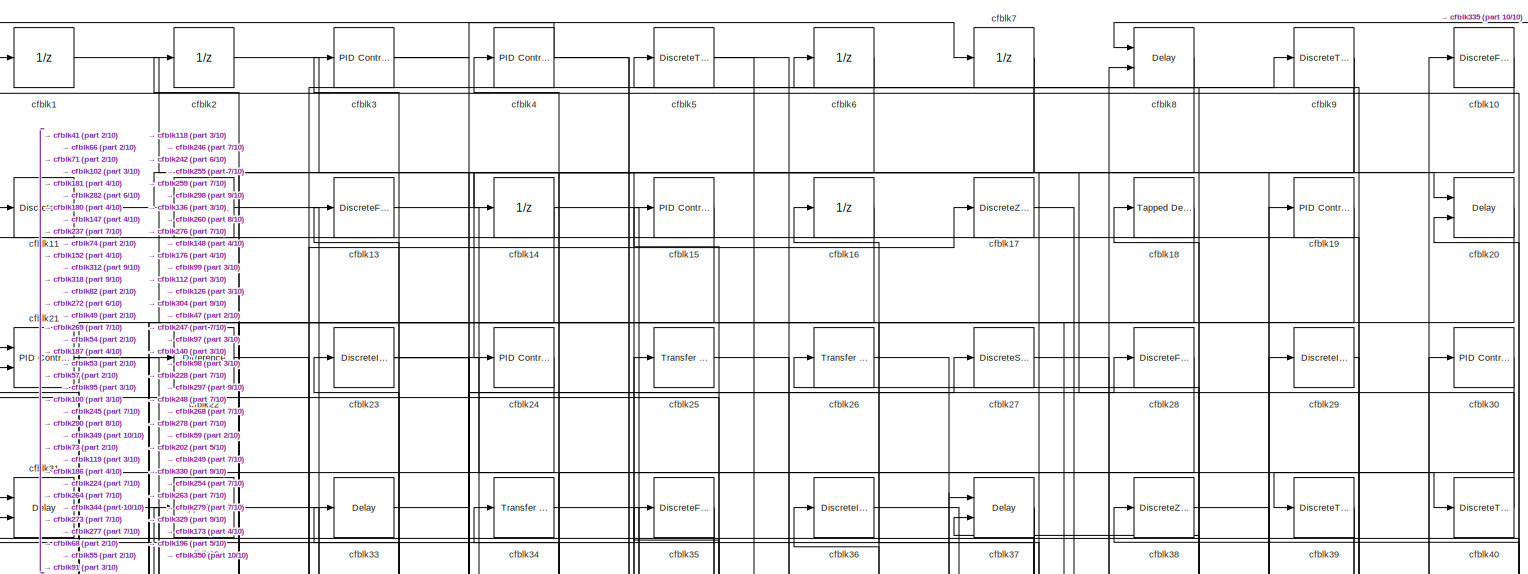
[diagram: root canvas - part 1/10, full width, top band]
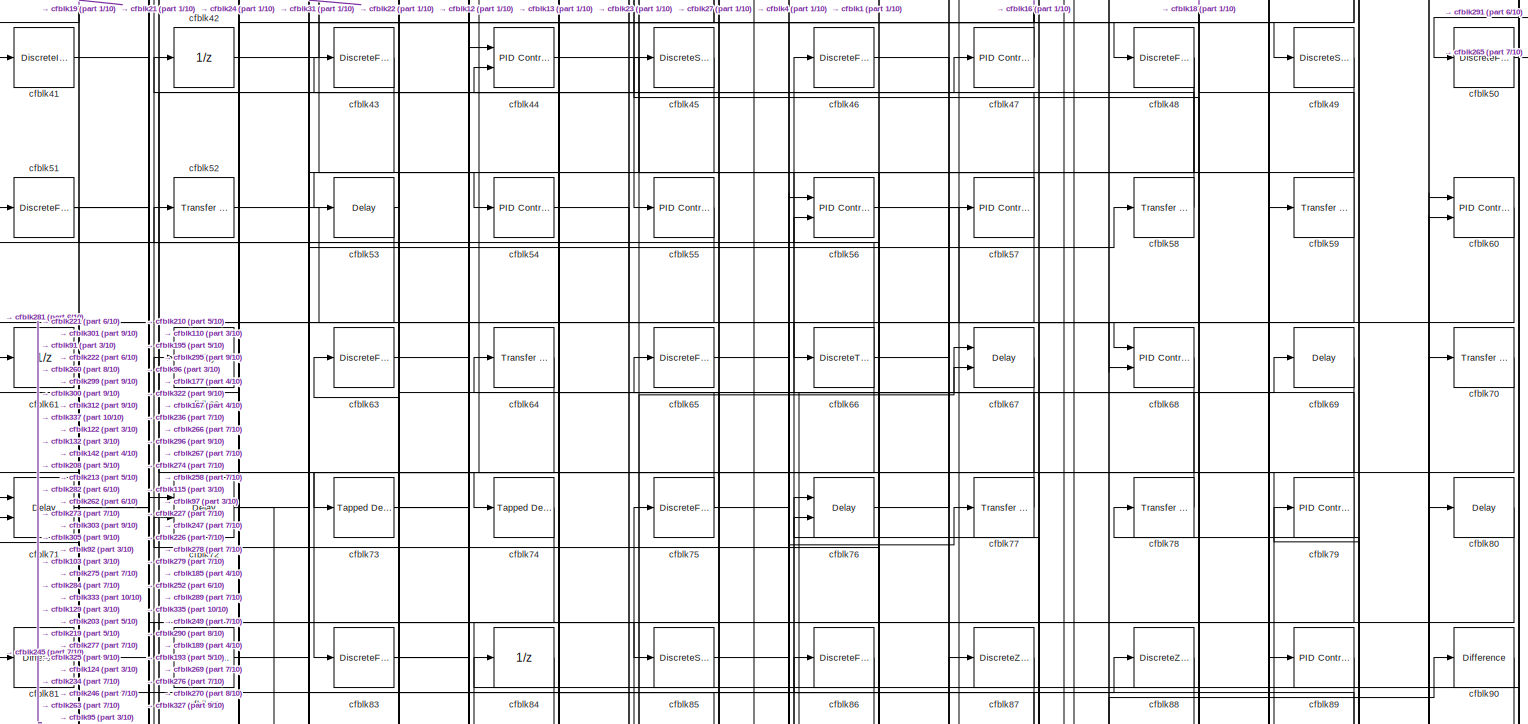
[diagram: root canvas - part 2/10, full width, top band]
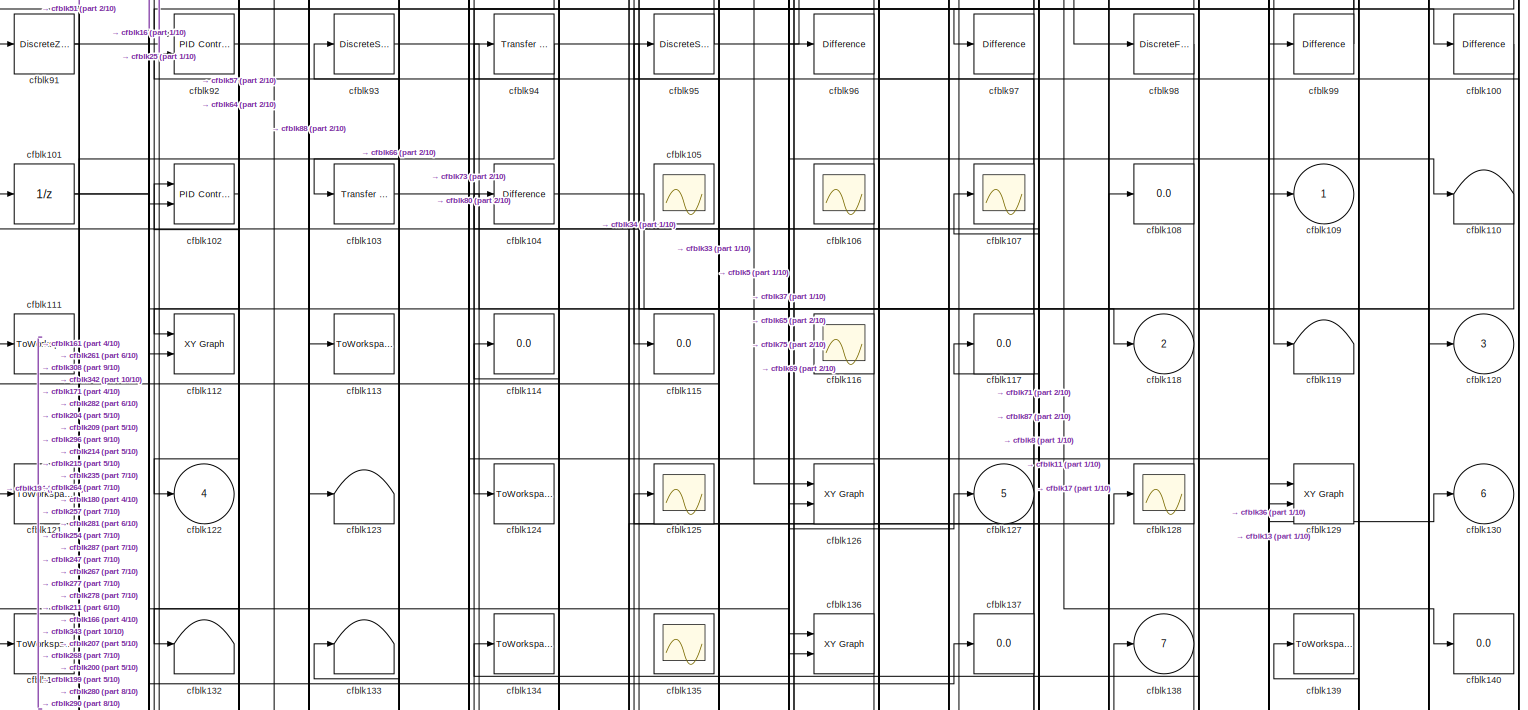
[diagram: root canvas - part 3/10, full width, top band]
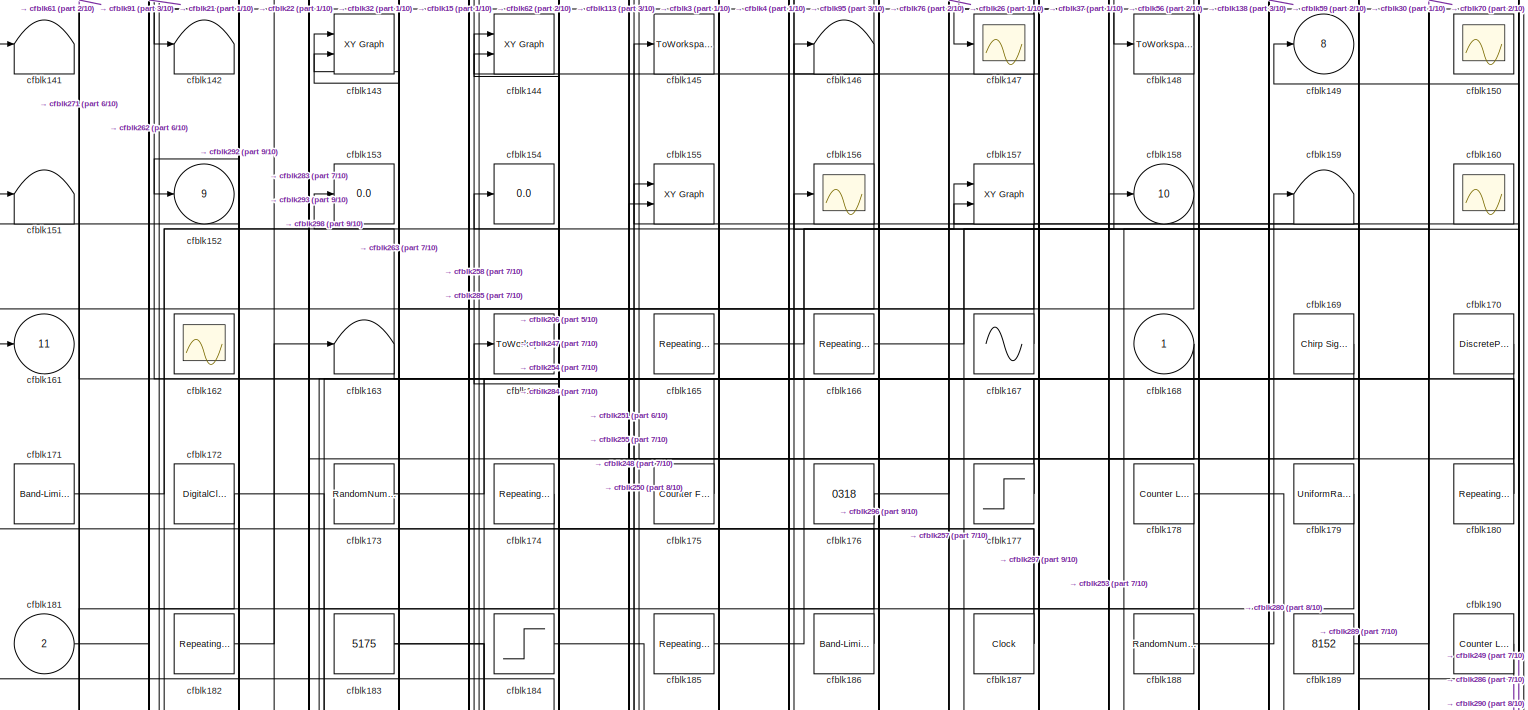
[diagram: root canvas - part 4/10, full width, middle band]
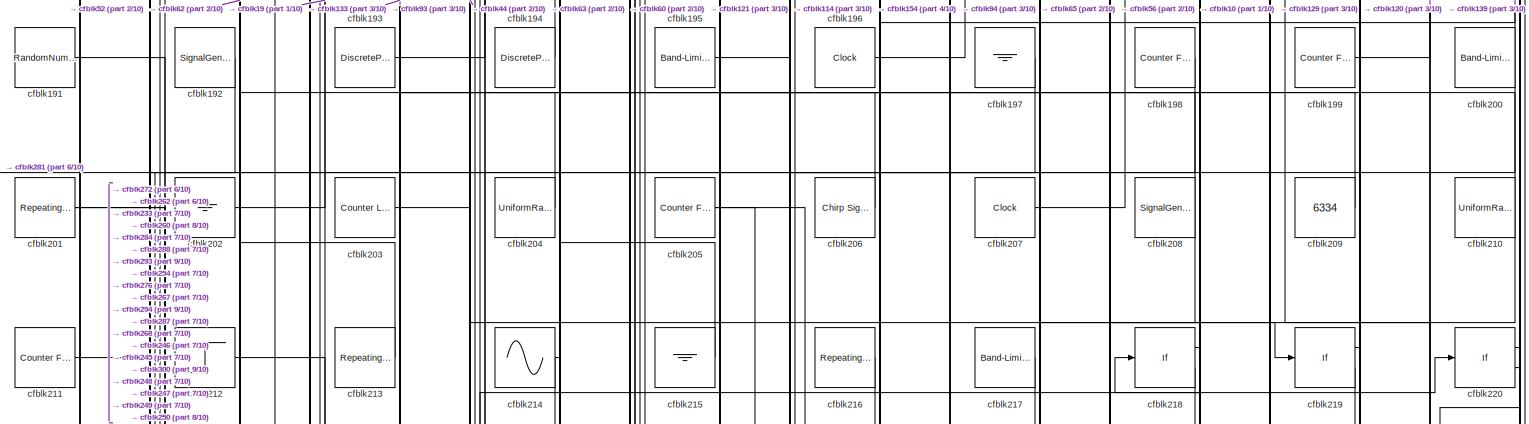
[diagram: root canvas - part 5/10, full width, middle band]
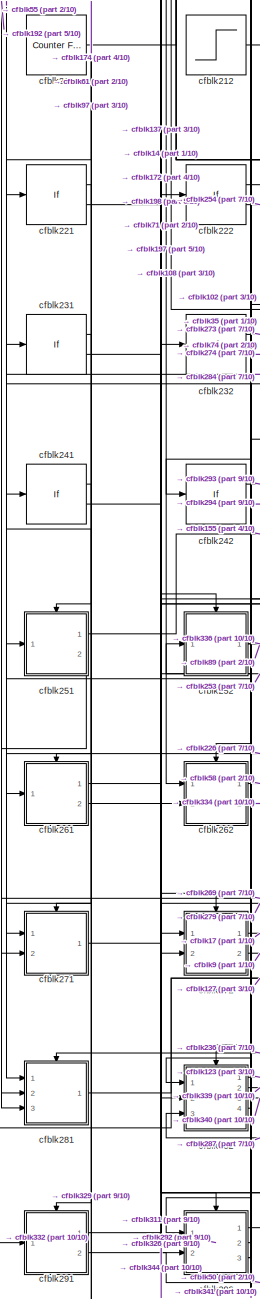
[diagram: root canvas - part 6/10, bottom left region]
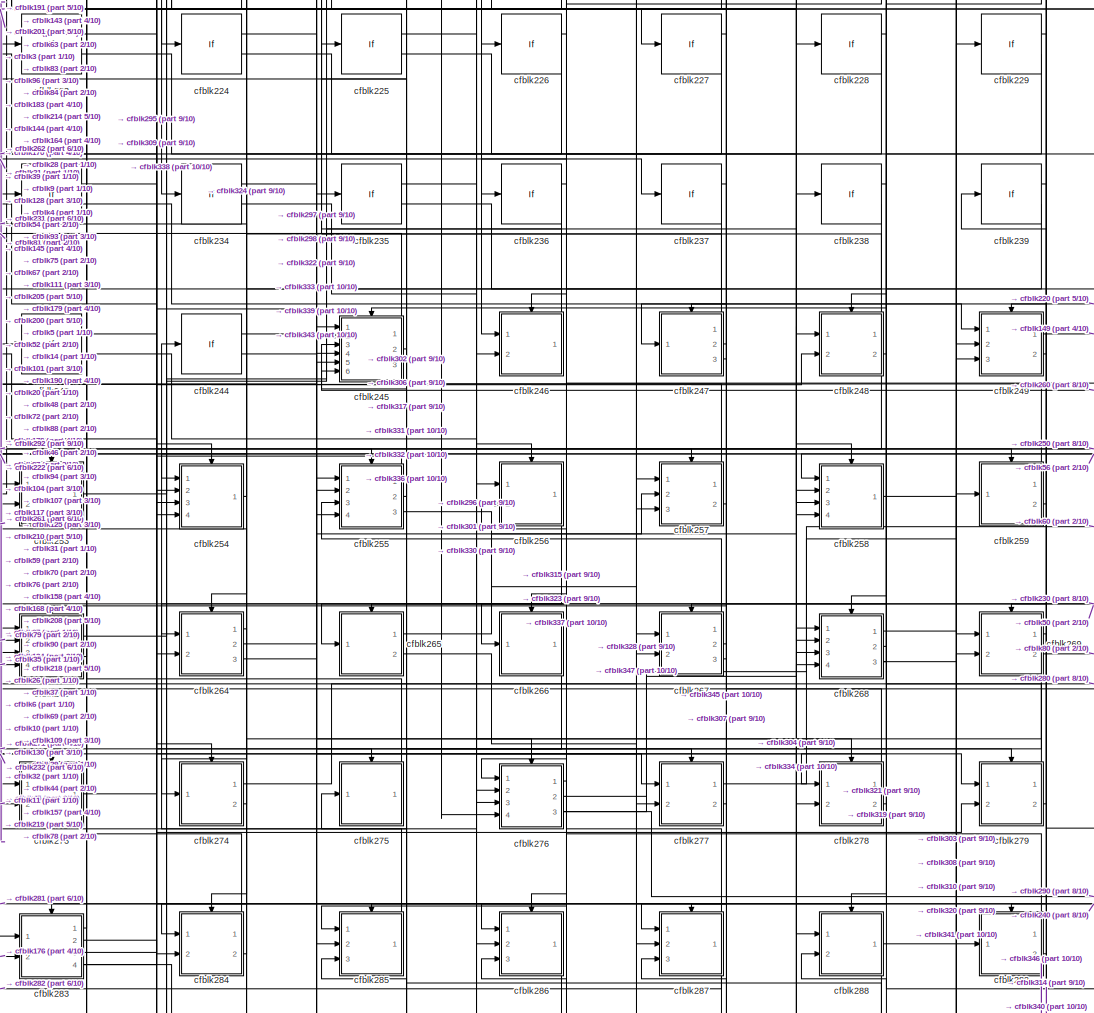
[diagram: root canvas - part 7/10, bottom center region]
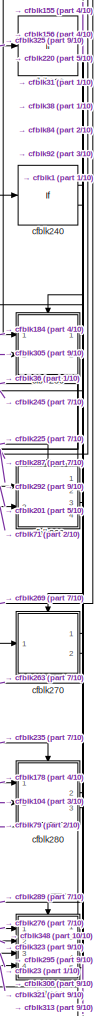
[diagram: root canvas - part 8/10, bottom right region]
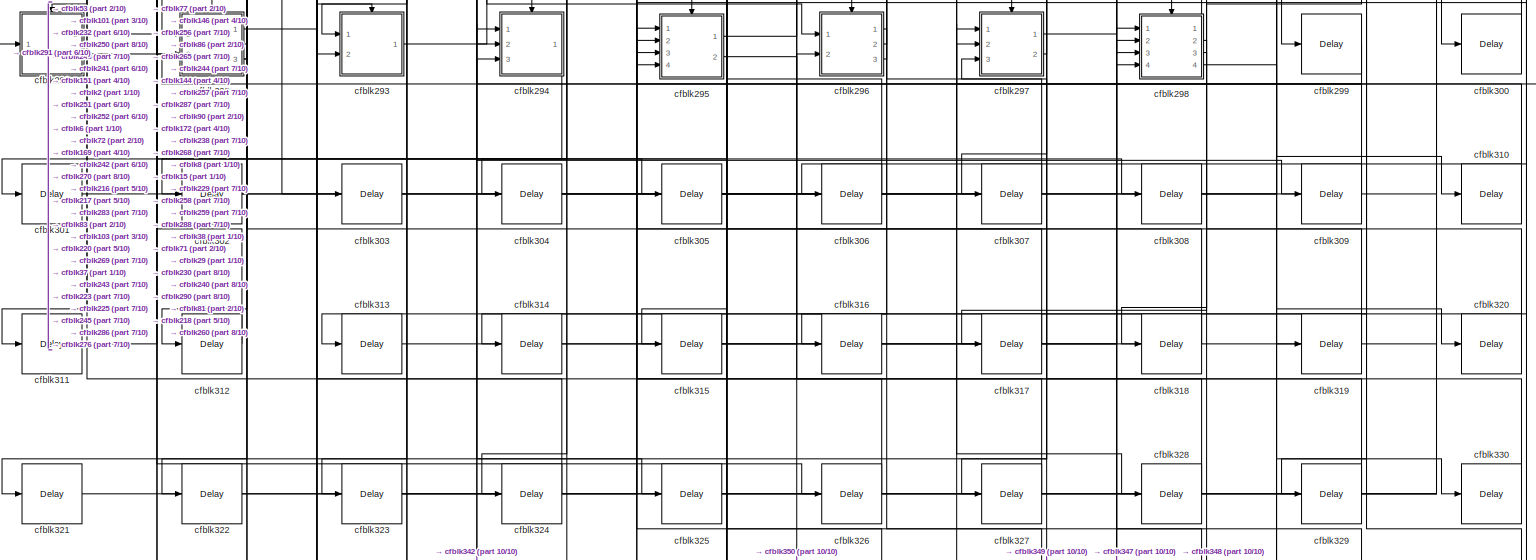
[diagram: root canvas - part 9/10, full width, bottom band]
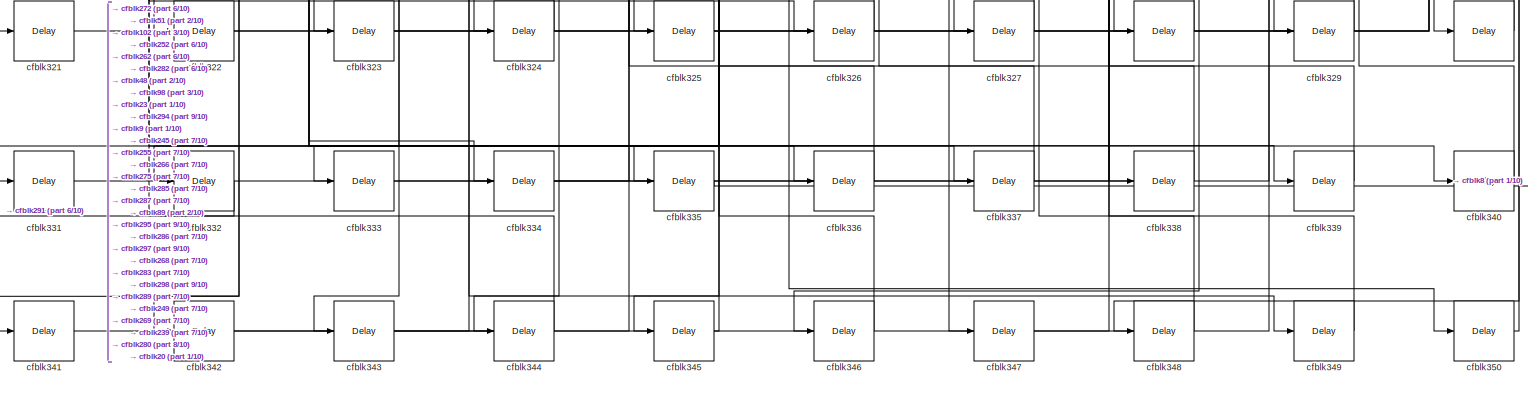
[diagram: root canvas - part 10/10, full width, bottom band]
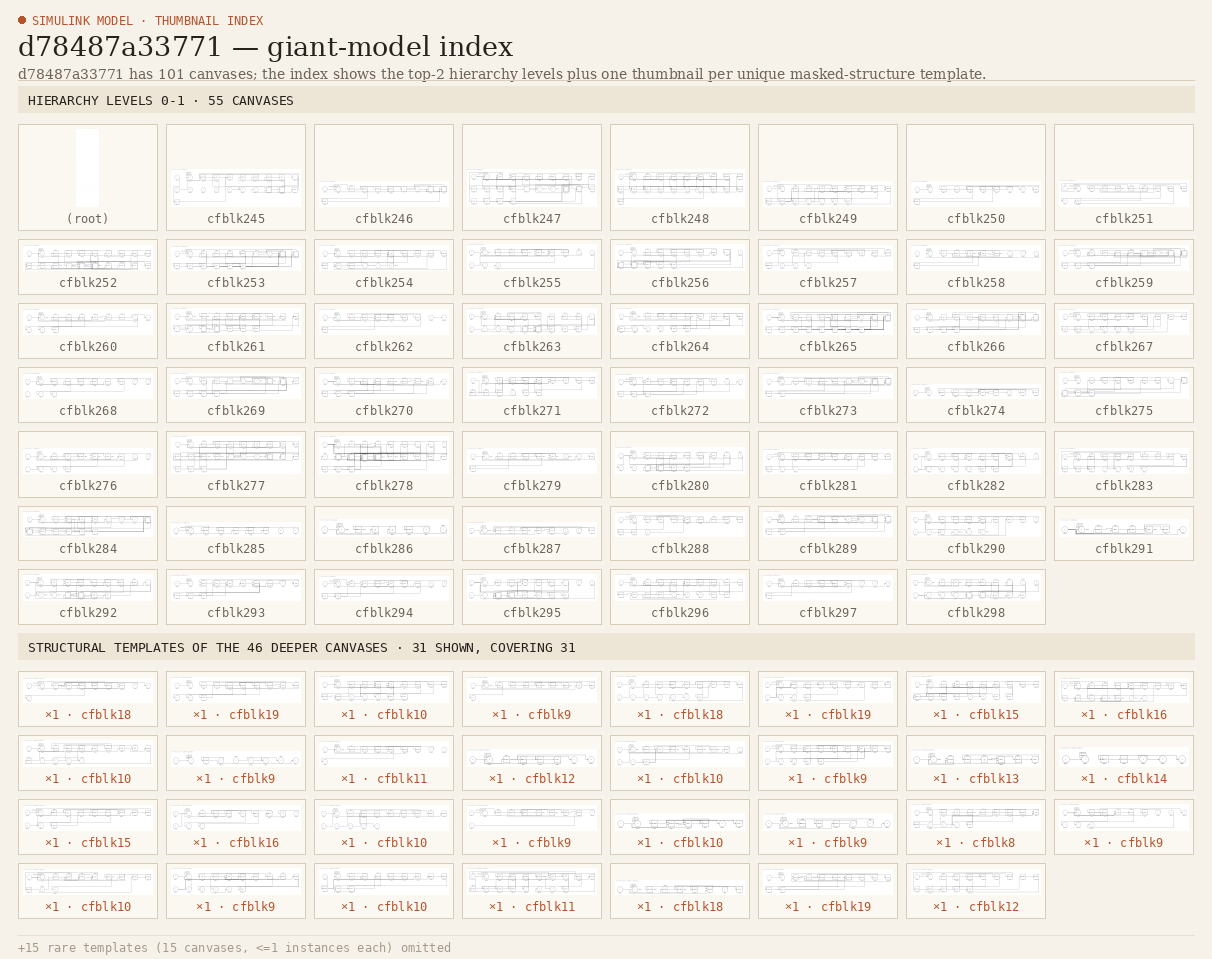
[diagram: thumbnail index - top-2 hierarchy levels (55 canvases) + 31 structural-template representatives of the remaining 46 canvases]
MODEL slx_d78487a33771
KIND model
CONFIG AbsTol = auto
CONFIG EnableMultiTasking = off
CONFIG FixedStep = auto
CONFIG MaxStep = auto
CONFIG MinStep = auto
CONFIG RelTol = 1e-3
CONFIG SampleTimeConstraint = Unconstrained
CONFIG Solver = VariableStepAuto
CONFIG SolverName = VariableStepAuto
CONFIG StartTime = 0.0
CONFIG StopTime = 10.0
BLOCK [UnitDelay] cfblk1
  InputProcessing = Elements as channels (sample based)
BLOCK [DiscreteFilter] cfblk10
  InputPortMap = u0
  Ports = [1, 1]
  SampleTime = 1
BLOCK [Reference] cfblk100  REF=simulink/Discrete/Difference
  Ports = [1, 1]
  SourceBlock = simulink/Discrete/Difference
  SourceProductBaseCode = SL
  SourceProductName = Simulink
  SourceType = Difference
BLOCK [UnitDelay] cfblk101
  InputProcessing = Elements as channels (sample based)
BLOCK [Reference] cfblk102  REF=simulink/Continuous/PID Controller (2DOF)
  Ports = [2, 1]
  SourceBlock = simulink/Continuous/PID Controller (2DOF)
  SourceProductBaseCode = SL
  SourceProductName = Simulink
  SourceType = PID 2dof
BLOCK [Reference] cfblk103  REF=simulink/Discrete/Transfer Fcn
Real Zero
  Ports = [1, 1]
  SourceBlock = simulink/Discrete/Transfer Fcn\nReal Zero
  SourceProductBaseCode = SL
  SourceProductName = Simulink
  SourceType = Transfer Fcn Real Zero
BLOCK [Reference] cfblk104  REF=simulink/Discrete/Difference
  Ports = [1, 1]
  SourceBlock = simulink/Discrete/Difference
  SourceProductBaseCode = SL
  SourceProductName = Simulink
  SourceType = Difference
BLOCK [Scope] cfblk105
  Floating = on
  NumInputPorts = 1
  Ports = []
BLOCK [Scope] cfblk106
  Floating = on
  NumInputPorts = 1
  Ports = []
BLOCK [Scope] cfblk107
  NumInputPorts = 1
  Ports = [1]
BLOCK [Display] cfblk108
  Decimation = 1
  Ports = [1]
BLOCK [Outport] cfblk109
  IconDisplay = Port number
BLOCK [DiscreteStateSpace] cfblk11
BLOCK [Terminator] cfblk110
BLOCK [ToWorkspace] cfblk111
  FixptAsFi = on
  MaxDataPoints = inf
  Ports = [1]
  SampleTime = -1
  Save2DSignal = 3-D array (concatenate along third dimension)
  SaveFormat = Timeseries
  VariableName = hcmzdjv
BLOCK [Reference] cfblk112  REF=simulink/Sinks/XY Graph
  Ports = [2]
  SourceBlock = simulink/Sinks/XY Graph
  SourceProductBaseCode = SL
  SourceProductName = Simulink
  SourceType = XY scope.
BLOCK [ToWorkspace] cfblk113
  FixptAsFi = on
  MaxDataPoints = inf
  Ports = [1]
  SampleTime = -1
  Save2DSignal = 3-D array (concatenate along third dimension)
  SaveFormat = Timeseries
  VariableName = btwpcto
BLOCK [Display] cfblk114
  Decimation = 1
  Ports = [1]
BLOCK [Display] cfblk115
  Decimation = 1
  Ports = [1]
BLOCK [Scope] cfblk116
  Floating = on
  NumInputPorts = 1
  Ports = []
BLOCK [Display] cfblk117
  Decimation = 1
  Ports = [1]
BLOCK [Outport] cfblk118
  IconDisplay = Port number
  Port = 2
BLOCK [Terminator] cfblk119
BLOCK [DiscreteFir] cfblk12
  InputPortMap = u0
  OutputPortMap = o0
  Ports = [1, 1]
  SampleTime = 1
BLOCK [Outport] cfblk120
  IconDisplay = Port number
  Port = 3
BLOCK [ToWorkspace] cfblk121
  FixptAsFi = on
  MaxDataPoints = inf
  Ports = [1]
  SampleTime = -1
  Save2DSignal = 3-D array (concatenate along third dimension)
  SaveFormat = Timeseries
  VariableName = fvxrevr
BLOCK [Outport] cfblk122
  IconDisplay = Port number
  Port = 4
BLOCK [Terminator] cfblk123
BLOCK [ToWorkspace] cfblk124
  FixptAsFi = on
  MaxDataPoints = inf
  Ports = [1]
  SampleTime = -1
  Save2DSignal = 3-D array (concatenate along third dimension)
  SaveFormat = Timeseries
  VariableName = pxfsena
BLOCK [Scope] cfblk125
  NumInputPorts = 1
  Ports = [1]
BLOCK [Reference] cfblk126  REF=simulink/Sinks/XY Graph
  Ports = [2]
  SourceBlock = simulink/Sinks/XY Graph
  SourceProductBaseCode = SL
  SourceProductName = Simulink
  SourceType = XY scope.
BLOCK [Outport] cfblk127
  IconDisplay = Port number
  Port = 5
BLOCK [Scope] cfblk128
  NumInputPorts = 1
  Ports = [1]
BLOCK [Reference] cfblk129  REF=simulink/Sinks/XY Graph
  Ports = [2]
  SourceBlock = simulink/Sinks/XY Graph
  SourceProductBaseCode = SL
  SourceProductName = Simulink
  SourceType = XY scope.
BLOCK [DiscreteFilter] cfblk13
  InputPortMap = u0
  Ports = [1, 1]
  SampleTime = 1
BLOCK [Outport] cfblk130
  IconDisplay = Port number
  Port = 6
BLOCK [ToWorkspace] cfblk131
  FixptAsFi = on
  MaxDataPoints = inf
  Ports = [1]
  SampleTime = -1
  Save2DSignal = 3-D array (concatenate along third dimension)
  SaveFormat = Timeseries
  VariableName = uhzxskx
BLOCK [Terminator] cfblk132
BLOCK [Terminator] cfblk133
BLOCK [ToWorkspace] cfblk134
  FixptAsFi = on
  MaxDataPoints = inf
  Ports = [1]
  SampleTime = -1
  Save2DSignal = 3-D array (concatenate along third dimension)
  SaveFormat = Timeseries
  VariableName = rrjtpng
BLOCK [Scope] cfblk135
  Floating = on
  NumInputPorts = 1
  Ports = []
BLOCK [Reference] cfblk136  REF=simulink/Sinks/XY Graph
  Ports = [2]
  SourceBlock = simulink/Sinks/XY Graph
  SourceProductBaseCode = SL
  SourceProductName = Simulink
  SourceType = XY scope.
BLOCK [Display] cfblk137
  Decimation = 1
  Ports = [1]
BLOCK [Outport] cfblk138
  IconDisplay = Port number
  Port = 7
BLOCK [ToWorkspace] cfblk139
  FixptAsFi = on
  MaxDataPoints = inf
  Ports = [1]
  SampleTime = -1
  Save2DSignal = 3-D array (concatenate along third dimension)
  SaveFormat = Timeseries
  VariableName = kmkecre
BLOCK [UnitDelay] cfblk14
  InputProcessing = Elements as channels (sample based)
BLOCK [Display] cfblk140
  Decimation = 1
  Ports = [1]
BLOCK [Terminator] cfblk141
BLOCK [Terminator] cfblk142
BLOCK [Reference] cfblk143  REF=simulink/Sinks/XY Graph
  Ports = [2]
  SourceBlock = simulink/Sinks/XY Graph
  SourceProductBaseCode = SL
  SourceProductName = Simulink
  SourceType = XY scope.
BLOCK [Reference] cfblk144  REF=simulink/Sinks/XY Graph
  Ports = [2]
  SourceBlock = simulink/Sinks/XY Graph
  SourceProductBaseCode = SL
  SourceProductName = Simulink
  SourceType = XY scope.
BLOCK [ToWorkspace] cfblk145
  FixptAsFi = on
  MaxDataPoints = inf
  Ports = [1]
  SampleTime = -1
  Save2DSignal = 3-D array (concatenate along third dimension)
  SaveFormat = Timeseries
  VariableName = hvmekia
BLOCK [Terminator] cfblk146
BLOCK [Scope] cfblk147
  NumInputPorts = 1
  Ports = [1]
BLOCK [ToWorkspace] cfblk148
  FixptAsFi = on
  MaxDataPoints = inf
  Ports = [1]
  SampleTime = -1
  Save2DSignal = 3-D array (concatenate along third dimension)
  SaveFormat = Timeseries
  VariableName = eadgrso
BLOCK [Outport] cfblk149
  IconDisplay = Port number
  Port = 8
BLOCK [Reference] cfblk15  REF=simulink/Continuous/PID Controller
  Ports = [1, 1]
  SourceBlock = simulink/Continuous/PID Controller
  SourceProductBaseCode = SL
  SourceProductName = Simulink
  SourceType = PID 1dof
BLOCK [Scope] cfblk150
  Floating = on
  NumInputPorts = 1
  Ports = []
BLOCK [Terminator] cfblk151
BLOCK [Outport] cfblk152
  IconDisplay = Port number
  Port = 9
BLOCK [Display] cfblk153
  Decimation = 1
  Ports = [1]
BLOCK [Display] cfblk154
  Decimation = 1
  Ports = [1]
BLOCK [Reference] cfblk155  REF=simulink/Sinks/XY Graph
  Ports = [2]
  SourceBlock = simulink/Sinks/XY Graph
  SourceProductBaseCode = SL
  SourceProductName = Simulink
  SourceType = XY scope.
BLOCK [Scope] cfblk156
  NumInputPorts = 1
  Ports = [1]
BLOCK [Reference] cfblk157  REF=simulink/Sinks/XY Graph
  Ports = [2]
  SourceBlock = simulink/Sinks/XY Graph
  SourceProductBaseCode = SL
  SourceProductName = Simulink
  SourceType = XY scope.
BLOCK [Outport] cfblk158
  IconDisplay = Port number
  Port = 10
BLOCK [Terminator] cfblk159
BLOCK [UnitDelay] cfblk16
  InputProcessing = Elements as channels (sample based)
BLOCK [Scope] cfblk160
  Floating = on
  NumInputPorts = 1
  Ports = []
BLOCK [Outport] cfblk161
  IconDisplay = Port number
  Port = 11
BLOCK [Scope] cfblk162
  Floating = on
  NumInputPorts = 1
  Ports = []
BLOCK [Terminator] cfblk163
BLOCK [ToWorkspace] cfblk164
  FixptAsFi = on
  MaxDataPoints = inf
  Ports = [1]
  SampleTime = -1
  Save2DSignal = 3-D array (concatenate along third dimension)
  SaveFormat = Timeseries
  VariableName = thvkhab
BLOCK [Reference] cfblk165  REF=simulink/Sources/Repeating
Sequence
Stair
  Ports = [0, 1]
  SourceBlock = simulink/Sources/Repeating\nSequence\nStair
  SourceProductBaseCode = SL
  SourceProductName = Simulink
  SourceType = Repeating Sequence Stair
BLOCK [Reference] cfblk166  REF=simulink/Sources/Repeating
Sequence
Interpolated
  Ports = [0, 1]
  SourceBlock = simulink/Sources/Repeating\nSequence\nInterpolated
  SourceProductBaseCode = SL
  SourceProductName = Simulink
  SourceType = Repeating Sequence Interpolated
BLOCK [Sin] cfblk167
  Ports = [0, 1]
  SampleTime = 0
BLOCK [Inport] cfblk168
  IconDisplay = Port number
BLOCK [Reference] cfblk169  REF=simulink/Sources/Chirp Signal
  Ports = [0, 1]
  SourceBlock = simulink/Sources/Chirp Signal
  SourceProductBaseCode = SL
  SourceProductName = Simulink
  SourceType = chirp
BLOCK [DiscreteZeroPole] cfblk17
  Gain = 1
  Poles = [0 0.5]
BLOCK [DiscretePulseGenerator] cfblk170
  Period = 10
  Ports = [0, 1]
  PulseType = Time based
  PulseWidth = 5
BLOCK [Reference] cfblk171  REF=simulink/Sources/Band-Limited
White Noise
  Ports = [0, 1]
  SourceBlock = simulink/Sources/Band-Limited\nWhite Noise
  SourceProductBaseCode = SL
  SourceProductName = Simulink
  SourceType = Band-Limited White Noise.
BLOCK [DigitalClock] cfblk172
BLOCK [RandomNumber] cfblk173
  SampleTime = 0.1
BLOCK [Reference] cfblk174  REF=simulink/Sources/Repeating
Sequence
Interpolated
  Ports = [0, 1]
  SourceBlock = simulink/Sources/Repeating\nSequence\nInterpolated
  SourceProductBaseCode = SL
  SourceProductName = Simulink
  SourceType = Repeating Sequence Interpolated
BLOCK [Reference] cfblk175  REF=simulink/Sources/Counter
Free-Running
  Ports = [0, 1]
  SourceBlock = simulink/Sources/Counter\nFree-Running
  SourceProductBaseCode = SL
  SourceProductName = Simulink
  SourceType = Counter Free-Running
BLOCK [Constant] cfblk176
  Value = 0318
BLOCK [Step] cfblk177
  After = 82
  SampleTime = 0
BLOCK [Reference] cfblk178  REF=simulink/Sources/Counter
Limited
  Ports = [0, 1]
  SourceBlock = simulink/Sources/Counter\nLimited
  SourceProductBaseCode = SL
  SourceProductName = Simulink
  SourceType = Counter Limited
BLOCK [UniformRandomNumber] cfblk179
  SampleTime = 0.1
BLOCK [Reference] cfblk18  REF=simulink/Discrete/Tapped Delay
  Ports = [1, 1]
  SourceBlock = simulink/Discrete/Tapped Delay
  SourceProductBaseCode = SL
  SourceProductName = Simulink
  SourceType = Tapped Delay Line
BLOCK [Reference] cfblk180  REF=simulink/Sources/Repeating
Sequence
Interpolated
  Ports = [0, 1]
  SourceBlock = simulink/Sources/Repeating\nSequence\nInterpolated
  SourceProductBaseCode = SL
  SourceProductName = Simulink
  SourceType = Repeating Sequence Interpolated
BLOCK [Inport] cfblk181
  IconDisplay = Port number
  Port = 2
BLOCK [Reference] cfblk182  REF=simulink/Sources/Repeating
Sequence
Stair
  Ports = [0, 1]
  SourceBlock = simulink/Sources/Repeating\nSequence\nStair
  SourceProductBaseCode = SL
  SourceProductName = Simulink
  SourceType = Repeating Sequence Stair
BLOCK [Constant] cfblk183
  Value = 5175
BLOCK [Step] cfblk184
  After = 84
  SampleTime = 0
BLOCK [Reference] cfblk185  REF=simulink/Sources/Repeating
Sequence
  Ports = [0, 1]
  SourceBlock = simulink/Sources/Repeating\nSequence
  SourceProductBaseCode = SL
  SourceProductName = Simulink
  SourceType = Repeating table
BLOCK [Reference] cfblk186  REF=simulink/Sources/Band-Limited
White Noise
  Ports = [0, 1]
  SourceBlock = simulink/Sources/Band-Limited\nWhite Noise
  SourceProductBaseCode = SL
  SourceProductName = Simulink
  SourceType = Band-Limited White Noise.
BLOCK [Clock] cfblk187
BLOCK [RandomNumber] cfblk188
  SampleTime = 0.1
BLOCK [Constant] cfblk189
  Value = 8152
BLOCK [Reference] cfblk19  REF=simulink/Continuous/PID Controller
  Ports = [1, 1]
  SourceBlock = simulink/Continuous/PID Controller
  SourceProductBaseCode = SL
  SourceProductName = Simulink
  SourceType = PID 1dof
BLOCK [Reference] cfblk190  REF=simulink/Sources/Counter
Limited
  Ports = [0, 1]
  SourceBlock = simulink/Sources/Counter\nLimited
  SourceProductBaseCode = SL
  SourceProductName = Simulink
  SourceType = Counter Limited
BLOCK [RandomNumber] cfblk191
  SampleTime = 0.1
BLOCK [SignalGenerator] cfblk192
  Ports = [0, 1]
  Units = rad/sec
BLOCK [DiscretePulseGenerator] cfblk193
  Period = 10
  Ports = [0, 1]
  PulseType = Time based
  PulseWidth = 5
BLOCK [DiscretePulseGenerator] cfblk194
  Period = 10
  Ports = [0, 1]
  PulseType = Time based
  PulseWidth = 5
BLOCK [Reference] cfblk195  REF=simulink/Sources/Band-Limited
White Noise
  Ports = [0, 1]
  SourceBlock = simulink/Sources/Band-Limited\nWhite Noise
  SourceProductBaseCode = SL
  SourceProductName = Simulink
  SourceType = Band-Limited White Noise.
BLOCK [Clock] cfblk196
BLOCK [Ground] cfblk197
BLOCK [Reference] cfblk198  REF=simulink/Sources/Counter
Free-Running
  Ports = [0, 1]
  SourceBlock = simulink/Sources/Counter\nFree-Running
  SourceProductBaseCode = SL
  SourceProductName = Simulink
  SourceType = Counter Free-Running
BLOCK [Reference] cfblk199  REF=simulink/Sources/Counter
Free-Running
  Ports = [0, 1]
  SourceBlock = simulink/Sources/Counter\nFree-Running
  SourceProductBaseCode = SL
  SourceProductName = Simulink
  SourceType = Counter Free-Running
BLOCK [UnitDelay] cfblk2
  InputProcessing = Elements as channels (sample based)
BLOCK [Delay] cfblk20
  DelayLengthSource = Input port
  InputPortMap = u0,p1
  Ports = [2, 1]
  SampleTime = 1
BLOCK [Reference] cfblk200  REF=simulink/Sources/Band-Limited
White Noise
  Ports = [0, 1]
  SourceBlock = simulink/Sources/Band-Limited\nWhite Noise
  SourceProductBaseCode = SL
  SourceProductName = Simulink
  SourceType = Band-Limited White Noise.
BLOCK [Reference] cfblk201  REF=simulink/Sources/Repeating
Sequence
  Ports = [0, 1]
  SourceBlock = simulink/Sources/Repeating\nSequence
  SourceProductBaseCode = SL
  SourceProductName = Simulink
  SourceType = Repeating table
BLOCK [Ground] cfblk202
BLOCK [Reference] cfblk203  REF=simulink/Sources/Counter
Limited
  Ports = [0, 1]
  SourceBlock = simulink/Sources/Counter\nLimited
  SourceProductBaseCode = SL
  SourceProductName = Simulink
  SourceType = Counter Limited
BLOCK [UniformRandomNumber] cfblk204
  SampleTime = 0.1
BLOCK [Reference] cfblk205  REF=simulink/Sources/Counter
Free-Running
  Ports = [0, 1]
  SourceBlock = simulink/Sources/Counter\nFree-Running
  SourceProductBaseCode = SL
  SourceProductName = Simulink
  SourceType = Counter Free-Running
BLOCK [Reference] cfblk206  REF=simulink/Sources/Chirp Signal
  Ports = [0, 1]
  SourceBlock = simulink/Sources/Chirp Signal
  SourceProductBaseCode = SL
  SourceProductName = Simulink
  SourceType = chirp
BLOCK [Clock] cfblk207
BLOCK [SignalGenerator] cfblk208
  Ports = [0, 1]
  Units = rad/sec
BLOCK [Constant] cfblk209
  Value = 6334
BLOCK [Reference] cfblk21  REF=simulink/Continuous/PID Controller (2DOF)
  Ports = [2, 1]
  SourceBlock = simulink/Continuous/PID Controller (2DOF)
  SourceProductBaseCode = SL
  SourceProductName = Simulink
  SourceType = PID 2dof
BLOCK [UniformRandomNumber] cfblk210
  SampleTime = 0.1
BLOCK [Reference] cfblk211  REF=simulink/Sources/Counter
Free-Running
  Ports = [0, 1]
  SourceBlock = simulink/Sources/Counter\nFree-Running
  SourceProductBaseCode = SL
  SourceProductName = Simulink
  SourceType = Counter Free-Running
BLOCK [Step] cfblk212
  After = 96
  SampleTime = 0
BLOCK [Reference] cfblk213  REF=simulink/Sources/Repeating
Sequence
Interpolated
  Ports = [0, 1]
  SourceBlock = simulink/Sources/Repeating\nSequence\nInterpolated
  SourceProductBaseCode = SL
  SourceProductName = Simulink
  SourceType = Repeating Sequence Interpolated
BLOCK [Sin] cfblk214
  Ports = [0, 1]
  SampleTime = 0
BLOCK [Ground] cfblk215
BLOCK [Reference] cfblk216  REF=simulink/Sources/Repeating
Sequence
Interpolated
  Ports = [0, 1]
  SourceBlock = simulink/Sources/Repeating\nSequence\nInterpolated
  SourceProductBaseCode = SL
  SourceProductName = Simulink
  SourceType = Repeating Sequence Interpolated
BLOCK [Reference] cfblk217  REF=simulink/Sources/Band-Limited
White Noise
  Ports = [0, 1]
  SourceBlock = simulink/Sources/Band-Limited\nWhite Noise
  SourceProductBaseCode = SL
  SourceProductName = Simulink
  SourceType = Band-Limited White Noise.
BLOCK [If] cfblk218
  Ports = [1, 2]
  SampleTime = 1
BLOCK [If] cfblk219
  Ports = [1, 2]
  SampleTime = 1
BLOCK [Reference] cfblk22  REF=simulink/Discrete/Difference
  Ports = [1, 1]
  SourceBlock = simulink/Discrete/Difference
  SourceProductBaseCode = SL
  SourceProductName = Simulink
  SourceType = Difference
BLOCK [If] cfblk220
  Ports = [1, 2]
  SampleTime = 1
BLOCK [If] cfblk221
  Ports = [1, 2]
  SampleTime = 1
BLOCK [If] cfblk222
  Ports = [1, 2]
  SampleTime = 1
BLOCK [If] cfblk223
  Ports = [1, 2]
  SampleTime = 1
BLOCK [If] cfblk224
  Ports = [1, 2]
  SampleTime = 1
BLOCK [If] cfblk225
  Ports = [1, 2]
  SampleTime = 1
BLOCK [If] cfblk226
  Ports = [1, 2]
  SampleTime = 1
BLOCK [If] cfblk227
  Ports = [1, 2]
  SampleTime = 1
BLOCK [If] cfblk228
  Ports = [1, 2]
  SampleTime = 1
BLOCK [If] cfblk229
  Ports = [1, 2]
  SampleTime = 1
BLOCK [DiscreteIntegrator] cfblk23
  ICPrevOutput = DiscIntNeverNeededParam
  ICPrevScaledInput = DiscIntNeverNeededParam
  InitialConditionSetting = State (most efficient)
  Ports = [1, 1]
BLOCK [If] cfblk230
  Ports = [1, 2]
  SampleTime = 1
BLOCK [If] cfblk231
  Ports = [1, 2]
  SampleTime = 1
BLOCK [If] cfblk232
  Ports = [1, 2]
  SampleTime = 1
BLOCK [If] cfblk233
  Ports = [1, 2]
  SampleTime = 1
BLOCK [If] cfblk234
  Ports = [1, 2]
  SampleTime = 1
BLOCK [If] cfblk235
  Ports = [1, 2]
  SampleTime = 1
BLOCK [If] cfblk236
  Ports = [1, 2]
  SampleTime = 1
BLOCK [If] cfblk237
  Ports = [1, 2]
  SampleTime = 1
BLOCK [If] cfblk238
  Ports = [1, 2]
  SampleTime = 1
BLOCK [If] cfblk239
  Ports = [1, 2]
  SampleTime = 1
BLOCK [Reference] cfblk24  REF=simulink/Continuous/PID Controller
  Ports = [1, 1]
  SourceBlock = simulink/Continuous/PID Controller
  SourceProductBaseCode = SL
  SourceProductName = Simulink
  SourceType = PID 1dof
BLOCK [If] cfblk240
  Ports = [1, 2]
  SampleTime = 1
BLOCK [If] cfblk241
  Ports = [1, 2]
  SampleTime = 1
BLOCK [If] cfblk242
  Ports = [1, 2]
  SampleTime = 1
BLOCK [If] cfblk243
  Ports = [1, 2]
  SampleTime = 1
BLOCK [If] cfblk244
  Ports = [1, 2]
  SampleTime = 1
BLOCK [SubSystem] cfblk245
  Ports = [6, 3, 0, 0, 0, 0, 0, 1]
  RequestExecContextInheritance = off
  TreatAsAtomicUnit = on
  Variant = off
BLOCK [ActionPort] cfblk245/Action Port
  ActionType = then
BLOCK [Inport] cfblk245/cfblk1
  IconDisplay = Port number
BLOCK [If] cfblk245/cfblk10
  Ports = [1, 2]
  SampleTime = 1
BLOCK [Inport] cfblk245/cfblk11
  IconDisplay = Port number
  Port = 2
BLOCK [Inport] cfblk245/cfblk12
  IconDisplay = Port number
  Port = 3
BLOCK [Inport] cfblk245/cfblk13
  IconDisplay = Port number
  Port = 4
BLOCK [Inport] cfblk245/cfblk14
  IconDisplay = Port number
  Port = 5
BLOCK [Inport] cfblk245/cfblk15
  IconDisplay = Port number
  Port = 6
BLOCK [Outport] cfblk245/cfblk16
  IconDisplay = Port number
  Port = 2
BLOCK [Outport] cfblk245/cfblk17
  IconDisplay = Port number
  Port = 3
BLOCK [SubSystem] cfblk245/cfblk18
  Ports = [2, 3, 0, 0, 0, 0, 0, 1]
  RequestExecContextInheritance = off
  TreatAsAtomicUnit = on
  Variant = off
BLOCK [ActionPort] cfblk245/cfblk18/Action Port
  ActionType = then
BLOCK [Inport] cfblk245/cfblk18/cfblk1
  IconDisplay = Port number
BLOCK [Outport] cfblk245/cfblk18/cfblk10
  IconDisplay = Port number
  Port = 2
BLOCK [Outport] cfblk245/cfblk18/cfblk11
  IconDisplay = Port number
  Port = 3
BLOCK [Outport] cfblk245/cfblk18/cfblk2
  IconDisplay = Port number
BLOCK [UnitDelay] cfblk245/cfblk18/cfblk3
  InputProcessing = Elements as channels (sample based)
  SampleTime = -1
BLOCK [Delay] cfblk245/cfblk18/cfblk4
  InputPortMap = u0,e6
  Ports = [2, 1]
  ShowEnablePort = on
BLOCK [DiscreteFilter] cfblk245/cfblk18/cfblk5
  InputPortMap = u0
  Ports = [1, 1]
BLOCK [Reference] cfblk245/cfblk18/cfblk6  REF=simulink/Discrete/Transfer Fcn
Real Zero
  Ports = [1, 1]
  SourceBlock = simulink/Discrete/Transfer Fcn\nReal Zero
  SourceProductBaseCode = SL
  SourceProductName = Simulink
  SourceType = Transfer Fcn Real Zero
BLOCK [Reference] cfblk245/cfblk18/cfblk7  REF=simulink/Discrete/Transfer Fcn
Lead or Lag
  Ports = [1, 1]
  SourceBlock = simulink/Discrete/Transfer Fcn\nLead or Lag
  SourceProductBaseCode = SL
  SourceProductName = Simulink
  SourceType = Lead or Lag Compensator
BLOCK [Delay] cfblk245/cfblk18/cfblk8
  DelayLengthSource = Input port
  InputPortMap = u0,p1
  Ports = [2, 1]
BLOCK [Inport] cfblk245/cfblk18/cfblk9
  IconDisplay = Port number
  Port = 2
BLOCK [SubSystem] cfblk245/cfblk19
  Ports = [1, 3, 0, 0, 0, 0, 0, 1]
  RequestExecContextInheritance = off
  TreatAsAtomicUnit = on
  Variant = off
BLOCK [ActionPort] cfblk245/cfblk19/Action Port
  ActionType = else
BLOCK [Inport] cfblk245/cfblk19/cfblk1
  IconDisplay = Port number
BLOCK [DiscreteZeroPole] cfblk245/cfblk19/cfblk10
  Gain = 1
  Poles = [0 0.5]
  SampleTime = -1
BLOCK [Outport] cfblk245/cfblk19/cfblk11
  IconDisplay = Port number
  Port = 2
BLOCK [Outport] cfblk245/cfblk19/cfblk12
  IconDisplay = Port number
  Port = 3
BLOCK [Delay] cfblk245/cfblk19/cfblk13
  InputPortMap = u0
  Ports = [1, 1]
BLOCK [Outport] cfblk245/cfblk19/cfblk2
  IconDisplay = Port number
BLOCK [DiscreteStateSpace] cfblk245/cfblk19/cfblk3
  SampleTime = -1
BLOCK [DiscreteZeroPole] cfblk245/cfblk19/cfblk4
  Gain = 1
  Poles = [0 0.5]
  SampleTime = -1
BLOCK [DiscreteZeroPole] cfblk245/cfblk19/cfblk5
  Gain = 1
  Poles = [0 0.5]
  SampleTime = -1
BLOCK [Reference] cfblk245/cfblk19/cfblk6  REF=simulink/Discrete/Transfer Fcn
First Order
  Ports = [1, 1]
  SourceBlock = simulink/Discrete/Transfer Fcn\nFirst Order
  SourceProductBaseCode = SL
  SourceProductName = Simulink
  SourceType = First Order Transfer Fcn
BLOCK [DiscreteFir] cfblk245/cfblk19/cfblk7
  InputPortMap = u0
  OutputPortMap = o0
  Ports = [1, 1]
BLOCK [DiscreteIntegrator] cfblk245/cfblk19/cfblk8
  ICPrevOutput = DiscIntNeverNeededParam
  ICPrevScaledInput = DiscIntNeverNeededParam
  InitialConditionSetting = State (most efficient)
  Ports = [1, 1]
  SampleTime = -1
BLOCK [Delay] cfblk245/cfblk19/cfblk9
  InputPortMap = u0,e6
  Ports = [2, 1]
  ShowEnablePort = on
BLOCK [Outport] cfblk245/cfblk2
  IconDisplay = Port number
BLOCK [Delay] cfblk245/cfblk20
  InputPortMap = u0
  Ports = [1, 1]
BLOCK [DataTypeConversion] cfblk245/cfblk21
  RndMeth = Floor
  SaturateOnIntegerOverflow = off
BLOCK [DiscreteIntegrator] cfblk245/cfblk3
  ICPrevOutput = DiscIntNeverNeededParam
  ICPrevScaledInput = DiscIntNeverNeededParam
  InitialConditionSetting = State (most efficient)
  Ports = [1, 1]
  SampleTime = -1
BLOCK [UnitDelay] cfblk245/cfblk4
  InputProcessing = Elements as channels (sample based)
  SampleTime = -1
BLOCK [DiscreteZeroPole] cfblk245/cfblk5
  Gain = 1
  Poles = [0 0.5]
  SampleTime = -1
BLOCK [DiscreteFilter] cfblk245/cfblk6
  InputPortMap = u0
  Ports = [1, 1]
BLOCK [Reference] cfblk245/cfblk7  REF=simulink/Discrete/Transfer Fcn
Real Zero
  Ports = [1, 1]
  SourceBlock = simulink/Discrete/Transfer Fcn\nReal Zero
  SourceProductBaseCode = SL
  SourceProductName = Simulink
  SourceType = Transfer Fcn Real Zero
BLOCK [Reference] cfblk245/cfblk8  REF=simulink/Discrete/Tapped Delay
  Ports = [1, 1]
  SourceBlock = simulink/Discrete/Tapped Delay
  SourceProductBaseCode = SL
  SourceProductName = Simulink
  SourceType = Tapped Delay Line
BLOCK [Delay] cfblk245/cfblk9
  InputPortMap = u0
  Ports = [1, 1]
BLOCK [SubSystem] cfblk246
  Ports = [2, 1, 0, 0, 0, 0, 0, 1]
  RequestExecContextInheritance = off
  TreatAsAtomicUnit = on
  Variant = off
BLOCK [ActionPort] cfblk246/Action Port
  ActionType = else
BLOCK [Inport] cfblk246/cfblk1
  IconDisplay = Port number
BLOCK [SubSystem] cfblk246/cfblk10
  Ports = [2, 3, 0, 0, 0, 0, 0, 1]
  RequestExecContextInheritance = off
  TreatAsAtomicUnit = on
  Variant = off
BLOCK [ActionPort] cfblk246/cfblk10/Action Port
  ActionType = else
BLOCK [Inport] cfblk246/cfblk10/cfblk1
  IconDisplay = Port number
BLOCK [DiscreteStateSpace] cfblk246/cfblk10/cfblk10
  SampleTime = -1
BLOCK [Reference] cfblk246/cfblk10/cfblk11  REF=simulink/Discrete/Transfer Fcn
Lead or Lag
  Ports = [1, 1]
  SourceBlock = simulink/Discrete/Transfer Fcn\nLead or Lag
  SourceProductBaseCode = SL
  SourceProductName = Simulink
  SourceType = Lead or Lag Compensator
BLOCK [Reference] cfblk246/cfblk10/cfblk12  REF=simulink/Continuous/PID Controller (2DOF)
  Ports = [2, 1]
  SourceBlock = simulink/Continuous/PID Controller (2DOF)
  SourceProductBaseCode = SL
  SourceProductName = Simulink
  SourceType = PID 2dof
BLOCK [Inport] cfblk246/cfblk10/cfblk13
  IconDisplay = Port number
  Port = 2
BLOCK [Outport] cfblk246/cfblk10/cfblk14
  IconDisplay = Port number
  Port = 2
BLOCK [Outport] cfblk246/cfblk10/cfblk15
  IconDisplay = Port number
  Port = 3
BLOCK [Delay] cfblk246/cfblk10/cfblk16
  InputPortMap = u0
  Ports = [1, 1]
BLOCK [Delay] cfblk246/cfblk10/cfblk17
  InputPortMap = u0
  Ports = [1, 1]
BLOCK [Outport] cfblk246/cfblk10/cfblk2
  IconDisplay = Port number
BLOCK [Reference] cfblk246/cfblk10/cfblk3  REF=simulink/Discrete/Difference
  Ports = [1, 1]
  SourceBlock = simulink/Discrete/Difference
  SourceProductBaseCode = SL
  SourceProductName = Simulink
  SourceType = Difference
BLOCK [DiscreteZeroPole] cfblk246/cfblk10/cfblk4
  Gain = 1
  Poles = [0 0.5]
  SampleTime = -1
BLOCK [Delay] cfblk246/cfblk10/cfblk5
  DelayLengthSource = Input port
  InputPortMap = u0,p1
  Ports = [2, 1]
BLOCK [Delay] cfblk246/cfblk10/cfblk6
  DelayLengthSource = Input port
  InputPortMap = u0,p1
  Ports = [2, 1]
BLOCK [Reference] cfblk246/cfblk10/cfblk7  REF=simulink/Continuous/PID Controller
  Ports = [1, 1]
  SourceBlock = simulink/Continuous/PID Controller
  SourceProductBaseCode = SL
  SourceProductName = Simulink
  SourceType = PID 1dof
BLOCK [DiscreteZeroPole] cfblk246/cfblk10/cfblk8
  Gain = 1
  Poles = [0 0.5]
  SampleTime = -1
BLOCK [DiscreteFir] cfblk246/cfblk10/cfblk9
  InputPortMap = u0
  OutputPortMap = o0
  Ports = [1, 1]
BLOCK [Delay] cfblk246/cfblk11
  InputPortMap = u0
  Ports = [1, 1]
BLOCK [Outport] cfblk246/cfblk2
  IconDisplay = Port number
BLOCK [DiscreteFilter] cfblk246/cfblk3
  InputPortMap = u0
  Ports = [1, 1]
BLOCK [DiscreteStateSpace] cfblk246/cfblk4
  SampleTime = -1
BLOCK [Reference] cfblk246/cfblk5  REF=simulink/Discrete/Transfer Fcn
Lead or Lag
  Ports = [1, 1]
  SourceBlock = simulink/Discrete/Transfer Fcn\nLead or Lag
  SourceProductBaseCode = SL
  SourceProductName = Simulink
  SourceType = Lead or Lag Compensator
BLOCK [Reference] cfblk246/cfblk6  REF=simulink/Discrete/Transfer Fcn
Lead or Lag
  Ports = [1, 1]
  SourceBlock = simulink/Discrete/Transfer Fcn\nLead or Lag
  SourceProductBaseCode = SL
  SourceProductName = Simulink
  SourceType = Lead or Lag Compensator
BLOCK [If] cfblk246/cfblk7
  Ports = [1, 2]
  SampleTime = 1
BLOCK [Inport] cfblk246/cfblk8
  IconDisplay = Port number
  Port = 2
BLOCK [SubSystem] cfblk246/cfblk9
  Ports = [1, 2, 0, 0, 0, 0, 0, 1]
  RequestExecContextInheritance = off
  TreatAsAtomicUnit = on
  Variant = off
BLOCK [ActionPort] cfblk246/cfblk9/Action Port
  ActionType = then
BLOCK [Inport] cfblk246/cfblk9/cfblk1
  IconDisplay = Port number
BLOCK [Reference] cfblk246/cfblk9/cfblk10  REF=simulink/Discrete/Difference
  Ports = [1, 1]
  SourceBlock = simulink/Discrete/Difference
  SourceProductBaseCode = SL
  SourceProductName = Simulink
  SourceType = Difference
BLOCK [Outport] cfblk246/cfblk9/cfblk11
  IconDisplay = Port number
  Port = 2
BLOCK [Outport] cfblk246/cfblk9/cfblk2
  IconDisplay = Port number
BLOCK [Delay] cfblk246/cfblk9/cfblk3
  InputPortMap = u0
  Ports = [1, 1]
BLOCK [Reference] cfblk246/cfblk9/cfblk4  REF=simulink/Discrete/Tapped Delay
  Ports = [1, 1]
  SourceBlock = simulink/Discrete/Tapped Delay
  SourceProductBaseCode = SL
  SourceProductName = Simulink
  SourceType = Tapped Delay Line
BLOCK [Reference] cfblk246/cfblk9/cfblk5  REF=simulink/Discrete/Difference
  Ports = [1, 1]
  SourceBlock = simulink/Discrete/Difference
  SourceProductBaseCode = SL
  SourceProductName = Simulink
  SourceType = Difference
BLOCK [Reference] cfblk246/cfblk9/cfblk6  REF=simulink/Discrete/Transfer Fcn
Lead or Lag
  Ports = [1, 1]
  SourceBlock = simulink/Discrete/Transfer Fcn\nLead or Lag
  SourceProductBaseCode = SL
  SourceProductName = Simulink
  SourceType = Lead or Lag Compensator
BLOCK [Reference] cfblk246/cfblk9/cfblk7  REF=simulink/Discrete/Transfer Fcn
Real Zero
  Ports = [1, 1]
  SourceBlock = simulink/Discrete/Transfer Fcn\nReal Zero
  SourceProductBaseCode = SL
  SourceProductName = Simulink
  SourceType = Transfer Fcn Real Zero
BLOCK [Reference] cfblk246/cfblk9/cfblk8  REF=simulink/Discrete/Difference
  Ports = [1, 1]
  SourceBlock = simulink/Discrete/Difference
  SourceProductBaseCode = SL
  SourceProductName = Simulink
  SourceType = Difference
BLOCK [UnitDelay] cfblk246/cfblk9/cfblk9
  InputProcessing = Elements as channels (sample based)
  SampleTime = -1
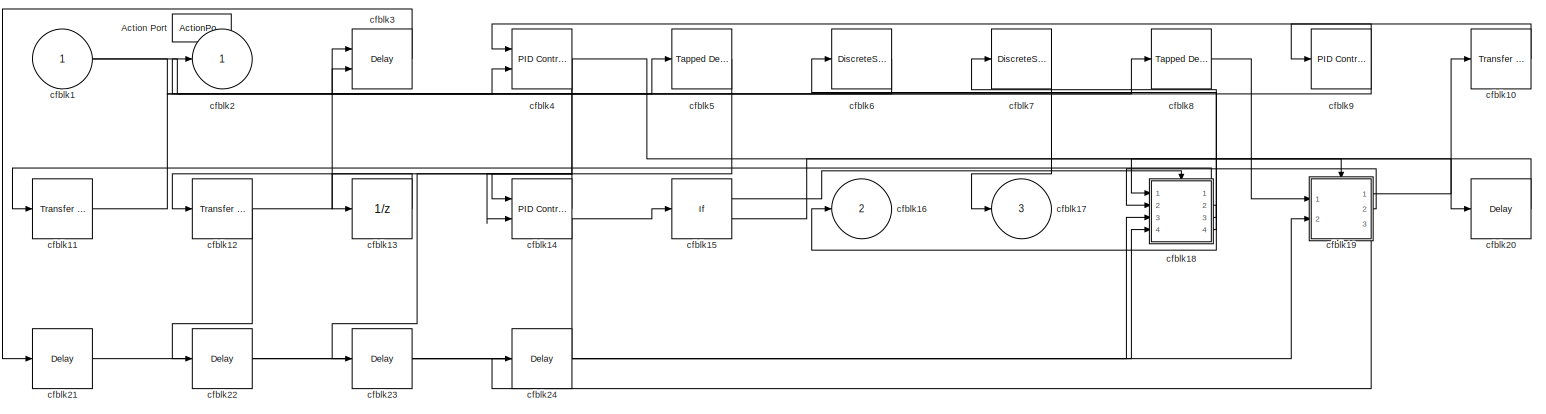
[diagram: cfblk247 - part 1/1, most of the canvas]
BLOCK [SubSystem] cfblk247
  Ports = [1, 3, 0, 0, 0, 0, 0, 1]
  RequestExecContextInheritance = off
  TreatAsAtomicUnit = on
  Variant = off
BLOCK [ActionPort] cfblk247/Action Port
  ActionType = then
BLOCK [Inport] cfblk247/cfblk1
  IconDisplay = Port number
BLOCK [Reference] cfblk247/cfblk10  REF=simulink/Discrete/Transfer Fcn
Lead or Lag
  Ports = [1, 1]
  SourceBlock = simulink/Discrete/Transfer Fcn\nLead or Lag
  SourceProductBaseCode = SL
  SourceProductName = Simulink
  SourceType = Lead or Lag Compensator
BLOCK [Reference] cfblk247/cfblk11  REF=simulink/Discrete/Transfer Fcn
Lead or Lag
  Ports = [1, 1]
  SourceBlock = simulink/Discrete/Transfer Fcn\nLead or Lag
  SourceProductBaseCode = SL
  SourceProductName = Simulink
  SourceType = Lead or Lag Compensator
BLOCK [Reference] cfblk247/cfblk12  REF=simulink/Discrete/Transfer Fcn
Real Zero
  Ports = [1, 1]
  SourceBlock = simulink/Discrete/Transfer Fcn\nReal Zero
  SourceProductBaseCode = SL
  SourceProductName = Simulink
  SourceType = Transfer Fcn Real Zero
BLOCK [UnitDelay] cfblk247/cfblk13
  InputProcessing = Elements as channels (sample based)
  SampleTime = -1
BLOCK [Reference] cfblk247/cfblk14  REF=simulink/Continuous/PID Controller (2DOF)
  Ports = [2, 1]
  SourceBlock = simulink/Continuous/PID Controller (2DOF)
  SourceProductBaseCode = SL
  SourceProductName = Simulink
  SourceType = PID 2dof
BLOCK [If] cfblk247/cfblk15
  Ports = [1, 2]
  SampleTime = 1
BLOCK [Outport] cfblk247/cfblk16
  IconDisplay = Port number
  Port = 2
BLOCK [Outport] cfblk247/cfblk17
  IconDisplay = Port number
  Port = 3
BLOCK [SubSystem] cfblk247/cfblk18
  Ports = [4, 4, 0, 0, 0, 0, 0, 1]
  RequestExecContextInheritance = off
  TreatAsAtomicUnit = on
  Variant = off
BLOCK [ActionPort] cfblk247/cfblk18/Action Port
  ActionType = then
BLOCK [Inport] cfblk247/cfblk18/cfblk1
  IconDisplay = Port number
BLOCK [DiscreteStateSpace] cfblk247/cfblk18/cfblk10
  SampleTime = -1
BLOCK [Inport] cfblk247/cfblk18/cfblk11
  IconDisplay = Port number
  Port = 2
BLOCK [Inport] cfblk247/cfblk18/cfblk12
  IconDisplay = Port number
  Port = 3
BLOCK [Inport] cfblk247/cfblk18/cfblk13
  IconDisplay = Port number
  Port = 4
BLOCK [Outport] cfblk247/cfblk18/cfblk14
  IconDisplay = Port number
  Port = 2
BLOCK [Outport] cfblk247/cfblk18/cfblk15
  IconDisplay = Port number
  Port = 3
BLOCK [Outport] cfblk247/cfblk18/cfblk16
  IconDisplay = Port number
  Port = 4
BLOCK [Delay] cfblk247/cfblk18/cfblk17
  InputPortMap = u0
  Ports = [1, 1]
BLOCK [Outport] cfblk247/cfblk18/cfblk2
  IconDisplay = Port number
BLOCK [DiscreteZeroPole] cfblk247/cfblk18/cfblk3
  Gain = 1
  Poles = [0 0.5]
  SampleTime = -1
BLOCK [DiscreteZeroPole] cfblk247/cfblk18/cfblk4
  Gain = 1
  Poles = [0 0.5]
  SampleTime = -1
BLOCK [Reference] cfblk247/cfblk18/cfblk5  REF=simulink/Discrete/Difference
  Ports = [1, 1]
  SourceBlock = simulink/Discrete/Difference
  SourceProductBaseCode = SL
  SourceProductName = Simulink
  SourceType = Difference
BLOCK [Reference] cfblk247/cfblk18/cfblk6  REF=simulink/Discrete/Transfer Fcn
Lead or Lag
  Ports = [1, 1]
  SourceBlock = simulink/Discrete/Transfer Fcn\nLead or Lag
  SourceProductBaseCode = SL
  SourceProductName = Simulink
  SourceType = Lead or Lag Compensator
BLOCK [DiscreteFilter] cfblk247/cfblk18/cfblk7
  InputPortMap = u0
  Ports = [1, 1]
BLOCK [Delay] cfblk247/cfblk18/cfblk8
  InputPortMap = u0,e6
  Ports = [2, 1]
  ShowEnablePort = on
BLOCK [Reference] cfblk247/cfblk18/cfblk9  REF=simulink/Discrete/Transfer Fcn
Real Zero
  Ports = [1, 1]
  SourceBlock = simulink/Discrete/Transfer Fcn\nReal Zero
  SourceProductBaseCode = SL
  SourceProductName = Simulink
  SourceType = Transfer Fcn Real Zero
BLOCK [SubSystem] cfblk247/cfblk19
  Ports = [2, 3, 0, 0, 0, 0, 0, 1]
  RequestExecContextInheritance = off
  TreatAsAtomicUnit = on
  Variant = off
BLOCK [ActionPort] cfblk247/cfblk19/Action Port
  ActionType = else
BLOCK [Inport] cfblk247/cfblk19/cfblk1
  IconDisplay = Port number
BLOCK [Delay] cfblk247/cfblk19/cfblk10
  InputPortMap = u0
  Ports = [1, 1]
BLOCK [Inport] cfblk247/cfblk19/cfblk11
  IconDisplay = Port number
  Port = 2
BLOCK [Outport] cfblk247/cfblk19/cfblk12
  IconDisplay = Port number
  Port = 2
BLOCK [Outport] cfblk247/cfblk19/cfblk13
  IconDisplay = Port number
  Port = 3
BLOCK [Delay] cfblk247/cfblk19/cfblk14
  InputPortMap = u0
  Ports = [1, 1]
BLOCK [Outport] cfblk247/cfblk19/cfblk2
  IconDisplay = Port number
BLOCK [DiscreteFilter] cfblk247/cfblk19/cfblk3
  InputPortMap = u0
  Ports = [1, 1]
BLOCK [Reference] cfblk247/cfblk19/cfblk4  REF=simulink/Discrete/Tapped Delay
  Ports = [1, 1]
  SourceBlock = simulink/Discrete/Tapped Delay
  SourceProductBaseCode = SL
  SourceProductName = Simulink
  SourceType = Tapped Delay Line
BLOCK [Reference] cfblk247/cfblk19/cfblk5  REF=simulink/Discrete/Transfer Fcn
First Order
  Ports = [1, 1]
  SourceBlock = simulink/Discrete/Transfer Fcn\nFirst Order
  SourceProductBaseCode = SL
  SourceProductName = Simulink
  SourceType = First Order Transfer Fcn
BLOCK [Reference] cfblk247/cfblk19/cfblk6  REF=simulink/Discrete/Transfer Fcn
Real Zero
  Ports = [1, 1]
  SourceBlock = simulink/Discrete/Transfer Fcn\nReal Zero
  SourceProductBaseCode = SL
  SourceProductName = Simulink
  SourceType = Transfer Fcn Real Zero
BLOCK [Reference] cfblk247/cfblk19/cfblk7  REF=simulink/Continuous/PID Controller
  Ports = [1, 1]
  SourceBlock = simulink/Continuous/PID Controller
  SourceProductBaseCode = SL
  SourceProductName = Simulink
  SourceType = PID 1dof
BLOCK [UnitDelay] cfblk247/cfblk19/cfblk8
  InputProcessing = Elements as channels (sample based)
  SampleTime = -1
BLOCK [Reference] cfblk247/cfblk19/cfblk9  REF=simulink/Discrete/Transfer Fcn
First Order
  Ports = [1, 1]
  SourceBlock = simulink/Discrete/Transfer Fcn\nFirst Order
  SourceProductBaseCode = SL
  SourceProductName = Simulink
  SourceType = First Order Transfer Fcn
BLOCK [Outport] cfblk247/cfblk2
  IconDisplay = Port number
BLOCK [Delay] cfblk247/cfblk20
  InputPortMap = u0
  Ports = [1, 1]
BLOCK [Delay] cfblk247/cfblk21
  InputPortMap = u0
  Ports = [1, 1]
BLOCK [Delay] cfblk247/cfblk22
  InputPortMap = u0
  Ports = [1, 1]
BLOCK [Delay] cfblk247/cfblk23
  InputPortMap = u0
  Ports = [1, 1]
BLOCK [Delay] cfblk247/cfblk24
  InputPortMap = u0
  Ports = [1, 1]
BLOCK [Delay] cfblk247/cfblk3
  InputPortMap = u0,e6
  Ports = [2, 1]
  ShowEnablePort = on
BLOCK [Reference] cfblk247/cfblk4  REF=simulink/Continuous/PID Controller (2DOF)
  Ports = [2, 1]
  SourceBlock = simulink/Continuous/PID Controller (2DOF)
  SourceProductBaseCode = SL
  SourceProductName = Simulink
  SourceType = PID 2dof
BLOCK [Reference] cfblk247/cfblk5  REF=simulink/Discrete/Tapped Delay
  Ports = [1, 1]
  SourceBlock = simulink/Discrete/Tapped Delay
  SourceProductBaseCode = SL
  SourceProductName = Simulink
  SourceType = Tapped Delay Line
BLOCK [DiscreteStateSpace] cfblk247/cfblk6
  SampleTime = -1
BLOCK [DiscreteStateSpace] cfblk247/cfblk7
  SampleTime = -1
BLOCK [Reference] cfblk247/cfblk8  REF=simulink/Discrete/Tapped Delay
  Ports = [1, 1]
  SourceBlock = simulink/Discrete/Tapped Delay
  SourceProductBaseCode = SL
  SourceProductName = Simulink
  SourceType = Tapped Delay Line
BLOCK [Reference] cfblk247/cfblk9  REF=simulink/Continuous/PID Controller
  Ports = [1, 1]
  SourceBlock = simulink/Continuous/PID Controller
  SourceProductBaseCode = SL
  SourceProductName = Simulink
  SourceType = PID 1dof
BLOCK [SubSystem] cfblk248
  Ports = [2, 2, 0, 0, 0, 0, 0, 1]
  RequestExecContextInheritance = off
  TreatAsAtomicUnit = on
  Variant = off
BLOCK [ActionPort] cfblk248/Action Port
  ActionType = else
BLOCK [Inport] cfblk248/cfblk1
  IconDisplay = Port number
BLOCK [DiscreteFilter] cfblk248/cfblk10
  InputPortMap = u0
  Ports = [1, 1]
BLOCK [Delay] cfblk248/cfblk11
  DelayLengthSource = Input port
  InputPortMap = u0,p1
  Ports = [2, 1]
BLOCK [Delay] cfblk248/cfblk12
  DelayLengthSource = Input port
  InputPortMap = u0,p1
  Ports = [2, 1]
BLOCK [Delay] cfblk248/cfblk13
  InputPortMap = u0,e6
  Ports = [2, 1]
  ShowEnablePort = on
BLOCK [Reference] cfblk248/cfblk14  REF=simulink/Discrete/Transfer Fcn
Real Zero
  Ports = [1, 1]
  SourceBlock = simulink/Discrete/Transfer Fcn\nReal Zero
  SourceProductBaseCode = SL
  SourceProductName = Simulink
  SourceType = Transfer Fcn Real Zero
BLOCK [DiscreteZeroPole] cfblk248/cfblk15
  Gain = 1
  Poles = [0 0.5]
  SampleTime = -1
BLOCK [Inport] cfblk248/cfblk16
  IconDisplay = Port number
  Port = 2
BLOCK [Outport] cfblk248/cfblk17
  IconDisplay = Port number
  Port = 2
BLOCK [Delay] cfblk248/cfblk18
  InputPortMap = u0
  Ports = [1, 1]
BLOCK [DataTypeConversion] cfblk248/cfblk19
  RndMeth = Floor
  SaturateOnIntegerOverflow = off
BLOCK [Outport] cfblk248/cfblk2
  IconDisplay = Port number
BLOCK [DataTypeConversion] cfblk248/cfblk20
  RndMeth = Floor
  SaturateOnIntegerOverflow = off
BLOCK [DataTypeConversion] cfblk248/cfblk21
  RndMeth = Floor
  SaturateOnIntegerOverflow = off
BLOCK [DiscreteFir] cfblk248/cfblk3
  InputPortMap = u0
  OutputPortMap = o0
  Ports = [1, 1]
BLOCK [Reference] cfblk248/cfblk4  REF=simulink/Discrete/Transfer Fcn
Lead or Lag
  Ports = [1, 1]
  SourceBlock = simulink/Discrete/Transfer Fcn\nLead or Lag
  SourceProductBaseCode = SL
  SourceProductName = Simulink
  SourceType = Lead or Lag Compensator
BLOCK [DiscreteZeroPole] cfblk248/cfblk5
  Gain = 1
  Poles = [0 0.5]
  SampleTime = -1
BLOCK [Reference] cfblk248/cfblk6  REF=simulink/Continuous/PID Controller
  Ports = [1, 1]
  SourceBlock = simulink/Continuous/PID Controller
  SourceProductBaseCode = SL
  SourceProductName = Simulink
  SourceType = PID 1dof
BLOCK [Reference] cfblk248/cfblk7  REF=simulink/Continuous/PID Controller (2DOF)
  Ports = [2, 1]
  SourceBlock = simulink/Continuous/PID Controller (2DOF)
  SourceProductBaseCode = SL
  SourceProductName = Simulink
  SourceType = PID 2dof
BLOCK [DiscreteFir] cfblk248/cfblk8
  InputPortMap = u0
  OutputPortMap = o0
  Ports = [1, 1]
BLOCK [DiscreteZeroPole] cfblk248/cfblk9
  Gain = 1
  Poles = [0 0.5]
  SampleTime = -1
BLOCK [SubSystem] cfblk249
  Ports = [3, 2, 0, 0, 0, 0, 0, 1]
  RequestExecContextInheritance = off
  TreatAsAtomicUnit = on
  Variant = off
BLOCK [ActionPort] cfblk249/Action Port
  ActionType = then
BLOCK [Inport] cfblk249/cfblk1
  IconDisplay = Port number
BLOCK [Reference] cfblk249/cfblk10  REF=simulink/Continuous/PID Controller (2DOF)
  Ports = [2, 1]
  SourceBlock = simulink/Continuous/PID Controller (2DOF)
  SourceProductBaseCode = SL
  SourceProductName = Simulink
  SourceType = PID 2dof
BLOCK [Reference] cfblk249/cfblk11  REF=simulink/Continuous/PID Controller (2DOF)
  Ports = [2, 1]
  SourceBlock = simulink/Continuous/PID Controller (2DOF)
  SourceProductBaseCode = SL
  SourceProductName = Simulink
  SourceType = PID 2dof
BLOCK [DiscreteZeroPole] cfblk249/cfblk12
  Gain = 1
  Poles = [0 0.5]
  SampleTime = -1
BLOCK [Delay] cfblk249/cfblk13
  DelayLengthSource = Input port
  InputPortMap = u0,p1
  Ports = [2, 1]
BLOCK [Inport] cfblk249/cfblk14
  IconDisplay = Port number
  Port = 2
BLOCK [Inport] cfblk249/cfblk15
  IconDisplay = Port number
  Port = 3
BLOCK [Outport] cfblk249/cfblk16
  IconDisplay = Port number
  Port = 2
BLOCK [Delay] cfblk249/cfblk17
  InputPortMap = u0
  Ports = [1, 1]
BLOCK [Outport] cfblk249/cfblk2
  IconDisplay = Port number
BLOCK [DiscreteZeroPole] cfblk249/cfblk3
  Gain = 1
  Poles = [0 0.5]
  SampleTime = -1
BLOCK [Reference] cfblk249/cfblk4  REF=simulink/Continuous/PID Controller
  Ports = [1, 1]
  SourceBlock = simulink/Continuous/PID Controller
  SourceProductBaseCode = SL
  SourceProductName = Simulink
  SourceType = PID 1dof
BLOCK [UnitDelay] cfblk249/cfblk5
  InputProcessing = Elements as channels (sample based)
  SampleTime = -1
BLOCK [Reference] cfblk249/cfblk6  REF=simulink/Continuous/PID Controller
  Ports = [1, 1]
  SourceBlock = simulink/Continuous/PID Controller
  SourceProductBaseCode = SL
  SourceProductName = Simulink
  SourceType = PID 1dof
BLOCK [Delay] cfblk249/cfblk7
  DelayLengthSource = Input port
  InputPortMap = u0,p1
  Ports = [2, 1]
BLOCK [DiscreteFir] cfblk249/cfblk8
  InputPortMap = u0
  OutputPortMap = o0
  Ports = [1, 1]
BLOCK [DiscreteFir] cfblk249/cfblk9
  InputPortMap = u0
  OutputPortMap = o0
  Ports = [1, 1]
BLOCK [Reference] cfblk25  REF=simulink/Discrete/Transfer Fcn
Real Zero
  Ports = [1, 1]
  SourceBlock = simulink/Discrete/Transfer Fcn\nReal Zero
  SourceProductBaseCode = SL
  SourceProductName = Simulink
  SourceType = Transfer Fcn Real Zero
BLOCK [SubSystem] cfblk250
  Ports = [2, 2, 0, 0, 0, 0, 0, 1]
  RequestExecContextInheritance = off
  TreatAsAtomicUnit = on
  Variant = off
BLOCK [ActionPort] cfblk250/Action Port
  ActionType = else
BLOCK [Inport] cfblk250/cfblk1
  IconDisplay = Port number
BLOCK [Delay] cfblk250/cfblk10
  InputPortMap = u0
  Ports = [1, 1]
BLOCK [Delay] cfblk250/cfblk11
  InputPortMap = u0
  Ports = [1, 1]
BLOCK [Outport] cfblk250/cfblk2
  IconDisplay = Port number
BLOCK [Reference] cfblk250/cfblk3  REF=simulink/Discrete/Transfer Fcn
Real Zero
  Ports = [1, 1]
  SourceBlock = simulink/Discrete/Transfer Fcn\nReal Zero
  SourceProductBaseCode = SL
  SourceProductName = Simulink
  SourceType = Transfer Fcn Real Zero
BLOCK [Reference] cfblk250/cfblk4  REF=simulink/Discrete/Transfer Fcn
Real Zero
  Ports = [1, 1]
  SourceBlock = simulink/Discrete/Transfer Fcn\nReal Zero
  SourceProductBaseCode = SL
  SourceProductName = Simulink
  SourceType = Transfer Fcn Real Zero
BLOCK [DiscreteZeroPole] cfblk250/cfblk5
  Gain = 1
  Poles = [0 0.5]
  SampleTime = -1
BLOCK [DiscreteFir] cfblk250/cfblk6
  InputPortMap = u0
  OutputPortMap = o0
  Ports = [1, 1]
BLOCK [Delay] cfblk250/cfblk7
  DelayLengthSource = Input port
  InputPortMap = u0,p1
  Ports = [2, 1]
BLOCK [Inport] cfblk250/cfblk8
  IconDisplay = Port number
  Port = 2
BLOCK [Outport] cfblk250/cfblk9
  IconDisplay = Port number
  Port = 2
BLOCK [SubSystem] cfblk251
  Ports = [1, 2, 0, 0, 0, 0, 0, 1]
  RequestExecContextInheritance = off
  TreatAsAtomicUnit = on
  Variant = off
BLOCK [ActionPort] cfblk251/Action Port
  ActionType = then
BLOCK [Inport] cfblk251/cfblk1
  IconDisplay = Port number
BLOCK [Delay] cfblk251/cfblk10
  InputPortMap = u0
  Ports = [1, 1]
BLOCK [Outport] cfblk251/cfblk11
  IconDisplay = Port number
  Port = 2
BLOCK [Delay] cfblk251/cfblk12
  InputPortMap = u0
  Ports = [1, 1]
BLOCK [Outport] cfblk251/cfblk2
  IconDisplay = Port number
BLOCK [DiscreteStateSpace] cfblk251/cfblk3
  SampleTime = -1
BLOCK [Reference] cfblk251/cfblk4  REF=simulink/Discrete/Transfer Fcn
Real Zero
  Ports = [1, 1]
  SourceBlock = simulink/Discrete/Transfer Fcn\nReal Zero
  SourceProductBaseCode = SL
  SourceProductName = Simulink
  SourceType = Transfer Fcn Real Zero
BLOCK [Reference] cfblk251/cfblk5  REF=simulink/Discrete/Transfer Fcn
Real Zero
  Ports = [1, 1]
  SourceBlock = simulink/Discrete/Transfer Fcn\nReal Zero
  SourceProductBaseCode = SL
  SourceProductName = Simulink
  SourceType = Transfer Fcn Real Zero
BLOCK [Reference] cfblk251/cfblk6  REF=simulink/Discrete/Transfer Fcn
Lead or Lag
  Ports = [1, 1]
  SourceBlock = simulink/Discrete/Transfer Fcn\nLead or Lag
  SourceProductBaseCode = SL
  SourceProductName = Simulink
  SourceType = Lead or Lag Compensator
BLOCK [Reference] cfblk251/cfblk7  REF=simulink/Discrete/Difference
  Ports = [1, 1]
  SourceBlock = simulink/Discrete/Difference
  SourceProductBaseCode = SL
  SourceProductName = Simulink
  SourceType = Difference
BLOCK [Reference] cfblk251/cfblk8  REF=simulink/Discrete/Transfer Fcn
Lead or Lag
  Ports = [1, 1]
  SourceBlock = simulink/Discrete/Transfer Fcn\nLead or Lag
  SourceProductBaseCode = SL
  SourceProductName = Simulink
  SourceType = Lead or Lag Compensator
BLOCK [DiscreteIntegrator] cfblk251/cfblk9
  ICPrevOutput = DiscIntNeverNeededParam
  ICPrevScaledInput = DiscIntNeverNeededParam
  InitialConditionSetting = State (most efficient)
  Ports = [1, 1]
  SampleTime = -1
BLOCK [SubSystem] cfblk252
  Ports = [1, 1, 0, 0, 0, 0, 0, 1]
  RequestExecContextInheritance = off
  TreatAsAtomicUnit = on
  Variant = off
BLOCK [ActionPort] cfblk252/Action Port
  ActionType = else
BLOCK [Inport] cfblk252/cfblk1
  IconDisplay = Port number
BLOCK [Reference] cfblk252/cfblk10  REF=simulink/Discrete/Tapped Delay
  Ports = [1, 1]
  SourceBlock = simulink/Discrete/Tapped Delay
  SourceProductBaseCode = SL
  SourceProductName = Simulink
  SourceType = Tapped Delay Line
BLOCK [Reference] cfblk252/cfblk11  REF=simulink/Continuous/PID Controller (2DOF)
  Ports = [2, 1]
  SourceBlock = simulink/Continuous/PID Controller (2DOF)
  SourceProductBaseCode = SL
  SourceProductName = Simulink
  SourceType = PID 2dof
BLOCK [Reference] cfblk252/cfblk12  REF=simulink/Discrete/Transfer Fcn
Lead or Lag
  Ports = [1, 1]
  SourceBlock = simulink/Discrete/Transfer Fcn\nLead or Lag
  SourceProductBaseCode = SL
  SourceProductName = Simulink
  SourceType = Lead or Lag Compensator
BLOCK [DiscreteStateSpace] cfblk252/cfblk13
  SampleTime = -1
BLOCK [If] cfblk252/cfblk14
  Ports = [1, 2]
  SampleTime = 1
BLOCK [SubSystem] cfblk252/cfblk15
  Ports = [2, 2, 0, 0, 0, 0, 0, 1]
  RequestExecContextInheritance = off
  TreatAsAtomicUnit = on
  Variant = off
BLOCK [ActionPort] cfblk252/cfblk15/Action Port
  ActionType = then
BLOCK [Inport] cfblk252/cfblk15/cfblk1
  IconDisplay = Port number
BLOCK [DiscreteTransferFcn] cfblk252/cfblk15/cfblk10
  InputPortMap = u0
  Ports = [1, 1]
BLOCK [Reference] cfblk252/cfblk15/cfblk11  REF=simulink/Continuous/PID Controller (2DOF)
  Ports = [2, 1]
  SourceBlock = simulink/Continuous/PID Controller (2DOF)
  SourceProductBaseCode = SL
  SourceProductName = Simulink
  SourceType = PID 2dof
BLOCK [DiscreteZeroPole] cfblk252/cfblk15/cfblk12
  Gain = 1
  Poles = [0 0.5]
  SampleTime = -1
BLOCK [DiscreteFir] cfblk252/cfblk15/cfblk13
  InputPortMap = u0
  OutputPortMap = o0
  Ports = [1, 1]
BLOCK [Reference] cfblk252/cfblk15/cfblk14  REF=simulink/Discrete/Transfer Fcn
Real Zero
  Ports = [1, 1]
  SourceBlock = simulink/Discrete/Transfer Fcn\nReal Zero
  SourceProductBaseCode = SL
  SourceProductName = Simulink
  SourceType = Transfer Fcn Real Zero
BLOCK [Inport] cfblk252/cfblk15/cfblk15
  IconDisplay = Port number
  Port = 2
BLOCK [Outport] cfblk252/cfblk15/cfblk16
  IconDisplay = Port number
  Port = 2
BLOCK [Delay] cfblk252/cfblk15/cfblk17
  InputPortMap = u0
  Ports = [1, 1]
BLOCK [Delay] cfblk252/cfblk15/cfblk18
  InputPortMap = u0
  Ports = [1, 1]
BLOCK [Outport] cfblk252/cfblk15/cfblk2
  IconDisplay = Port number
BLOCK [Delay] cfblk252/cfblk15/cfblk3
  InputPortMap = u0
  Ports = [1, 1]
BLOCK [Delay] cfblk252/cfblk15/cfblk4
  DelayLengthSource = Input port
  InputPortMap = u0,p1
  Ports = [2, 1]
BLOCK [UnitDelay] cfblk252/cfblk15/cfblk5
  InputProcessing = Elements as channels (sample based)
  SampleTime = -1
BLOCK [Reference] cfblk252/cfblk15/cfblk6  REF=simulink/Discrete/Transfer Fcn
Lead or Lag
  Ports = [1, 1]
  SourceBlock = simulink/Discrete/Transfer Fcn\nLead or Lag
  SourceProductBaseCode = SL
  SourceProductName = Simulink
  SourceType = Lead or Lag Compensator
BLOCK [DiscreteFilter] cfblk252/cfblk15/cfblk7
  InputPortMap = u0
  Ports = [1, 1]
BLOCK [Reference] cfblk252/cfblk15/cfblk8  REF=simulink/Discrete/Transfer Fcn
Real Zero
  Ports = [1, 1]
  SourceBlock = simulink/Discrete/Transfer Fcn\nReal Zero
  SourceProductBaseCode = SL
  SourceProductName = Simulink
  SourceType = Transfer Fcn Real Zero
BLOCK [Reference] cfblk252/cfblk15/cfblk9  REF=simulink/Discrete/Transfer Fcn
Lead or Lag
  Ports = [1, 1]
  SourceBlock = simulink/Discrete/Transfer Fcn\nLead or Lag
  SourceProductBaseCode = SL
  SourceProductName = Simulink
  SourceType = Lead or Lag Compensator
BLOCK [SubSystem] cfblk252/cfblk16
  Ports = [2, 2, 0, 0, 0, 0, 0, 1]
  RequestExecContextInheritance = off
  TreatAsAtomicUnit = on
  Variant = off
BLOCK [ActionPort] cfblk252/cfblk16/Action Port
  ActionType = else
BLOCK [Inport] cfblk252/cfblk16/cfblk1
  IconDisplay = Port number
BLOCK [Reference] cfblk252/cfblk16/cfblk10  REF=simulink/Discrete/Difference
  Ports = [1, 1]
  SourceBlock = simulink/Discrete/Difference
  SourceProductBaseCode = SL
  SourceProductName = Simulink
  SourceType = Difference
BLOCK [DiscreteIntegrator] cfblk252/cfblk16/cfblk11
  ICPrevOutput = DiscIntNeverNeededParam
  ICPrevScaledInput = DiscIntNeverNeededParam
  InitialConditionSetting = State (most efficient)
  Ports = [1, 1]
  SampleTime = -1
BLOCK [Reference] cfblk252/cfblk16/cfblk12  REF=simulink/Discrete/Transfer Fcn
Real Zero
  Ports = [1, 1]
  SourceBlock = simulink/Discrete/Transfer Fcn\nReal Zero
  SourceProductBaseCode = SL
  SourceProductName = Simulink
  SourceType = Transfer Fcn Real Zero
BLOCK [Delay] cfblk252/cfblk16/cfblk13
  InputPortMap = u0
  Ports = [1, 1]
BLOCK [Delay] cfblk252/cfblk16/cfblk14
  DelayLengthSource = Input port
  InputPortMap = u0,p1
  Ports = [2, 1]
BLOCK [DiscreteFilter] cfblk252/cfblk16/cfblk15
  InputPortMap = u0
  Ports = [1, 1]
BLOCK [Inport] cfblk252/cfblk16/cfblk16
  IconDisplay = Port number
  Port = 2
BLOCK [Outport] cfblk252/cfblk16/cfblk17
  IconDisplay = Port number
  Port = 2
BLOCK [Outport] cfblk252/cfblk16/cfblk2
  IconDisplay = Port number
BLOCK [Delay] cfblk252/cfblk16/cfblk3
  DelayLengthSource = Input port
  InputPortMap = u0,p1
  Ports = [2, 1]
BLOCK [Reference] cfblk252/cfblk16/cfblk4  REF=simulink/Discrete/Tapped Delay
  Ports = [1, 1]
  SourceBlock = simulink/Discrete/Tapped Delay
  SourceProductBaseCode = SL
  SourceProductName = Simulink
  SourceType = Tapped Delay Line
BLOCK [Reference] cfblk252/cfblk16/cfblk5  REF=simulink/Discrete/Transfer Fcn
Lead or Lag
  Ports = [1, 1]
  SourceBlock = simulink/Discrete/Transfer Fcn\nLead or Lag
  SourceProductBaseCode = SL
  SourceProductName = Simulink
  SourceType = Lead or Lag Compensator
BLOCK [Delay] cfblk252/cfblk16/cfblk6
  InputPortMap = u0,e6
  Ports = [2, 1]
  ShowEnablePort = on
BLOCK [DiscreteTransferFcn] cfblk252/cfblk16/cfblk7
  InputPortMap = u0
  Ports = [1, 1]
BLOCK [Reference] cfblk252/cfblk16/cfblk8  REF=simulink/Discrete/Transfer Fcn
Lead or Lag
  Ports = [1, 1]
  SourceBlock = simulink/Discrete/Transfer Fcn\nLead or Lag
  SourceProductBaseCode = SL
  SourceProductName = Simulink
  SourceType = Lead or Lag Compensator
BLOCK [UnitDelay] cfblk252/cfblk16/cfblk9
  InputProcessing = Elements as channels (sample based)
  SampleTime = -1
BLOCK [Delay] cfblk252/cfblk17
  InputPortMap = u0
  Ports = [1, 1]
BLOCK [Delay] cfblk252/cfblk18
  InputPortMap = u0
  Ports = [1, 1]
BLOCK [Delay] cfblk252/cfblk19
  InputPortMap = u0
  Ports = [1, 1]
BLOCK [Outport] cfblk252/cfblk2
  IconDisplay = Port number
BLOCK [Delay] cfblk252/cfblk20
  InputPortMap = u0
  Ports = [1, 1]
BLOCK [Reference] cfblk252/cfblk3  REF=simulink/Continuous/PID Controller
  Ports = [1, 1]
  SourceBlock = simulink/Continuous/PID Controller
  SourceProductBaseCode = SL
  SourceProductName = Simulink
  SourceType = PID 1dof
BLOCK [Reference] cfblk252/cfblk4  REF=simulink/Discrete/Difference
  Ports = [1, 1]
  SourceBlock = simulink/Discrete/Difference
  SourceProductBaseCode = SL
  SourceProductName = Simulink
  SourceType = Difference
BLOCK [Reference] cfblk252/cfblk5  REF=simulink/Discrete/Tapped Delay
  Ports = [1, 1]
  SourceBlock = simulink/Discrete/Tapped Delay
  SourceProductBaseCode = SL
  SourceProductName = Simulink
  SourceType = Tapped Delay Line
BLOCK [Reference] cfblk252/cfblk6  REF=simulink/Discrete/Transfer Fcn
Real Zero
  Ports = [1, 1]
  SourceBlock = simulink/Discrete/Transfer Fcn\nReal Zero
  SourceProductBaseCode = SL
  SourceProductName = Simulink
  SourceType = Transfer Fcn Real Zero
BLOCK [UnitDelay] cfblk252/cfblk7
  InputProcessing = Elements as channels (sample based)
  SampleTime = -1
BLOCK [Reference] cfblk252/cfblk8  REF=simulink/Discrete/Difference
  Ports = [1, 1]
  SourceBlock = simulink/Discrete/Difference
  SourceProductBaseCode = SL
  SourceProductName = Simulink
  SourceType = Difference
BLOCK [DiscreteFir] cfblk252/cfblk9
  InputPortMap = u0
  OutputPortMap = o0
  Ports = [1, 1]
BLOCK [SubSystem] cfblk253
  Ports = [2, 1, 0, 0, 0, 0, 0, 1]
  RequestExecContextInheritance = off
  TreatAsAtomicUnit = on
  Variant = off
BLOCK [ActionPort] cfblk253/Action Port
  ActionType = then
BLOCK [Inport] cfblk253/cfblk1
  IconDisplay = Port number
BLOCK [SubSystem] cfblk253/cfblk10
  Ports = [4, 2, 0, 0, 0, 0, 0, 1]
  RequestExecContextInheritance = off
  TreatAsAtomicUnit = on
  Variant = off
BLOCK [ActionPort] cfblk253/cfblk10/Action Port
  ActionType = else
BLOCK [Inport] cfblk253/cfblk10/cfblk1
  IconDisplay = Port number
BLOCK [DiscreteFilter] cfblk253/cfblk10/cfblk10
  InputPortMap = u0
  Ports = [1, 1]
BLOCK [DiscreteFir] cfblk253/cfblk10/cfblk11
  InputPortMap = u0
  OutputPortMap = o0
  Ports = [1, 1]
BLOCK [Inport] cfblk253/cfblk10/cfblk12
  IconDisplay = Port number
  Port = 2
BLOCK [Inport] cfblk253/cfblk10/cfblk13
  IconDisplay = Port number
  Port = 3
BLOCK [Inport] cfblk253/cfblk10/cfblk14
  IconDisplay = Port number
  Port = 4
BLOCK [Outport] cfblk253/cfblk10/cfblk15
  IconDisplay = Port number
  Port = 2
BLOCK [Outport] cfblk253/cfblk10/cfblk2
  IconDisplay = Port number
BLOCK [Reference] cfblk253/cfblk10/cfblk3  REF=simulink/Discrete/Transfer Fcn
First Order
  Ports = [1, 1]
  SourceBlock = simulink/Discrete/Transfer Fcn\nFirst Order
  SourceProductBaseCode = SL
  SourceProductName = Simulink
  SourceType = First Order Transfer Fcn
BLOCK [Reference] cfblk253/cfblk10/cfblk4  REF=simulink/Discrete/Difference
  Ports = [1, 1]
  SourceBlock = simulink/Discrete/Difference
  SourceProductBaseCode = SL
  SourceProductName = Simulink
  SourceType = Difference
BLOCK [DiscreteStateSpace] cfblk253/cfblk10/cfblk5
  SampleTime = -1
BLOCK [Delay] cfblk253/cfblk10/cfblk6
  InputPortMap = u0
  Ports = [1, 1]
BLOCK [DiscreteZeroPole] cfblk253/cfblk10/cfblk7
  Gain = 1
  Poles = [0 0.5]
  SampleTime = -1
BLOCK [Delay] cfblk253/cfblk10/cfblk8
  InputPortMap = u0
  Ports = [1, 1]
BLOCK [UnitDelay] cfblk253/cfblk10/cfblk9
  InputProcessing = Elements as channels (sample based)
  SampleTime = -1
BLOCK [Delay] cfblk253/cfblk11
  InputPortMap = u0
  Ports = [1, 1]
BLOCK [Delay] cfblk253/cfblk12
  InputPortMap = u0
  Ports = [1, 1]
BLOCK [Delay] cfblk253/cfblk13
  InputPortMap = u0
  Ports = [1, 1]
BLOCK [Delay] cfblk253/cfblk14
  InputPortMap = u0
  Ports = [1, 1]
BLOCK [Delay] cfblk253/cfblk15
  InputPortMap = u0
  Ports = [1, 1]
BLOCK [Delay] cfblk253/cfblk16
  InputPortMap = u0
  Ports = [1, 1]
BLOCK [Outport] cfblk253/cfblk2
  IconDisplay = Port number
BLOCK [Delay] cfblk253/cfblk3
  InputPortMap = u0
  Ports = [1, 1]
BLOCK [Reference] cfblk253/cfblk4  REF=simulink/Discrete/Transfer Fcn
Real Zero
  Ports = [1, 1]
  SourceBlock = simulink/Discrete/Transfer Fcn\nReal Zero
  SourceProductBaseCode = SL
  SourceProductName = Simulink
  SourceType = Transfer Fcn Real Zero
BLOCK [Reference] cfblk253/cfblk5  REF=simulink/Discrete/Transfer Fcn
First Order
  Ports = [1, 1]
  SourceBlock = simulink/Discrete/Transfer Fcn\nFirst Order
  SourceProductBaseCode = SL
  SourceProductName = Simulink
  SourceType = First Order Transfer Fcn
BLOCK [DiscreteStateSpace] cfblk253/cfblk6
  SampleTime = -1
BLOCK [If] cfblk253/cfblk7
  Ports = [1, 2]
  SampleTime = 1
BLOCK [Inport] cfblk253/cfblk8
  IconDisplay = Port number
  Port = 2
BLOCK [SubSystem] cfblk253/cfblk9
  Ports = [4, 4, 0, 0, 0, 0, 0, 1]
  RequestExecContextInheritance = off
  TreatAsAtomicUnit = on
  Variant = off
BLOCK [ActionPort] cfblk253/cfblk9/Action Port
  ActionType = then
BLOCK [Inport] cfblk253/cfblk9/cfblk1
  IconDisplay = Port number
BLOCK [Outport] cfblk253/cfblk9/cfblk2
  IconDisplay = Port number
BLOCK [DiscreteZeroPole] cfblk253/cfblk9/cfblk3
  Gain = 1
  Poles = [0 0.5]
  SampleTime = -1
BLOCK [Inport] cfblk253/cfblk9/cfblk4
  IconDisplay = Port number
  Port = 2
BLOCK [Inport] cfblk253/cfblk9/cfblk5
  IconDisplay = Port number
  Port = 3
BLOCK [Inport] cfblk253/cfblk9/cfblk6
  IconDisplay = Port number
  Port = 4
BLOCK [Outport] cfblk253/cfblk9/cfblk7
  IconDisplay = Port number
  Port = 2
BLOCK [Outport] cfblk253/cfblk9/cfblk8
  IconDisplay = Port number
  Port = 3
BLOCK [Outport] cfblk253/cfblk9/cfblk9
  IconDisplay = Port number
  Port = 4
BLOCK [SubSystem] cfblk254
  Ports = [4, 1, 0, 0, 0, 0, 0, 1]
  RequestExecContextInheritance = off
  TreatAsAtomicUnit = on
  Variant = off
BLOCK [ActionPort] cfblk254/Action Port
  ActionType = else
BLOCK [Inport] cfblk254/cfblk1
  IconDisplay = Port number
BLOCK [Reference] cfblk254/cfblk10  REF=simulink/Discrete/Transfer Fcn
Lead or Lag
  Ports = [1, 1]
  SourceBlock = simulink/Discrete/Transfer Fcn\nLead or Lag
  SourceProductBaseCode = SL
  SourceProductName = Simulink
  SourceType = Lead or Lag Compensator
BLOCK [DiscreteTransferFcn] cfblk254/cfblk11
  InputPortMap = u0
  Ports = [1, 1]
BLOCK [Delay] cfblk254/cfblk12
  InputPortMap = u0,e6
  Ports = [2, 1]
  ShowEnablePort = on
BLOCK [Reference] cfblk254/cfblk13  REF=simulink/Discrete/Tapped Delay
  Ports = [1, 1]
  SourceBlock = simulink/Discrete/Tapped Delay
  SourceProductBaseCode = SL
  SourceProductName = Simulink
  SourceType = Tapped Delay Line
BLOCK [Inport] cfblk254/cfblk14
  IconDisplay = Port number
  Port = 2
BLOCK [Inport] cfblk254/cfblk15
  IconDisplay = Port number
  Port = 3
BLOCK [Inport] cfblk254/cfblk16
  IconDisplay = Port number
  Port = 4
BLOCK [Outport] cfblk254/cfblk2
  IconDisplay = Port number
BLOCK [DiscreteFilter] cfblk254/cfblk3
  InputPortMap = u0
  Ports = [1, 1]
BLOCK [DiscreteIntegrator] cfblk254/cfblk4
  ICPrevOutput = DiscIntNeverNeededParam
  ICPrevScaledInput = DiscIntNeverNeededParam
  InitialConditionSetting = State (most efficient)
  Ports = [1, 1]
  SampleTime = -1
BLOCK [Reference] cfblk254/cfblk5  REF=simulink/Continuous/PID Controller
  Ports = [1, 1]
  SourceBlock = simulink/Continuous/PID Controller
  SourceProductBaseCode = SL
  SourceProductName = Simulink
  SourceType = PID 1dof
BLOCK [Delay] cfblk254/cfblk6
  DelayLengthSource = Input port
  InputPortMap = u0,p1
  Ports = [2, 1]
BLOCK [Reference] cfblk254/cfblk7  REF=simulink/Continuous/PID Controller
  Ports = [1, 1]
  SourceBlock = simulink/Continuous/PID Controller
  SourceProductBaseCode = SL
  SourceProductName = Simulink
  SourceType = PID 1dof
BLOCK [DiscreteIntegrator] cfblk254/cfblk8
  ICPrevOutput = DiscIntNeverNeededParam
  ICPrevScaledInput = DiscIntNeverNeededParam
  InitialConditionSetting = State (most efficient)
  Ports = [1, 1]
  SampleTime = -1
BLOCK [Reference] cfblk254/cfblk9  REF=simulink/Discrete/Transfer Fcn
Real Zero
  Ports = [1, 1]
  SourceBlock = simulink/Discrete/Transfer Fcn\nReal Zero
  SourceProductBaseCode = SL
  SourceProductName = Simulink
  SourceType = Transfer Fcn Real Zero
BLOCK [SubSystem] cfblk255
  Ports = [4, 3, 0, 0, 0, 0, 0, 1]
  RequestExecContextInheritance = off
  TreatAsAtomicUnit = on
  Variant = off
BLOCK [ActionPort] cfblk255/Action Port
  ActionType = then
BLOCK [Inport] cfblk255/cfblk1
  IconDisplay = Port number
BLOCK [Inport] cfblk255/cfblk10
  IconDisplay = Port number
  Port = 3
BLOCK [Inport] cfblk255/cfblk11
  IconDisplay = Port number
  Port = 4
BLOCK [Outport] cfblk255/cfblk12
  IconDisplay = Port number
  Port = 2
BLOCK [Outport] cfblk255/cfblk13
  IconDisplay = Port number
  Port = 3
BLOCK [Outport] cfblk255/cfblk2
  IconDisplay = Port number
BLOCK [Reference] cfblk255/cfblk3  REF=simulink/Discrete/Transfer Fcn
Lead or Lag
  Ports = [1, 1]
  SourceBlock = simulink/Discrete/Transfer Fcn\nLead or Lag
  SourceProductBaseCode = SL
  SourceProductName = Simulink
  SourceType = Lead or Lag Compensator
BLOCK [DiscreteFir] cfblk255/cfblk4
  InputPortMap = u0
  OutputPortMap = o0
  Ports = [1, 1]
BLOCK [Delay] cfblk255/cfblk5
  InputPortMap = u0
  Ports = [1, 1]
BLOCK [Delay] cfblk255/cfblk6
  InputPortMap = u0,e6
  Ports = [2, 1]
  ShowEnablePort = on
BLOCK [Delay] cfblk255/cfblk7
  InputPortMap = u0,e6
  Ports = [2, 1]
  ShowEnablePort = on
BLOCK [Reference] cfblk255/cfblk8  REF=simulink/Discrete/Tapped Delay
  Ports = [1, 1]
  SourceBlock = simulink/Discrete/Tapped Delay
  SourceProductBaseCode = SL
  SourceProductName = Simulink
  SourceType = Tapped Delay Line
BLOCK [Inport] cfblk255/cfblk9
  IconDisplay = Port number
  Port = 2
BLOCK [SubSystem] cfblk256
  Ports = [2, 1, 0, 0, 0, 0, 0, 1]
  RequestExecContextInheritance = off
  TreatAsAtomicUnit = on
  Variant = off
BLOCK [ActionPort] cfblk256/Action Port
  ActionType = else
BLOCK [Inport] cfblk256/cfblk1
  IconDisplay = Port number
BLOCK [Inport] cfblk256/cfblk10
  IconDisplay = Port number
  Port = 2
BLOCK [SubSystem] cfblk256/cfblk11
  Ports = [3, 2, 0, 0, 0, 0, 0, 1]
  RequestExecContextInheritance = off
  TreatAsAtomicUnit = on
  Variant = off
BLOCK [ActionPort] cfblk256/cfblk11/Action Port
  ActionType = then
BLOCK [Inport] cfblk256/cfblk11/cfblk1
  IconDisplay = Port number
BLOCK [Inport] cfblk256/cfblk11/cfblk10
  IconDisplay = Port number
  Port = 3
BLOCK [Outport] cfblk256/cfblk11/cfblk11
  IconDisplay = Port number
  Port = 2
BLOCK [Outport] cfblk256/cfblk11/cfblk2
  IconDisplay = Port number
BLOCK [Reference] cfblk256/cfblk11/cfblk3  REF=simulink/Discrete/Tapped Delay
  Ports = [1, 1]
  SourceBlock = simulink/Discrete/Tapped Delay
  SourceProductBaseCode = SL
  SourceProductName = Simulink
  SourceType = Tapped Delay Line
BLOCK [Reference] cfblk256/cfblk11/cfblk4  REF=simulink/Discrete/Transfer Fcn
Real Zero
  Ports = [1, 1]
  SourceBlock = simulink/Discrete/Transfer Fcn\nReal Zero
  SourceProductBaseCode = SL
  SourceProductName = Simulink
  SourceType = Transfer Fcn Real Zero
BLOCK [DiscreteStateSpace] cfblk256/cfblk11/cfblk5
  SampleTime = -1
BLOCK [DiscreteTransferFcn] cfblk256/cfblk11/cfblk6
  InputPortMap = u0
  Ports = [1, 1]
BLOCK [Reference] cfblk256/cfblk11/cfblk7  REF=simulink/Continuous/PID Controller
  Ports = [1, 1]
  SourceBlock = simulink/Continuous/PID Controller
  SourceProductBaseCode = SL
  SourceProductName = Simulink
  SourceType = PID 1dof
BLOCK [DiscreteFir] cfblk256/cfblk11/cfblk8
  InputPortMap = u0
  OutputPortMap = o0
  Ports = [1, 1]
BLOCK [Inport] cfblk256/cfblk11/cfblk9
  IconDisplay = Port number
  Port = 2
BLOCK [SubSystem] cfblk256/cfblk12
  Ports = [1, 3, 0, 0, 0, 0, 0, 1]
  RequestExecContextInheritance = off
  TreatAsAtomicUnit = on
  Variant = off
BLOCK [ActionPort] cfblk256/cfblk12/Action Port
  ActionType = else
BLOCK [Inport] cfblk256/cfblk12/cfblk1
  IconDisplay = Port number
BLOCK [Outport] cfblk256/cfblk12/cfblk2
  IconDisplay = Port number
BLOCK [DiscreteTransferFcn] cfblk256/cfblk12/cfblk3
  InputPortMap = u0
  Ports = [1, 1]
BLOCK [Reference] cfblk256/cfblk12/cfblk4  REF=simulink/Discrete/Difference
  Ports = [1, 1]
  SourceBlock = simulink/Discrete/Difference
  SourceProductBaseCode = SL
  SourceProductName = Simulink
  SourceType = Difference
BLOCK [DiscreteIntegrator] cfblk256/cfblk12/cfblk5
  ICPrevOutput = DiscIntNeverNeededParam
  ICPrevScaledInput = DiscIntNeverNeededParam
  InitialConditionSetting = State (most efficient)
  Ports = [1, 1]
  SampleTime = -1
BLOCK [Delay] cfblk256/cfblk12/cfblk6
  InputPortMap = u0
  Ports = [1, 1]
BLOCK [Outport] cfblk256/cfblk12/cfblk7
  IconDisplay = Port number
  Port = 2
BLOCK [Outport] cfblk256/cfblk12/cfblk8
  IconDisplay = Port number
  Port = 3
BLOCK [Delay] cfblk256/cfblk13
  InputPortMap = u0
  Ports = [1, 1]
BLOCK [Delay] cfblk256/cfblk14
  InputPortMap = u0
  Ports = [1, 1]
BLOCK [Delay] cfblk256/cfblk15
  InputPortMap = u0
  Ports = [1, 1]
BLOCK [Outport] cfblk256/cfblk2
  IconDisplay = Port number
BLOCK [DiscreteTransferFcn] cfblk256/cfblk3
  InputPortMap = u0
  Ports = [1, 1]
BLOCK [DiscreteStateSpace] cfblk256/cfblk4
  SampleTime = -1
BLOCK [DiscreteTransferFcn] cfblk256/cfblk5
  InputPortMap = u0
  Ports = [1, 1]
BLOCK [Reference] cfblk256/cfblk6  REF=simulink/Discrete/Transfer Fcn
Real Zero
  Ports = [1, 1]
  SourceBlock = simulink/Discrete/Transfer Fcn\nReal Zero
  SourceProductBaseCode = SL
  SourceProductName = Simulink
  SourceType = Transfer Fcn Real Zero
BLOCK [Reference] cfblk256/cfblk7  REF=simulink/Continuous/PID Controller
  Ports = [1, 1]
  SourceBlock = simulink/Continuous/PID Controller
  SourceProductBaseCode = SL
  SourceProductName = Simulink
  SourceType = PID 1dof
BLOCK [DiscreteFir] cfblk256/cfblk8
  InputPortMap = u0
  OutputPortMap = o0
  Ports = [1, 1]
BLOCK [If] cfblk256/cfblk9
  Ports = [1, 2]
  SampleTime = 1
BLOCK [SubSystem] cfblk257
  Ports = [3, 2, 0, 0, 0, 0, 0, 1]
  RequestExecContextInheritance = off
  TreatAsAtomicUnit = on
  Variant = off
BLOCK [ActionPort] cfblk257/Action Port
  ActionType = then
BLOCK [Inport] cfblk257/cfblk1
  IconDisplay = Port number
BLOCK [Reference] cfblk257/cfblk10  REF=simulink/Discrete/Tapped Delay
  Ports = [1, 1]
  SourceBlock = simulink/Discrete/Tapped Delay
  SourceProductBaseCode = SL
  SourceProductName = Simulink
  SourceType = Tapped Delay Line
BLOCK [Reference] cfblk257/cfblk11  REF=simulink/Discrete/Difference
  Ports = [1, 1]
  SourceBlock = simulink/Discrete/Difference
  SourceProductBaseCode = SL
  SourceProductName = Simulink
  SourceType = Difference
BLOCK [Inport] cfblk257/cfblk12
  IconDisplay = Port number
  Port = 2
BLOCK [Inport] cfblk257/cfblk13
  IconDisplay = Port number
  Port = 3
BLOCK [Outport] cfblk257/cfblk14
  IconDisplay = Port number
  Port = 2
BLOCK [Outport] cfblk257/cfblk2
  IconDisplay = Port number
BLOCK [DiscreteFir] cfblk257/cfblk3
  InputPortMap = u0
  OutputPortMap = o0
  Ports = [1, 1]
BLOCK [Reference] cfblk257/cfblk4  REF=simulink/Continuous/PID Controller
  Ports = [1, 1]
  SourceBlock = simulink/Continuous/PID Controller
  SourceProductBaseCode = SL
  SourceProductName = Simulink
  SourceType = PID 1dof
BLOCK [Reference] cfblk257/cfblk5  REF=simulink/Discrete/Transfer Fcn
Real Zero
  Ports = [1, 1]
  SourceBlock = simulink/Discrete/Transfer Fcn\nReal Zero
  SourceProductBaseCode = SL
  SourceProductName = Simulink
  SourceType = Transfer Fcn Real Zero
BLOCK [Reference] cfblk257/cfblk6  REF=simulink/Continuous/PID Controller
  Ports = [1, 1]
  SourceBlock = simulink/Continuous/PID Controller
  SourceProductBaseCode = SL
  SourceProductName = Simulink
  SourceType = PID 1dof
BLOCK [Reference] cfblk257/cfblk7  REF=simulink/Continuous/PID Controller
  Ports = [1, 1]
  SourceBlock = simulink/Continuous/PID Controller
  SourceProductBaseCode = SL
  SourceProductName = Simulink
  SourceType = PID 1dof
BLOCK [UnitDelay] cfblk257/cfblk8
  InputProcessing = Elements as channels (sample based)
  SampleTime = -1
BLOCK [DiscreteStateSpace] cfblk257/cfblk9
  SampleTime = -1
BLOCK [SubSystem] cfblk258
  Ports = [4, 1, 0, 0, 0, 0, 0, 1]
  RequestExecContextInheritance = off
  TreatAsAtomicUnit = on
  Variant = off
BLOCK [ActionPort] cfblk258/Action Port
  ActionType = else
BLOCK [Inport] cfblk258/cfblk1
  IconDisplay = Port number
BLOCK [Inport] cfblk258/cfblk10
  IconDisplay = Port number
  Port = 4
BLOCK [Delay] cfblk258/cfblk11
  InputPortMap = u0
  Ports = [1, 1]
BLOCK [Outport] cfblk258/cfblk2
  IconDisplay = Port number
BLOCK [UnitDelay] cfblk258/cfblk3
  InputProcessing = Elements as channels (sample based)
  SampleTime = -1
BLOCK [DiscreteFir] cfblk258/cfblk4
  InputPortMap = u0
  OutputPortMap = o0
  Ports = [1, 1]
BLOCK [UnitDelay] cfblk258/cfblk5
  InputProcessing = Elements as channels (sample based)
  SampleTime = -1
BLOCK [Delay] cfblk258/cfblk6
  InputPortMap = u0,e6
  Ports = [2, 1]
  ShowEnablePort = on
BLOCK [Reference] cfblk258/cfblk7  REF=simulink/Continuous/PID Controller (2DOF)
  Ports = [2, 1]
  SourceBlock = simulink/Continuous/PID Controller (2DOF)
  SourceProductBaseCode = SL
  SourceProductName = Simulink
  SourceType = PID 2dof
BLOCK [Inport] cfblk258/cfblk8
  IconDisplay = Port number
  Port = 2
BLOCK [Inport] cfblk258/cfblk9
  IconDisplay = Port number
  Port = 3
BLOCK [SubSystem] cfblk259
  Ports = [1, 2, 0, 0, 0, 0, 0, 1]
  RequestExecContextInheritance = off
  TreatAsAtomicUnit = on
  Variant = off
BLOCK [ActionPort] cfblk259/Action Port
  ActionType = then
BLOCK [Inport] cfblk259/cfblk1
  IconDisplay = Port number
BLOCK [SubSystem] cfblk259/cfblk10
  Ports = [4, 1, 0, 0, 0, 0, 0, 1]
  RequestExecContextInheritance = off
  TreatAsAtomicUnit = on
  Variant = off
BLOCK [ActionPort] cfblk259/cfblk10/Action Port
  ActionType = else
BLOCK [Inport] cfblk259/cfblk10/cfblk1
  IconDisplay = Port number
BLOCK [Inport] cfblk259/cfblk10/cfblk10
  IconDisplay = Port number
  Port = 2
BLOCK [Inport] cfblk259/cfblk10/cfblk11
  IconDisplay = Port number
  Port = 3
BLOCK [Inport] cfblk259/cfblk10/cfblk12
  IconDisplay = Port number
  Port = 4
BLOCK [Delay] cfblk259/cfblk10/cfblk13
  InputPortMap = u0
  Ports = [1, 1]
BLOCK [Outport] cfblk259/cfblk10/cfblk2
  IconDisplay = Port number
BLOCK [DiscreteZeroPole] cfblk259/cfblk10/cfblk3
  Gain = 1
  Poles = [0 0.5]
  SampleTime = -1
BLOCK [Delay] cfblk259/cfblk10/cfblk4
  InputPortMap = u0,e6
  Ports = [2, 1]
  ShowEnablePort = on
BLOCK [DiscreteStateSpace] cfblk259/cfblk10/cfblk5
  SampleTime = -1
BLOCK [DiscreteTransferFcn] cfblk259/cfblk10/cfblk6
  InputPortMap = u0
  Ports = [1, 1]
BLOCK [DiscreteStateSpace] cfblk259/cfblk10/cfblk7
  SampleTime = -1
BLOCK [Reference] cfblk259/cfblk10/cfblk8  REF=simulink/Discrete/Transfer Fcn
First Order
  Ports = [1, 1]
  SourceBlock = simulink/Discrete/Transfer Fcn\nFirst Order
  SourceProductBaseCode = SL
  SourceProductName = Simulink
  SourceType = First Order Transfer Fcn
BLOCK [DiscreteTransferFcn] cfblk259/cfblk10/cfblk9
  InputPortMap = u0
  Ports = [1, 1]
BLOCK [Delay] cfblk259/cfblk11
  InputPortMap = u0
  Ports = [1, 1]
BLOCK [Delay] cfblk259/cfblk12
  InputPortMap = u0
  Ports = [1, 1]
BLOCK [Delay] cfblk259/cfblk13
  InputPortMap = u0
  Ports = [1, 1]
BLOCK [Outport] cfblk259/cfblk2
  IconDisplay = Port number
BLOCK [Delay] cfblk259/cfblk3
  DelayLengthSource = Input port
  InputPortMap = u0,p1
  Ports = [2, 1]
BLOCK [DiscreteFir] cfblk259/cfblk4
  InputPortMap = u0
  OutputPortMap = o0
  Ports = [1, 1]
BLOCK [Reference] cfblk259/cfblk5  REF=simulink/Discrete/Tapped Delay
  Ports = [1, 1]
  SourceBlock = simulink/Discrete/Tapped Delay
  SourceProductBaseCode = SL
  SourceProductName = Simulink
  SourceType = Tapped Delay Line
BLOCK [Reference] cfblk259/cfblk6  REF=simulink/Continuous/PID Controller
  Ports = [1, 1]
  SourceBlock = simulink/Continuous/PID Controller
  SourceProductBaseCode = SL
  SourceProductName = Simulink
  SourceType = PID 1dof
BLOCK [If] cfblk259/cfblk7
  Ports = [1, 2]
  SampleTime = 1
BLOCK [Outport] cfblk259/cfblk8
  IconDisplay = Port number
  Port = 2
BLOCK [SubSystem] cfblk259/cfblk9
  Ports = [2, 3, 0, 0, 0, 0, 0, 1]
  RequestExecContextInheritance = off
  TreatAsAtomicUnit = on
  Variant = off
BLOCK [ActionPort] cfblk259/cfblk9/Action Port
  ActionType = then
BLOCK [Inport] cfblk259/cfblk9/cfblk1
  IconDisplay = Port number
BLOCK [Reference] cfblk259/cfblk9/cfblk10  REF=simulink/Discrete/Difference
  Ports = [1, 1]
  SourceBlock = simulink/Discrete/Difference
  SourceProductBaseCode = SL
  SourceProductName = Simulink
  SourceType = Difference
BLOCK [Inport] cfblk259/cfblk9/cfblk11
  IconDisplay = Port number
  Port = 2
BLOCK [Outport] cfblk259/cfblk9/cfblk12
  IconDisplay = Port number
  Port = 2
BLOCK [Outport] cfblk259/cfblk9/cfblk13
  IconDisplay = Port number
  Port = 3
BLOCK [Delay] cfblk259/cfblk9/cfblk14
  InputPortMap = u0
  Ports = [1, 1]
BLOCK [Delay] cfblk259/cfblk9/cfblk15
  InputPortMap = u0
  Ports = [1, 1]
BLOCK [Outport] cfblk259/cfblk9/cfblk2
  IconDisplay = Port number
BLOCK [Reference] cfblk259/cfblk9/cfblk3  REF=simulink/Discrete/Tapped Delay
  Ports = [1, 1]
  SourceBlock = simulink/Discrete/Tapped Delay
  SourceProductBaseCode = SL
  SourceProductName = Simulink
  SourceType = Tapped Delay Line
BLOCK [Delay] cfblk259/cfblk9/cfblk4
  InputPortMap = u0,e6
  Ports = [2, 1]
  ShowEnablePort = on
BLOCK [Reference] cfblk259/cfblk9/cfblk5  REF=simulink/Discrete/Transfer Fcn
First Order
  Ports = [1, 1]
  SourceBlock = simulink/Discrete/Transfer Fcn\nFirst Order
  SourceProductBaseCode = SL
  SourceProductName = Simulink
  SourceType = First Order Transfer Fcn
BLOCK [DiscreteFilter] cfblk259/cfblk9/cfblk6
  InputPortMap = u0
  Ports = [1, 1]
BLOCK [Delay] cfblk259/cfblk9/cfblk7
  DelayLengthSource = Input port
  InputPortMap = u0,p1
  Ports = [2, 1]
BLOCK [Delay] cfblk259/cfblk9/cfblk8
  DelayLengthSource = Input port
  InputPortMap = u0,p1
  Ports = [2, 1]
BLOCK [Delay] cfblk259/cfblk9/cfblk9
  DelayLengthSource = Input port
  InputPortMap = u0,p1
  Ports = [2, 1]
BLOCK [Reference] cfblk26  REF=simulink/Discrete/Transfer Fcn
First Order
  Ports = [1, 1]
  SourceBlock = simulink/Discrete/Transfer Fcn\nFirst Order
  SourceProductBaseCode = SL
  SourceProductName = Simulink
  SourceType = First Order Transfer Fcn
BLOCK [SubSystem] cfblk260
  Ports = [2, 4, 0, 0, 0, 0, 0, 1]
  RequestExecContextInheritance = off
  TreatAsAtomicUnit = on
  Variant = off
BLOCK [ActionPort] cfblk260/Action Port
  ActionType = else
BLOCK [Inport] cfblk260/cfblk1
  IconDisplay = Port number
BLOCK [Outport] cfblk260/cfblk10
  IconDisplay = Port number
  Port = 2
BLOCK [Outport] cfblk260/cfblk11
  IconDisplay = Port number
  Port = 3
BLOCK [Outport] cfblk260/cfblk12
  IconDisplay = Port number
  Port = 4
BLOCK [Delay] cfblk260/cfblk13
  InputPortMap = u0
  Ports = [1, 1]
BLOCK [Outport] cfblk260/cfblk2
  IconDisplay = Port number
BLOCK [Reference] cfblk260/cfblk3  REF=simulink/Discrete/Transfer Fcn
Real Zero
  Ports = [1, 1]
  SourceBlock = simulink/Discrete/Transfer Fcn\nReal Zero
  SourceProductBaseCode = SL
  SourceProductName = Simulink
  SourceType = Transfer Fcn Real Zero
BLOCK [Reference] cfblk260/cfblk4  REF=simulink/Continuous/PID Controller
  Ports = [1, 1]
  SourceBlock = simulink/Continuous/PID Controller
  SourceProductBaseCode = SL
  SourceProductName = Simulink
  SourceType = PID 1dof
BLOCK [DiscreteIntegrator] cfblk260/cfblk5
  ICPrevOutput = DiscIntNeverNeededParam
  ICPrevScaledInput = DiscIntNeverNeededParam
  InitialConditionSetting = State (most efficient)
  Ports = [1, 1]
  SampleTime = -1
BLOCK [Delay] cfblk260/cfblk6
  InputPortMap = u0
  Ports = [1, 1]
BLOCK [Delay] cfblk260/cfblk7
  DelayLengthSource = Input port
  InputPortMap = u0,p1
  Ports = [2, 1]
BLOCK [Reference] cfblk260/cfblk8  REF=simulink/Discrete/Transfer Fcn
Lead or Lag
  Ports = [1, 1]
  SourceBlock = simulink/Discrete/Transfer Fcn\nLead or Lag
  SourceProductBaseCode = SL
  SourceProductName = Simulink
  SourceType = Lead or Lag Compensator
BLOCK [Inport] cfblk260/cfblk9
  IconDisplay = Port number
  Port = 2
BLOCK [SubSystem] cfblk261
  Ports = [1, 2, 0, 0, 0, 0, 0, 1]
  RequestExecContextInheritance = off
  TreatAsAtomicUnit = on
  Variant = off
BLOCK [ActionPort] cfblk261/Action Port
  ActionType = then
BLOCK [Inport] cfblk261/cfblk1
  IconDisplay = Port number
BLOCK [Reference] cfblk261/cfblk10  REF=simulink/Discrete/Difference
  Ports = [1, 1]
  SourceBlock = simulink/Discrete/Difference
  SourceProductBaseCode = SL
  SourceProductName = Simulink
  SourceType = Difference
BLOCK [If] cfblk261/cfblk11
  Ports = [1, 2]
  SampleTime = 1
BLOCK [Outport] cfblk261/cfblk12
  IconDisplay = Port number
  Port = 2
BLOCK [SubSystem] cfblk261/cfblk13
  Ports = [1, 1, 0, 0, 0, 0, 0, 1]
  RequestExecContextInheritance = off
  TreatAsAtomicUnit = on
  Variant = off
BLOCK [ActionPort] cfblk261/cfblk13/Action Port
  ActionType = then
BLOCK [Inport] cfblk261/cfblk13/cfblk1
  IconDisplay = Port number
BLOCK [Outport] cfblk261/cfblk13/cfblk2
  IconDisplay = Port number
BLOCK [Reference] cfblk261/cfblk13/cfblk3  REF=simulink/Continuous/PID Controller (2DOF)
  Ports = [2, 1]
  SourceBlock = simulink/Continuous/PID Controller (2DOF)
  SourceProductBaseCode = SL
  SourceProductName = Simulink
  SourceType = PID 2dof
BLOCK [DiscreteFir] cfblk261/cfblk13/cfblk4
  InputPortMap = u0
  OutputPortMap = o0
  Ports = [1, 1]
BLOCK [UnitDelay] cfblk261/cfblk13/cfblk5
  InputProcessing = Elements as channels (sample based)
  SampleTime = -1
BLOCK [Delay] cfblk261/cfblk13/cfblk6
  InputPortMap = u0,e6
  Ports = [2, 1]
  ShowEnablePort = on
BLOCK [Reference] cfblk261/cfblk13/cfblk7  REF=simulink/Discrete/Transfer Fcn
First Order
  Ports = [1, 1]
  SourceBlock = simulink/Discrete/Transfer Fcn\nFirst Order
  SourceProductBaseCode = SL
  SourceProductName = Simulink
  SourceType = First Order Transfer Fcn
BLOCK [Delay] cfblk261/cfblk13/cfblk8
  InputPortMap = u0
  Ports = [1, 1]
BLOCK [SubSystem] cfblk261/cfblk14
  Ports = [2, 3, 0, 0, 0, 0, 0, 1]
  RequestExecContextInheritance = off
  TreatAsAtomicUnit = on
  Variant = off
BLOCK [ActionPort] cfblk261/cfblk14/Action Port
  ActionType = else
BLOCK [Inport] cfblk261/cfblk14/cfblk1
  IconDisplay = Port number
BLOCK [Outport] cfblk261/cfblk14/cfblk2
  IconDisplay = Port number
BLOCK [Reference] cfblk261/cfblk14/cfblk3  REF=simulink/Discrete/Difference
  Ports = [1, 1]
  SourceBlock = simulink/Discrete/Difference
  SourceProductBaseCode = SL
  SourceProductName = Simulink
  SourceType = Difference
BLOCK [Reference] cfblk261/cfblk14/cfblk4  REF=simulink/Discrete/Tapped Delay
  Ports = [1, 1]
  SourceBlock = simulink/Discrete/Tapped Delay
  SourceProductBaseCode = SL
  SourceProductName = Simulink
  SourceType = Tapped Delay Line
BLOCK [Inport] cfblk261/cfblk14/cfblk5
  IconDisplay = Port number
  Port = 2
BLOCK [Outport] cfblk261/cfblk14/cfblk6
  IconDisplay = Port number
  Port = 2
BLOCK [Outport] cfblk261/cfblk14/cfblk7
  IconDisplay = Port number
  Port = 3
BLOCK [Delay] cfblk261/cfblk15
  InputPortMap = u0
  Ports = [1, 1]
BLOCK [Delay] cfblk261/cfblk16
  InputPortMap = u0
  Ports = [1, 1]
BLOCK [Delay] cfblk261/cfblk17
  InputPortMap = u0
  Ports = [1, 1]
BLOCK [Outport] cfblk261/cfblk2
  IconDisplay = Port number
BLOCK [Reference] cfblk261/cfblk3  REF=simulink/Discrete/Difference
  Ports = [1, 1]
  SourceBlock = simulink/Discrete/Difference
  SourceProductBaseCode = SL
  SourceProductName = Simulink
  SourceType = Difference
BLOCK [DiscreteFilter] cfblk261/cfblk4
  InputPortMap = u0
  Ports = [1, 1]
BLOCK [DiscreteTransferFcn] cfblk261/cfblk5
  InputPortMap = u0
  Ports = [1, 1]
BLOCK [Reference] cfblk261/cfblk6  REF=simulink/Continuous/PID Controller (2DOF)
  Ports = [2, 1]
  SourceBlock = simulink/Continuous/PID Controller (2DOF)
  SourceProductBaseCode = SL
  SourceProductName = Simulink
  SourceType = PID 2dof
BLOCK [Delay] cfblk261/cfblk7
  InputPortMap = u0,e6
  Ports = [2, 1]
  ShowEnablePort = on
BLOCK [DiscreteZeroPole] cfblk261/cfblk8
  Gain = 1
  Poles = [0 0.5]
  SampleTime = -1
BLOCK [Reference] cfblk261/cfblk9  REF=simulink/Continuous/PID Controller
  Ports = [1, 1]
  SourceBlock = simulink/Continuous/PID Controller
  SourceProductBaseCode = SL
  SourceProductName = Simulink
  SourceType = PID 1dof
BLOCK [SubSystem] cfblk262
  Ports = [2, 2, 0, 0, 0, 0, 0, 1]
  RequestExecContextInheritance = off
  TreatAsAtomicUnit = on
  Variant = off
BLOCK [ActionPort] cfblk262/Action Port
  ActionType = else
BLOCK [Inport] cfblk262/cfblk1
  IconDisplay = Port number
BLOCK [Outport] cfblk262/cfblk10
  IconDisplay = Port number
  Port = 2
BLOCK [Delay] cfblk262/cfblk11
  InputPortMap = u0
  Ports = [1, 1]
BLOCK [Outport] cfblk262/cfblk2
  IconDisplay = Port number
BLOCK [Reference] cfblk262/cfblk3  REF=simulink/Continuous/PID Controller
  Ports = [1, 1]
  SourceBlock = simulink/Continuous/PID Controller
  SourceProductBaseCode = SL
  SourceProductName = Simulink
  SourceType = PID 1dof
BLOCK [DiscreteIntegrator] cfblk262/cfblk4
  ICPrevOutput = DiscIntNeverNeededParam
  ICPrevScaledInput = DiscIntNeverNeededParam
  InitialConditionSetting = State (most efficient)
  Ports = [1, 1]
  SampleTime = -1
BLOCK [Delay] cfblk262/cfblk5
  DelayLengthSource = Input port
  InputPortMap = u0,p1
  Ports = [2, 1]
BLOCK [Reference] cfblk262/cfblk6  REF=simulink/Discrete/Transfer Fcn
Real Zero
  Ports = [1, 1]
  SourceBlock = simulink/Discrete/Transfer Fcn\nReal Zero
  SourceProductBaseCode = SL
  SourceProductName = Simulink
  SourceType = Transfer Fcn Real Zero
BLOCK [DiscreteFilter] cfblk262/cfblk7
  InputPortMap = u0
  Ports = [1, 1]
BLOCK [Delay] cfblk262/cfblk8
  InputPortMap = u0
  Ports = [1, 1]
BLOCK [Inport] cfblk262/cfblk9
  IconDisplay = Port number
  Port = 2
BLOCK [SubSystem] cfblk263
  Ports = [4, 2, 0, 0, 0, 0, 0, 1]
  RequestExecContextInheritance = off
  TreatAsAtomicUnit = on
  Variant = off
BLOCK [ActionPort] cfblk263/Action Port
  ActionType = then
BLOCK [Inport] cfblk263/cfblk1
  IconDisplay = Port number
BLOCK [If] cfblk263/cfblk10
  Ports = [1, 2]
  SampleTime = 1
BLOCK [Inport] cfblk263/cfblk11
  IconDisplay = Port number
  Port = 2
BLOCK [Inport] cfblk263/cfblk12
  IconDisplay = Port number
  Port = 3
BLOCK [Inport] cfblk263/cfblk13
  IconDisplay = Port number
  Port = 4
BLOCK [Outport] cfblk263/cfblk14
  IconDisplay = Port number
  Port = 2
BLOCK [SubSystem] cfblk263/cfblk15
  Ports = [2, 2, 0, 0, 0, 0, 0, 1]
  RequestExecContextInheritance = off
  TreatAsAtomicUnit = on
  Variant = off
BLOCK [ActionPort] cfblk263/cfblk15/Action Port
  ActionType = then
BLOCK [Inport] cfblk263/cfblk15/cfblk1
  IconDisplay = Port number
BLOCK [DiscreteZeroPole] cfblk263/cfblk15/cfblk10
  Gain = 1
  Poles = [0 0.5]
  SampleTime = -1
BLOCK [Inport] cfblk263/cfblk15/cfblk11
  IconDisplay = Port number
  Port = 2
BLOCK [Outport] cfblk263/cfblk15/cfblk12
  IconDisplay = Port number
  Port = 2
BLOCK [Delay] cfblk263/cfblk15/cfblk13
  InputPortMap = u0
  Ports = [1, 1]
BLOCK [Outport] cfblk263/cfblk15/cfblk2
  IconDisplay = Port number
BLOCK [Reference] cfblk263/cfblk15/cfblk3  REF=simulink/Discrete/Difference
  Ports = [1, 1]
  SourceBlock = simulink/Discrete/Difference
  SourceProductBaseCode = SL
  SourceProductName = Simulink
  SourceType = Difference
BLOCK [UnitDelay] cfblk263/cfblk15/cfblk4
  InputProcessing = Elements as channels (sample based)
  SampleTime = -1
BLOCK [Reference] cfblk263/cfblk15/cfblk5  REF=simulink/Discrete/Tapped Delay
  Ports = [1, 1]
  SourceBlock = simulink/Discrete/Tapped Delay
  SourceProductBaseCode = SL
  SourceProductName = Simulink
  SourceType = Tapped Delay Line
BLOCK [DiscreteFir] cfblk263/cfblk15/cfblk6
  InputPortMap = u0
  OutputPortMap = o0
  Ports = [1, 1]
BLOCK [Reference] cfblk263/cfblk15/cfblk7  REF=simulink/Discrete/Transfer Fcn
Lead or Lag
  Ports = [1, 1]
  SourceBlock = simulink/Discrete/Transfer Fcn\nLead or Lag
  SourceProductBaseCode = SL
  SourceProductName = Simulink
  SourceType = Lead or Lag Compensator
BLOCK [Reference] cfblk263/cfblk15/cfblk8  REF=simulink/Continuous/PID Controller (2DOF)
  Ports = [2, 1]
  SourceBlock = simulink/Continuous/PID Controller (2DOF)
  SourceProductBaseCode = SL
  SourceProductName = Simulink
  SourceType = PID 2dof
BLOCK [DiscreteStateSpace] cfblk263/cfblk15/cfblk9
  SampleTime = -1
BLOCK [SubSystem] cfblk263/cfblk16
  Ports = [3, 3, 0, 0, 0, 0, 0, 1]
  RequestExecContextInheritance = off
  TreatAsAtomicUnit = on
  Variant = off
BLOCK [ActionPort] cfblk263/cfblk16/Action Port
  ActionType = else
BLOCK [Inport] cfblk263/cfblk16/cfblk1
  IconDisplay = Port number
BLOCK [Inport] cfblk263/cfblk16/cfblk10
  IconDisplay = Port number
  Port = 2
BLOCK [Inport] cfblk263/cfblk16/cfblk11
  IconDisplay = Port number
  Port = 3
BLOCK [Outport] cfblk263/cfblk16/cfblk12
  IconDisplay = Port number
  Port = 2
BLOCK [Outport] cfblk263/cfblk16/cfblk13
  IconDisplay = Port number
  Port = 3
BLOCK [Outport] cfblk263/cfblk16/cfblk2
  IconDisplay = Port number
BLOCK [DiscreteFir] cfblk263/cfblk16/cfblk3
  InputPortMap = u0
  OutputPortMap = o0
  Ports = [1, 1]
BLOCK [Reference] cfblk263/cfblk16/cfblk4  REF=simulink/Discrete/Tapped Delay
  Ports = [1, 1]
  SourceBlock = simulink/Discrete/Tapped Delay
  SourceProductBaseCode = SL
  SourceProductName = Simulink
  SourceType = Tapped Delay Line
BLOCK [Reference] cfblk263/cfblk16/cfblk5  REF=simulink/Discrete/Transfer Fcn
Real Zero
  Ports = [1, 1]
  SourceBlock = simulink/Discrete/Transfer Fcn\nReal Zero
  SourceProductBaseCode = SL
  SourceProductName = Simulink
  SourceType = Transfer Fcn Real Zero
BLOCK [UnitDelay] cfblk263/cfblk16/cfblk6
  InputProcessing = Elements as channels (sample based)
  SampleTime = -1
BLOCK [Reference] cfblk263/cfblk16/cfblk7  REF=simulink/Discrete/Difference
  Ports = [1, 1]
  SourceBlock = simulink/Discrete/Difference
  SourceProductBaseCode = SL
  SourceProductName = Simulink
  SourceType = Difference
BLOCK [Reference] cfblk263/cfblk16/cfblk8  REF=simulink/Discrete/Difference
  Ports = [1, 1]
  SourceBlock = simulink/Discrete/Difference
  SourceProductBaseCode = SL
  SourceProductName = Simulink
  SourceType = Difference
BLOCK [UnitDelay] cfblk263/cfblk16/cfblk9
  InputProcessing = Elements as channels (sample based)
  SampleTime = -1
BLOCK [Delay] cfblk263/cfblk17
  InputPortMap = u0
  Ports = [1, 1]
BLOCK [Delay] cfblk263/cfblk18
  InputPortMap = u0
  Ports = [1, 1]
BLOCK [Delay] cfblk263/cfblk19
  InputPortMap = u0
  Ports = [1, 1]
BLOCK [Outport] cfblk263/cfblk2
  IconDisplay = Port number
BLOCK [Reference] cfblk263/cfblk3  REF=simulink/Continuous/PID Controller (2DOF)
  Ports = [2, 1]
  SourceBlock = simulink/Continuous/PID Controller (2DOF)
  SourceProductBaseCode = SL
  SourceProductName = Simulink
  SourceType = PID 2dof
BLOCK [Reference] cfblk263/cfblk4  REF=simulink/Discrete/Transfer Fcn
Real Zero
  Ports = [1, 1]
  SourceBlock = simulink/Discrete/Transfer Fcn\nReal Zero
  SourceProductBaseCode = SL
  SourceProductName = Simulink
  SourceType = Transfer Fcn Real Zero
BLOCK [Delay] cfblk263/cfblk5
  InputPortMap = u0
  Ports = [1, 1]
BLOCK [Reference] cfblk263/cfblk6  REF=simulink/Discrete/Difference
  Ports = [1, 1]
  SourceBlock = simulink/Discrete/Difference
  SourceProductBaseCode = SL
  SourceProductName = Simulink
  SourceType = Difference
BLOCK [Reference] cfblk263/cfblk7  REF=simulink/Discrete/Transfer Fcn
Real Zero
  Ports = [1, 1]
  SourceBlock = simulink/Discrete/Transfer Fcn\nReal Zero
  SourceProductBaseCode = SL
  SourceProductName = Simulink
  SourceType = Transfer Fcn Real Zero
BLOCK [DiscreteFir] cfblk263/cfblk8
  InputPortMap = u0
  OutputPortMap = o0
  Ports = [1, 1]
BLOCK [DiscreteFir] cfblk263/cfblk9
  InputPortMap = u0
  OutputPortMap = o0
  Ports = [1, 1]
BLOCK [SubSystem] cfblk264
  Ports = [2, 3, 0, 0, 0, 0, 0, 1]
  RequestExecContextInheritance = off
  TreatAsAtomicUnit = on
  Variant = off
BLOCK [ActionPort] cfblk264/Action Port
  ActionType = else
BLOCK [Inport] cfblk264/cfblk1
  IconDisplay = Port number
BLOCK [Reference] cfblk264/cfblk10  REF=simulink/Discrete/Difference
  Ports = [1, 1]
  SourceBlock = simulink/Discrete/Difference
  SourceProductBaseCode = SL
  SourceProductName = Simulink
  SourceType = Difference
BLOCK [Delay] cfblk264/cfblk11
  DelayLengthSource = Input port
  InputPortMap = u0,p1
  Ports = [2, 1]
BLOCK [Inport] cfblk264/cfblk12
  IconDisplay = Port number
  Port = 2
BLOCK [Outport] cfblk264/cfblk13
  IconDisplay = Port number
  Port = 2
BLOCK [Outport] cfblk264/cfblk14
  IconDisplay = Port number
  Port = 3
BLOCK [Delay] cfblk264/cfblk15
  InputPortMap = u0
  Ports = [1, 1]
BLOCK [Delay] cfblk264/cfblk16
  InputPortMap = u0
  Ports = [1, 1]
BLOCK [Outport] cfblk264/cfblk2
  IconDisplay = Port number
BLOCK [DiscreteFir] cfblk264/cfblk3
  InputPortMap = u0
  OutputPortMap = o0
  Ports = [1, 1]
BLOCK [DiscreteZeroPole] cfblk264/cfblk4
  Gain = 1
  Poles = [0 0.5]
  SampleTime = -1
BLOCK [DiscreteFir] cfblk264/cfblk5
  InputPortMap = u0
  OutputPortMap = o0
  Ports = [1, 1]
BLOCK [DiscreteTransferFcn] cfblk264/cfblk6
  InputPortMap = u0
  Ports = [1, 1]
BLOCK [Delay] cfblk264/cfblk7
  DelayLengthSource = Input port
  InputPortMap = u0,p1
  Ports = [2, 1]
BLOCK [DiscreteTransferFcn] cfblk264/cfblk8
  InputPortMap = u0
  Ports = [1, 1]
BLOCK [Reference] cfblk264/cfblk9  REF=simulink/Continuous/PID Controller
  Ports = [1, 1]
  SourceBlock = simulink/Continuous/PID Controller
  SourceProductBaseCode = SL
  SourceProductName = Simulink
  SourceType = PID 1dof
BLOCK [SubSystem] cfblk265
  Ports = [1, 2, 0, 0, 0, 0, 0, 1]
  RequestExecContextInheritance = off
  TreatAsAtomicUnit = on
  Variant = off
BLOCK [ActionPort] cfblk265/Action Port
  ActionType = then
BLOCK [Inport] cfblk265/cfblk1
  IconDisplay = Port number
BLOCK [SubSystem] cfblk265/cfblk10
  Ports = [5, 2, 0, 0, 0, 0, 0, 1]
  RequestExecContextInheritance = off
  TreatAsAtomicUnit = on
  Variant = off
BLOCK [ActionPort] cfblk265/cfblk10/Action Port
  ActionType = else
BLOCK [Inport] cfblk265/cfblk10/cfblk1
  IconDisplay = Port number
BLOCK [DiscreteStateSpace] cfblk265/cfblk10/cfblk10
  SampleTime = -1
BLOCK [Inport] cfblk265/cfblk10/cfblk11
  IconDisplay = Port number
  Port = 2
BLOCK [Inport] cfblk265/cfblk10/cfblk12
  IconDisplay = Port number
  Port = 3
BLOCK [Inport] cfblk265/cfblk10/cfblk13
  IconDisplay = Port number
  Port = 4
BLOCK [Inport] cfblk265/cfblk10/cfblk14
  IconDisplay = Port number
  Port = 5
BLOCK [Outport] cfblk265/cfblk10/cfblk15
  IconDisplay = Port number
  Port = 2
BLOCK [Outport] cfblk265/cfblk10/cfblk2
  IconDisplay = Port number
BLOCK [Delay] cfblk265/cfblk10/cfblk3
  InputPortMap = u0
  Ports = [1, 1]
BLOCK [DiscreteFir] cfblk265/cfblk10/cfblk4
  InputPortMap = u0
  OutputPortMap = o0
  Ports = [1, 1]
BLOCK [Reference] cfblk265/cfblk10/cfblk5  REF=simulink/Discrete/Transfer Fcn
Lead or Lag
  Ports = [1, 1]
  SourceBlock = simulink/Discrete/Transfer Fcn\nLead or Lag
  SourceProductBaseCode = SL
  SourceProductName = Simulink
  SourceType = Lead or Lag Compensator
BLOCK [Reference] cfblk265/cfblk10/cfblk6  REF=simulink/Discrete/Difference
  Ports = [1, 1]
  SourceBlock = simulink/Discrete/Difference
  SourceProductBaseCode = SL
  SourceProductName = Simulink
  SourceType = Difference
BLOCK [DiscreteZeroPole] cfblk265/cfblk10/cfblk7
  Gain = 1
  Poles = [0 0.5]
  SampleTime = -1
BLOCK [DiscreteZeroPole] cfblk265/cfblk10/cfblk8
  Gain = 1
  Poles = [0 0.5]
  SampleTime = -1
BLOCK [Reference] cfblk265/cfblk10/cfblk9  REF=simulink/Discrete/Difference
  Ports = [1, 1]
  SourceBlock = simulink/Discrete/Difference
  SourceProductBaseCode = SL
  SourceProductName = Simulink
  SourceType = Difference
BLOCK [Delay] cfblk265/cfblk11
  InputPortMap = u0
  Ports = [1, 1]
BLOCK [Delay] cfblk265/cfblk12
  InputPortMap = u0
  Ports = [1, 1]
BLOCK [Delay] cfblk265/cfblk13
  InputPortMap = u0
  Ports = [1, 1]
BLOCK [Delay] cfblk265/cfblk14
  InputPortMap = u0
  Ports = [1, 1]
BLOCK [Delay] cfblk265/cfblk15
  InputPortMap = u0
  Ports = [1, 1]
BLOCK [Delay] cfblk265/cfblk16
  InputPortMap = u0
  Ports = [1, 1]
BLOCK [Delay] cfblk265/cfblk17
  InputPortMap = u0
  Ports = [1, 1]
BLOCK [Delay] cfblk265/cfblk18
  InputPortMap = u0
  Ports = [1, 1]
BLOCK [Outport] cfblk265/cfblk2
  IconDisplay = Port number
BLOCK [Delay] cfblk265/cfblk3
  DelayLengthSource = Input port
  InputPortMap = u0,p1
  Ports = [2, 1]
BLOCK [Reference] cfblk265/cfblk4  REF=simulink/Discrete/Transfer Fcn
Lead or Lag
  Ports = [1, 1]
  SourceBlock = simulink/Discrete/Transfer Fcn\nLead or Lag
  SourceProductBaseCode = SL
  SourceProductName = Simulink
  SourceType = Lead or Lag Compensator
BLOCK [Reference] cfblk265/cfblk5  REF=simulink/Discrete/Transfer Fcn
First Order
  Ports = [1, 1]
  SourceBlock = simulink/Discrete/Transfer Fcn\nFirst Order
  SourceProductBaseCode = SL
  SourceProductName = Simulink
  SourceType = First Order Transfer Fcn
BLOCK [Delay] cfblk265/cfblk6
  InputPortMap = u0,e6
  Ports = [2, 1]
  ShowEnablePort = on
BLOCK [If] cfblk265/cfblk7
  Ports = [1, 2]
  SampleTime = 1
BLOCK [Outport] cfblk265/cfblk8
  IconDisplay = Port number
  Port = 2
BLOCK [SubSystem] cfblk265/cfblk9
  Ports = [3, 1, 0, 0, 0, 0, 0, 1]
  RequestExecContextInheritance = off
  TreatAsAtomicUnit = on
  Variant = off
BLOCK [ActionPort] cfblk265/cfblk9/Action Port
  ActionType = then
BLOCK [Inport] cfblk265/cfblk9/cfblk1
  IconDisplay = Port number
BLOCK [Inport] cfblk265/cfblk9/cfblk10
  IconDisplay = Port number
  Port = 2
BLOCK [Inport] cfblk265/cfblk9/cfblk11
  IconDisplay = Port number
  Port = 3
BLOCK [Outport] cfblk265/cfblk9/cfblk2
  IconDisplay = Port number
BLOCK [DiscreteIntegrator] cfblk265/cfblk9/cfblk3
  ICPrevOutput = DiscIntNeverNeededParam
  ICPrevScaledInput = DiscIntNeverNeededParam
  InitialConditionSetting = State (most efficient)
  Ports = [1, 1]
  SampleTime = -1
BLOCK [Reference] cfblk265/cfblk9/cfblk4  REF=simulink/Continuous/PID Controller
  Ports = [1, 1]
  SourceBlock = simulink/Continuous/PID Controller
  SourceProductBaseCode = SL
  SourceProductName = Simulink
  SourceType = PID 1dof
BLOCK [Reference] cfblk265/cfblk9/cfblk5  REF=simulink/Continuous/PID Controller (2DOF)
  Ports = [2, 1]
  SourceBlock = simulink/Continuous/PID Controller (2DOF)
  SourceProductBaseCode = SL
  SourceProductName = Simulink
  SourceType = PID 2dof
BLOCK [Reference] cfblk265/cfblk9/cfblk6  REF=simulink/Discrete/Transfer Fcn
Lead or Lag
  Ports = [1, 1]
  SourceBlock = simulink/Discrete/Transfer Fcn\nLead or Lag
  SourceProductBaseCode = SL
  SourceProductName = Simulink
  SourceType = Lead or Lag Compensator
BLOCK [DiscreteFir] cfblk265/cfblk9/cfblk7
  InputPortMap = u0
  OutputPortMap = o0
  Ports = [1, 1]
BLOCK [DiscreteFir] cfblk265/cfblk9/cfblk8
  InputPortMap = u0
  OutputPortMap = o0
  Ports = [1, 1]
BLOCK [Reference] cfblk265/cfblk9/cfblk9  REF=simulink/Continuous/PID Controller (2DOF)
  Ports = [2, 1]
  SourceBlock = simulink/Continuous/PID Controller (2DOF)
  SourceProductBaseCode = SL
  SourceProductName = Simulink
  SourceType = PID 2dof
BLOCK [SubSystem] cfblk266
  Ports = [1, 1, 0, 0, 0, 0, 0, 1]
  RequestExecContextInheritance = off
  TreatAsAtomicUnit = on
  Variant = off
BLOCK [ActionPort] cfblk266/Action Port
  ActionType = else
BLOCK [Inport] cfblk266/cfblk1
  IconDisplay = Port number
BLOCK [SubSystem] cfblk266/cfblk10
  Ports = [1, 2, 0, 0, 0, 0, 0, 1]
  RequestExecContextInheritance = off
  TreatAsAtomicUnit = on
  Variant = off
BLOCK [ActionPort] cfblk266/cfblk10/Action Port
  ActionType = else
BLOCK [Inport] cfblk266/cfblk10/cfblk1
  IconDisplay = Port number
BLOCK [Outport] cfblk266/cfblk10/cfblk2
  IconDisplay = Port number
BLOCK [DiscreteZeroPole] cfblk266/cfblk10/cfblk3
  Gain = 1
  Poles = [0 0.5]
  SampleTime = -1
BLOCK [Reference] cfblk266/cfblk10/cfblk4  REF=simulink/Continuous/PID Controller (2DOF)
  Ports = [2, 1]
  SourceBlock = simulink/Continuous/PID Controller (2DOF)
  SourceProductBaseCode = SL
  SourceProductName = Simulink
  SourceType = PID 2dof
BLOCK [Delay] cfblk266/cfblk10/cfblk5
  InputPortMap = u0,e6
  Ports = [2, 1]
  ShowEnablePort = on
BLOCK [Reference] cfblk266/cfblk10/cfblk6  REF=simulink/Discrete/Transfer Fcn
Lead or Lag
  Ports = [1, 1]
  SourceBlock = simulink/Discrete/Transfer Fcn\nLead or Lag
  SourceProductBaseCode = SL
  SourceProductName = Simulink
  SourceType = Lead or Lag Compensator
BLOCK [Outport] cfblk266/cfblk10/cfblk7
  IconDisplay = Port number
  Port = 2
BLOCK [Delay] cfblk266/cfblk10/cfblk8
  InputPortMap = u0
  Ports = [1, 1]
BLOCK [Delay] cfblk266/cfblk11
  InputPortMap = u0
  Ports = [1, 1]
BLOCK [Delay] cfblk266/cfblk12
  InputPortMap = u0
  Ports = [1, 1]
BLOCK [Delay] cfblk266/cfblk13
  InputPortMap = u0
  Ports = [1, 1]
BLOCK [Delay] cfblk266/cfblk14
  InputPortMap = u0
  Ports = [1, 1]
BLOCK [Outport] cfblk266/cfblk2
  IconDisplay = Port number
BLOCK [UnitDelay] cfblk266/cfblk3
  InputProcessing = Elements as channels (sample based)
  SampleTime = -1
BLOCK [DiscreteIntegrator] cfblk266/cfblk4
  ICPrevOutput = DiscIntNeverNeededParam
  ICPrevScaledInput = DiscIntNeverNeededParam
  InitialConditionSetting = State (most efficient)
  Ports = [1, 1]
  SampleTime = -1
BLOCK [DiscreteTransferFcn] cfblk266/cfblk5
  InputPortMap = u0
  Ports = [1, 1]
BLOCK [Reference] cfblk266/cfblk6  REF=simulink/Continuous/PID Controller (2DOF)
  Ports = [2, 1]
  SourceBlock = simulink/Continuous/PID Controller (2DOF)
  SourceProductBaseCode = SL
  SourceProductName = Simulink
  SourceType = PID 2dof
BLOCK [DiscreteFilter] cfblk266/cfblk7
  InputPortMap = u0
  Ports = [1, 1]
BLOCK [If] cfblk266/cfblk8
  Ports = [1, 2]
  SampleTime = 1
BLOCK [SubSystem] cfblk266/cfblk9
  Ports = [3, 2, 0, 0, 0, 0, 0, 1]
  RequestExecContextInheritance = off
  TreatAsAtomicUnit = on
  Variant = off
BLOCK [ActionPort] cfblk266/cfblk9/Action Port
  ActionType = then
BLOCK [Inport] cfblk266/cfblk9/cfblk1
  IconDisplay = Port number
BLOCK [Outport] cfblk266/cfblk9/cfblk2
  IconDisplay = Port number
BLOCK [Reference] cfblk266/cfblk9/cfblk3  REF=simulink/Discrete/Difference
  Ports = [1, 1]
  SourceBlock = simulink/Discrete/Difference
  SourceProductBaseCode = SL
  SourceProductName = Simulink
  SourceType = Difference
BLOCK [Reference] cfblk266/cfblk9/cfblk4  REF=simulink/Discrete/Transfer Fcn
Lead or Lag
  Ports = [1, 1]
  SourceBlock = simulink/Discrete/Transfer Fcn\nLead or Lag
  SourceProductBaseCode = SL
  SourceProductName = Simulink
  SourceType = Lead or Lag Compensator
BLOCK [DiscreteIntegrator] cfblk266/cfblk9/cfblk5
  ICPrevOutput = DiscIntNeverNeededParam
  ICPrevScaledInput = DiscIntNeverNeededParam
  InitialConditionSetting = State (most efficient)
  Ports = [1, 1]
  SampleTime = -1
BLOCK [Inport] cfblk266/cfblk9/cfblk6
  IconDisplay = Port number
  Port = 2
BLOCK [Inport] cfblk266/cfblk9/cfblk7
  IconDisplay = Port number
  Port = 3
BLOCK [Outport] cfblk266/cfblk9/cfblk8
  IconDisplay = Port number
  Port = 2
BLOCK [SubSystem] cfblk267
  Ports = [2, 3, 0, 0, 0, 0, 0, 1]
  RequestExecContextInheritance = off
  TreatAsAtomicUnit = on
  Variant = off
BLOCK [ActionPort] cfblk267/Action Port
  ActionType = then
BLOCK [Inport] cfblk267/cfblk1
  IconDisplay = Port number
BLOCK [DiscreteFilter] cfblk267/cfblk10
  InputPortMap = u0
  Ports = [1, 1]
BLOCK [Delay] cfblk267/cfblk11
  InputPortMap = u0
  Ports = [1, 1]
BLOCK [Reference] cfblk267/cfblk12  REF=simulink/Discrete/Transfer Fcn
Real Zero
  Ports = [1, 1]
  SourceBlock = simulink/Discrete/Transfer Fcn\nReal Zero
  SourceProductBaseCode = SL
  SourceProductName = Simulink
  SourceType = Transfer Fcn Real Zero
BLOCK [Inport] cfblk267/cfblk13
  IconDisplay = Port number
  Port = 2
BLOCK [Outport] cfblk267/cfblk14
  IconDisplay = Port number
  Port = 2
BLOCK [Outport] cfblk267/cfblk15
  IconDisplay = Port number
  Port = 3
BLOCK [DataTypeConversion] cfblk267/cfblk16
  RndMeth = Floor
  SaturateOnIntegerOverflow = off
BLOCK [Outport] cfblk267/cfblk2
  IconDisplay = Port number
BLOCK [DiscreteFir] cfblk267/cfblk3
  InputPortMap = u0
  OutputPortMap = o0
  Ports = [1, 1]
BLOCK [UnitDelay] cfblk267/cfblk4
  InputProcessing = Elements as channels (sample based)
  SampleTime = -1
BLOCK [Reference] cfblk267/cfblk5  REF=simulink/Continuous/PID Controller
  Ports = [1, 1]
  SourceBlock = simulink/Continuous/PID Controller
  SourceProductBaseCode = SL
  SourceProductName = Simulink
  SourceType = PID 1dof
BLOCK [Reference] cfblk267/cfblk6  REF=simulink/Discrete/Transfer Fcn
Real Zero
  Ports = [1, 1]
  SourceBlock = simulink/Discrete/Transfer Fcn\nReal Zero
  SourceProductBaseCode = SL
  SourceProductName = Simulink
  SourceType = Transfer Fcn Real Zero
BLOCK [DiscreteStateSpace] cfblk267/cfblk7
  SampleTime = -1
BLOCK [DiscreteZeroPole] cfblk267/cfblk8
  Gain = 1
  Poles = [0 0.5]
  SampleTime = -1
BLOCK [Delay] cfblk267/cfblk9
  InputPortMap = u0,e6
  Ports = [2, 1]
  ShowEnablePort = on
BLOCK [SubSystem] cfblk268
  Ports = [4, 3, 0, 0, 0, 0, 0, 1]
  RequestExecContextInheritance = off
  TreatAsAtomicUnit = on
  Variant = off
BLOCK [ActionPort] cfblk268/Action Port
  ActionType = else
BLOCK [Inport] cfblk268/cfblk1
  IconDisplay = Port number
BLOCK [Inport] cfblk268/cfblk10
  IconDisplay = Port number
  Port = 3
BLOCK [Inport] cfblk268/cfblk11
  IconDisplay = Port number
  Port = 4
BLOCK [Outport] cfblk268/cfblk12
  IconDisplay = Port number
  Port = 2
BLOCK [Outport] cfblk268/cfblk13
  IconDisplay = Port number
  Port = 3
BLOCK [Outport] cfblk268/cfblk2
  IconDisplay = Port number
BLOCK [DiscreteStateSpace] cfblk268/cfblk3
  SampleTime = -1
BLOCK [DiscreteIntegrator] cfblk268/cfblk4
  ICPrevOutput = DiscIntNeverNeededParam
  ICPrevScaledInput = DiscIntNeverNeededParam
  InitialConditionSetting = State (most efficient)
  Ports = [1, 1]
  SampleTime = -1
BLOCK [Reference] cfblk268/cfblk5  REF=simulink/Discrete/Transfer Fcn
Real Zero
  Ports = [1, 1]
  SourceBlock = simulink/Discrete/Transfer Fcn\nReal Zero
  SourceProductBaseCode = SL
  SourceProductName = Simulink
  SourceType = Transfer Fcn Real Zero
BLOCK [DiscreteFir] cfblk268/cfblk6
  InputPortMap = u0
  OutputPortMap = o0
  Ports = [1, 1]
BLOCK [Delay] cfblk268/cfblk7
  InputPortMap = u0
  Ports = [1, 1]
BLOCK [Reference] cfblk268/cfblk8  REF=simulink/Discrete/Transfer Fcn
Lead or Lag
  Ports = [1, 1]
  SourceBlock = simulink/Discrete/Transfer Fcn\nLead or Lag
  SourceProductBaseCode = SL
  SourceProductName = Simulink
  SourceType = Lead or Lag Compensator
BLOCK [Inport] cfblk268/cfblk9
  IconDisplay = Port number
  Port = 2
BLOCK [SubSystem] cfblk269
  Ports = [2, 2, 0, 0, 0, 0, 0, 1]
  RequestExecContextInheritance = off
  TreatAsAtomicUnit = on
  Variant = off
BLOCK [ActionPort] cfblk269/Action Port
  ActionType = then
BLOCK [Inport] cfblk269/cfblk1
  IconDisplay = Port number
BLOCK [Delay] cfblk269/cfblk10
  InputPortMap = u0
  Ports = [1, 1]
BLOCK [Delay] cfblk269/cfblk11
  InputPortMap = u0
  Ports = [1, 1]
BLOCK [Delay] cfblk269/cfblk12
  InputPortMap = u0
  Ports = [1, 1]
BLOCK [Delay] cfblk269/cfblk13
  InputPortMap = u0
  Ports = [1, 1]
BLOCK [Delay] cfblk269/cfblk14
  InputPortMap = u0
  Ports = [1, 1]
BLOCK [Outport] cfblk269/cfblk2
  IconDisplay = Port number
BLOCK [DiscreteIntegrator] cfblk269/cfblk3
  ICPrevOutput = DiscIntNeverNeededParam
  ICPrevScaledInput = DiscIntNeverNeededParam
  InitialConditionSetting = State (most efficient)
  Ports = [1, 1]
  SampleTime = -1
BLOCK [Delay] cfblk269/cfblk4
  InputPortMap = u0,e6
  Ports = [2, 1]
  ShowEnablePort = on
BLOCK [If] cfblk269/cfblk5
  Ports = [1, 2]
  SampleTime = 1
BLOCK [Inport] cfblk269/cfblk6
  IconDisplay = Port number
  Port = 2
BLOCK [Outport] cfblk269/cfblk7
  IconDisplay = Port number
  Port = 2
BLOCK [SubSystem] cfblk269/cfblk8
  Ports = [3, 2, 0, 0, 0, 0, 0, 1]
  RequestExecContextInheritance = off
  TreatAsAtomicUnit = on
  Variant = off
BLOCK [ActionPort] cfblk269/cfblk8/Action Port
  ActionType = then
BLOCK [Inport] cfblk269/cfblk8/cfblk1
  IconDisplay = Port number
BLOCK [Delay] cfblk269/cfblk8/cfblk10
  InputPortMap = u0,e6
  Ports = [2, 1]
  ShowEnablePort = on
BLOCK [DiscreteStateSpace] cfblk269/cfblk8/cfblk11
  SampleTime = -1
BLOCK [Inport] cfblk269/cfblk8/cfblk12
  IconDisplay = Port number
  Port = 2
BLOCK [Inport] cfblk269/cfblk8/cfblk13
  IconDisplay = Port number
  Port = 3
BLOCK [Outport] cfblk269/cfblk8/cfblk14
  IconDisplay = Port number
  Port = 2
BLOCK [Delay] cfblk269/cfblk8/cfblk15
  InputPortMap = u0
  Ports = [1, 1]
BLOCK [Outport] cfblk269/cfblk8/cfblk2
  IconDisplay = Port number
BLOCK [Reference] cfblk269/cfblk8/cfblk3  REF=simulink/Continuous/PID Controller
  Ports = [1, 1]
  SourceBlock = simulink/Continuous/PID Controller
  SourceProductBaseCode = SL
  SourceProductName = Simulink
  SourceType = PID 1dof
BLOCK [UnitDelay] cfblk269/cfblk8/cfblk4
  InputProcessing = Elements as channels (sample based)
  SampleTime = -1
BLOCK [DiscreteIntegrator] cfblk269/cfblk8/cfblk5
  ICPrevOutput = DiscIntNeverNeededParam
  ICPrevScaledInput = DiscIntNeverNeededParam
  InitialConditionSetting = State (most efficient)
  Ports = [1, 1]
  SampleTime = -1
BLOCK [Reference] cfblk269/cfblk8/cfblk6  REF=simulink/Discrete/Tapped Delay
  Ports = [1, 1]
  SourceBlock = simulink/Discrete/Tapped Delay
  SourceProductBaseCode = SL
  SourceProductName = Simulink
  SourceType = Tapped Delay Line
BLOCK [DiscreteStateSpace] cfblk269/cfblk8/cfblk7
  SampleTime = -1
BLOCK [DiscreteZeroPole] cfblk269/cfblk8/cfblk8
  Gain = 1
  Poles = [0 0.5]
  SampleTime = -1
BLOCK [DiscreteStateSpace] cfblk269/cfblk8/cfblk9
  SampleTime = -1
BLOCK [SubSystem] cfblk269/cfblk9
  Ports = [3, 5, 0, 0, 0, 0, 0, 1]
  RequestExecContextInheritance = off
  TreatAsAtomicUnit = on
  Variant = off
BLOCK [ActionPort] cfblk269/cfblk9/Action Port
  ActionType = else
BLOCK [Inport] cfblk269/cfblk9/cfblk1
  IconDisplay = Port number
BLOCK [Outport] cfblk269/cfblk9/cfblk10
  IconDisplay = Port number
  Port = 2
BLOCK [Outport] cfblk269/cfblk9/cfblk11
  IconDisplay = Port number
  Port = 3
BLOCK [Outport] cfblk269/cfblk9/cfblk12
  IconDisplay = Port number
  Port = 4
BLOCK [Outport] cfblk269/cfblk9/cfblk13
  IconDisplay = Port number
  Port = 5
BLOCK [Outport] cfblk269/cfblk9/cfblk2
  IconDisplay = Port number
BLOCK [DiscreteStateSpace] cfblk269/cfblk9/cfblk3
  SampleTime = -1
BLOCK [DiscreteFilter] cfblk269/cfblk9/cfblk4
  InputPortMap = u0
  Ports = [1, 1]
BLOCK [Delay] cfblk269/cfblk9/cfblk5
  InputPortMap = u0,e6
  Ports = [2, 1]
  ShowEnablePort = on
BLOCK [Reference] cfblk269/cfblk9/cfblk6  REF=simulink/Discrete/Tapped Delay
  Ports = [1, 1]
  SourceBlock = simulink/Discrete/Tapped Delay
  SourceProductBaseCode = SL
  SourceProductName = Simulink
  SourceType = Tapped Delay Line
BLOCK [DiscreteStateSpace] cfblk269/cfblk9/cfblk7
  SampleTime = -1
BLOCK [Inport] cfblk269/cfblk9/cfblk8
  IconDisplay = Port number
  Port = 2
BLOCK [Inport] cfblk269/cfblk9/cfblk9
  IconDisplay = Port number
  Port = 3
BLOCK [DiscreteStateSpace] cfblk27
BLOCK [SubSystem] cfblk270
  Ports = [1, 2, 0, 0, 0, 0, 0, 1]
  RequestExecContextInheritance = off
  TreatAsAtomicUnit = on
  Variant = off
BLOCK [ActionPort] cfblk270/Action Port
  ActionType = else
BLOCK [Inport] cfblk270/cfblk1
  IconDisplay = Port number
BLOCK [Outport] cfblk270/cfblk10
  IconDisplay = Port number
  Port = 2
BLOCK [Delay] cfblk270/cfblk11
  InputPortMap = u0
  Ports = [1, 1]
BLOCK [Delay] cfblk270/cfblk12
  InputPortMap = u0
  Ports = [1, 1]
BLOCK [Delay] cfblk270/cfblk13
  InputPortMap = u0
  Ports = [1, 1]
BLOCK [Outport] cfblk270/cfblk2
  IconDisplay = Port number
BLOCK [UnitDelay] cfblk270/cfblk3
  InputProcessing = Elements as channels (sample based)
  SampleTime = -1
BLOCK [Reference] cfblk270/cfblk4  REF=simulink/Discrete/Transfer Fcn
Lead or Lag
  Ports = [1, 1]
  SourceBlock = simulink/Discrete/Transfer Fcn\nLead or Lag
  SourceProductBaseCode = SL
  SourceProductName = Simulink
  SourceType = Lead or Lag Compensator
BLOCK [Reference] cfblk270/cfblk5  REF=simulink/Continuous/PID Controller (2DOF)
  Ports = [2, 1]
  SourceBlock = simulink/Continuous/PID Controller (2DOF)
  SourceProductBaseCode = SL
  SourceProductName = Simulink
  SourceType = PID 2dof
BLOCK [Reference] cfblk270/cfblk6  REF=simulink/Discrete/Transfer Fcn
Lead or Lag
  Ports = [1, 1]
  SourceBlock = simulink/Discrete/Transfer Fcn\nLead or Lag
  SourceProductBaseCode = SL
  SourceProductName = Simulink
  SourceType = Lead or Lag Compensator
BLOCK [Reference] cfblk270/cfblk7  REF=simulink/Continuous/PID Controller
  Ports = [1, 1]
  SourceBlock = simulink/Continuous/PID Controller
  SourceProductBaseCode = SL
  SourceProductName = Simulink
  SourceType = PID 1dof
BLOCK [Delay] cfblk270/cfblk8
  InputPortMap = u0,e6
  Ports = [2, 1]
  ShowEnablePort = on
BLOCK [Delay] cfblk270/cfblk9
  InputPortMap = u0,e6
  Ports = [2, 1]
  ShowEnablePort = on
BLOCK [SubSystem] cfblk271
  Ports = [2, 1, 0, 0, 0, 0, 0, 1]
  RequestExecContextInheritance = off
  TreatAsAtomicUnit = on
  Variant = off
BLOCK [ActionPort] cfblk271/Action Port
  ActionType = then
BLOCK [Inport] cfblk271/cfblk1
  IconDisplay = Port number
BLOCK [DiscreteZeroPole] cfblk271/cfblk10
  Gain = 1
  Poles = [0 0.5]
  SampleTime = -1
BLOCK [Reference] cfblk271/cfblk11  REF=simulink/Discrete/Difference
  Ports = [1, 1]
  SourceBlock = simulink/Discrete/Difference
  SourceProductBaseCode = SL
  SourceProductName = Simulink
  SourceType = Difference
BLOCK [DiscreteZeroPole] cfblk271/cfblk12
  Gain = 1
  Poles = [0 0.5]
  SampleTime = -1
BLOCK [Reference] cfblk271/cfblk13  REF=simulink/Continuous/PID Controller
  Ports = [1, 1]
  SourceBlock = simulink/Continuous/PID Controller
  SourceProductBaseCode = SL
  SourceProductName = Simulink
  SourceType = PID 1dof
BLOCK [Inport] cfblk271/cfblk14
  IconDisplay = Port number
  Port = 2
BLOCK [Delay] cfblk271/cfblk15
  InputPortMap = u0
  Ports = [1, 1]
BLOCK [Delay] cfblk271/cfblk16
  InputPortMap = u0
  Ports = [1, 1]
BLOCK [Outport] cfblk271/cfblk2
  IconDisplay = Port number
BLOCK [UnitDelay] cfblk271/cfblk3
  InputProcessing = Elements as channels (sample based)
  SampleTime = -1
BLOCK [Delay] cfblk271/cfblk4
  DelayLengthSource = Input port
  InputPortMap = u0,p1
  Ports = [2, 1]
BLOCK [Reference] cfblk271/cfblk5  REF=simulink/Discrete/Difference
  Ports = [1, 1]
  SourceBlock = simulink/Discrete/Difference
  SourceProductBaseCode = SL
  SourceProductName = Simulink
  SourceType = Difference
BLOCK [Delay] cfblk271/cfblk6
  DelayLengthSource = Input port
  InputPortMap = u0,p1
  Ports = [2, 1]
BLOCK [Reference] cfblk271/cfblk7  REF=simulink/Continuous/PID Controller (2DOF)
  Ports = [2, 1]
  SourceBlock = simulink/Continuous/PID Controller (2DOF)
  SourceProductBaseCode = SL
  SourceProductName = Simulink
  SourceType = PID 2dof
BLOCK [UnitDelay] cfblk271/cfblk8
  InputProcessing = Elements as channels (sample based)
  SampleTime = -1
BLOCK [Reference] cfblk271/cfblk9  REF=simulink/Discrete/Transfer Fcn
Real Zero
  Ports = [1, 1]
  SourceBlock = simulink/Discrete/Transfer Fcn\nReal Zero
  SourceProductBaseCode = SL
  SourceProductName = Simulink
  SourceType = Transfer Fcn Real Zero
BLOCK [SubSystem] cfblk272
  Ports = [2, 2, 0, 0, 0, 0, 0, 1]
  RequestExecContextInheritance = off
  TreatAsAtomicUnit = on
  Variant = off
BLOCK [ActionPort] cfblk272/Action Port
  ActionType = else
BLOCK [Inport] cfblk272/cfblk1
  IconDisplay = Port number
BLOCK [Outport] cfblk272/cfblk10
  IconDisplay = Port number
  Port = 2
BLOCK [Delay] cfblk272/cfblk11
  InputPortMap = u0
  Ports = [1, 1]
BLOCK [DataTypeConversion] cfblk272/cfblk12
  RndMeth = Floor
  SaturateOnIntegerOverflow = off
BLOCK [DataTypeConversion] cfblk272/cfblk13
  RndMeth = Floor
  SaturateOnIntegerOverflow = off
BLOCK [Outport] cfblk272/cfblk2
  IconDisplay = Port number
BLOCK [Delay] cfblk272/cfblk3
  InputPortMap = u0,e6
  Ports = [2, 1]
  ShowEnablePort = on
BLOCK [DiscreteIntegrator] cfblk272/cfblk4
  ICPrevOutput = DiscIntNeverNeededParam
  ICPrevScaledInput = DiscIntNeverNeededParam
  InitialConditionSetting = State (most efficient)
  Ports = [1, 1]
  SampleTime = -1
BLOCK [Reference] cfblk272/cfblk5  REF=simulink/Continuous/PID Controller (2DOF)
  Ports = [2, 1]
  SourceBlock = simulink/Continuous/PID Controller (2DOF)
  SourceProductBaseCode = SL
  SourceProductName = Simulink
  SourceType = PID 2dof
BLOCK [UnitDelay] cfblk272/cfblk6
  InputProcessing = Elements as channels (sample based)
  SampleTime = -1
BLOCK [DiscreteTransferFcn] cfblk272/cfblk7
  InputPortMap = u0
  Ports = [1, 1]
BLOCK [UnitDelay] cfblk272/cfblk8
  InputProcessing = Elements as channels (sample based)
  SampleTime = -1
BLOCK [Inport] cfblk272/cfblk9
  IconDisplay = Port number
  Port = 2
BLOCK [SubSystem] cfblk273
  Ports = [2, 1, 0, 0, 0, 0, 0, 1]
  RequestExecContextInheritance = off
  TreatAsAtomicUnit = on
  Variant = off
BLOCK [ActionPort] cfblk273/Action Port
  ActionType = then
BLOCK [Inport] cfblk273/cfblk1
  IconDisplay = Port number
BLOCK [SubSystem] cfblk273/cfblk10
  Ports = [2, 2, 0, 0, 0, 0, 0, 1]
  RequestExecContextInheritance = off
  TreatAsAtomicUnit = on
  Variant = off
BLOCK [ActionPort] cfblk273/cfblk10/Action Port
  ActionType = else
BLOCK [Inport] cfblk273/cfblk10/cfblk1
  IconDisplay = Port number
BLOCK [DiscreteFilter] cfblk273/cfblk10/cfblk10
  InputPortMap = u0
  Ports = [1, 1]
BLOCK [Reference] cfblk273/cfblk10/cfblk11  REF=simulink/Continuous/PID Controller
  Ports = [1, 1]
  SourceBlock = simulink/Continuous/PID Controller
  SourceProductBaseCode = SL
  SourceProductName = Simulink
  SourceType = PID 1dof
BLOCK [Inport] cfblk273/cfblk10/cfblk12
  IconDisplay = Port number
  Port = 2
BLOCK [Outport] cfblk273/cfblk10/cfblk13
  IconDisplay = Port number
  Port = 2
BLOCK [Outport] cfblk273/cfblk10/cfblk2
  IconDisplay = Port number
BLOCK [DiscreteStateSpace] cfblk273/cfblk10/cfblk3
  SampleTime = -1
BLOCK [DiscreteStateSpace] cfblk273/cfblk10/cfblk4
  SampleTime = -1
BLOCK [DiscreteTransferFcn] cfblk273/cfblk10/cfblk5
  InputPortMap = u0
  Ports = [1, 1]
BLOCK [Delay] cfblk273/cfblk10/cfblk6
  DelayLengthSource = Input port
  InputPortMap = u0,p1
  Ports = [2, 1]
BLOCK [Reference] cfblk273/cfblk10/cfblk7  REF=simulink/Discrete/Difference
  Ports = [1, 1]
  SourceBlock = simulink/Discrete/Difference
  SourceProductBaseCode = SL
  SourceProductName = Simulink
  SourceType = Difference
BLOCK [DiscreteFir] cfblk273/cfblk10/cfblk8
  InputPortMap = u0
  OutputPortMap = o0
  Ports = [1, 1]
BLOCK [DiscreteFir] cfblk273/cfblk10/cfblk9
  InputPortMap = u0
  OutputPortMap = o0
  Ports = [1, 1]
BLOCK [Delay] cfblk273/cfblk11
  InputPortMap = u0
  Ports = [1, 1]
BLOCK [Delay] cfblk273/cfblk12
  InputPortMap = u0
  Ports = [1, 1]
BLOCK [Outport] cfblk273/cfblk2
  IconDisplay = Port number
BLOCK [Reference] cfblk273/cfblk3  REF=simulink/Discrete/Tapped Delay
  Ports = [1, 1]
  SourceBlock = simulink/Discrete/Tapped Delay
  SourceProductBaseCode = SL
  SourceProductName = Simulink
  SourceType = Tapped Delay Line
BLOCK [UnitDelay] cfblk273/cfblk4
  InputProcessing = Elements as channels (sample based)
  SampleTime = -1
BLOCK [DiscreteZeroPole] cfblk273/cfblk5
  Gain = 1
  Poles = [0 0.5]
  SampleTime = -1
BLOCK [DiscreteZeroPole] cfblk273/cfblk6
  Gain = 1
  Poles = [0 0.5]
  SampleTime = -1
BLOCK [If] cfblk273/cfblk7
  Ports = [1, 2]
  SampleTime = 1
BLOCK [Inport] cfblk273/cfblk8
  IconDisplay = Port number
  Port = 2
BLOCK [SubSystem] cfblk273/cfblk9
  Ports = [3, 4, 0, 0, 0, 0, 0, 1]
  RequestExecContextInheritance = off
  TreatAsAtomicUnit = on
  Variant = off
BLOCK [ActionPort] cfblk273/cfblk9/Action Port
  ActionType = then
BLOCK [Inport] cfblk273/cfblk9/cfblk1
  IconDisplay = Port number
BLOCK [DiscreteFilter] cfblk273/cfblk9/cfblk10
  InputPortMap = u0
  Ports = [1, 1]
BLOCK [Inport] cfblk273/cfblk9/cfblk11
  IconDisplay = Port number
  Port = 2
BLOCK [Inport] cfblk273/cfblk9/cfblk12
  IconDisplay = Port number
  Port = 3
BLOCK [Outport] cfblk273/cfblk9/cfblk13
  IconDisplay = Port number
  Port = 2
BLOCK [Outport] cfblk273/cfblk9/cfblk14
  IconDisplay = Port number
  Port = 3
BLOCK [Outport] cfblk273/cfblk9/cfblk15
  IconDisplay = Port number
  Port = 4
BLOCK [Delay] cfblk273/cfblk9/cfblk16
  InputPortMap = u0
  Ports = [1, 1]
BLOCK [Outport] cfblk273/cfblk9/cfblk2
  IconDisplay = Port number
BLOCK [UnitDelay] cfblk273/cfblk9/cfblk3
  InputProcessing = Elements as channels (sample based)
  SampleTime = -1
BLOCK [DiscreteFilter] cfblk273/cfblk9/cfblk4
  InputPortMap = u0
  Ports = [1, 1]
BLOCK [Delay] cfblk273/cfblk9/cfblk5
  InputPortMap = u0,e6
  Ports = [2, 1]
  ShowEnablePort = on
BLOCK [Reference] cfblk273/cfblk9/cfblk6  REF=simulink/Discrete/Tapped Delay
  Ports = [1, 1]
  SourceBlock = simulink/Discrete/Tapped Delay
  SourceProductBaseCode = SL
  SourceProductName = Simulink
  SourceType = Tapped Delay Line
BLOCK [DiscreteStateSpace] cfblk273/cfblk9/cfblk7
  SampleTime = -1
BLOCK [DiscreteIntegrator] cfblk273/cfblk9/cfblk8
  ICPrevOutput = DiscIntNeverNeededParam
  ICPrevScaledInput = DiscIntNeverNeededParam
  InitialConditionSetting = State (most efficient)
  Ports = [1, 1]
  SampleTime = -1
BLOCK [DiscreteFilter] cfblk273/cfblk9/cfblk9
  InputPortMap = u0
  Ports = [1, 1]
BLOCK [SubSystem] cfblk274
  Ports = [1, 2, 0, 0, 0, 0, 0, 1]
  RequestExecContextInheritance = off
  TreatAsAtomicUnit = on
  Variant = off
BLOCK [ActionPort] cfblk274/Action Port
  ActionType = else
BLOCK [Inport] cfblk274/cfblk1
  IconDisplay = Port number
BLOCK [Delay] cfblk274/cfblk10
  InputPortMap = u0
  Ports = [1, 1]
BLOCK [Outport] cfblk274/cfblk2
  IconDisplay = Port number
BLOCK [DiscreteTransferFcn] cfblk274/cfblk3
  InputPortMap = u0
  Ports = [1, 1]
BLOCK [DiscreteIntegrator] cfblk274/cfblk4
  ICPrevOutput = DiscIntNeverNeededParam
  ICPrevScaledInput = DiscIntNeverNeededParam
  InitialConditionSetting = State (most efficient)
  Ports = [1, 1]
  SampleTime = -1
BLOCK [DiscreteTransferFcn] cfblk274/cfblk5
  InputPortMap = u0
  Ports = [1, 1]
BLOCK [Delay] cfblk274/cfblk6
  InputPortMap = u0,e6
  Ports = [2, 1]
  ShowEnablePort = on
BLOCK [Delay] cfblk274/cfblk7
  InputPortMap = u0,e6
  Ports = [2, 1]
  ShowEnablePort = on
BLOCK [Outport] cfblk274/cfblk8
  IconDisplay = Port number
  Port = 2
BLOCK [Delay] cfblk274/cfblk9
  InputPortMap = u0
  Ports = [1, 1]
BLOCK [SubSystem] cfblk275
  Ports = [1, 1, 0, 0, 0, 0, 0, 1]
  RequestExecContextInheritance = off
  TreatAsAtomicUnit = on
  Variant = off
BLOCK [ActionPort] cfblk275/Action Port
  ActionType = then
BLOCK [Inport] cfblk275/cfblk1
  IconDisplay = Port number
BLOCK [SubSystem] cfblk275/cfblk10
  Ports = [1, 1, 0, 0, 0, 0, 0, 1]
  RequestExecContextInheritance = off
  TreatAsAtomicUnit = on
  Variant = off
BLOCK [ActionPort] cfblk275/cfblk10/Action Port
  ActionType = then
BLOCK [Inport] cfblk275/cfblk10/cfblk1
  IconDisplay = Port number
BLOCK [Reference] cfblk275/cfblk10/cfblk10  REF=simulink/Continuous/PID Controller
  Ports = [1, 1]
  SourceBlock = simulink/Continuous/PID Controller
  SourceProductBaseCode = SL
  SourceProductName = Simulink
  SourceType = PID 1dof
BLOCK [DiscreteFilter] cfblk275/cfblk10/cfblk11
  InputPortMap = u0
  Ports = [1, 1]
BLOCK [Delay] cfblk275/cfblk10/cfblk12
  InputPortMap = u0,e6
  Ports = [2, 1]
  ShowEnablePort = on
BLOCK [Delay] cfblk275/cfblk10/cfblk13
  InputPortMap = u0
  Ports = [1, 1]
BLOCK [Outport] cfblk275/cfblk10/cfblk2
  IconDisplay = Port number
BLOCK [DiscreteFir] cfblk275/cfblk10/cfblk3
  InputPortMap = u0
  OutputPortMap = o0
  Ports = [1, 1]
BLOCK [Reference] cfblk275/cfblk10/cfblk4  REF=simulink/Discrete/Transfer Fcn
Lead or Lag
  Ports = [1, 1]
  SourceBlock = simulink/Discrete/Transfer Fcn\nLead or Lag
  SourceProductBaseCode = SL
  SourceProductName = Simulink
  SourceType = Lead or Lag Compensator
BLOCK [Reference] cfblk275/cfblk10/cfblk5  REF=simulink/Discrete/Transfer Fcn
Lead or Lag
  Ports = [1, 1]
  SourceBlock = simulink/Discrete/Transfer Fcn\nLead or Lag
  SourceProductBaseCode = SL
  SourceProductName = Simulink
  SourceType = Lead or Lag Compensator
BLOCK [DiscreteFilter] cfblk275/cfblk10/cfblk6
  InputPortMap = u0
  Ports = [1, 1]
BLOCK [DiscreteFilter] cfblk275/cfblk10/cfblk7
  InputPortMap = u0
  Ports = [1, 1]
BLOCK [DiscreteTransferFcn] cfblk275/cfblk10/cfblk8
  InputPortMap = u0
  Ports = [1, 1]
BLOCK [Reference] cfblk275/cfblk10/cfblk9  REF=simulink/Discrete/Difference
  Ports = [1, 1]
  SourceBlock = simulink/Discrete/Difference
  SourceProductBaseCode = SL
  SourceProductName = Simulink
  SourceType = Difference
BLOCK [SubSystem] cfblk275/cfblk11
  Ports = [1, 4, 0, 0, 0, 0, 0, 1]
  RequestExecContextInheritance = off
  TreatAsAtomicUnit = on
  Variant = off
BLOCK [ActionPort] cfblk275/cfblk11/Action Port
  ActionType = else
BLOCK [Inport] cfblk275/cfblk11/cfblk1
  IconDisplay = Port number
BLOCK [Reference] cfblk275/cfblk11/cfblk10  REF=simulink/Discrete/Transfer Fcn
Real Zero
  Ports = [1, 1]
  SourceBlock = simulink/Discrete/Transfer Fcn\nReal Zero
  SourceProductBaseCode = SL
  SourceProductName = Simulink
  SourceType = Transfer Fcn Real Zero
BLOCK [DiscreteFilter] cfblk275/cfblk11/cfblk11
  InputPortMap = u0
  Ports = [1, 1]
BLOCK [DiscreteIntegrator] cfblk275/cfblk11/cfblk12
  ICPrevOutput = DiscIntNeverNeededParam
  ICPrevScaledInput = DiscIntNeverNeededParam
  InitialConditionSetting = State (most efficient)
  Ports = [1, 1]
  SampleTime = -1
BLOCK [DiscreteZeroPole] cfblk275/cfblk11/cfblk13
  Gain = 1
  Poles = [0 0.5]
  SampleTime = -1
BLOCK [DiscreteFilter] cfblk275/cfblk11/cfblk14
  InputPortMap = u0
  Ports = [1, 1]
BLOCK [Outport] cfblk275/cfblk11/cfblk15
  IconDisplay = Port number
  Port = 2
BLOCK [Outport] cfblk275/cfblk11/cfblk16
  IconDisplay = Port number
  Port = 3
BLOCK [Outport] cfblk275/cfblk11/cfblk17
  IconDisplay = Port number
  Port = 4
BLOCK [Delay] cfblk275/cfblk11/cfblk18
  InputPortMap = u0
  Ports = [1, 1]
BLOCK [Outport] cfblk275/cfblk11/cfblk2
  IconDisplay = Port number
BLOCK [DiscreteStateSpace] cfblk275/cfblk11/cfblk3
  SampleTime = -1
BLOCK [Reference] cfblk275/cfblk11/cfblk4  REF=simulink/Continuous/PID Controller
  Ports = [1, 1]
  SourceBlock = simulink/Continuous/PID Controller
  SourceProductBaseCode = SL
  SourceProductName = Simulink
  SourceType = PID 1dof
BLOCK [DiscreteZeroPole] cfblk275/cfblk11/cfblk5
  Gain = 1
  Poles = [0 0.5]
  SampleTime = -1
BLOCK [DiscreteStateSpace] cfblk275/cfblk11/cfblk6
  SampleTime = -1
BLOCK [Delay] cfblk275/cfblk11/cfblk7
  InputPortMap = u0,e6
  Ports = [2, 1]
  ShowEnablePort = on
BLOCK [UnitDelay] cfblk275/cfblk11/cfblk8
  InputProcessing = Elements as channels (sample based)
  SampleTime = -1
BLOCK [DiscreteFilter] cfblk275/cfblk11/cfblk9
  InputPortMap = u0
  Ports = [1, 1]
BLOCK [Delay] cfblk275/cfblk12
  InputPortMap = u0
  Ports = [1, 1]
BLOCK [Delay] cfblk275/cfblk13
  InputPortMap = u0
  Ports = [1, 1]
BLOCK [Outport] cfblk275/cfblk2
  IconDisplay = Port number
BLOCK [Reference] cfblk275/cfblk3  REF=simulink/Discrete/Transfer Fcn
Real Zero
  Ports = [1, 1]
  SourceBlock = simulink/Discrete/Transfer Fcn\nReal Zero
  SourceProductBaseCode = SL
  SourceProductName = Simulink
  SourceType = Transfer Fcn Real Zero
BLOCK [Reference] cfblk275/cfblk4  REF=simulink/Discrete/Transfer Fcn
Real Zero
  Ports = [1, 1]
  SourceBlock = simulink/Discrete/Transfer Fcn\nReal Zero
  SourceProductBaseCode = SL
  SourceProductName = Simulink
  SourceType = Transfer Fcn Real Zero
BLOCK [Reference] cfblk275/cfblk5  REF=simulink/Continuous/PID Controller
  Ports = [1, 1]
  SourceBlock = simulink/Continuous/PID Controller
  SourceProductBaseCode = SL
  SourceProductName = Simulink
  SourceType = PID 1dof
BLOCK [Reference] cfblk275/cfblk6  REF=simulink/Discrete/Difference
  Ports = [1, 1]
  SourceBlock = simulink/Discrete/Difference
  SourceProductBaseCode = SL
  SourceProductName = Simulink
  SourceType = Difference
BLOCK [DiscreteStateSpace] cfblk275/cfblk7
  SampleTime = -1
BLOCK [DiscreteIntegrator] cfblk275/cfblk8
  ICPrevOutput = DiscIntNeverNeededParam
  ICPrevScaledInput = DiscIntNeverNeededParam
  InitialConditionSetting = State (most efficient)
  Ports = [1, 1]
  SampleTime = -1
BLOCK [If] cfblk275/cfblk9
  Ports = [1, 2]
  SampleTime = 1
BLOCK [SubSystem] cfblk276
  Ports = [4, 3, 0, 0, 0, 0, 0, 1]
  RequestExecContextInheritance = off
  TreatAsAtomicUnit = on
  Variant = off
BLOCK [ActionPort] cfblk276/Action Port
  ActionType = else
BLOCK [Inport] cfblk276/cfblk1
  IconDisplay = Port number
BLOCK [Inport] cfblk276/cfblk10
  IconDisplay = Port number
  Port = 3
BLOCK [Inport] cfblk276/cfblk11
  IconDisplay = Port number
  Port = 4
BLOCK [Outport] cfblk276/cfblk12
  IconDisplay = Port number
  Port = 2
BLOCK [Outport] cfblk276/cfblk13
  IconDisplay = Port number
  Port = 3
BLOCK [Delay] cfblk276/cfblk14
  InputPortMap = u0
  Ports = [1, 1]
BLOCK [Outport] cfblk276/cfblk2
  IconDisplay = Port number
BLOCK [Reference] cfblk276/cfblk3  REF=simulink/Discrete/Transfer Fcn
First Order
  Ports = [1, 1]
  SourceBlock = simulink/Discrete/Transfer Fcn\nFirst Order
  SourceProductBaseCode = SL
  SourceProductName = Simulink
  SourceType = First Order Transfer Fcn
BLOCK [UnitDelay] cfblk276/cfblk4
  InputProcessing = Elements as channels (sample based)
  SampleTime = -1
BLOCK [DiscreteZeroPole] cfblk276/cfblk5
  Gain = 1
  Poles = [0 0.5]
  SampleTime = -1
BLOCK [Delay] cfblk276/cfblk6
  InputPortMap = u0,e6
  Ports = [2, 1]
  ShowEnablePort = on
BLOCK [Delay] cfblk276/cfblk7
  InputPortMap = u0
  Ports = [1, 1]
BLOCK [Delay] cfblk276/cfblk8
  InputPortMap = u0
  Ports = [1, 1]
BLOCK [Inport] cfblk276/cfblk9
  IconDisplay = Port number
  Port = 2
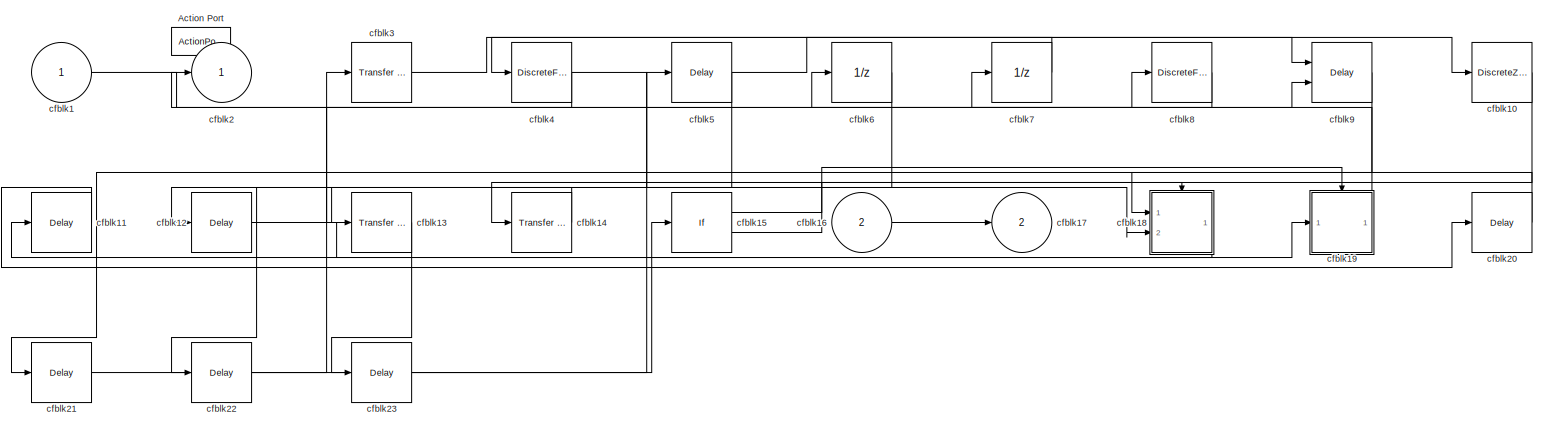
[diagram: cfblk277 - part 1/1, most of the canvas]
BLOCK [SubSystem] cfblk277
  Ports = [2, 2, 0, 0, 0, 0, 0, 1]
  RequestExecContextInheritance = off
  TreatAsAtomicUnit = on
  Variant = off
BLOCK [ActionPort] cfblk277/Action Port
  ActionType = then
BLOCK [Inport] cfblk277/cfblk1
  IconDisplay = Port number
BLOCK [DiscreteZeroPole] cfblk277/cfblk10
  Gain = 1
  Poles = [0 0.5]
  SampleTime = -1
BLOCK [Delay] cfblk277/cfblk11
  InputPortMap = u0
  Ports = [1, 1]
BLOCK [Delay] cfblk277/cfblk12
  InputPortMap = u0
  Ports = [1, 1]
BLOCK [Reference] cfblk277/cfblk13  REF=simulink/Discrete/Transfer Fcn
Lead or Lag
  Ports = [1, 1]
  SourceBlock = simulink/Discrete/Transfer Fcn\nLead or Lag
  SourceProductBaseCode = SL
  SourceProductName = Simulink
  SourceType = Lead or Lag Compensator
BLOCK [Reference] cfblk277/cfblk14  REF=simulink/Discrete/Transfer Fcn
Real Zero
  Ports = [1, 1]
  SourceBlock = simulink/Discrete/Transfer Fcn\nReal Zero
  SourceProductBaseCode = SL
  SourceProductName = Simulink
  SourceType = Transfer Fcn Real Zero
BLOCK [If] cfblk277/cfblk15
  Ports = [1, 2]
  SampleTime = 1
BLOCK [Inport] cfblk277/cfblk16
  IconDisplay = Port number
  Port = 2
BLOCK [Outport] cfblk277/cfblk17
  IconDisplay = Port number
  Port = 2
BLOCK [SubSystem] cfblk277/cfblk18
  Ports = [2, 1, 0, 0, 0, 0, 0, 1]
  RequestExecContextInheritance = off
  TreatAsAtomicUnit = on
  Variant = off
BLOCK [ActionPort] cfblk277/cfblk18/Action Port
  ActionType = then
BLOCK [Inport] cfblk277/cfblk18/cfblk1
  IconDisplay = Port number
BLOCK [Outport] cfblk277/cfblk18/cfblk2
  IconDisplay = Port number
BLOCK [Reference] cfblk277/cfblk18/cfblk3  REF=simulink/Discrete/Transfer Fcn
Real Zero
  Ports = [1, 1]
  SourceBlock = simulink/Discrete/Transfer Fcn\nReal Zero
  SourceProductBaseCode = SL
  SourceProductName = Simulink
  SourceType = Transfer Fcn Real Zero
BLOCK [DiscreteFir] cfblk277/cfblk18/cfblk4
  InputPortMap = u0
  OutputPortMap = o0
  Ports = [1, 1]
BLOCK [DiscreteIntegrator] cfblk277/cfblk18/cfblk5
  ICPrevOutput = DiscIntNeverNeededParam
  ICPrevScaledInput = DiscIntNeverNeededParam
  InitialConditionSetting = State (most efficient)
  Ports = [1, 1]
  SampleTime = -1
BLOCK [DiscreteZeroPole] cfblk277/cfblk18/cfblk6
  Gain = 1
  Poles = [0 0.5]
  SampleTime = -1
BLOCK [Reference] cfblk277/cfblk18/cfblk7  REF=simulink/Continuous/PID Controller (2DOF)
  Ports = [2, 1]
  SourceBlock = simulink/Continuous/PID Controller (2DOF)
  SourceProductBaseCode = SL
  SourceProductName = Simulink
  SourceType = PID 2dof
BLOCK [Inport] cfblk277/cfblk18/cfblk8
  IconDisplay = Port number
  Port = 2
BLOCK [Delay] cfblk277/cfblk18/cfblk9
  InputPortMap = u0
  Ports = [1, 1]
BLOCK [SubSystem] cfblk277/cfblk19
  Ports = [1, 1, 0, 0, 0, 0, 0, 1]
  RequestExecContextInheritance = off
  TreatAsAtomicUnit = on
  Variant = off
BLOCK [ActionPort] cfblk277/cfblk19/Action Port
  ActionType = else
BLOCK [Inport] cfblk277/cfblk19/cfblk1
  IconDisplay = Port number
BLOCK [Delay] cfblk277/cfblk19/cfblk10
  InputPortMap = u0
  Ports = [1, 1]
BLOCK [Delay] cfblk277/cfblk19/cfblk11
  InputPortMap = u0
  Ports = [1, 1]
BLOCK [Delay] cfblk277/cfblk19/cfblk12
  InputPortMap = u0
  Ports = [1, 1]
BLOCK [Outport] cfblk277/cfblk19/cfblk2
  IconDisplay = Port number
BLOCK [Reference] cfblk277/cfblk19/cfblk3  REF=simulink/Continuous/PID Controller (2DOF)
  Ports = [2, 1]
  SourceBlock = simulink/Continuous/PID Controller (2DOF)
  SourceProductBaseCode = SL
  SourceProductName = Simulink
  SourceType = PID 2dof
BLOCK [Delay] cfblk277/cfblk19/cfblk4
  InputPortMap = u0,e6
  Ports = [2, 1]
  ShowEnablePort = on
BLOCK [DiscreteIntegrator] cfblk277/cfblk19/cfblk5
  ICPrevOutput = DiscIntNeverNeededParam
  ICPrevScaledInput = DiscIntNeverNeededParam
  InitialConditionSetting = State (most efficient)
  Ports = [1, 1]
  SampleTime = -1
BLOCK [DiscreteFilter] cfblk277/cfblk19/cfblk6
  InputPortMap = u0
  Ports = [1, 1]
BLOCK [Delay] cfblk277/cfblk19/cfblk7
  InputPortMap = u0,e6
  Ports = [2, 1]
  ShowEnablePort = on
BLOCK [Reference] cfblk277/cfblk19/cfblk8  REF=simulink/Continuous/PID Controller
  Ports = [1, 1]
  SourceBlock = simulink/Continuous/PID Controller
  SourceProductBaseCode = SL
  SourceProductName = Simulink
  SourceType = PID 1dof
BLOCK [Delay] cfblk277/cfblk19/cfblk9
  InputPortMap = u0
  Ports = [1, 1]
BLOCK [Outport] cfblk277/cfblk2
  IconDisplay = Port number
BLOCK [Delay] cfblk277/cfblk20
  InputPortMap = u0
  Ports = [1, 1]
BLOCK [Delay] cfblk277/cfblk21
  InputPortMap = u0
  Ports = [1, 1]
BLOCK [Delay] cfblk277/cfblk22
  InputPortMap = u0
  Ports = [1, 1]
BLOCK [Delay] cfblk277/cfblk23
  InputPortMap = u0
  Ports = [1, 1]
BLOCK [Reference] cfblk277/cfblk3  REF=simulink/Discrete/Transfer Fcn
Real Zero
  Ports = [1, 1]
  SourceBlock = simulink/Discrete/Transfer Fcn\nReal Zero
  SourceProductBaseCode = SL
  SourceProductName = Simulink
  SourceType = Transfer Fcn Real Zero
BLOCK [DiscreteFilter] cfblk277/cfblk4
  InputPortMap = u0
  Ports = [1, 1]
BLOCK [Delay] cfblk277/cfblk5
  InputPortMap = u0
  Ports = [1, 1]
BLOCK [UnitDelay] cfblk277/cfblk6
  InputProcessing = Elements as channels (sample based)
  SampleTime = -1
BLOCK [UnitDelay] cfblk277/cfblk7
  InputProcessing = Elements as channels (sample based)
  SampleTime = -1
BLOCK [DiscreteFilter] cfblk277/cfblk8
  InputPortMap = u0
  Ports = [1, 1]
BLOCK [Delay] cfblk277/cfblk9
  InputPortMap = u0,e6
  Ports = [2, 1]
  ShowEnablePort = on
BLOCK [SubSystem] cfblk278
  Ports = [2, 2, 0, 0, 0, 0, 0, 1]
  RequestExecContextInheritance = off
  TreatAsAtomicUnit = on
  Variant = off
BLOCK [ActionPort] cfblk278/Action Port
  ActionType = else
BLOCK [Inport] cfblk278/cfblk1
  IconDisplay = Port number
BLOCK [Inport] cfblk278/cfblk10
  IconDisplay = Port number
  Port = 2
BLOCK [Outport] cfblk278/cfblk11
  IconDisplay = Port number
  Port = 2
BLOCK [SubSystem] cfblk278/cfblk12
  Ports = [1, 1, 0, 0, 0, 0, 0, 1]
  RequestExecContextInheritance = off
  TreatAsAtomicUnit = on
  Variant = off
BLOCK [ActionPort] cfblk278/cfblk12/Action Port
  ActionType = then
BLOCK [Inport] cfblk278/cfblk12/cfblk1
  IconDisplay = Port number
BLOCK [DiscreteFir] cfblk278/cfblk12/cfblk10
  InputPortMap = u0
  OutputPortMap = o0
  Ports = [1, 1]
BLOCK [Reference] cfblk278/cfblk12/cfblk11  REF=simulink/Discrete/Transfer Fcn
Lead or Lag
  Ports = [1, 1]
  SourceBlock = simulink/Discrete/Transfer Fcn\nLead or Lag
  SourceProductBaseCode = SL
  SourceProductName = Simulink
  SourceType = Lead or Lag Compensator
BLOCK [DiscreteTransferFcn] cfblk278/cfblk12/cfblk12
  InputPortMap = u0
  Ports = [1, 1]
BLOCK [Delay] cfblk278/cfblk12/cfblk13
  InputPortMap = u0
  Ports = [1, 1]
BLOCK [Delay] cfblk278/cfblk12/cfblk14
  InputPortMap = u0
  Ports = [1, 1]
BLOCK [Delay] cfblk278/cfblk12/cfblk15
  InputPortMap = u0
  Ports = [1, 1]
BLOCK [Outport] cfblk278/cfblk12/cfblk2
  IconDisplay = Port number
BLOCK [Reference] cfblk278/cfblk12/cfblk3  REF=simulink/Discrete/Transfer Fcn
Lead or Lag
  Ports = [1, 1]
  SourceBlock = simulink/Discrete/Transfer Fcn\nLead or Lag
  SourceProductBaseCode = SL
  SourceProductName = Simulink
  SourceType = Lead or Lag Compensator
BLOCK [Delay] cfblk278/cfblk12/cfblk4
  InputPortMap = u0
  Ports = [1, 1]
BLOCK [Reference] cfblk278/cfblk12/cfblk5  REF=simulink/Continuous/PID Controller
  Ports = [1, 1]
  SourceBlock = simulink/Continuous/PID Controller
  SourceProductBaseCode = SL
  SourceProductName = Simulink
  SourceType = PID 1dof
BLOCK [DiscreteStateSpace] cfblk278/cfblk12/cfblk6
  SampleTime = -1
BLOCK [DiscreteIntegrator] cfblk278/cfblk12/cfblk7
  ICPrevOutput = DiscIntNeverNeededParam
  ICPrevScaledInput = DiscIntNeverNeededParam
  InitialConditionSetting = State (most efficient)
  Ports = [1, 1]
  SampleTime = -1
BLOCK [Reference] cfblk278/cfblk12/cfblk8  REF=simulink/Discrete/Tapped Delay
  Ports = [1, 1]
  SourceBlock = simulink/Discrete/Tapped Delay
  SourceProductBaseCode = SL
  SourceProductName = Simulink
  SourceType = Tapped Delay Line
BLOCK [DiscreteFir] cfblk278/cfblk12/cfblk9
  InputPortMap = u0
  OutputPortMap = o0
  Ports = [1, 1]
BLOCK [SubSystem] cfblk278/cfblk13
  Ports = [3, 1, 0, 0, 0, 0, 0, 1]
  RequestExecContextInheritance = off
  TreatAsAtomicUnit = on
  Variant = off
BLOCK [ActionPort] cfblk278/cfblk13/Action Port
  ActionType = else
BLOCK [Inport] cfblk278/cfblk13/cfblk1
  IconDisplay = Port number
BLOCK [Outport] cfblk278/cfblk13/cfblk2
  IconDisplay = Port number
BLOCK [DiscreteFir] cfblk278/cfblk13/cfblk3
  InputPortMap = u0
  OutputPortMap = o0
  Ports = [1, 1]
BLOCK [Delay] cfblk278/cfblk13/cfblk4
  InputPortMap = u0
  Ports = [1, 1]
BLOCK [Reference] cfblk278/cfblk13/cfblk5  REF=simulink/Discrete/Transfer Fcn
Real Zero
  Ports = [1, 1]
  SourceBlock = simulink/Discrete/Transfer Fcn\nReal Zero
  SourceProductBaseCode = SL
  SourceProductName = Simulink
  SourceType = Transfer Fcn Real Zero
BLOCK [DiscreteTransferFcn] cfblk278/cfblk13/cfblk6
  InputPortMap = u0
  Ports = [1, 1]
BLOCK [DiscreteIntegrator] cfblk278/cfblk13/cfblk7
  ICPrevOutput = DiscIntNeverNeededParam
  ICPrevScaledInput = DiscIntNeverNeededParam
  InitialConditionSetting = State (most efficient)
  Ports = [1, 1]
  SampleTime = -1
BLOCK [Inport] cfblk278/cfblk13/cfblk8
  IconDisplay = Port number
  Port = 2
BLOCK [Inport] cfblk278/cfblk13/cfblk9
  IconDisplay = Port number
  Port = 3
BLOCK [SubSystem] cfblk278/cfblk14
  Ports = [8, 2, 0, 0, 0, 0, 0, 1]
  RequestExecContextInheritance = off
  TreatAsAtomicUnit = on
  Variant = off
BLOCK [ActionPort] cfblk278/cfblk14/Action Port
  ActionType = then
BLOCK [Inport] cfblk278/cfblk14/cfblk1
  IconDisplay = Port number
BLOCK [Inport] cfblk278/cfblk14/cfblk10
  IconDisplay = Port number
  Port = 3
BLOCK [Inport] cfblk278/cfblk14/cfblk11
  IconDisplay = Port number
  Port = 4
BLOCK [Inport] cfblk278/cfblk14/cfblk12
  IconDisplay = Port number
  Port = 5
BLOCK [Inport] cfblk278/cfblk14/cfblk13
  IconDisplay = Port number
  Port = 6
BLOCK [Inport] cfblk278/cfblk14/cfblk14
  IconDisplay = Port number
  Port = 7
BLOCK [Inport] cfblk278/cfblk14/cfblk15
  IconDisplay = Port number
  Port = 8
BLOCK [Outport] cfblk278/cfblk14/cfblk16
  IconDisplay = Port number
  Port = 2
BLOCK [Delay] cfblk278/cfblk14/cfblk17
  InputPortMap = u0
  Ports = [1, 1]
BLOCK [Outport] cfblk278/cfblk14/cfblk2
  IconDisplay = Port number
BLOCK [DiscreteFilter] cfblk278/cfblk14/cfblk3
  InputPortMap = u0
  Ports = [1, 1]
BLOCK [Delay] cfblk278/cfblk14/cfblk4
  DelayLengthSource = Input port
  InputPortMap = u0,p1
  Ports = [2, 1]
BLOCK [DiscreteTransferFcn] cfblk278/cfblk14/cfblk5
  InputPortMap = u0
  Ports = [1, 1]
BLOCK [Delay] cfblk278/cfblk14/cfblk6
  DelayLengthSource = Input port
  InputPortMap = u0,p1
  Ports = [2, 1]
BLOCK [DiscreteStateSpace] cfblk278/cfblk14/cfblk7
  SampleTime = -1
BLOCK [UnitDelay] cfblk278/cfblk14/cfblk8
  InputProcessing = Elements as channels (sample based)
  SampleTime = -1
BLOCK [Inport] cfblk278/cfblk14/cfblk9
  IconDisplay = Port number
  Port = 2
BLOCK [SubSystem] cfblk278/cfblk15
  Ports = [4, 2, 0, 0, 0, 0, 0, 1]
  RequestExecContextInheritance = off
  TreatAsAtomicUnit = on
  Variant = off
BLOCK [ActionPort] cfblk278/cfblk15/Action Port
  ActionType = else
BLOCK [Inport] cfblk278/cfblk15/cfblk1
  IconDisplay = Port number
BLOCK [Reference] cfblk278/cfblk15/cfblk10  REF=simulink/Discrete/Tapped Delay
  Ports = [1, 1]
  SourceBlock = simulink/Discrete/Tapped Delay
  SourceProductBaseCode = SL
  SourceProductName = Simulink
  SourceType = Tapped Delay Line
BLOCK [UnitDelay] cfblk278/cfblk15/cfblk11
  InputProcessing = Elements as channels (sample based)
  SampleTime = -1
BLOCK [DiscreteZeroPole] cfblk278/cfblk15/cfblk12
  Gain = 1
  Poles = [0 0.5]
  SampleTime = -1
BLOCK [Inport] cfblk278/cfblk15/cfblk13
  IconDisplay = Port number
  Port = 2
BLOCK [Inport] cfblk278/cfblk15/cfblk14
  IconDisplay = Port number
  Port = 3
BLOCK [Inport] cfblk278/cfblk15/cfblk15
  IconDisplay = Port number
  Port = 4
BLOCK [Outport] cfblk278/cfblk15/cfblk16
  IconDisplay = Port number
  Port = 2
BLOCK [Delay] cfblk278/cfblk15/cfblk17
  InputPortMap = u0
  Ports = [1, 1]
BLOCK [Outport] cfblk278/cfblk15/cfblk2
  IconDisplay = Port number
BLOCK [Reference] cfblk278/cfblk15/cfblk3  REF=simulink/Continuous/PID Controller (2DOF)
  Ports = [2, 1]
  SourceBlock = simulink/Continuous/PID Controller (2DOF)
  SourceProductBaseCode = SL
  SourceProductName = Simulink
  SourceType = PID 2dof
BLOCK [Reference] cfblk278/cfblk15/cfblk4  REF=simulink/Continuous/PID Controller
  Ports = [1, 1]
  SourceBlock = simulink/Continuous/PID Controller
  SourceProductBaseCode = SL
  SourceProductName = Simulink
  SourceType = PID 1dof
BLOCK [Reference] cfblk278/cfblk15/cfblk5  REF=simulink/Discrete/Transfer Fcn
First Order
  Ports = [1, 1]
  SourceBlock = simulink/Discrete/Transfer Fcn\nFirst Order
  SourceProductBaseCode = SL
  SourceProductName = Simulink
  SourceType = First Order Transfer Fcn
BLOCK [DiscreteZeroPole] cfblk278/cfblk15/cfblk6
  Gain = 1
  Poles = [0 0.5]
  SampleTime = -1
BLOCK [DiscreteIntegrator] cfblk278/cfblk15/cfblk7
  ICPrevOutput = DiscIntNeverNeededParam
  ICPrevScaledInput = DiscIntNeverNeededParam
  InitialConditionSetting = State (most efficient)
  Ports = [1, 1]
  SampleTime = -1
BLOCK [DiscreteZeroPole] cfblk278/cfblk15/cfblk8
  Gain = 1
  Poles = [0 0.5]
  SampleTime = -1
BLOCK [DiscreteIntegrator] cfblk278/cfblk15/cfblk9
  ICPrevOutput = DiscIntNeverNeededParam
  ICPrevScaledInput = DiscIntNeverNeededParam
  InitialConditionSetting = State (most efficient)
  Ports = [1, 1]
  SampleTime = -1
BLOCK [Delay] cfblk278/cfblk16
  InputPortMap = u0
  Ports = [1, 1]
BLOCK [Delay] cfblk278/cfblk17
  InputPortMap = u0
  Ports = [1, 1]
BLOCK [Delay] cfblk278/cfblk18
  InputPortMap = u0
  Ports = [1, 1]
BLOCK [Delay] cfblk278/cfblk19
  InputPortMap = u0
  Ports = [1, 1]
BLOCK [Outport] cfblk278/cfblk2
  IconDisplay = Port number
BLOCK [Delay] cfblk278/cfblk20
  InputPortMap = u0
  Ports = [1, 1]
BLOCK [Delay] cfblk278/cfblk21
  InputPortMap = u0
  Ports = [1, 1]
BLOCK [Delay] cfblk278/cfblk22
  InputPortMap = u0
  Ports = [1, 1]
BLOCK [Delay] cfblk278/cfblk23
  InputPortMap = u0
  Ports = [1, 1]
BLOCK [UnitDelay] cfblk278/cfblk3
  InputProcessing = Elements as channels (sample based)
  SampleTime = -1
BLOCK [Reference] cfblk278/cfblk4  REF=simulink/Discrete/Transfer Fcn
Lead or Lag
  Ports = [1, 1]
  SourceBlock = simulink/Discrete/Transfer Fcn\nLead or Lag
  SourceProductBaseCode = SL
  SourceProductName = Simulink
  SourceType = Lead or Lag Compensator
BLOCK [Delay] cfblk278/cfblk5
  DelayLengthSource = Input port
  InputPortMap = u0,p1
  Ports = [2, 1]
BLOCK [Reference] cfblk278/cfblk6  REF=simulink/Discrete/Difference
  Ports = [1, 1]
  SourceBlock = simulink/Discrete/Difference
  SourceProductBaseCode = SL
  SourceProductName = Simulink
  SourceType = Difference
BLOCK [DiscreteZeroPole] cfblk278/cfblk7
  Gain = 1
  Poles = [0 0.5]
  SampleTime = -1
BLOCK [If] cfblk278/cfblk8
  Ports = [1, 2]
  SampleTime = 1
BLOCK [If] cfblk278/cfblk9
  Ports = [1, 2]
  SampleTime = 1
BLOCK [SubSystem] cfblk279
  Ports = [2, 2, 0, 0, 0, 0, 0, 1]
  RequestExecContextInheritance = off
  TreatAsAtomicUnit = on
  Variant = off
BLOCK [ActionPort] cfblk279/Action Port
  ActionType = then
BLOCK [Inport] cfblk279/cfblk1
  IconDisplay = Port number
BLOCK [Delay] cfblk279/cfblk10
  InputPortMap = u0
  Ports = [1, 1]
BLOCK [Delay] cfblk279/cfblk11
  InputPortMap = u0
  Ports = [1, 1]
BLOCK [Outport] cfblk279/cfblk2
  IconDisplay = Port number
BLOCK [Reference] cfblk279/cfblk3  REF=simulink/Discrete/Transfer Fcn
First Order
  Ports = [1, 1]
  SourceBlock = simulink/Discrete/Transfer Fcn\nFirst Order
  SourceProductBaseCode = SL
  SourceProductName = Simulink
  SourceType = First Order Transfer Fcn
BLOCK [Reference] cfblk279/cfblk4  REF=simulink/Discrete/Tapped Delay
  Ports = [1, 1]
  SourceBlock = simulink/Discrete/Tapped Delay
  SourceProductBaseCode = SL
  SourceProductName = Simulink
  SourceType = Tapped Delay Line
BLOCK [DiscreteTransferFcn] cfblk279/cfblk5
  InputPortMap = u0
  Ports = [1, 1]
BLOCK [DiscreteStateSpace] cfblk279/cfblk6
  SampleTime = -1
BLOCK [Delay] cfblk279/cfblk7
  InputPortMap = u0,e6
  Ports = [2, 1]
  ShowEnablePort = on
BLOCK [Inport] cfblk279/cfblk8
  IconDisplay = Port number
  Port = 2
BLOCK [Outport] cfblk279/cfblk9
  IconDisplay = Port number
  Port = 2
BLOCK [DiscreteFir] cfblk28
  InputPortMap = u0
  OutputPortMap = o0
  Ports = [1, 1]
  SampleTime = 1
BLOCK [SubSystem] cfblk280
  Ports = [2, 3, 0, 0, 0, 0, 0, 1]
  RequestExecContextInheritance = off
  TreatAsAtomicUnit = on
  Variant = off
BLOCK [ActionPort] cfblk280/Action Port
  ActionType = else
BLOCK [Inport] cfblk280/cfblk1
  IconDisplay = Port number
BLOCK [Inport] cfblk280/cfblk10
  IconDisplay = Port number
  Port = 2
BLOCK [Outport] cfblk280/cfblk11
  IconDisplay = Port number
  Port = 2
BLOCK [Outport] cfblk280/cfblk12
  IconDisplay = Port number
  Port = 3
BLOCK [SubSystem] cfblk280/cfblk13
  Ports = [1, 2, 0, 0, 0, 0, 0, 1]
  RequestExecContextInheritance = off
  TreatAsAtomicUnit = on
  Variant = off
BLOCK [ActionPort] cfblk280/cfblk13/Action Port
  ActionType = then
BLOCK [Inport] cfblk280/cfblk13/cfblk1
  IconDisplay = Port number
BLOCK [Outport] cfblk280/cfblk13/cfblk2
  IconDisplay = Port number
BLOCK [DiscreteTransferFcn] cfblk280/cfblk13/cfblk3
  InputPortMap = u0
  Ports = [1, 1]
BLOCK [DiscreteFilter] cfblk280/cfblk13/cfblk4
  InputPortMap = u0
  Ports = [1, 1]
BLOCK [Reference] cfblk280/cfblk13/cfblk5  REF=simulink/Discrete/Transfer Fcn
First Order
  Ports = [1, 1]
  SourceBlock = simulink/Discrete/Transfer Fcn\nFirst Order
  SourceProductBaseCode = SL
  SourceProductName = Simulink
  SourceType = First Order Transfer Fcn
BLOCK [Delay] cfblk280/cfblk13/cfblk6
  DelayLengthSource = Input port
  InputPortMap = u0,p1
  Ports = [2, 1]
BLOCK [Delay] cfblk280/cfblk13/cfblk7
  InputPortMap = u0,e6
  Ports = [2, 1]
  ShowEnablePort = on
BLOCK [Outport] cfblk280/cfblk13/cfblk8
  IconDisplay = Port number
  Port = 2
BLOCK [Delay] cfblk280/cfblk13/cfblk9
  InputPortMap = u0
  Ports = [1, 1]
BLOCK [SubSystem] cfblk280/cfblk14
  Ports = [3, 2, 0, 0, 0, 0, 0, 1]
  RequestExecContextInheritance = off
  TreatAsAtomicUnit = on
  Variant = off
BLOCK [ActionPort] cfblk280/cfblk14/Action Port
  ActionType = else
BLOCK [Inport] cfblk280/cfblk14/cfblk1
  IconDisplay = Port number
BLOCK [Outport] cfblk280/cfblk14/cfblk10
  IconDisplay = Port number
  Port = 2
BLOCK [DataTypeConversion] cfblk280/cfblk14/cfblk11
  RndMeth = Floor
  SaturateOnIntegerOverflow = off
BLOCK [Outport] cfblk280/cfblk14/cfblk2
  IconDisplay = Port number
BLOCK [Delay] cfblk280/cfblk14/cfblk3
  InputPortMap = u0
  Ports = [1, 1]
BLOCK [Reference] cfblk280/cfblk14/cfblk4  REF=simulink/Continuous/PID Controller
  Ports = [1, 1]
  SourceBlock = simulink/Continuous/PID Controller
  SourceProductBaseCode = SL
  SourceProductName = Simulink
  SourceType = PID 1dof
BLOCK [DiscreteZeroPole] cfblk280/cfblk14/cfblk5
  Gain = 1
  Poles = [0 0.5]
  SampleTime = -1
BLOCK [Delay] cfblk280/cfblk14/cfblk6
  InputPortMap = u0
  Ports = [1, 1]
BLOCK [DiscreteZeroPole] cfblk280/cfblk14/cfblk7
  Gain = 1
  Poles = [0 0.5]
  SampleTime = -1
BLOCK [Inport] cfblk280/cfblk14/cfblk8
  IconDisplay = Port number
  Port = 2
BLOCK [Inport] cfblk280/cfblk14/cfblk9
  IconDisplay = Port number
  Port = 3
BLOCK [Delay] cfblk280/cfblk15
  InputPortMap = u0
  Ports = [1, 1]
BLOCK [Delay] cfblk280/cfblk16
  InputPortMap = u0
  Ports = [1, 1]
BLOCK [Outport] cfblk280/cfblk2
  IconDisplay = Port number
BLOCK [Delay] cfblk280/cfblk3
  DelayLengthSource = Input port
  InputPortMap = u0,p1
  Ports = [2, 1]
BLOCK [Reference] cfblk280/cfblk4  REF=simulink/Discrete/Transfer Fcn
Lead or Lag
  Ports = [1, 1]
  SourceBlock = simulink/Discrete/Transfer Fcn\nLead or Lag
  SourceProductBaseCode = SL
  SourceProductName = Simulink
  SourceType = Lead or Lag Compensator
BLOCK [Reference] cfblk280/cfblk5  REF=simulink/Discrete/Transfer Fcn
First Order
  Ports = [1, 1]
  SourceBlock = simulink/Discrete/Transfer Fcn\nFirst Order
  SourceProductBaseCode = SL
  SourceProductName = Simulink
  SourceType = First Order Transfer Fcn
BLOCK [Reference] cfblk280/cfblk6  REF=simulink/Discrete/Tapped Delay
  Ports = [1, 1]
  SourceBlock = simulink/Discrete/Tapped Delay
  SourceProductBaseCode = SL
  SourceProductName = Simulink
  SourceType = Tapped Delay Line
BLOCK [Reference] cfblk280/cfblk7  REF=simulink/Discrete/Transfer Fcn
Lead or Lag
  Ports = [1, 1]
  SourceBlock = simulink/Discrete/Transfer Fcn\nLead or Lag
  SourceProductBaseCode = SL
  SourceProductName = Simulink
  SourceType = Lead or Lag Compensator
BLOCK [Delay] cfblk280/cfblk8
  InputPortMap = u0,e6
  Ports = [2, 1]
  ShowEnablePort = on
BLOCK [If] cfblk280/cfblk9
  Ports = [1, 2]
  SampleTime = 1
BLOCK [SubSystem] cfblk281
  Ports = [3, 1, 0, 0, 0, 0, 0, 1]
  RequestExecContextInheritance = off
  TreatAsAtomicUnit = on
  Variant = off
BLOCK [ActionPort] cfblk281/Action Port
  ActionType = then
BLOCK [Inport] cfblk281/cfblk1
  IconDisplay = Port number
BLOCK [Delay] cfblk281/cfblk10
  InputPortMap = u0
  Ports = [1, 1]
BLOCK [Reference] cfblk281/cfblk11  REF=simulink/Discrete/Transfer Fcn
First Order
  Ports = [1, 1]
  SourceBlock = simulink/Discrete/Transfer Fcn\nFirst Order
  SourceProductBaseCode = SL
  SourceProductName = Simulink
  SourceType = First Order Transfer Fcn
BLOCK [Inport] cfblk281/cfblk12
  IconDisplay = Port number
  Port = 2
BLOCK [Inport] cfblk281/cfblk13
  IconDisplay = Port number
  Port = 3
BLOCK [Outport] cfblk281/cfblk2
  IconDisplay = Port number
BLOCK [Reference] cfblk281/cfblk3  REF=simulink/Discrete/Transfer Fcn
Real Zero
  Ports = [1, 1]
  SourceBlock = simulink/Discrete/Transfer Fcn\nReal Zero
  SourceProductBaseCode = SL
  SourceProductName = Simulink
  SourceType = Transfer Fcn Real Zero
BLOCK [Reference] cfblk281/cfblk4  REF=simulink/Continuous/PID Controller
  Ports = [1, 1]
  SourceBlock = simulink/Continuous/PID Controller
  SourceProductBaseCode = SL
  SourceProductName = Simulink
  SourceType = PID 1dof
BLOCK [Delay] cfblk281/cfblk5
  InputPortMap = u0,e6
  Ports = [2, 1]
  ShowEnablePort = on
BLOCK [Delay] cfblk281/cfblk6
  InputPortMap = u0
  Ports = [1, 1]
BLOCK [Delay] cfblk281/cfblk7
  DelayLengthSource = Input port
  InputPortMap = u0,p1
  Ports = [2, 1]
BLOCK [DiscreteStateSpace] cfblk281/cfblk8
  SampleTime = -1
BLOCK [DiscreteFilter] cfblk281/cfblk9
  InputPortMap = u0
  Ports = [1, 1]
BLOCK [SubSystem] cfblk282
  Ports = [3, 5, 0, 0, 0, 0, 0, 1]
  RequestExecContextInheritance = off
  TreatAsAtomicUnit = on
  Variant = off
BLOCK [ActionPort] cfblk282/Action Port
  ActionType = else
BLOCK [Inport] cfblk282/cfblk1
  IconDisplay = Port number
BLOCK [Inport] cfblk282/cfblk10
  IconDisplay = Port number
  Port = 2
BLOCK [Inport] cfblk282/cfblk11
  IconDisplay = Port number
  Port = 3
BLOCK [Outport] cfblk282/cfblk12
  IconDisplay = Port number
  Port = 2
BLOCK [Outport] cfblk282/cfblk13
  IconDisplay = Port number
  Port = 3
BLOCK [Outport] cfblk282/cfblk14
  IconDisplay = Port number
  Port = 4
BLOCK [Outport] cfblk282/cfblk15
  IconDisplay = Port number
  Port = 5
BLOCK [Delay] cfblk282/cfblk16
  InputPortMap = u0
  Ports = [1, 1]
BLOCK [Delay] cfblk282/cfblk17
  InputPortMap = u0
  Ports = [1, 1]
BLOCK [Outport] cfblk282/cfblk2
  IconDisplay = Port number
BLOCK [Reference] cfblk282/cfblk3  REF=simulink/Discrete/Tapped Delay
  Ports = [1, 1]
  SourceBlock = simulink/Discrete/Tapped Delay
  SourceProductBaseCode = SL
  SourceProductName = Simulink
  SourceType = Tapped Delay Line
BLOCK [DiscreteIntegrator] cfblk282/cfblk4
  ICPrevOutput = DiscIntNeverNeededParam
  ICPrevScaledInput = DiscIntNeverNeededParam
  InitialConditionSetting = State (most efficient)
  Ports = [1, 1]
  SampleTime = -1
BLOCK [Delay] cfblk282/cfblk5
  InputPortMap = u0,e6
  Ports = [2, 1]
  ShowEnablePort = on
BLOCK [Reference] cfblk282/cfblk6  REF=simulink/Discrete/Tapped Delay
  Ports = [1, 1]
  SourceBlock = simulink/Discrete/Tapped Delay
  SourceProductBaseCode = SL
  SourceProductName = Simulink
  SourceType = Tapped Delay Line
BLOCK [Reference] cfblk282/cfblk7  REF=simulink/Discrete/Tapped Delay
  Ports = [1, 1]
  SourceBlock = simulink/Discrete/Tapped Delay
  SourceProductBaseCode = SL
  SourceProductName = Simulink
  SourceType = Tapped Delay Line
BLOCK [Delay] cfblk282/cfblk8
  DelayLengthSource = Input port
  InputPortMap = u0,p1
  Ports = [2, 1]
BLOCK [DiscreteFir] cfblk282/cfblk9
  InputPortMap = u0
  OutputPortMap = o0
  Ports = [1, 1]
BLOCK [SubSystem] cfblk283
  Ports = [2, 4, 0, 0, 0, 0, 0, 1]
  RequestExecContextInheritance = off
  TreatAsAtomicUnit = on
  Variant = off
BLOCK [ActionPort] cfblk283/Action Port
  ActionType = then
BLOCK [Inport] cfblk283/cfblk1
  IconDisplay = Port number
BLOCK [DiscreteTransferFcn] cfblk283/cfblk10
  InputPortMap = u0
  Ports = [1, 1]
BLOCK [DiscreteZeroPole] cfblk283/cfblk11
  Gain = 1
  Poles = [0 0.5]
  SampleTime = -1
BLOCK [DiscreteFir] cfblk283/cfblk12
  InputPortMap = u0
  OutputPortMap = o0
  Ports = [1, 1]
BLOCK [Delay] cfblk283/cfblk13
  DelayLengthSource = Input port
  InputPortMap = u0,p1
  Ports = [2, 1]
BLOCK [Inport] cfblk283/cfblk14
  IconDisplay = Port number
  Port = 2
BLOCK [Outport] cfblk283/cfblk15
  IconDisplay = Port number
  Port = 2
BLOCK [Outport] cfblk283/cfblk16
  IconDisplay = Port number
  Port = 3
BLOCK [Outport] cfblk283/cfblk17
  IconDisplay = Port number
  Port = 4
BLOCK [Outport] cfblk283/cfblk2
  IconDisplay = Port number
BLOCK [Reference] cfblk283/cfblk3  REF=simulink/Discrete/Difference
  Ports = [1, 1]
  SourceBlock = simulink/Discrete/Difference
  SourceProductBaseCode = SL
  SourceProductName = Simulink
  SourceType = Difference
BLOCK [Reference] cfblk283/cfblk4  REF=simulink/Discrete/Transfer Fcn
Real Zero
  Ports = [1, 1]
  SourceBlock = simulink/Discrete/Transfer Fcn\nReal Zero
  SourceProductBaseCode = SL
  SourceProductName = Simulink
  SourceType = Transfer Fcn Real Zero
BLOCK [Reference] cfblk283/cfblk5  REF=simulink/Discrete/Transfer Fcn
Lead or Lag
  Ports = [1, 1]
  SourceBlock = simulink/Discrete/Transfer Fcn\nLead or Lag
  SourceProductBaseCode = SL
  SourceProductName = Simulink
  SourceType = Lead or Lag Compensator
BLOCK [Reference] cfblk283/cfblk6  REF=simulink/Discrete/Difference
  Ports = [1, 1]
  SourceBlock = simulink/Discrete/Difference
  SourceProductBaseCode = SL
  SourceProductName = Simulink
  SourceType = Difference
BLOCK [Reference] cfblk283/cfblk7  REF=simulink/Discrete/Tapped Delay
  Ports = [1, 1]
  SourceBlock = simulink/Discrete/Tapped Delay
  SourceProductBaseCode = SL
  SourceProductName = Simulink
  SourceType = Tapped Delay Line
BLOCK [Reference] cfblk283/cfblk8  REF=simulink/Continuous/PID Controller
  Ports = [1, 1]
  SourceBlock = simulink/Continuous/PID Controller
  SourceProductBaseCode = SL
  SourceProductName = Simulink
  SourceType = PID 1dof
BLOCK [Reference] cfblk283/cfblk9  REF=simulink/Discrete/Transfer Fcn
Lead or Lag
  Ports = [1, 1]
  SourceBlock = simulink/Discrete/Transfer Fcn\nLead or Lag
  SourceProductBaseCode = SL
  SourceProductName = Simulink
  SourceType = Lead or Lag Compensator
BLOCK [SubSystem] cfblk284
  Ports = [2, 2, 0, 0, 0, 0, 0, 1]
  RequestExecContextInheritance = off
  TreatAsAtomicUnit = on
  Variant = off
BLOCK [ActionPort] cfblk284/Action Port
  ActionType = else
BLOCK [Inport] cfblk284/cfblk1
  IconDisplay = Port number
BLOCK [SubSystem] cfblk284/cfblk10
  Ports = [4, 4, 0, 0, 0, 0, 0, 1]
  RequestExecContextInheritance = off
  TreatAsAtomicUnit = on
  Variant = off
BLOCK [ActionPort] cfblk284/cfblk10/Action Port
  ActionType = then
BLOCK [Inport] cfblk284/cfblk10/cfblk1
  IconDisplay = Port number
BLOCK [Inport] cfblk284/cfblk10/cfblk10
  IconDisplay = Port number
  Port = 2
BLOCK [Inport] cfblk284/cfblk10/cfblk11
  IconDisplay = Port number
  Port = 3
BLOCK [Inport] cfblk284/cfblk10/cfblk12
  IconDisplay = Port number
  Port = 4
BLOCK [Outport] cfblk284/cfblk10/cfblk13
  IconDisplay = Port number
  Port = 2
BLOCK [Outport] cfblk284/cfblk10/cfblk14
  IconDisplay = Port number
  Port = 3
BLOCK [Outport] cfblk284/cfblk10/cfblk15
  IconDisplay = Port number
  Port = 4
BLOCK [Outport] cfblk284/cfblk10/cfblk2
  IconDisplay = Port number
BLOCK [Delay] cfblk284/cfblk10/cfblk3
  InputPortMap = u0
  Ports = [1, 1]
BLOCK [DiscreteFir] cfblk284/cfblk10/cfblk4
  InputPortMap = u0
  OutputPortMap = o0
  Ports = [1, 1]
BLOCK [DiscreteFir] cfblk284/cfblk10/cfblk5
  InputPortMap = u0
  OutputPortMap = o0
  Ports = [1, 1]
BLOCK [UnitDelay] cfblk284/cfblk10/cfblk6
  InputProcessing = Elements as channels (sample based)
  SampleTime = -1
BLOCK [UnitDelay] cfblk284/cfblk10/cfblk7
  InputProcessing = Elements as channels (sample based)
  SampleTime = -1
BLOCK [Reference] cfblk284/cfblk10/cfblk8  REF=simulink/Discrete/Transfer Fcn
Real Zero
  Ports = [1, 1]
  SourceBlock = simulink/Discrete/Transfer Fcn\nReal Zero
  SourceProductBaseCode = SL
  SourceProductName = Simulink
  SourceType = Transfer Fcn Real Zero
BLOCK [Reference] cfblk284/cfblk10/cfblk9  REF=simulink/Discrete/Tapped Delay
  Ports = [1, 1]
  SourceBlock = simulink/Discrete/Tapped Delay
  SourceProductBaseCode = SL
  SourceProductName = Simulink
  SourceType = Tapped Delay Line
BLOCK [SubSystem] cfblk284/cfblk11
  Ports = [3, 2, 0, 0, 0, 0, 0, 1]
  RequestExecContextInheritance = off
  TreatAsAtomicUnit = on
  Variant = off
BLOCK [ActionPort] cfblk284/cfblk11/Action Port
  ActionType = else
BLOCK [Inport] cfblk284/cfblk11/cfblk1
  IconDisplay = Port number
BLOCK [Reference] cfblk284/cfblk11/cfblk10  REF=simulink/Continuous/PID Controller (2DOF)
  Ports = [2, 1]
  SourceBlock = simulink/Continuous/PID Controller (2DOF)
  SourceProductBaseCode = SL
  SourceProductName = Simulink
  SourceType = PID 2dof
BLOCK [Reference] cfblk284/cfblk11/cfblk11  REF=simulink/Discrete/Transfer Fcn
Real Zero
  Ports = [1, 1]
  SourceBlock = simulink/Discrete/Transfer Fcn\nReal Zero
  SourceProductBaseCode = SL
  SourceProductName = Simulink
  SourceType = Transfer Fcn Real Zero
BLOCK [Reference] cfblk284/cfblk11/cfblk12  REF=simulink/Continuous/PID Controller (2DOF)
  Ports = [2, 1]
  SourceBlock = simulink/Continuous/PID Controller (2DOF)
  SourceProductBaseCode = SL
  SourceProductName = Simulink
  SourceType = PID 2dof
BLOCK [Inport] cfblk284/cfblk11/cfblk13
  IconDisplay = Port number
  Port = 2
BLOCK [Inport] cfblk284/cfblk11/cfblk14
  IconDisplay = Port number
  Port = 3
BLOCK [Outport] cfblk284/cfblk11/cfblk15
  IconDisplay = Port number
  Port = 2
BLOCK [Delay] cfblk284/cfblk11/cfblk16
  InputPortMap = u0
  Ports = [1, 1]
BLOCK [Outport] cfblk284/cfblk11/cfblk2
  IconDisplay = Port number
BLOCK [Reference] cfblk284/cfblk11/cfblk3  REF=simulink/Discrete/Difference
  Ports = [1, 1]
  SourceBlock = simulink/Discrete/Difference
  SourceProductBaseCode = SL
  SourceProductName = Simulink
  SourceType = Difference
BLOCK [Reference] cfblk284/cfblk11/cfblk4  REF=simulink/Discrete/Transfer Fcn
Real Zero
  Ports = [1, 1]
  SourceBlock = simulink/Discrete/Transfer Fcn\nReal Zero
  SourceProductBaseCode = SL
  SourceProductName = Simulink
  SourceType = Transfer Fcn Real Zero
BLOCK [Delay] cfblk284/cfblk11/cfblk5
  InputPortMap = u0
  Ports = [1, 1]
BLOCK [DiscreteZeroPole] cfblk284/cfblk11/cfblk6
  Gain = 1
  Poles = [0 0.5]
  SampleTime = -1
BLOCK [Delay] cfblk284/cfblk11/cfblk7
  InputPortMap = u0
  Ports = [1, 1]
BLOCK [Reference] cfblk284/cfblk11/cfblk8  REF=simulink/Continuous/PID Controller (2DOF)
  Ports = [2, 1]
  SourceBlock = simulink/Continuous/PID Controller (2DOF)
  SourceProductBaseCode = SL
  SourceProductName = Simulink
  SourceType = PID 2dof
BLOCK [UnitDelay] cfblk284/cfblk11/cfblk9
  InputProcessing = Elements as channels (sample based)
  SampleTime = -1
BLOCK [Delay] cfblk284/cfblk12
  InputPortMap = u0
  Ports = [1, 1]
BLOCK [Delay] cfblk284/cfblk13
  InputPortMap = u0
  Ports = [1, 1]
BLOCK [Delay] cfblk284/cfblk14
  InputPortMap = u0
  Ports = [1, 1]
BLOCK [Delay] cfblk284/cfblk15
  InputPortMap = u0
  Ports = [1, 1]
BLOCK [Delay] cfblk284/cfblk16
  InputPortMap = u0
  Ports = [1, 1]
BLOCK [Outport] cfblk284/cfblk2
  IconDisplay = Port number
BLOCK [Reference] cfblk284/cfblk3  REF=simulink/Discrete/Transfer Fcn
Lead or Lag
  Ports = [1, 1]
  SourceBlock = simulink/Discrete/Transfer Fcn\nLead or Lag
  SourceProductBaseCode = SL
  SourceProductName = Simulink
  SourceType = Lead or Lag Compensator
BLOCK [Reference] cfblk284/cfblk4  REF=simulink/Continuous/PID Controller (2DOF)
  Ports = [2, 1]
  SourceBlock = simulink/Continuous/PID Controller (2DOF)
  SourceProductBaseCode = SL
  SourceProductName = Simulink
  SourceType = PID 2dof
BLOCK [Delay] cfblk284/cfblk5
  InputPortMap = u0
  Ports = [1, 1]
BLOCK [Delay] cfblk284/cfblk6
  DelayLengthSource = Input port
  InputPortMap = u0,p1
  Ports = [2, 1]
BLOCK [If] cfblk284/cfblk7
  Ports = [1, 2]
  SampleTime = 1
BLOCK [Inport] cfblk284/cfblk8
  IconDisplay = Port number
  Port = 2
BLOCK [Outport] cfblk284/cfblk9
  IconDisplay = Port number
  Port = 2
BLOCK [SubSystem] cfblk285
  Ports = [3, 1, 0, 0, 0, 0, 0, 1]
  RequestExecContextInheritance = off
  TreatAsAtomicUnit = on
  Variant = off
BLOCK [ActionPort] cfblk285/Action Port
  ActionType = then
BLOCK [Inport] cfblk285/cfblk1
  IconDisplay = Port number
BLOCK [Outport] cfblk285/cfblk2
  IconDisplay = Port number
BLOCK [DiscreteZeroPole] cfblk285/cfblk3
  Gain = 1
  Poles = [0 0.5]
  SampleTime = -1
BLOCK [Reference] cfblk285/cfblk4  REF=simulink/Discrete/Tapped Delay
  Ports = [1, 1]
  SourceBlock = simulink/Discrete/Tapped Delay
  SourceProductBaseCode = SL
  SourceProductName = Simulink
  SourceType = Tapped Delay Line
BLOCK [Reference] cfblk285/cfblk5  REF=simulink/Discrete/Transfer Fcn
Lead or Lag
  Ports = [1, 1]
  SourceBlock = simulink/Discrete/Transfer Fcn\nLead or Lag
  SourceProductBaseCode = SL
  SourceProductName = Simulink
  SourceType = Lead or Lag Compensator
BLOCK [DiscreteZeroPole] cfblk285/cfblk6
  Gain = 1
  Poles = [0 0.5]
  SampleTime = -1
BLOCK [DiscreteTransferFcn] cfblk285/cfblk7
  InputPortMap = u0
  Ports = [1, 1]
BLOCK [Inport] cfblk285/cfblk8
  IconDisplay = Port number
  Port = 2
BLOCK [Inport] cfblk285/cfblk9
  IconDisplay = Port number
  Port = 3
BLOCK [SubSystem] cfblk286
  Ports = [3, 1, 0, 0, 0, 0, 0, 1]
  RequestExecContextInheritance = off
  TreatAsAtomicUnit = on
  Variant = off
BLOCK [ActionPort] cfblk286/Action Port
  ActionType = else
BLOCK [Inport] cfblk286/cfblk1
  IconDisplay = Port number
BLOCK [Outport] cfblk286/cfblk2
  IconDisplay = Port number
BLOCK [Reference] cfblk286/cfblk3  REF=simulink/Discrete/Difference
  Ports = [1, 1]
  SourceBlock = simulink/Discrete/Difference
  SourceProductBaseCode = SL
  SourceProductName = Simulink
  SourceType = Difference
BLOCK [UnitDelay] cfblk286/cfblk4
  InputProcessing = Elements as channels (sample based)
  SampleTime = -1
BLOCK [UnitDelay] cfblk286/cfblk5
  InputProcessing = Elements as channels (sample based)
  SampleTime = -1
BLOCK [DiscreteStateSpace] cfblk286/cfblk6
  SampleTime = -1
BLOCK [Inport] cfblk286/cfblk7
  IconDisplay = Port number
  Port = 2
BLOCK [Inport] cfblk286/cfblk8
  IconDisplay = Port number
  Port = 3
BLOCK [SubSystem] cfblk287
  Ports = [3, 1, 0, 0, 0, 0, 0, 1]
  RequestExecContextInheritance = off
  TreatAsAtomicUnit = on
  Variant = off
BLOCK [ActionPort] cfblk287/Action Port
  ActionType = then
BLOCK [Inport] cfblk287/cfblk1
  IconDisplay = Port number
BLOCK [Delay] cfblk287/cfblk10
  InputPortMap = u0
  Ports = [1, 1]
BLOCK [Outport] cfblk287/cfblk2
  IconDisplay = Port number
BLOCK [Reference] cfblk287/cfblk3  REF=simulink/Continuous/PID Controller (2DOF)
  Ports = [2, 1]
  SourceBlock = simulink/Continuous/PID Controller (2DOF)
  SourceProductBaseCode = SL
  SourceProductName = Simulink
  SourceType = PID 2dof
BLOCK [Reference] cfblk287/cfblk4  REF=simulink/Discrete/Transfer Fcn
Lead or Lag
  Ports = [1, 1]
  SourceBlock = simulink/Discrete/Transfer Fcn\nLead or Lag
  SourceProductBaseCode = SL
  SourceProductName = Simulink
  SourceType = Lead or Lag Compensator
BLOCK [DiscreteIntegrator] cfblk287/cfblk5
  ICPrevOutput = DiscIntNeverNeededParam
  ICPrevScaledInput = DiscIntNeverNeededParam
  InitialConditionSetting = State (most efficient)
  Ports = [1, 1]
  SampleTime = -1
BLOCK [Reference] cfblk287/cfblk6  REF=simulink/Discrete/Difference
  Ports = [1, 1]
  SourceBlock = simulink/Discrete/Difference
  SourceProductBaseCode = SL
  SourceProductName = Simulink
  SourceType = Difference
BLOCK [Delay] cfblk287/cfblk7
  DelayLengthSource = Input port
  InputPortMap = u0,p1
  Ports = [2, 1]
BLOCK [Inport] cfblk287/cfblk8
  IconDisplay = Port number
  Port = 2
BLOCK [Inport] cfblk287/cfblk9
  IconDisplay = Port number
  Port = 3
BLOCK [SubSystem] cfblk288
  Ports = [2, 1, 0, 0, 0, 0, 0, 1]
  RequestExecContextInheritance = off
  TreatAsAtomicUnit = on
  Variant = off
BLOCK [ActionPort] cfblk288/Action Port
  ActionType = else
BLOCK [Inport] cfblk288/cfblk1
  IconDisplay = Port number
BLOCK [Reference] cfblk288/cfblk10  REF=simulink/Discrete/Tapped Delay
  Ports = [1, 1]
  SourceBlock = simulink/Discrete/Tapped Delay
  SourceProductBaseCode = SL
  SourceProductName = Simulink
  SourceType = Tapped Delay Line
BLOCK [Reference] cfblk288/cfblk11  REF=simulink/Discrete/Transfer Fcn
First Order
  Ports = [1, 1]
  SourceBlock = simulink/Discrete/Transfer Fcn\nFirst Order
  SourceProductBaseCode = SL
  SourceProductName = Simulink
  SourceType = First Order Transfer Fcn
BLOCK [DiscreteStateSpace] cfblk288/cfblk12
  SampleTime = -1
BLOCK [Inport] cfblk288/cfblk13
  IconDisplay = Port number
  Port = 2
BLOCK [Outport] cfblk288/cfblk2
  IconDisplay = Port number
BLOCK [Reference] cfblk288/cfblk3  REF=simulink/Continuous/PID Controller
  Ports = [1, 1]
  SourceBlock = simulink/Continuous/PID Controller
  SourceProductBaseCode = SL
  SourceProductName = Simulink
  SourceType = PID 1dof
BLOCK [UnitDelay] cfblk288/cfblk4
  InputProcessing = Elements as channels (sample based)
  SampleTime = -1
BLOCK [DiscreteFir] cfblk288/cfblk5
  InputPortMap = u0
  OutputPortMap = o0
  Ports = [1, 1]
BLOCK [Delay] cfblk288/cfblk6
  InputPortMap = u0,e6
  Ports = [2, 1]
  ShowEnablePort = on
BLOCK [Reference] cfblk288/cfblk7  REF=simulink/Discrete/Transfer Fcn
First Order
  Ports = [1, 1]
  SourceBlock = simulink/Discrete/Transfer Fcn\nFirst Order
  SourceProductBaseCode = SL
  SourceProductName = Simulink
  SourceType = First Order Transfer Fcn
BLOCK [Reference] cfblk288/cfblk8  REF=simulink/Continuous/PID Controller
  Ports = [1, 1]
  SourceBlock = simulink/Continuous/PID Controller
  SourceProductBaseCode = SL
  SourceProductName = Simulink
  SourceType = PID 1dof
BLOCK [DiscreteTransferFcn] cfblk288/cfblk9
  InputPortMap = u0
  Ports = [1, 1]
BLOCK [SubSystem] cfblk289
  Ports = [1, 2, 0, 0, 0, 0, 0, 1]
  RequestExecContextInheritance = off
  TreatAsAtomicUnit = on
  Variant = off
BLOCK [ActionPort] cfblk289/Action Port
  ActionType = then
BLOCK [Inport] cfblk289/cfblk1
  IconDisplay = Port number
BLOCK [SubSystem] cfblk289/cfblk10
  Ports = [2, 1, 0, 0, 0, 0, 0, 1]
  RequestExecContextInheritance = off
  TreatAsAtomicUnit = on
  Variant = off
BLOCK [ActionPort] cfblk289/cfblk10/Action Port
  ActionType = else
BLOCK [Inport] cfblk289/cfblk10/cfblk1
  IconDisplay = Port number
BLOCK [Reference] cfblk289/cfblk10/cfblk10  REF=simulink/Discrete/Transfer Fcn
Lead or Lag
  Ports = [1, 1]
  SourceBlock = simulink/Discrete/Transfer Fcn\nLead or Lag
  SourceProductBaseCode = SL
  SourceProductName = Simulink
  SourceType = Lead or Lag Compensator
BLOCK [Delay] cfblk289/cfblk10/cfblk11
  DelayLengthSource = Input port
  InputPortMap = u0,p1
  Ports = [2, 1]
BLOCK [Inport] cfblk289/cfblk10/cfblk12
  IconDisplay = Port number
  Port = 2
BLOCK [Outport] cfblk289/cfblk10/cfblk2
  IconDisplay = Port number
BLOCK [Reference] cfblk289/cfblk10/cfblk3  REF=simulink/Discrete/Transfer Fcn
Lead or Lag
  Ports = [1, 1]
  SourceBlock = simulink/Discrete/Transfer Fcn\nLead or Lag
  SourceProductBaseCode = SL
  SourceProductName = Simulink
  SourceType = Lead or Lag Compensator
BLOCK [DiscreteIntegrator] cfblk289/cfblk10/cfblk4
  ICPrevOutput = DiscIntNeverNeededParam
  ICPrevScaledInput = DiscIntNeverNeededParam
  InitialConditionSetting = State (most efficient)
  Ports = [1, 1]
  SampleTime = -1
BLOCK [Reference] cfblk289/cfblk10/cfblk5  REF=simulink/Discrete/Transfer Fcn
Real Zero
  Ports = [1, 1]
  SourceBlock = simulink/Discrete/Transfer Fcn\nReal Zero
  SourceProductBaseCode = SL
  SourceProductName = Simulink
  SourceType = Transfer Fcn Real Zero
BLOCK [Delay] cfblk289/cfblk10/cfblk6
  DelayLengthSource = Input port
  InputPortMap = u0,p1
  Ports = [2, 1]
BLOCK [Delay] cfblk289/cfblk10/cfblk7
  InputPortMap = u0
  Ports = [1, 1]
BLOCK [Reference] cfblk289/cfblk10/cfblk8  REF=simulink/Discrete/Difference
  Ports = [1, 1]
  SourceBlock = simulink/Discrete/Difference
  SourceProductBaseCode = SL
  SourceProductName = Simulink
  SourceType = Difference
BLOCK [DiscreteFilter] cfblk289/cfblk10/cfblk9
  InputPortMap = u0
  Ports = [1, 1]
BLOCK [Delay] cfblk289/cfblk11
  InputPortMap = u0
  Ports = [1, 1]
BLOCK [Delay] cfblk289/cfblk12
  InputPortMap = u0
  Ports = [1, 1]
BLOCK [Outport] cfblk289/cfblk2
  IconDisplay = Port number
BLOCK [Reference] cfblk289/cfblk3  REF=simulink/Discrete/Transfer Fcn
First Order
  Ports = [1, 1]
  SourceBlock = simulink/Discrete/Transfer Fcn\nFirst Order
  SourceProductBaseCode = SL
  SourceProductName = Simulink
  SourceType = First Order Transfer Fcn
BLOCK [DiscreteStateSpace] cfblk289/cfblk4
  SampleTime = -1
BLOCK [Reference] cfblk289/cfblk5  REF=simulink/Discrete/Transfer Fcn
Real Zero
  Ports = [1, 1]
  SourceBlock = simulink/Discrete/Transfer Fcn\nReal Zero
  SourceProductBaseCode = SL
  SourceProductName = Simulink
  SourceType = Transfer Fcn Real Zero
BLOCK [DiscreteZeroPole] cfblk289/cfblk6
  Gain = 1
  Poles = [0 0.5]
  SampleTime = -1
BLOCK [If] cfblk289/cfblk7
  Ports = [1, 2]
  SampleTime = 1
BLOCK [Outport] cfblk289/cfblk8
  IconDisplay = Port number
  Port = 2
BLOCK [SubSystem] cfblk289/cfblk9
  Ports = [2, 2, 0, 0, 0, 0, 0, 1]
  RequestExecContextInheritance = off
  TreatAsAtomicUnit = on
  Variant = off
BLOCK [ActionPort] cfblk289/cfblk9/Action Port
  ActionType = then
BLOCK [Inport] cfblk289/cfblk9/cfblk1
  IconDisplay = Port number
BLOCK [DiscreteFir] cfblk289/cfblk9/cfblk10
  InputPortMap = u0
  OutputPortMap = o0
  Ports = [1, 1]
BLOCK [DiscreteFir] cfblk289/cfblk9/cfblk11
  InputPortMap = u0
  OutputPortMap = o0
  Ports = [1, 1]
BLOCK [DiscreteTransferFcn] cfblk289/cfblk9/cfblk12
  InputPortMap = u0
  Ports = [1, 1]
BLOCK [DiscreteStateSpace] cfblk289/cfblk9/cfblk13
  SampleTime = -1
BLOCK [DiscreteFir] cfblk289/cfblk9/cfblk14
  InputPortMap = u0
  OutputPortMap = o0
  Ports = [1, 1]
BLOCK [Reference] cfblk289/cfblk9/cfblk15  REF=simulink/Continuous/PID Controller (2DOF)
  Ports = [2, 1]
  SourceBlock = simulink/Continuous/PID Controller (2DOF)
  SourceProductBaseCode = SL
  SourceProductName = Simulink
  SourceType = PID 2dof
BLOCK [Inport] cfblk289/cfblk9/cfblk16
  IconDisplay = Port number
  Port = 2
BLOCK [Outport] cfblk289/cfblk9/cfblk17
  IconDisplay = Port number
  Port = 2
BLOCK [Delay] cfblk289/cfblk9/cfblk18
  InputPortMap = u0
  Ports = [1, 1]
BLOCK [Outport] cfblk289/cfblk9/cfblk2
  IconDisplay = Port number
BLOCK [DiscreteZeroPole] cfblk289/cfblk9/cfblk3
  Gain = 1
  Poles = [0 0.5]
  SampleTime = -1
BLOCK [Delay] cfblk289/cfblk9/cfblk4
  InputPortMap = u0,e6
  Ports = [2, 1]
  ShowEnablePort = on
BLOCK [DiscreteIntegrator] cfblk289/cfblk9/cfblk5
  ICPrevOutput = DiscIntNeverNeededParam
  ICPrevScaledInput = DiscIntNeverNeededParam
  InitialConditionSetting = State (most efficient)
  Ports = [1, 1]
  SampleTime = -1
BLOCK [DiscreteFir] cfblk289/cfblk9/cfblk6
  InputPortMap = u0
  OutputPortMap = o0
  Ports = [1, 1]
BLOCK [Reference] cfblk289/cfblk9/cfblk7  REF=simulink/Discrete/Transfer Fcn
Real Zero
  Ports = [1, 1]
  SourceBlock = simulink/Discrete/Transfer Fcn\nReal Zero
  SourceProductBaseCode = SL
  SourceProductName = Simulink
  SourceType = Transfer Fcn Real Zero
BLOCK [Delay] cfblk289/cfblk9/cfblk8
  InputPortMap = u0
  Ports = [1, 1]
BLOCK [DiscreteFir] cfblk289/cfblk9/cfblk9
  InputPortMap = u0
  OutputPortMap = o0
  Ports = [1, 1]
BLOCK [DiscreteIntegrator] cfblk29
  ICPrevOutput = DiscIntNeverNeededParam
  ICPrevScaledInput = DiscIntNeverNeededParam
  InitialConditionSetting = State (most efficient)
  Ports = [1, 1]
BLOCK [SubSystem] cfblk290
  Ports = [4, 5, 0, 0, 0, 0, 0, 1]
  RequestExecContextInheritance = off
  TreatAsAtomicUnit = on
  Variant = off
BLOCK [ActionPort] cfblk290/Action Port
  ActionType = else
BLOCK [Inport] cfblk290/cfblk1
  IconDisplay = Port number
BLOCK [Inport] cfblk290/cfblk10
  IconDisplay = Port number
  Port = 2
BLOCK [Inport] cfblk290/cfblk11
  IconDisplay = Port number
  Port = 3
BLOCK [Inport] cfblk290/cfblk12
  IconDisplay = Port number
  Port = 4
BLOCK [Outport] cfblk290/cfblk13
  IconDisplay = Port number
  Port = 2
BLOCK [Outport] cfblk290/cfblk14
  IconDisplay = Port number
  Port = 3
BLOCK [Outport] cfblk290/cfblk15
  IconDisplay = Port number
  Port = 4
BLOCK [Outport] cfblk290/cfblk16
  IconDisplay = Port number
  Port = 5
BLOCK [Outport] cfblk290/cfblk2
  IconDisplay = Port number
BLOCK [DiscreteTransferFcn] cfblk290/cfblk3
  InputPortMap = u0
  Ports = [1, 1]
BLOCK [Reference] cfblk290/cfblk4  REF=simulink/Discrete/Transfer Fcn
Real Zero
  Ports = [1, 1]
  SourceBlock = simulink/Discrete/Transfer Fcn\nReal Zero
  SourceProductBaseCode = SL
  SourceProductName = Simulink
  SourceType = Transfer Fcn Real Zero
BLOCK [DiscreteFilter] cfblk290/cfblk5
  InputPortMap = u0
  Ports = [1, 1]
BLOCK [Reference] cfblk290/cfblk6  REF=simulink/Continuous/PID Controller (2DOF)
  Ports = [2, 1]
  SourceBlock = simulink/Continuous/PID Controller (2DOF)
  SourceProductBaseCode = SL
  SourceProductName = Simulink
  SourceType = PID 2dof
BLOCK [DiscreteFilter] cfblk290/cfblk7
  InputPortMap = u0
  Ports = [1, 1]
BLOCK [Delay] cfblk290/cfblk8
  InputPortMap = u0
  Ports = [1, 1]
BLOCK [DiscreteStateSpace] cfblk290/cfblk9
  SampleTime = -1
BLOCK [SubSystem] cfblk291
  Ports = [1, 2, 0, 0, 0, 0, 0, 1]
  RequestExecContextInheritance = off
  TreatAsAtomicUnit = on
  Variant = off
BLOCK [ActionPort] cfblk291/Action Port
  ActionType = then
BLOCK [Inport] cfblk291/cfblk1
  IconDisplay = Port number
BLOCK [Outport] cfblk291/cfblk2
  IconDisplay = Port number
BLOCK [DiscreteTransferFcn] cfblk291/cfblk3
  InputPortMap = u0
  Ports = [1, 1]
BLOCK [Delay] cfblk291/cfblk4
  InputPortMap = u0,e6
  Ports = [2, 1]
  ShowEnablePort = on
BLOCK [DiscreteZeroPole] cfblk291/cfblk5
  Gain = 1
  Poles = [0 0.5]
  SampleTime = -1
BLOCK [Delay] cfblk291/cfblk6
  InputPortMap = u0,e6
  Ports = [2, 1]
  ShowEnablePort = on
BLOCK [DiscreteFilter] cfblk291/cfblk7
  InputPortMap = u0
  Ports = [1, 1]
BLOCK [Outport] cfblk291/cfblk8
  IconDisplay = Port number
  Port = 2
BLOCK [SubSystem] cfblk292
  Ports = [2, 3, 0, 0, 0, 0, 0, 1]
  RequestExecContextInheritance = off
  TreatAsAtomicUnit = on
  Variant = off
BLOCK [ActionPort] cfblk292/Action Port
  ActionType = else
BLOCK [Inport] cfblk292/cfblk1
  IconDisplay = Port number
BLOCK [If] cfblk292/cfblk10
  Ports = [1, 2]
  SampleTime = 1
BLOCK [Inport] cfblk292/cfblk11
  IconDisplay = Port number
  Port = 2
BLOCK [Outport] cfblk292/cfblk12
  IconDisplay = Port number
  Port = 2
BLOCK [Outport] cfblk292/cfblk13
  IconDisplay = Port number
  Port = 3
BLOCK [SubSystem] cfblk292/cfblk14
  Ports = [1, 2, 0, 0, 0, 0, 0, 1]
  RequestExecContextInheritance = off
  TreatAsAtomicUnit = on
  Variant = off
BLOCK [ActionPort] cfblk292/cfblk14/Action Port
  ActionType = then
BLOCK [Inport] cfblk292/cfblk14/cfblk1
  IconDisplay = Port number
BLOCK [Outport] cfblk292/cfblk14/cfblk2
  IconDisplay = Port number
BLOCK [DiscreteFir] cfblk292/cfblk14/cfblk3
  InputPortMap = u0
  OutputPortMap = o0
  Ports = [1, 1]
BLOCK [Reference] cfblk292/cfblk14/cfblk4  REF=simulink/Discrete/Transfer Fcn
Real Zero
  Ports = [1, 1]
  SourceBlock = simulink/Discrete/Transfer Fcn\nReal Zero
  SourceProductBaseCode = SL
  SourceProductName = Simulink
  SourceType = Transfer Fcn Real Zero
BLOCK [Reference] cfblk292/cfblk14/cfblk5  REF=simulink/Discrete/Tapped Delay
  Ports = [1, 1]
  SourceBlock = simulink/Discrete/Tapped Delay
  SourceProductBaseCode = SL
  SourceProductName = Simulink
  SourceType = Tapped Delay Line
BLOCK [Reference] cfblk292/cfblk14/cfblk6  REF=simulink/Continuous/PID Controller (2DOF)
  Ports = [2, 1]
  SourceBlock = simulink/Continuous/PID Controller (2DOF)
  SourceProductBaseCode = SL
  SourceProductName = Simulink
  SourceType = PID 2dof
BLOCK [Outport] cfblk292/cfblk14/cfblk7
  IconDisplay = Port number
  Port = 2
BLOCK [Delay] cfblk292/cfblk14/cfblk8
  InputPortMap = u0
  Ports = [1, 1]
BLOCK [Delay] cfblk292/cfblk14/cfblk9
  InputPortMap = u0
  Ports = [1, 1]
BLOCK [SubSystem] cfblk292/cfblk15
  Ports = [4, 3, 0, 0, 0, 0, 0, 1]
  RequestExecContextInheritance = off
  TreatAsAtomicUnit = on
  Variant = off
BLOCK [ActionPort] cfblk292/cfblk15/Action Port
  ActionType = else
BLOCK [Inport] cfblk292/cfblk15/cfblk1
  IconDisplay = Port number
BLOCK [Inport] cfblk292/cfblk15/cfblk10
  IconDisplay = Port number
  Port = 4
BLOCK [Outport] cfblk292/cfblk15/cfblk11
  IconDisplay = Port number
  Port = 2
BLOCK [Outport] cfblk292/cfblk15/cfblk12
  IconDisplay = Port number
  Port = 3
BLOCK [Delay] cfblk292/cfblk15/cfblk13
  InputPortMap = u0
  Ports = [1, 1]
BLOCK [Outport] cfblk292/cfblk15/cfblk2
  IconDisplay = Port number
BLOCK [Reference] cfblk292/cfblk15/cfblk3  REF=simulink/Continuous/PID Controller
  Ports = [1, 1]
  SourceBlock = simulink/Continuous/PID Controller
  SourceProductBaseCode = SL
  SourceProductName = Simulink
  SourceType = PID 1dof
BLOCK [UnitDelay] cfblk292/cfblk15/cfblk4
  InputProcessing = Elements as channels (sample based)
  SampleTime = -1
BLOCK [DiscreteStateSpace] cfblk292/cfblk15/cfblk5
  SampleTime = -1
BLOCK [Reference] cfblk292/cfblk15/cfblk6  REF=simulink/Continuous/PID Controller (2DOF)
  Ports = [2, 1]
  SourceBlock = simulink/Continuous/PID Controller (2DOF)
  SourceProductBaseCode = SL
  SourceProductName = Simulink
  SourceType = PID 2dof
BLOCK [DiscreteTransferFcn] cfblk292/cfblk15/cfblk7
  InputPortMap = u0
  Ports = [1, 1]
BLOCK [Inport] cfblk292/cfblk15/cfblk8
  IconDisplay = Port number
  Port = 2
BLOCK [Inport] cfblk292/cfblk15/cfblk9
  IconDisplay = Port number
  Port = 3
BLOCK [Delay] cfblk292/cfblk16
  InputPortMap = u0
  Ports = [1, 1]
BLOCK [Delay] cfblk292/cfblk17
  InputPortMap = u0
  Ports = [1, 1]
BLOCK [Outport] cfblk292/cfblk2
  IconDisplay = Port number
BLOCK [UnitDelay] cfblk292/cfblk3
  InputProcessing = Elements as channels (sample based)
  SampleTime = -1
BLOCK [Delay] cfblk292/cfblk4
  InputPortMap = u0,e6
  Ports = [2, 1]
  ShowEnablePort = on
BLOCK [Reference] cfblk292/cfblk5  REF=simulink/Discrete/Transfer Fcn
Lead or Lag
  Ports = [1, 1]
  SourceBlock = simulink/Discrete/Transfer Fcn\nLead or Lag
  SourceProductBaseCode = SL
  SourceProductName = Simulink
  SourceType = Lead or Lag Compensator
BLOCK [Reference] cfblk292/cfblk6  REF=simulink/Discrete/Tapped Delay
  Ports = [1, 1]
  SourceBlock = simulink/Discrete/Tapped Delay
  SourceProductBaseCode = SL
  SourceProductName = Simulink
  SourceType = Tapped Delay Line
BLOCK [Reference] cfblk292/cfblk7  REF=simulink/Continuous/PID Controller
  Ports = [1, 1]
  SourceBlock = simulink/Continuous/PID Controller
  SourceProductBaseCode = SL
  SourceProductName = Simulink
  SourceType = PID 1dof
BLOCK [Reference] cfblk292/cfblk8  REF=simulink/Continuous/PID Controller
  Ports = [1, 1]
  SourceBlock = simulink/Continuous/PID Controller
  SourceProductBaseCode = SL
  SourceProductName = Simulink
  SourceType = PID 1dof
BLOCK [DiscreteTransferFcn] cfblk292/cfblk9
  InputPortMap = u0
  Ports = [1, 1]
BLOCK [SubSystem] cfblk293
  Ports = [2, 1, 0, 0, 0, 0, 0, 1]
  RequestExecContextInheritance = off
  TreatAsAtomicUnit = on
  Variant = off
BLOCK [ActionPort] cfblk293/Action Port
  ActionType = then
BLOCK [Inport] cfblk293/cfblk1
  IconDisplay = Port number
BLOCK [Delay] cfblk293/cfblk10
  InputPortMap = u0
  Ports = [1, 1]
BLOCK [Delay] cfblk293/cfblk11
  InputPortMap = u0
  Ports = [1, 1]
BLOCK [Delay] cfblk293/cfblk12
  InputPortMap = u0
  Ports = [1, 1]
BLOCK [Delay] cfblk293/cfblk13
  InputPortMap = u0
  Ports = [1, 1]
BLOCK [Outport] cfblk293/cfblk2
  IconDisplay = Port number
BLOCK [Reference] cfblk293/cfblk3  REF=simulink/Continuous/PID Controller (2DOF)
  Ports = [2, 1]
  SourceBlock = simulink/Continuous/PID Controller (2DOF)
  SourceProductBaseCode = SL
  SourceProductName = Simulink
  SourceType = PID 2dof
BLOCK [Delay] cfblk293/cfblk4
  InputPortMap = u0,e6
  Ports = [2, 1]
  ShowEnablePort = on
BLOCK [Delay] cfblk293/cfblk5
  InputPortMap = u0,e6
  Ports = [2, 1]
  ShowEnablePort = on
BLOCK [Delay] cfblk293/cfblk6
  InputPortMap = u0
  Ports = [1, 1]
BLOCK [Reference] cfblk293/cfblk7  REF=simulink/Continuous/PID Controller (2DOF)
  Ports = [2, 1]
  SourceBlock = simulink/Continuous/PID Controller (2DOF)
  SourceProductBaseCode = SL
  SourceProductName = Simulink
  SourceType = PID 2dof
BLOCK [Reference] cfblk293/cfblk8  REF=simulink/Discrete/Transfer Fcn
First Order
  Ports = [1, 1]
  SourceBlock = simulink/Discrete/Transfer Fcn\nFirst Order
  SourceProductBaseCode = SL
  SourceProductName = Simulink
  SourceType = First Order Transfer Fcn
BLOCK [Inport] cfblk293/cfblk9
  IconDisplay = Port number
  Port = 2
BLOCK [SubSystem] cfblk294
  Ports = [3, 1, 0, 0, 0, 0, 0, 1]
  RequestExecContextInheritance = off
  TreatAsAtomicUnit = on
  Variant = off
BLOCK [ActionPort] cfblk294/Action Port
  ActionType = else
BLOCK [Inport] cfblk294/cfblk1
  IconDisplay = Port number
BLOCK [Inport] cfblk294/cfblk10
  IconDisplay = Port number
  Port = 3
BLOCK [Delay] cfblk294/cfblk11
  InputPortMap = u0
  Ports = [1, 1]
BLOCK [Delay] cfblk294/cfblk12
  InputPortMap = u0
  Ports = [1, 1]
BLOCK [Outport] cfblk294/cfblk2
  IconDisplay = Port number
BLOCK [Delay] cfblk294/cfblk3
  DelayLengthSource = Input port
  InputPortMap = u0,p1
  Ports = [2, 1]
BLOCK [Delay] cfblk294/cfblk4
  DelayLengthSource = Input port
  InputPortMap = u0,p1
  Ports = [2, 1]
BLOCK [Reference] cfblk294/cfblk5  REF=simulink/Discrete/Tapped Delay
  Ports = [1, 1]
  SourceBlock = simulink/Discrete/Tapped Delay
  SourceProductBaseCode = SL
  SourceProductName = Simulink
  SourceType = Tapped Delay Line
BLOCK [Delay] cfblk294/cfblk6
  DelayLengthSource = Input port
  InputPortMap = u0,p1
  Ports = [2, 1]
BLOCK [Delay] cfblk294/cfblk7
  InputPortMap = u0
  Ports = [1, 1]
BLOCK [Reference] cfblk294/cfblk8  REF=simulink/Discrete/Transfer Fcn
First Order
  Ports = [1, 1]
  SourceBlock = simulink/Discrete/Transfer Fcn\nFirst Order
  SourceProductBaseCode = SL
  SourceProductName = Simulink
  SourceType = First Order Transfer Fcn
BLOCK [Inport] cfblk294/cfblk9
  IconDisplay = Port number
  Port = 2
BLOCK [SubSystem] cfblk295
  Ports = [4, 2, 0, 0, 0, 0, 0, 1]
  RequestExecContextInheritance = off
  TreatAsAtomicUnit = on
  Variant = off
BLOCK [ActionPort] cfblk295/Action Port
  ActionType = then
BLOCK [Inport] cfblk295/cfblk1
  IconDisplay = Port number
BLOCK [Inport] cfblk295/cfblk10
  IconDisplay = Port number
  Port = 3
BLOCK [Inport] cfblk295/cfblk11
  IconDisplay = Port number
  Port = 4
BLOCK [Outport] cfblk295/cfblk12
  IconDisplay = Port number
  Port = 2
BLOCK [SubSystem] cfblk295/cfblk13
  Ports = [4, 1, 0, 0, 0, 0, 0, 1]
  RequestExecContextInheritance = off
  TreatAsAtomicUnit = on
  Variant = off
BLOCK [ActionPort] cfblk295/cfblk13/Action Port
  ActionType = then
BLOCK [Inport] cfblk295/cfblk13/cfblk1
  IconDisplay = Port number
BLOCK [Reference] cfblk295/cfblk13/cfblk10  REF=simulink/Discrete/Transfer Fcn
Real Zero
  Ports = [1, 1]
  SourceBlock = simulink/Discrete/Transfer Fcn\nReal Zero
  SourceProductBaseCode = SL
  SourceProductName = Simulink
  SourceType = Transfer Fcn Real Zero
BLOCK [DiscreteStateSpace] cfblk295/cfblk13/cfblk11
  SampleTime = -1
BLOCK [DiscreteFir] cfblk295/cfblk13/cfblk12
  InputPortMap = u0
  OutputPortMap = o0
  Ports = [1, 1]
BLOCK [Delay] cfblk295/cfblk13/cfblk13
  DelayLengthSource = Input port
  InputPortMap = u0,p1
  Ports = [2, 1]
BLOCK [DiscreteFir] cfblk295/cfblk13/cfblk14
  InputPortMap = u0
  OutputPortMap = o0
  Ports = [1, 1]
BLOCK [Inport] cfblk295/cfblk13/cfblk15
  IconDisplay = Port number
  Port = 2
BLOCK [Inport] cfblk295/cfblk13/cfblk16
  IconDisplay = Port number
  Port = 3
BLOCK [Inport] cfblk295/cfblk13/cfblk17
  IconDisplay = Port number
  Port = 4
BLOCK [Outport] cfblk295/cfblk13/cfblk2
  IconDisplay = Port number
BLOCK [Reference] cfblk295/cfblk13/cfblk3  REF=simulink/Continuous/PID Controller
  Ports = [1, 1]
  SourceBlock = simulink/Continuous/PID Controller
  SourceProductBaseCode = SL
  SourceProductName = Simulink
  SourceType = PID 1dof
BLOCK [Reference] cfblk295/cfblk13/cfblk4  REF=simulink/Discrete/Tapped Delay
  Ports = [1, 1]
  SourceBlock = simulink/Discrete/Tapped Delay
  SourceProductBaseCode = SL
  SourceProductName = Simulink
  SourceType = Tapped Delay Line
BLOCK [Reference] cfblk295/cfblk13/cfblk5  REF=simulink/Discrete/Transfer Fcn
Real Zero
  Ports = [1, 1]
  SourceBlock = simulink/Discrete/Transfer Fcn\nReal Zero
  SourceProductBaseCode = SL
  SourceProductName = Simulink
  SourceType = Transfer Fcn Real Zero
BLOCK [Reference] cfblk295/cfblk13/cfblk6  REF=simulink/Discrete/Difference
  Ports = [1, 1]
  SourceBlock = simulink/Discrete/Difference
  SourceProductBaseCode = SL
  SourceProductName = Simulink
  SourceType = Difference
BLOCK [Reference] cfblk295/cfblk13/cfblk7  REF=simulink/Continuous/PID Controller (2DOF)
  Ports = [2, 1]
  SourceBlock = simulink/Continuous/PID Controller (2DOF)
  SourceProductBaseCode = SL
  SourceProductName = Simulink
  SourceType = PID 2dof
BLOCK [Reference] cfblk295/cfblk13/cfblk8  REF=simulink/Discrete/Transfer Fcn
Real Zero
  Ports = [1, 1]
  SourceBlock = simulink/Discrete/Transfer Fcn\nReal Zero
  SourceProductBaseCode = SL
  SourceProductName = Simulink
  SourceType = Transfer Fcn Real Zero
BLOCK [Reference] cfblk295/cfblk13/cfblk9  REF=simulink/Discrete/Tapped Delay
  Ports = [1, 1]
  SourceBlock = simulink/Discrete/Tapped Delay
  SourceProductBaseCode = SL
  SourceProductName = Simulink
  SourceType = Tapped Delay Line
BLOCK [SubSystem] cfblk295/cfblk14
  Ports = [3, 1, 0, 0, 0, 0, 0, 1]
  RequestExecContextInheritance = off
  TreatAsAtomicUnit = on
  Variant = off
BLOCK [ActionPort] cfblk295/cfblk14/Action Port
  ActionType = else
BLOCK [Inport] cfblk295/cfblk14/cfblk1
  IconDisplay = Port number
BLOCK [UnitDelay] cfblk295/cfblk14/cfblk10
  InputProcessing = Elements as channels (sample based)
  SampleTime = -1
BLOCK [Reference] cfblk295/cfblk14/cfblk11  REF=simulink/Continuous/PID Controller
  Ports = [1, 1]
  SourceBlock = simulink/Continuous/PID Controller
  SourceProductBaseCode = SL
  SourceProductName = Simulink
  SourceType = PID 1dof
BLOCK [Reference] cfblk295/cfblk14/cfblk12  REF=simulink/Discrete/Tapped Delay
  Ports = [1, 1]
  SourceBlock = simulink/Discrete/Tapped Delay
  SourceProductBaseCode = SL
  SourceProductName = Simulink
  SourceType = Tapped Delay Line
BLOCK [DiscreteZeroPole] cfblk295/cfblk14/cfblk13
  Gain = 1
  Poles = [0 0.5]
  SampleTime = -1
BLOCK [Inport] cfblk295/cfblk14/cfblk14
  IconDisplay = Port number
  Port = 2
BLOCK [Inport] cfblk295/cfblk14/cfblk15
  IconDisplay = Port number
  Port = 3
BLOCK [Delay] cfblk295/cfblk14/cfblk16
  InputPortMap = u0
  Ports = [1, 1]
BLOCK [Outport] cfblk295/cfblk14/cfblk2
  IconDisplay = Port number
BLOCK [DiscreteStateSpace] cfblk295/cfblk14/cfblk3
  SampleTime = -1
BLOCK [Reference] cfblk295/cfblk14/cfblk4  REF=simulink/Discrete/Difference
  Ports = [1, 1]
  SourceBlock = simulink/Discrete/Difference
  SourceProductBaseCode = SL
  SourceProductName = Simulink
  SourceType = Difference
BLOCK [Reference] cfblk295/cfblk14/cfblk5  REF=simulink/Continuous/PID Controller (2DOF)
  Ports = [2, 1]
  SourceBlock = simulink/Continuous/PID Controller (2DOF)
  SourceProductBaseCode = SL
  SourceProductName = Simulink
  SourceType = PID 2dof
BLOCK [DiscreteZeroPole] cfblk295/cfblk14/cfblk6
  Gain = 1
  Poles = [0 0.5]
  SampleTime = -1
BLOCK [Reference] cfblk295/cfblk14/cfblk7  REF=simulink/Discrete/Tapped Delay
  Ports = [1, 1]
  SourceBlock = simulink/Discrete/Tapped Delay
  SourceProductBaseCode = SL
  SourceProductName = Simulink
  SourceType = Tapped Delay Line
BLOCK [Reference] cfblk295/cfblk14/cfblk8  REF=simulink/Discrete/Transfer Fcn
Real Zero
  Ports = [1, 1]
  SourceBlock = simulink/Discrete/Transfer Fcn\nReal Zero
  SourceProductBaseCode = SL
  SourceProductName = Simulink
  SourceType = Transfer Fcn Real Zero
BLOCK [Reference] cfblk295/cfblk14/cfblk9  REF=simulink/Continuous/PID Controller (2DOF)
  Ports = [2, 1]
  SourceBlock = simulink/Continuous/PID Controller (2DOF)
  SourceProductBaseCode = SL
  SourceProductName = Simulink
  SourceType = PID 2dof
BLOCK [Delay] cfblk295/cfblk15
  InputPortMap = u0
  Ports = [1, 1]
BLOCK [Delay] cfblk295/cfblk16
  InputPortMap = u0
  Ports = [1, 1]
BLOCK [Delay] cfblk295/cfblk17
  InputPortMap = u0
  Ports = [1, 1]
BLOCK [Delay] cfblk295/cfblk18
  InputPortMap = u0
  Ports = [1, 1]
BLOCK [Outport] cfblk295/cfblk2
  IconDisplay = Port number
BLOCK [Reference] cfblk295/cfblk3  REF=simulink/Discrete/Difference
  Ports = [1, 1]
  SourceBlock = simulink/Discrete/Difference
  SourceProductBaseCode = SL
  SourceProductName = Simulink
  SourceType = Difference
BLOCK [DiscreteFilter] cfblk295/cfblk4
  InputPortMap = u0
  Ports = [1, 1]
BLOCK [Delay] cfblk295/cfblk5
  DelayLengthSource = Input port
  InputPortMap = u0,p1
  Ports = [2, 1]
BLOCK [Reference] cfblk295/cfblk6  REF=simulink/Discrete/Transfer Fcn
First Order
  Ports = [1, 1]
  SourceBlock = simulink/Discrete/Transfer Fcn\nFirst Order
  SourceProductBaseCode = SL
  SourceProductName = Simulink
  SourceType = First Order Transfer Fcn
BLOCK [Reference] cfblk295/cfblk7  REF=simulink/Discrete/Transfer Fcn
Real Zero
  Ports = [1, 1]
  SourceBlock = simulink/Discrete/Transfer Fcn\nReal Zero
  SourceProductBaseCode = SL
  SourceProductName = Simulink
  SourceType = Transfer Fcn Real Zero
BLOCK [If] cfblk295/cfblk8
  Ports = [1, 2]
  SampleTime = 1
BLOCK [Inport] cfblk295/cfblk9
  IconDisplay = Port number
  Port = 2
BLOCK [SubSystem] cfblk296
  Ports = [2, 3, 0, 0, 0, 0, 0, 1]
  RequestExecContextInheritance = off
  TreatAsAtomicUnit = on
  Variant = off
BLOCK [ActionPort] cfblk296/Action Port
  ActionType = else
BLOCK [Inport] cfblk296/cfblk1
  IconDisplay = Port number
BLOCK [Reference] cfblk296/cfblk10  REF=simulink/Discrete/Transfer Fcn
First Order
  Ports = [1, 1]
  SourceBlock = simulink/Discrete/Transfer Fcn\nFirst Order
  SourceProductBaseCode = SL
  SourceProductName = Simulink
  SourceType = First Order Transfer Fcn
BLOCK [Reference] cfblk296/cfblk11  REF=simulink/Continuous/PID Controller
  Ports = [1, 1]
  SourceBlock = simulink/Continuous/PID Controller
  SourceProductBaseCode = SL
  SourceProductName = Simulink
  SourceType = PID 1dof
BLOCK [Delay] cfblk296/cfblk12
  InputPortMap = u0,e6
  Ports = [2, 1]
  ShowEnablePort = on
BLOCK [DiscreteIntegrator] cfblk296/cfblk13
  ICPrevOutput = DiscIntNeverNeededParam
  ICPrevScaledInput = DiscIntNeverNeededParam
  InitialConditionSetting = State (most efficient)
  Ports = [1, 1]
  SampleTime = -1
BLOCK [DiscreteTransferFcn] cfblk296/cfblk14
  InputPortMap = u0
  Ports = [1, 1]
BLOCK [Inport] cfblk296/cfblk15
  IconDisplay = Port number
  Port = 2
BLOCK [Outport] cfblk296/cfblk16
  IconDisplay = Port number
  Port = 2
BLOCK [Outport] cfblk296/cfblk17
  IconDisplay = Port number
  Port = 3
BLOCK [Delay] cfblk296/cfblk18
  InputPortMap = u0
  Ports = [1, 1]
BLOCK [Delay] cfblk296/cfblk19
  InputPortMap = u0
  Ports = [1, 1]
BLOCK [Outport] cfblk296/cfblk2
  IconDisplay = Port number
BLOCK [Delay] cfblk296/cfblk3
  InputPortMap = u0,e6
  Ports = [2, 1]
  ShowEnablePort = on
BLOCK [Reference] cfblk296/cfblk4  REF=simulink/Discrete/Transfer Fcn
First Order
  Ports = [1, 1]
  SourceBlock = simulink/Discrete/Transfer Fcn\nFirst Order
  SourceProductBaseCode = SL
  SourceProductName = Simulink
  SourceType = First Order Transfer Fcn
BLOCK [DiscreteFir] cfblk296/cfblk5
  InputPortMap = u0
  OutputPortMap = o0
  Ports = [1, 1]
BLOCK [Delay] cfblk296/cfblk6
  InputPortMap = u0,e6
  Ports = [2, 1]
  ShowEnablePort = on
BLOCK [Reference] cfblk296/cfblk7  REF=simulink/Discrete/Tapped Delay
  Ports = [1, 1]
  SourceBlock = simulink/Discrete/Tapped Delay
  SourceProductBaseCode = SL
  SourceProductName = Simulink
  SourceType = Tapped Delay Line
BLOCK [Reference] cfblk296/cfblk8  REF=simulink/Discrete/Tapped Delay
  Ports = [1, 1]
  SourceBlock = simulink/Discrete/Tapped Delay
  SourceProductBaseCode = SL
  SourceProductName = Simulink
  SourceType = Tapped Delay Line
BLOCK [DiscreteFilter] cfblk296/cfblk9
  InputPortMap = u0
  Ports = [1, 1]
BLOCK [SubSystem] cfblk297
  Ports = [3, 2, 0, 0, 0, 0, 0, 1]
  RequestExecContextInheritance = off
  TreatAsAtomicUnit = on
  Variant = off
BLOCK [ActionPort] cfblk297/Action Port
  ActionType = then
BLOCK [Inport] cfblk297/cfblk1
  IconDisplay = Port number
BLOCK [Outport] cfblk297/cfblk10
  IconDisplay = Port number
  Port = 2
BLOCK [Delay] cfblk297/cfblk11
  InputPortMap = u0
  Ports = [1, 1]
BLOCK [Outport] cfblk297/cfblk2
  IconDisplay = Port number
BLOCK [DiscreteFilter] cfblk297/cfblk3
  InputPortMap = u0
  Ports = [1, 1]
BLOCK [Reference] cfblk297/cfblk4  REF=simulink/Discrete/Tapped Delay
  Ports = [1, 1]
  SourceBlock = simulink/Discrete/Tapped Delay
  SourceProductBaseCode = SL
  SourceProductName = Simulink
  SourceType = Tapped Delay Line
BLOCK [Reference] cfblk297/cfblk5  REF=simulink/Continuous/PID Controller
  Ports = [1, 1]
  SourceBlock = simulink/Continuous/PID Controller
  SourceProductBaseCode = SL
  SourceProductName = Simulink
  SourceType = PID 1dof
BLOCK [Reference] cfblk297/cfblk6  REF=simulink/Discrete/Difference
  Ports = [1, 1]
  SourceBlock = simulink/Discrete/Difference
  SourceProductBaseCode = SL
  SourceProductName = Simulink
  SourceType = Difference
BLOCK [Reference] cfblk297/cfblk7  REF=simulink/Continuous/PID Controller (2DOF)
  Ports = [2, 1]
  SourceBlock = simulink/Continuous/PID Controller (2DOF)
  SourceProductBaseCode = SL
  SourceProductName = Simulink
  SourceType = PID 2dof
BLOCK [Inport] cfblk297/cfblk8
  IconDisplay = Port number
  Port = 2
BLOCK [Inport] cfblk297/cfblk9
  IconDisplay = Port number
  Port = 3
BLOCK [SubSystem] cfblk298
  Ports = [4, 4, 0, 0, 0, 0, 0, 1]
  RequestExecContextInheritance = off
  TreatAsAtomicUnit = on
  Variant = off
BLOCK [ActionPort] cfblk298/Action Port
  ActionType = else
BLOCK [Inport] cfblk298/cfblk1
  IconDisplay = Port number
BLOCK [Inport] cfblk298/cfblk10
  IconDisplay = Port number
  Port = 3
BLOCK [Inport] cfblk298/cfblk11
  IconDisplay = Port number
  Port = 4
BLOCK [Outport] cfblk298/cfblk12
  IconDisplay = Port number
  Port = 2
BLOCK [Outport] cfblk298/cfblk13
  IconDisplay = Port number
  Port = 3
BLOCK [Outport] cfblk298/cfblk14
  IconDisplay = Port number
  Port = 4
BLOCK [SubSystem] cfblk298/cfblk15
  Ports = [2, 2, 0, 0, 0, 0, 0, 1]
  RequestExecContextInheritance = off
  TreatAsAtomicUnit = on
  Variant = off
BLOCK [ActionPort] cfblk298/cfblk15/Action Port
  ActionType = then
BLOCK [Inport] cfblk298/cfblk15/cfblk1
  IconDisplay = Port number
BLOCK [DiscreteIntegrator] cfblk298/cfblk15/cfblk10
  ICPrevOutput = DiscIntNeverNeededParam
  ICPrevScaledInput = DiscIntNeverNeededParam
  InitialConditionSetting = State (most efficient)
  Ports = [1, 1]
  SampleTime = -1
BLOCK [DiscreteZeroPole] cfblk298/cfblk15/cfblk11
  Gain = 1
  Poles = [0 0.5]
  SampleTime = -1
BLOCK [Delay] cfblk298/cfblk15/cfblk12
  InputPortMap = u0,e6
  Ports = [2, 1]
  ShowEnablePort = on
BLOCK [DiscreteIntegrator] cfblk298/cfblk15/cfblk13
  ICPrevOutput = DiscIntNeverNeededParam
  ICPrevScaledInput = DiscIntNeverNeededParam
  InitialConditionSetting = State (most efficient)
  Ports = [1, 1]
  SampleTime = -1
BLOCK [Inport] cfblk298/cfblk15/cfblk14
  IconDisplay = Port number
  Port = 2
BLOCK [Outport] cfblk298/cfblk15/cfblk15
  IconDisplay = Port number
  Port = 2
BLOCK [Delay] cfblk298/cfblk15/cfblk16
  InputPortMap = u0
  Ports = [1, 1]
BLOCK [Outport] cfblk298/cfblk15/cfblk2
  IconDisplay = Port number
BLOCK [DiscreteZeroPole] cfblk298/cfblk15/cfblk3
  Gain = 1
  Poles = [0 0.5]
  SampleTime = -1
BLOCK [DiscreteFilter] cfblk298/cfblk15/cfblk4
  InputPortMap = u0
  Ports = [1, 1]
BLOCK [DiscreteFir] cfblk298/cfblk15/cfblk5
  InputPortMap = u0
  OutputPortMap = o0
  Ports = [1, 1]
BLOCK [Reference] cfblk298/cfblk15/cfblk6  REF=simulink/Continuous/PID Controller
  Ports = [1, 1]
  SourceBlock = simulink/Continuous/PID Controller
  SourceProductBaseCode = SL
  SourceProductName = Simulink
  SourceType = PID 1dof
BLOCK [Delay] cfblk298/cfblk15/cfblk7
  InputPortMap = u0
  Ports = [1, 1]
BLOCK [UnitDelay] cfblk298/cfblk15/cfblk8
  InputProcessing = Elements as channels (sample based)
  SampleTime = -1
BLOCK [Reference] cfblk298/cfblk15/cfblk9  REF=simulink/Discrete/Tapped Delay
  Ports = [1, 1]
  SourceBlock = simulink/Discrete/Tapped Delay
  SourceProductBaseCode = SL
  SourceProductName = Simulink
  SourceType = Tapped Delay Line
BLOCK [SubSystem] cfblk298/cfblk16
  Ports = [1, 1, 0, 0, 0, 0, 0, 1]
  RequestExecContextInheritance = off
  TreatAsAtomicUnit = on
  Variant = off
BLOCK [ActionPort] cfblk298/cfblk16/Action Port
  ActionType = else
BLOCK [Inport] cfblk298/cfblk16/cfblk1
  IconDisplay = Port number
BLOCK [DiscreteTransferFcn] cfblk298/cfblk16/cfblk10
  InputPortMap = u0
  Ports = [1, 1]
BLOCK [Delay] cfblk298/cfblk16/cfblk11
  InputPortMap = u0,e6
  Ports = [2, 1]
  ShowEnablePort = on
BLOCK [Reference] cfblk298/cfblk16/cfblk12  REF=simulink/Discrete/Transfer Fcn
Lead or Lag
  Ports = [1, 1]
  SourceBlock = simulink/Discrete/Transfer Fcn\nLead or Lag
  SourceProductBaseCode = SL
  SourceProductName = Simulink
  SourceType = Lead or Lag Compensator
BLOCK [Reference] cfblk298/cfblk16/cfblk13  REF=simulink/Discrete/Transfer Fcn
Real Zero
  Ports = [1, 1]
  SourceBlock = simulink/Discrete/Transfer Fcn\nReal Zero
  SourceProductBaseCode = SL
  SourceProductName = Simulink
  SourceType = Transfer Fcn Real Zero
BLOCK [Reference] cfblk298/cfblk16/cfblk14  REF=simulink/Continuous/PID Controller (2DOF)
  Ports = [2, 1]
  SourceBlock = simulink/Continuous/PID Controller (2DOF)
  SourceProductBaseCode = SL
  SourceProductName = Simulink
  SourceType = PID 2dof
BLOCK [Delay] cfblk298/cfblk16/cfblk15
  InputPortMap = u0
  Ports = [1, 1]
BLOCK [Delay] cfblk298/cfblk16/cfblk16
  InputPortMap = u0
  Ports = [1, 1]
BLOCK [Outport] cfblk298/cfblk16/cfblk2
  IconDisplay = Port number
BLOCK [DiscreteFir] cfblk298/cfblk16/cfblk3
  InputPortMap = u0
  OutputPortMap = o0
  Ports = [1, 1]
BLOCK [Reference] cfblk298/cfblk16/cfblk4  REF=simulink/Discrete/Tapped Delay
  Ports = [1, 1]
  SourceBlock = simulink/Discrete/Tapped Delay
  SourceProductBaseCode = SL
  SourceProductName = Simulink
  SourceType = Tapped Delay Line
BLOCK [Reference] cfblk298/cfblk16/cfblk5  REF=simulink/Discrete/Transfer Fcn
Real Zero
  Ports = [1, 1]
  SourceBlock = simulink/Discrete/Transfer Fcn\nReal Zero
  SourceProductBaseCode = SL
  SourceProductName = Simulink
  SourceType = Transfer Fcn Real Zero
BLOCK [Reference] cfblk298/cfblk16/cfblk6  REF=simulink/Discrete/Transfer Fcn
Real Zero
  Ports = [1, 1]
  SourceBlock = simulink/Discrete/Transfer Fcn\nReal Zero
  SourceProductBaseCode = SL
  SourceProductName = Simulink
  SourceType = Transfer Fcn Real Zero
BLOCK [Reference] cfblk298/cfblk16/cfblk7  REF=simulink/Continuous/PID Controller
  Ports = [1, 1]
  SourceBlock = simulink/Continuous/PID Controller
  SourceProductBaseCode = SL
  SourceProductName = Simulink
  SourceType = PID 1dof
BLOCK [Reference] cfblk298/cfblk16/cfblk8  REF=simulink/Discrete/Tapped Delay
  Ports = [1, 1]
  SourceBlock = simulink/Discrete/Tapped Delay
  SourceProductBaseCode = SL
  SourceProductName = Simulink
  SourceType = Tapped Delay Line
BLOCK [Reference] cfblk298/cfblk16/cfblk9  REF=simulink/Discrete/Transfer Fcn
Real Zero
  Ports = [1, 1]
  SourceBlock = simulink/Discrete/Transfer Fcn\nReal Zero
  SourceProductBaseCode = SL
  SourceProductName = Simulink
  SourceType = Transfer Fcn Real Zero
BLOCK [Delay] cfblk298/cfblk17
  InputPortMap = u0
  Ports = [1, 1]
BLOCK [Delay] cfblk298/cfblk18
  InputPortMap = u0
  Ports = [1, 1]
BLOCK [Delay] cfblk298/cfblk19
  InputPortMap = u0
  Ports = [1, 1]
BLOCK [Outport] cfblk298/cfblk2
  IconDisplay = Port number
BLOCK [Delay] cfblk298/cfblk3
  InputPortMap = u0
  Ports = [1, 1]
BLOCK [Delay] cfblk298/cfblk4
  InputPortMap = u0
  Ports = [1, 1]
BLOCK [DiscreteZeroPole] cfblk298/cfblk5
  Gain = 1
  Poles = [0 0.5]
  SampleTime = -1
BLOCK [DiscreteZeroPole] cfblk298/cfblk6
  Gain = 1
  Poles = [0 0.5]
  SampleTime = -1
BLOCK [DiscreteFilter] cfblk298/cfblk7
  InputPortMap = u0
  Ports = [1, 1]
BLOCK [If] cfblk298/cfblk8
  Ports = [1, 2]
  SampleTime = 1
BLOCK [Inport] cfblk298/cfblk9
  IconDisplay = Port number
  Port = 2
BLOCK [Delay] cfblk299
  InputPortMap = u0
  Ports = [1, 1]
  SampleTime = 1
BLOCK [Reference] cfblk3  REF=simulink/Continuous/PID Controller
  Ports = [1, 1]
  SourceBlock = simulink/Continuous/PID Controller
  SourceProductBaseCode = SL
  SourceProductName = Simulink
  SourceType = PID 1dof
BLOCK [Reference] cfblk30  REF=simulink/Continuous/PID Controller
  Ports = [1, 1]
  SourceBlock = simulink/Continuous/PID Controller
  SourceProductBaseCode = SL
  SourceProductName = Simulink
  SourceType = PID 1dof
BLOCK [Delay] cfblk300
  InputPortMap = u0
  Ports = [1, 1]
  SampleTime = 1
BLOCK [Delay] cfblk301
  InputPortMap = u0
  Ports = [1, 1]
  SampleTime = 1
BLOCK [Delay] cfblk302
  InputPortMap = u0
  Ports = [1, 1]
  SampleTime = 1
BLOCK [Delay] cfblk303
  InputPortMap = u0
  Ports = [1, 1]
  SampleTime = 1
BLOCK [Delay] cfblk304
  InputPortMap = u0
  Ports = [1, 1]
  SampleTime = 1
BLOCK [Delay] cfblk305
  InputPortMap = u0
  Ports = [1, 1]
  SampleTime = 1
BLOCK [Delay] cfblk306
  InputPortMap = u0
  Ports = [1, 1]
  SampleTime = 1
BLOCK [Delay] cfblk307
  InputPortMap = u0
  Ports = [1, 1]
  SampleTime = 1
BLOCK [Delay] cfblk308
  InputPortMap = u0
  Ports = [1, 1]
  SampleTime = 1
BLOCK [Delay] cfblk309
  InputPortMap = u0
  Ports = [1, 1]
  SampleTime = 1
BLOCK [Delay] cfblk31
  InputPortMap = u0,e6
  Ports = [2, 1]
  SampleTime = 1
  ShowEnablePort = on
BLOCK [Delay] cfblk310
  InputPortMap = u0
  Ports = [1, 1]
  SampleTime = 1
BLOCK [Delay] cfblk311
  InputPortMap = u0
  Ports = [1, 1]
  SampleTime = 1
BLOCK [Delay] cfblk312
  InputPortMap = u0
  Ports = [1, 1]
  SampleTime = 1
BLOCK [Delay] cfblk313
  InputPortMap = u0
  Ports = [1, 1]
  SampleTime = 1
BLOCK [Delay] cfblk314
  InputPortMap = u0
  Ports = [1, 1]
  SampleTime = 1
BLOCK [Delay] cfblk315
  InputPortMap = u0
  Ports = [1, 1]
  SampleTime = 1
BLOCK [Delay] cfblk316
  InputPortMap = u0
  Ports = [1, 1]
  SampleTime = 1
BLOCK [Delay] cfblk317
  InputPortMap = u0
  Ports = [1, 1]
  SampleTime = 1
BLOCK [Delay] cfblk318
  InputPortMap = u0
  Ports = [1, 1]
  SampleTime = 1
BLOCK [Delay] cfblk319
  InputPortMap = u0
  Ports = [1, 1]
  SampleTime = 1
BLOCK [Reference] cfblk32  REF=simulink/Discrete/Tapped Delay
  Ports = [1, 1]
  SourceBlock = simulink/Discrete/Tapped Delay
  SourceProductBaseCode = SL
  SourceProductName = Simulink
  SourceType = Tapped Delay Line
BLOCK [Delay] cfblk320
  InputPortMap = u0
  Ports = [1, 1]
  SampleTime = 1
BLOCK [Delay] cfblk321
  InputPortMap = u0
  Ports = [1, 1]
  SampleTime = 1
BLOCK [Delay] cfblk322
  InputPortMap = u0
  Ports = [1, 1]
  SampleTime = 1
BLOCK [Delay] cfblk323
  InputPortMap = u0
  Ports = [1, 1]
  SampleTime = 1
BLOCK [Delay] cfblk324
  InputPortMap = u0
  Ports = [1, 1]
  SampleTime = 1
BLOCK [Delay] cfblk325
  InputPortMap = u0
  Ports = [1, 1]
  SampleTime = 1
BLOCK [Delay] cfblk326
  InputPortMap = u0
  Ports = [1, 1]
  SampleTime = 1
BLOCK [Delay] cfblk327
  InputPortMap = u0
  Ports = [1, 1]
  SampleTime = 1
BLOCK [Delay] cfblk328
  InputPortMap = u0
  Ports = [1, 1]
  SampleTime = 1
BLOCK [Delay] cfblk329
  InputPortMap = u0
  Ports = [1, 1]
  SampleTime = 1
BLOCK [Delay] cfblk33
  InputPortMap = u0
  Ports = [1, 1]
  SampleTime = 1
BLOCK [Delay] cfblk330
  InputPortMap = u0
  Ports = [1, 1]
  SampleTime = 1
BLOCK [Delay] cfblk331
  InputPortMap = u0
  Ports = [1, 1]
  SampleTime = 1
BLOCK [Delay] cfblk332
  InputPortMap = u0
  Ports = [1, 1]
  SampleTime = 1
BLOCK [Delay] cfblk333
  InputPortMap = u0
  Ports = [1, 1]
  SampleTime = 1
BLOCK [Delay] cfblk334
  InputPortMap = u0
  Ports = [1, 1]
  SampleTime = 1
BLOCK [Delay] cfblk335
  InputPortMap = u0
  Ports = [1, 1]
  SampleTime = 1
BLOCK [Delay] cfblk336
  InputPortMap = u0
  Ports = [1, 1]
  SampleTime = 1
BLOCK [Delay] cfblk337
  InputPortMap = u0
  Ports = [1, 1]
  SampleTime = 1
BLOCK [Delay] cfblk338
  InputPortMap = u0
  Ports = [1, 1]
  SampleTime = 1
BLOCK [Delay] cfblk339
  InputPortMap = u0
  Ports = [1, 1]
  SampleTime = 1
BLOCK [Reference] cfblk34  REF=simulink/Discrete/Transfer Fcn
First Order
  Ports = [1, 1]
  SourceBlock = simulink/Discrete/Transfer Fcn\nFirst Order
  SourceProductBaseCode = SL
  SourceProductName = Simulink
  SourceType = First Order Transfer Fcn
BLOCK [Delay] cfblk340
  InputPortMap = u0
  Ports = [1, 1]
  SampleTime = 1
BLOCK [Delay] cfblk341
  InputPortMap = u0
  Ports = [1, 1]
  SampleTime = 1
BLOCK [Delay] cfblk342
  InputPortMap = u0
  Ports = [1, 1]
  SampleTime = 1
BLOCK [Delay] cfblk343
  InputPortMap = u0
  Ports = [1, 1]
  SampleTime = 1
BLOCK [Delay] cfblk344
  InputPortMap = u0
  Ports = [1, 1]
  SampleTime = 1
BLOCK [Delay] cfblk345
  InputPortMap = u0
  Ports = [1, 1]
  SampleTime = 1
BLOCK [Delay] cfblk346
  InputPortMap = u0
  Ports = [1, 1]
  SampleTime = 1
BLOCK [Delay] cfblk347
  InputPortMap = u0
  Ports = [1, 1]
  SampleTime = 1
BLOCK [Delay] cfblk348
  InputPortMap = u0
  Ports = [1, 1]
  SampleTime = 1
BLOCK [Delay] cfblk349
  InputPortMap = u0
  Ports = [1, 1]
  SampleTime = 1
BLOCK [DiscreteFilter] cfblk35
  InputPortMap = u0
  Ports = [1, 1]
  SampleTime = 1
BLOCK [Delay] cfblk350
  InputPortMap = u0
  Ports = [1, 1]
  SampleTime = 1
BLOCK [DiscreteIntegrator] cfblk36
  ICPrevOutput = DiscIntNeverNeededParam
  ICPrevScaledInput = DiscIntNeverNeededParam
  InitialConditionSetting = State (most efficient)
  Ports = [1, 1]
BLOCK [Delay] cfblk37
  InputPortMap = u0,e6
  Ports = [2, 1]
  SampleTime = 1
  ShowEnablePort = on
BLOCK [DiscreteZeroPole] cfblk38
  Gain = 1
  Poles = [0 0.5]
BLOCK [DiscreteTransferFcn] cfblk39
  InputPortMap = u0
  Ports = [1, 1]
  SampleTime = 1
BLOCK [Reference] cfblk4  REF=simulink/Continuous/PID Controller
  Ports = [1, 1]
  SourceBlock = simulink/Continuous/PID Controller
  SourceProductBaseCode = SL
  SourceProductName = Simulink
  SourceType = PID 1dof
BLOCK [DiscreteTransferFcn] cfblk40
  InputPortMap = u0
  Ports = [1, 1]
  SampleTime = 1
BLOCK [DiscreteIntegrator] cfblk41
  ICPrevOutput = DiscIntNeverNeededParam
  ICPrevScaledInput = DiscIntNeverNeededParam
  InitialConditionSetting = State (most efficient)
  Ports = [1, 1]
BLOCK [UnitDelay] cfblk42
  InputProcessing = Elements as channels (sample based)
BLOCK [DiscreteFilter] cfblk43
  InputPortMap = u0
  Ports = [1, 1]
  SampleTime = 1
BLOCK [Reference] cfblk44  REF=simulink/Continuous/PID Controller (2DOF)
  Ports = [2, 1]
  SourceBlock = simulink/Continuous/PID Controller (2DOF)
  SourceProductBaseCode = SL
  SourceProductName = Simulink
  SourceType = PID 2dof
BLOCK [DiscreteStateSpace] cfblk45
BLOCK [DiscreteFilter] cfblk46
  InputPortMap = u0
  Ports = [1, 1]
  SampleTime = 1
BLOCK [Reference] cfblk47  REF=simulink/Continuous/PID Controller
  Ports = [1, 1]
  SourceBlock = simulink/Continuous/PID Controller
  SourceProductBaseCode = SL
  SourceProductName = Simulink
  SourceType = PID 1dof
BLOCK [DiscreteFir] cfblk48
  InputPortMap = u0
  OutputPortMap = o0
  Ports = [1, 1]
  SampleTime = 1
BLOCK [DiscreteStateSpace] cfblk49
BLOCK [DiscreteTransferFcn] cfblk5
  InputPortMap = u0
  Ports = [1, 1]
  SampleTime = 1
BLOCK [DiscreteFir] cfblk50
  InputPortMap = u0
  OutputPortMap = o0
  Ports = [1, 1]
  SampleTime = 1
BLOCK [DiscreteFilter] cfblk51
  InputPortMap = u0
  Ports = [1, 1]
  SampleTime = 1
BLOCK [Reference] cfblk52  REF=simulink/Discrete/Transfer Fcn
Real Zero
  Ports = [1, 1]
  SourceBlock = simulink/Discrete/Transfer Fcn\nReal Zero
  SourceProductBaseCode = SL
  SourceProductName = Simulink
  SourceType = Transfer Fcn Real Zero
BLOCK [Delay] cfblk53
  InputPortMap = u0
  Ports = [1, 1]
  SampleTime = 1
BLOCK [Reference] cfblk54  REF=simulink/Continuous/PID Controller
  Ports = [1, 1]
  SourceBlock = simulink/Continuous/PID Controller
  SourceProductBaseCode = SL
  SourceProductName = Simulink
  SourceType = PID 1dof
BLOCK [Reference] cfblk55  REF=simulink/Continuous/PID Controller
  Ports = [1, 1]
  SourceBlock = simulink/Continuous/PID Controller
  SourceProductBaseCode = SL
  SourceProductName = Simulink
  SourceType = PID 1dof
BLOCK [Reference] cfblk56  REF=simulink/Continuous/PID Controller (2DOF)
  Ports = [2, 1]
  SourceBlock = simulink/Continuous/PID Controller (2DOF)
  SourceProductBaseCode = SL
  SourceProductName = Simulink
  SourceType = PID 2dof
BLOCK [Reference] cfblk57  REF=simulink/Continuous/PID Controller
  Ports = [1, 1]
  SourceBlock = simulink/Continuous/PID Controller
  SourceProductBaseCode = SL
  SourceProductName = Simulink
  SourceType = PID 1dof
BLOCK [Reference] cfblk58  REF=simulink/Discrete/Transfer Fcn
Real Zero
  Ports = [1, 1]
  SourceBlock = simulink/Discrete/Transfer Fcn\nReal Zero
  SourceProductBaseCode = SL
  SourceProductName = Simulink
  SourceType = Transfer Fcn Real Zero
BLOCK [Reference] cfblk59  REF=simulink/Discrete/Transfer Fcn
Real Zero
  Ports = [1, 1]
  SourceBlock = simulink/Discrete/Transfer Fcn\nReal Zero
  SourceProductBaseCode = SL
  SourceProductName = Simulink
  SourceType = Transfer Fcn Real Zero
BLOCK [UnitDelay] cfblk6
  InputProcessing = Elements as channels (sample based)
BLOCK [Reference] cfblk60  REF=simulink/Continuous/PID Controller (2DOF)
  Ports = [2, 1]
  SourceBlock = simulink/Continuous/PID Controller (2DOF)
  SourceProductBaseCode = SL
  SourceProductName = Simulink
  SourceType = PID 2dof
BLOCK [UnitDelay] cfblk61
  InputProcessing = Elements as channels (sample based)
BLOCK [Delay] cfblk62
  InputPortMap = u0
  Ports = [1, 1]
  SampleTime = 1
BLOCK [DiscreteFir] cfblk63
  InputPortMap = u0
  OutputPortMap = o0
  Ports = [1, 1]
  SampleTime = 1
BLOCK [Reference] cfblk64  REF=simulink/Discrete/Transfer Fcn
Real Zero
  Ports = [1, 1]
  SourceBlock = simulink/Discrete/Transfer Fcn\nReal Zero
  SourceProductBaseCode = SL
  SourceProductName = Simulink
  SourceType = Transfer Fcn Real Zero
BLOCK [DiscreteFir] cfblk65
  InputPortMap = u0
  OutputPortMap = o0
  Ports = [1, 1]
  SampleTime = 1
BLOCK [DiscreteTransferFcn] cfblk66
  InputPortMap = u0
  Ports = [1, 1]
  SampleTime = 1
BLOCK [Delay] cfblk67
  InputPortMap = u0,e6
  Ports = [2, 1]
  SampleTime = 1
  ShowEnablePort = on
BLOCK [Reference] cfblk68  REF=simulink/Continuous/PID Controller (2DOF)
  Ports = [2, 1]
  SourceBlock = simulink/Continuous/PID Controller (2DOF)
  SourceProductBaseCode = SL
  SourceProductName = Simulink
  SourceType = PID 2dof
BLOCK [Delay] cfblk69
  InputPortMap = u0
  Ports = [1, 1]
  SampleTime = 1
BLOCK [UnitDelay] cfblk7
  InputProcessing = Elements as channels (sample based)
BLOCK [Reference] cfblk70  REF=simulink/Discrete/Transfer Fcn
First Order
  Ports = [1, 1]
  SourceBlock = simulink/Discrete/Transfer Fcn\nFirst Order
  SourceProductBaseCode = SL
  SourceProductName = Simulink
  SourceType = First Order Transfer Fcn
BLOCK [Delay] cfblk71
  DelayLengthSource = Input port
  InputPortMap = u0,p1
  Ports = [2, 1]
  SampleTime = 1
BLOCK [Delay] cfblk72
  InputPortMap = u0,e6
  Ports = [2, 1]
  SampleTime = 1
  ShowEnablePort = on
BLOCK [Reference] cfblk73  REF=simulink/Discrete/Tapped Delay
  Ports = [1, 1]
  SourceBlock = simulink/Discrete/Tapped Delay
  SourceProductBaseCode = SL
  SourceProductName = Simulink
  SourceType = Tapped Delay Line
BLOCK [Reference] cfblk74  REF=simulink/Discrete/Tapped Delay
  Ports = [1, 1]
  SourceBlock = simulink/Discrete/Tapped Delay
  SourceProductBaseCode = SL
  SourceProductName = Simulink
  SourceType = Tapped Delay Line
BLOCK [DiscreteFilter] cfblk75
  InputPortMap = u0
  Ports = [1, 1]
  SampleTime = 1
BLOCK [Delay] cfblk76
  InputPortMap = u0,e6
  Ports = [2, 1]
  SampleTime = 1
  ShowEnablePort = on
BLOCK [Reference] cfblk77  REF=simulink/Discrete/Transfer Fcn
First Order
  Ports = [1, 1]
  SourceBlock = simulink/Discrete/Transfer Fcn\nFirst Order
  SourceProductBaseCode = SL
  SourceProductName = Simulink
  SourceType = First Order Transfer Fcn
BLOCK [Reference] cfblk78  REF=simulink/Discrete/Transfer Fcn
Lead or Lag
  Ports = [1, 1]
  SourceBlock = simulink/Discrete/Transfer Fcn\nLead or Lag
  SourceProductBaseCode = SL
  SourceProductName = Simulink
  SourceType = Lead or Lag Compensator
BLOCK [Reference] cfblk79  REF=simulink/Continuous/PID Controller
  Ports = [1, 1]
  SourceBlock = simulink/Continuous/PID Controller
  SourceProductBaseCode = SL
  SourceProductName = Simulink
  SourceType = PID 1dof
BLOCK [Delay] cfblk8
  DelayLengthSource = Input port
  InputPortMap = u0,p1
  Ports = [2, 1]
  SampleTime = 1
BLOCK [Delay] cfblk80
  InputPortMap = u0
  Ports = [1, 1]
  SampleTime = 1
BLOCK [Reference] cfblk81  REF=simulink/Discrete/Difference
  Ports = [1, 1]
  SourceBlock = simulink/Discrete/Difference
  SourceProductBaseCode = SL
  SourceProductName = Simulink
  SourceType = Difference
BLOCK [DiscreteTransferFcn] cfblk82
  InputPortMap = u0
  Ports = [1, 1]
  SampleTime = 1
BLOCK [DiscreteFilter] cfblk83
  InputPortMap = u0
  Ports = [1, 1]
  SampleTime = 1
BLOCK [UnitDelay] cfblk84
  InputProcessing = Elements as channels (sample based)
BLOCK [DiscreteStateSpace] cfblk85
BLOCK [DiscreteFir] cfblk86
  InputPortMap = u0
  OutputPortMap = o0
  Ports = [1, 1]
  SampleTime = 1
BLOCK [DiscreteZeroPole] cfblk87
  Gain = 1
  Poles = [0 0.5]
BLOCK [DiscreteZeroPole] cfblk88
  Gain = 1
  Poles = [0 0.5]
BLOCK [Reference] cfblk89  REF=simulink/Continuous/PID Controller
  Ports = [1, 1]
  SourceBlock = simulink/Continuous/PID Controller
  SourceProductBaseCode = SL
  SourceProductName = Simulink
  SourceType = PID 1dof
BLOCK [DiscreteTransferFcn] cfblk9
  InputPortMap = u0
  Ports = [1, 1]
  SampleTime = 1
BLOCK [Reference] cfblk90  REF=simulink/Discrete/Difference
  Ports = [1, 1]
  SourceBlock = simulink/Discrete/Difference
  SourceProductBaseCode = SL
  SourceProductName = Simulink
  SourceType = Difference
BLOCK [DiscreteZeroPole] cfblk91
  Gain = 1
  Poles = [0 0.5]
BLOCK [Reference] cfblk92  REF=simulink/Continuous/PID Controller (2DOF)
  Ports = [2, 1]
  SourceBlock = simulink/Continuous/PID Controller (2DOF)
  SourceProductBaseCode = SL
  SourceProductName = Simulink
  SourceType = PID 2dof
BLOCK [DiscreteStateSpace] cfblk93
BLOCK [Reference] cfblk94  REF=simulink/Discrete/Transfer Fcn
Lead or Lag
  Ports = [1, 1]
  SourceBlock = simulink/Discrete/Transfer Fcn\nLead or Lag
  SourceProductBaseCode = SL
  SourceProductName = Simulink
  SourceType = Lead or Lag Compensator
BLOCK [DiscreteStateSpace] cfblk95
BLOCK [Reference] cfblk96  REF=simulink/Discrete/Difference
  Ports = [1, 1]
  SourceBlock = simulink/Discrete/Difference
  SourceProductBaseCode = SL
  SourceProductName = Simulink
  SourceType = Difference
BLOCK [Reference] cfblk97  REF=simulink/Discrete/Difference
  Ports = [1, 1]
  SourceBlock = simulink/Discrete/Difference
  SourceProductBaseCode = SL
  SourceProductName = Simulink
  SourceType = Difference
BLOCK [DiscreteFir] cfblk98
  InputPortMap = u0
  OutputPortMap = o0
  Ports = [1, 1]
  SampleTime = 1
BLOCK [Reference] cfblk99  REF=simulink/Discrete/Difference
  Ports = [1, 1]
  SourceBlock = simulink/Discrete/Difference
  SourceProductBaseCode = SL
  SourceProductName = Simulink
  SourceType = Difference
LINE cfblk100:1 -> cfblk112:2
NET cfblk101:1 -> cfblk136:2, cfblk308:1
LINE cfblk102:1 -> cfblk342:1
LINE cfblk103:1 -> cfblk296:1
LINE cfblk104:1 -> cfblk280:2
LINE cfblk10:1 -> cfblk249:2
LINE cfblk11:1 -> cfblk140:1
LINE cfblk12:1 -> cfblk54:1
LINE cfblk13:1 -> cfblk119:1
NET cfblk14:1 -> cfblk246:1, cfblk282:2
LINE cfblk15:1 -> cfblk152:1
LINE cfblk165:1 -> cfblk157:1
LINE cfblk166:1 -> cfblk138:1
LINE cfblk167:1 -> cfblk56:2
NET cfblk168:1 -> cfblk255:4, cfblk258:4
LINE cfblk169:1 -> cfblk293:2
LINE cfblk16:1 -> cfblk102:2
LINE cfblk170:1 -> cfblk284:1
LINE cfblk171:1 -> cfblk113:1
NET cfblk172:1 -> cfblk262:2, cfblk298:3
LINE cfblk173:1 -> cfblk30:1
LINE cfblk174:1 -> cfblk271:1
LINE cfblk175:1 -> cfblk153:1
NET cfblk176:1 -> cfblk283:2, cfblk37:1
NET cfblk177:1 -> cfblk61:1, cfblk76:1
NET cfblk178:1 -> cfblk257:3, cfblk280:1
LINE cfblk179:1 -> cfblk286:2
LINE cfblk17:1 -> cfblk98:1
NET cfblk180:1 -> cfblk32:1, cfblk95:1
LINE cfblk181:1 -> cfblk22:1
LINE cfblk182:1 -> cfblk163:1
NET cfblk183:1 -> cfblk258:2, cfblk285:2
LINE cfblk184:1 -> cfblk250:1
LINE cfblk185:1 -> cfblk59:1
LINE cfblk186:1 -> cfblk4:1
NET cfblk187:1 -> cfblk141:1, cfblk3:1
LINE cfblk188:1 -> cfblk159:1
LINE cfblk189:1 -> cfblk70:1
LINE cfblk18:1 -> cfblk82:1
LINE cfblk190:1 -> cfblk286:1
LINE cfblk191:1 -> cfblk233:1
LINE cfblk192:1 -> cfblk281:2
LINE cfblk193:1 -> cfblk60:1
LINE cfblk194:1 -> cfblk121:1
LINE cfblk195:1 -> cfblk56:1
LINE cfblk196:1 -> cfblk10:1
LINE cfblk197:1 -> cfblk262:1
LINE cfblk198:1 -> cfblk272:2
LINE cfblk199:1 -> cfblk120:1
LINE cfblk19:1 -> cfblk41:1
LINE cfblk1:1 -> cfblk55:1
NET cfblk200:1 -> cfblk139:1, cfblk276:3
NET cfblk201:1 -> cfblk260:1, cfblk284:2
LINE cfblk202:1 -> cfblk19:1
LINE cfblk203:1 -> cfblk44:1
LINE cfblk204:1 -> cfblk133:1
NET cfblk205:1 -> cfblk267:2, cfblk276:4
LINE cfblk206:1 -> cfblk154:1
LINE cfblk207:1 -> cfblk129:1
NET cfblk208:1 -> cfblk268:2, cfblk52:1
LINE cfblk209:1 -> cfblk93:1
LINE cfblk20:1 -> cfblk276:1
NET cfblk210:1 -> cfblk287:1, cfblk65:1
LINE cfblk211:1 -> cfblk108:1
LINE cfblk212:1 -> cfblk288:1
LINE cfblk213:1 -> cfblk62:1
NET cfblk214:1 -> cfblk114:1, cfblk254:4
LINE cfblk215:1 -> cfblk94:1
LINE cfblk216:1 -> cfblk293:1
LINE cfblk217:1 -> cfblk294:2
LINE cfblk218:1 -> cfblk245:ifaction
LINE cfblk218:2 -> cfblk246:ifaction
LINE cfblk219:1 -> cfblk247:ifaction
LINE cfblk219:2 -> cfblk248:ifaction
NET cfblk21:1 -> cfblk147:1, cfblk237:1
LINE cfblk220:1 -> cfblk249:ifaction
LINE cfblk220:2 -> cfblk250:ifaction
LINE cfblk221:1 -> cfblk251:ifaction
LINE cfblk221:2 -> cfblk252:ifaction
LINE cfblk222:1 -> cfblk253:ifaction
LINE cfblk222:2 -> cfblk254:ifaction
LINE cfblk223:1 -> cfblk255:ifaction
LINE cfblk223:2 -> cfblk256:ifaction
LINE cfblk224:1 -> cfblk257:ifaction
LINE cfblk224:2 -> cfblk258:ifaction
LINE cfblk225:1 -> cfblk259:ifaction
LINE cfblk225:2 -> cfblk260:ifaction
LINE cfblk226:1 -> cfblk261:ifaction
LINE cfblk226:2 -> cfblk262:ifaction
LINE cfblk227:1 -> cfblk263:ifaction
LINE cfblk227:2 -> cfblk264:ifaction
LINE cfblk228:1 -> cfblk265:ifaction
LINE cfblk228:2 -> cfblk266:ifaction
LINE cfblk229:1 -> cfblk267:ifaction
LINE cfblk229:2 -> cfblk268:ifaction
LINE cfblk22:1 -> cfblk49:1
LINE cfblk230:1 -> cfblk269:ifaction
LINE cfblk230:2 -> cfblk270:ifaction
LINE cfblk231:1 -> cfblk271:ifaction
LINE cfblk231:2 -> cfblk272:ifaction
LINE cfblk232:1 -> cfblk273:ifaction
LINE cfblk232:2 -> cfblk274:ifaction
LINE cfblk233:1 -> cfblk275:ifaction
LINE cfblk233:2 -> cfblk276:ifaction
LINE cfblk234:1 -> cfblk277:ifaction
LINE cfblk234:2 -> cfblk278:ifaction
LINE cfblk235:1 -> cfblk279:ifaction
LINE cfblk235:2 -> cfblk280:ifaction
LINE cfblk236:1 -> cfblk281:ifaction
LINE cfblk236:2 -> cfblk282:ifaction
LINE cfblk237:1 -> cfblk283:ifaction
LINE cfblk237:2 -> cfblk284:ifaction
LINE cfblk238:1 -> cfblk285:ifaction
LINE cfblk238:2 -> cfblk286:ifaction
LINE cfblk239:1 -> cfblk287:ifaction
LINE cfblk239:2 -> cfblk288:ifaction
NET cfblk23:1 -> cfblk290:3, cfblk349:1, cfblk40:1
LINE cfblk240:1 -> cfblk289:ifaction
LINE cfblk240:2 -> cfblk290:ifaction
LINE cfblk241:1 -> cfblk291:ifaction
LINE cfblk241:2 -> cfblk292:ifaction
LINE cfblk242:1 -> cfblk293:ifaction
LINE cfblk242:2 -> cfblk294:ifaction
LINE cfblk243:1 -> cfblk295:ifaction
LINE cfblk243:2 -> cfblk296:ifaction
LINE cfblk244:1 -> cfblk297:ifaction
LINE cfblk244:2 -> cfblk298:ifaction
LINE cfblk245/cfblk10:1 -> cfblk245/cfblk18:ifaction
LINE cfblk245/cfblk10:2 -> cfblk245/cfblk19:ifaction
LINE cfblk245/cfblk11:1 -> cfblk245/cfblk10:1
LINE cfblk245/cfblk14:1 -> cfblk245/cfblk2:1
LINE cfblk245/cfblk15:1 -> cfblk245/cfblk18:1
LINE cfblk245/cfblk18/cfblk1:1 -> cfblk245/cfblk18/cfblk7:1
NET cfblk245/cfblk18/cfblk3:1 -> cfblk245/cfblk18/cfblk10:1, cfblk245/cfblk18/cfblk4:2, cfblk245/cfblk18/cfblk5:1
NET cfblk245/cfblk18/cfblk4:1 -> cfblk245/cfblk18/cfblk8:1, cfblk245/cfblk18/cfblk8:2
LINE cfblk245/cfblk18/cfblk5:1 -> cfblk245/cfblk18/cfblk11:1
LINE cfblk245/cfblk18/cfblk6:1 -> cfblk245/cfblk18/cfblk4:1
LINE cfblk245/cfblk18/cfblk7:1 -> cfblk245/cfblk18/cfblk3:1
LINE cfblk245/cfblk18/cfblk8:1 -> cfblk245/cfblk18/cfblk2:1
LINE cfblk245/cfblk18/cfblk9:1 -> cfblk245/cfblk18/cfblk6:1
LINE cfblk245/cfblk18:1 -> cfblk245/cfblk7:1
LINE cfblk245/cfblk18:2 -> cfblk245/cfblk20:1
LINE cfblk245/cfblk18:3 -> cfblk245/cfblk17:1
LINE cfblk245/cfblk19/cfblk10:1 -> cfblk245/cfblk19/cfblk5:1
LINE cfblk245/cfblk19/cfblk13:1 -> cfblk245/cfblk19/cfblk4:1
LINE cfblk245/cfblk19/cfblk1:1 -> cfblk245/cfblk19/cfblk2:1
LINE cfblk245/cfblk19/cfblk3:1 -> cfblk245/cfblk19/cfblk7:1
NET cfblk245/cfblk19/cfblk4:1 -> cfblk245/cfblk19/cfblk10:1, cfblk245/cfblk19/cfblk9:2
NET cfblk245/cfblk19/cfblk5:1 -> cfblk245/cfblk19/cfblk11:1, cfblk245/cfblk19/cfblk8:1
LINE cfblk245/cfblk19/cfblk6:1 -> cfblk245/cfblk19/cfblk13:1
LINE cfblk245/cfblk19/cfblk7:1 -> cfblk245/cfblk19/cfblk12:1
NET cfblk245/cfblk19/cfblk8:1 -> cfblk245/cfblk19/cfblk6:1, cfblk245/cfblk19/cfblk9:1
LINE cfblk245/cfblk19/cfblk9:1 -> cfblk245/cfblk19/cfblk3:1
LINE cfblk245/cfblk19:1 -> cfblk245/cfblk6:1
LINE cfblk245/cfblk19:2 -> cfblk245/cfblk8:1
LINE cfblk245/cfblk19:3 -> cfblk245/cfblk18:2
LINE cfblk245/cfblk1:1 -> cfblk245/cfblk21:1
LINE cfblk245/cfblk20:1 -> cfblk245/cfblk3:1
LINE cfblk245/cfblk21:1 -> cfblk245/cfblk5:1
LINE cfblk245/cfblk3:1 -> cfblk245/cfblk19:1
LINE cfblk245/cfblk4:1 -> cfblk245/cfblk16:1
LINE cfblk245/cfblk7:1 -> cfblk245/cfblk4:1
LINE cfblk245/cfblk8:1 -> cfblk245/cfblk9:1
LINE cfblk245:1 -> cfblk81:1
LINE cfblk245:2 -> cfblk302:1
LINE cfblk245:3 -> cfblk243:1
LINE cfblk246/cfblk10/cfblk10:1 -> cfblk246/cfblk10/cfblk3:1
LINE cfblk246/cfblk10/cfblk11:1 -> cfblk246/cfblk10/cfblk12:1
LINE cfblk246/cfblk10/cfblk12:1 -> cfblk246/cfblk10/cfblk4:1
LINE cfblk246/cfblk10/cfblk13:1 -> cfblk246/cfblk10/cfblk5:1
LINE cfblk246/cfblk10/cfblk16:1 -> cfblk246/cfblk10/cfblk6:1
LINE cfblk246/cfblk10/cfblk17:1 -> cfblk246/cfblk10/cfblk12:2
LINE cfblk246/cfblk10/cfblk1:1 -> cfblk246/cfblk10/cfblk7:1
LINE cfblk246/cfblk10/cfblk3:1 -> cfblk246/cfblk10/cfblk16:1
LINE cfblk246/cfblk10/cfblk4:1 -> cfblk246/cfblk10/cfblk9:1
NET cfblk246/cfblk10/cfblk5:1 -> cfblk246/cfblk10/cfblk14:1, cfblk246/cfblk10/cfblk2:1
NET cfblk246/cfblk10/cfblk6:1 -> cfblk246/cfblk10/cfblk11:1, cfblk246/cfblk10/cfblk5:2
LINE cfblk246/cfblk10/cfblk7:1 -> cfblk246/cfblk10/cfblk8:1
NET cfblk246/cfblk10/cfblk8:1 -> cfblk246/cfblk10/cfblk15:1, cfblk246/cfblk10/cfblk6:2
NET cfblk246/cfblk10/cfblk9:1 -> cfblk246/cfblk10/cfblk10:1, cfblk246/cfblk10/cfblk17:1
LINE cfblk246/cfblk10:1 -> cfblk246/cfblk4:1
LINE cfblk246/cfblk10:2 -> cfblk246/cfblk9:1
LINE cfblk246/cfblk10:3 -> cfblk246/cfblk6:1
LINE cfblk246/cfblk11:1 -> cfblk246/cfblk10:1
LINE cfblk246/cfblk1:1 -> cfblk246/cfblk3:1
LINE cfblk246/cfblk3:1 -> cfblk246/cfblk5:1
LINE cfblk246/cfblk4:1 -> cfblk246/cfblk11:1
LINE cfblk246/cfblk5:1 -> cfblk246/cfblk7:1
LINE cfblk246/cfblk6:1 -> cfblk246/cfblk2:1
LINE cfblk246/cfblk7:1 -> cfblk246/cfblk9:ifaction
LINE cfblk246/cfblk7:2 -> cfblk246/cfblk10:ifaction
LINE cfblk246/cfblk8:1 -> cfblk246/cfblk10:2
LINE cfblk246/cfblk9/cfblk10:1 -> cfblk246/cfblk9/cfblk3:1
LINE cfblk246/cfblk9/cfblk1:1 -> cfblk246/cfblk9/cfblk9:1
LINE cfblk246/cfblk9/cfblk3:1 -> cfblk246/cfblk9/cfblk11:1
LINE cfblk246/cfblk9/cfblk4:1 -> cfblk246/cfblk9/cfblk5:1
LINE cfblk246/cfblk9/cfblk5:1 -> cfblk246/cfblk9/cfblk8:1
LINE cfblk246/cfblk9/cfblk6:1 -> cfblk246/cfblk9/cfblk4:1
LINE cfblk246/cfblk9/cfblk7:1 -> cfblk246/cfblk9/cfblk6:1
LINE cfblk246/cfblk9/cfblk8:1 -> cfblk246/cfblk9/cfblk2:1
NET cfblk246/cfblk9/cfblk9:1 -> cfblk246/cfblk9/cfblk10:1, cfblk246/cfblk9/cfblk7:1
LINE cfblk246:1 -> cfblk75:1
LINE cfblk247/cfblk10:1 -> cfblk247/cfblk9:1
LINE cfblk247/cfblk11:1 -> cfblk247/cfblk5:1
NET cfblk247/cfblk12:1 -> cfblk247/cfblk22:1, cfblk247/cfblk3:1
LINE cfblk247/cfblk13:1 -> cfblk247/cfblk12:1
LINE cfblk247/cfblk14:1 -> cfblk247/cfblk13:1
LINE cfblk247/cfblk15:1 -> cfblk247/cfblk18:ifaction
LINE cfblk247/cfblk15:2 -> cfblk247/cfblk19:ifaction
LINE cfblk247/cfblk18/cfblk10:1 -> cfblk247/cfblk18/cfblk15:1
LINE cfblk247/cfblk18/cfblk11:1 -> cfblk247/cfblk18/cfblk3:1
LINE cfblk247/cfblk18/cfblk12:1 -> cfblk247/cfblk18/cfblk6:1
LINE cfblk247/cfblk18/cfblk13:1 -> cfblk247/cfblk18/cfblk14:1
LINE cfblk247/cfblk18/cfblk17:1 -> cfblk247/cfblk18/cfblk8:1
LINE cfblk247/cfblk18/cfblk1:1 -> cfblk247/cfblk18/cfblk2:1
LINE cfblk247/cfblk18/cfblk3:1 -> cfblk247/cfblk18/cfblk16:1
LINE cfblk247/cfblk18/cfblk4:1 -> cfblk247/cfblk18/cfblk8:2
LINE cfblk247/cfblk18/cfblk5:1 -> cfblk247/cfblk18/cfblk4:1
NET cfblk247/cfblk18/cfblk6:1 -> cfblk247/cfblk18/cfblk10:1, cfblk247/cfblk18/cfblk5:1
LINE cfblk247/cfblk18/cfblk7:1 -> cfblk247/cfblk18/cfblk17:1
LINE cfblk247/cfblk18/cfblk8:1 -> cfblk247/cfblk18/cfblk9:1
LINE cfblk247/cfblk18/cfblk9:1 -> cfblk247/cfblk18/cfblk7:1
LINE cfblk247/cfblk18:1 -> cfblk247/cfblk11:1
LINE cfblk247/cfblk18:2 -> cfblk247/cfblk16:1
LINE cfblk247/cfblk18:3 -> cfblk247/cfblk6:1
LINE cfblk247/cfblk18:4 -> cfblk247/cfblk7:1
LINE cfblk247/cfblk19/cfblk10:1 -> cfblk247/cfblk19/cfblk9:1
NET cfblk247/cfblk19/cfblk11:1 -> cfblk247/cfblk19/cfblk5:1, cfblk247/cfblk19/cfblk8:1
LINE cfblk247/cfblk19/cfblk14:1 -> cfblk247/cfblk19/cfblk4:1
LINE cfblk247/cfblk19/cfblk1:1 -> cfblk247/cfblk19/cfblk3:1
LINE cfblk247/cfblk19/cfblk3:1 -> cfblk247/cfblk19/cfblk12:1
LINE cfblk247/cfblk19/cfblk4:1 -> cfblk247/cfblk19/cfblk6:1
LINE cfblk247/cfblk19/cfblk5:1 -> cfblk247/cfblk19/cfblk10:1
LINE cfblk247/cfblk19/cfblk6:1 -> cfblk247/cfblk19/cfblk14:1
LINE cfblk247/cfblk19/cfblk7:1 -> cfblk247/cfblk19/cfblk2:1
LINE cfblk247/cfblk19/cfblk8:1 -> cfblk247/cfblk19/cfblk13:1
LINE cfblk247/cfblk19/cfblk9:1 -> cfblk247/cfblk19/cfblk7:1
LINE cfblk247/cfblk19:1 -> cfblk247/cfblk10:1
LINE cfblk247/cfblk19:2 -> cfblk247/cfblk18:2
LINE cfblk247/cfblk19:3 -> cfblk247/cfblk24:1
NET cfblk247/cfblk1:1 -> cfblk247/cfblk4:2, cfblk247/cfblk8:1
LINE cfblk247/cfblk20:1 -> cfblk247/cfblk18:1
LINE cfblk247/cfblk21:1 -> cfblk247/cfblk19:2
LINE cfblk247/cfblk22:1 -> cfblk247/cfblk18:3
LINE cfblk247/cfblk23:1 -> cfblk247/cfblk18:4
LINE cfblk247/cfblk24:1 -> cfblk247/cfblk15:1
LINE cfblk247/cfblk3:1 -> cfblk247/cfblk21:1
NET cfblk247/cfblk4:1 -> cfblk247/cfblk14:2, cfblk247/cfblk20:1, cfblk247/cfblk23:1
LINE cfblk247/cfblk5:1 -> cfblk247/cfblk14:1
LINE cfblk247/cfblk6:1 -> cfblk247/cfblk3:2
LINE cfblk247/cfblk7:1 -> cfblk247/cfblk17:1
LINE cfblk247/cfblk8:1 -> cfblk247/cfblk19:1
NET cfblk247/cfblk9:1 -> cfblk247/cfblk2:1, cfblk247/cfblk4:1
LINE cfblk247:1 -> cfblk164:1
LINE cfblk247:2 -> cfblk31:1
LINE cfblk247:3 -> cfblk117:1
LINE cfblk248/cfblk10:1 -> cfblk248/cfblk9:1
LINE cfblk248/cfblk11:1 -> cfblk248/cfblk19:1
LINE cfblk248/cfblk12:1 -> cfblk248/cfblk6:1
LINE cfblk248/cfblk13:1 -> cfblk248/cfblk14:1
LINE cfblk248/cfblk14:1 -> cfblk248/cfblk2:1
LINE cfblk248/cfblk15:1 -> cfblk248/cfblk7:1
NET cfblk248/cfblk16:1 -> cfblk248/cfblk10:1, cfblk248/cfblk12:2
LINE cfblk248/cfblk18:1 -> cfblk248/cfblk3:1
LINE cfblk248/cfblk19:1 -> cfblk248/cfblk5:1
LINE cfblk248/cfblk1:1 -> cfblk248/cfblk4:1
LINE cfblk248/cfblk20:1 -> cfblk248/cfblk11:1
LINE cfblk248/cfblk21:1 -> cfblk248/cfblk11:2
LINE cfblk248/cfblk3:1 -> cfblk248/cfblk8:1
LINE cfblk248/cfblk4:1 -> cfblk248/cfblk20:1
NET cfblk248/cfblk5:1 -> cfblk248/cfblk13:1, cfblk248/cfblk17:1
LINE cfblk248/cfblk6:1 -> cfblk248/cfblk18:1
LINE cfblk248/cfblk7:1 -> cfblk248/cfblk21:1
NET cfblk248/cfblk8:1 -> cfblk248/cfblk12:1, cfblk248/cfblk13:2
NET cfblk248/cfblk9:1 -> cfblk248/cfblk15:1, cfblk248/cfblk7:2
LINE cfblk248:1 -> cfblk145:1
NET cfblk248:2 -> cfblk26:1, cfblk292:1
LINE cfblk249/cfblk10:1 -> cfblk249/cfblk11:2
LINE cfblk249/cfblk11:1 -> cfblk249/cfblk2:1
NET cfblk249/cfblk12:1 -> cfblk249/cfblk13:2, cfblk249/cfblk3:1, cfblk249/cfblk8:1
LINE cfblk249/cfblk13:1 -> cfblk249/cfblk17:1
NET cfblk249/cfblk14:1 -> cfblk249/cfblk5:1, cfblk249/cfblk7:2
LINE cfblk249/cfblk15:1 -> cfblk249/cfblk13:1
LINE cfblk249/cfblk17:1 -> cfblk249/cfblk4:1
LINE cfblk249/cfblk1:1 -> cfblk249/cfblk6:1
LINE cfblk249/cfblk3:1 -> cfblk249/cfblk11:1
LINE cfblk249/cfblk4:1 -> cfblk249/cfblk9:1
LINE cfblk249/cfblk5:1 -> cfblk249/cfblk10:1
LINE cfblk249/cfblk6:1 -> cfblk249/cfblk16:1
LINE cfblk249/cfblk7:1 -> cfblk249/cfblk10:2
LINE cfblk249/cfblk8:1 -> cfblk249/cfblk7:1
LINE cfblk249/cfblk9:1 -> cfblk249/cfblk12:1
LINE cfblk249:1 -> cfblk149:1
LINE cfblk249:2 -> cfblk78:1
LINE cfblk24:1 -> cfblk71:1
LINE cfblk250/cfblk10:1 -> cfblk250/cfblk3:1
LINE cfblk250/cfblk11:1 -> cfblk250/cfblk7:2
LINE cfblk250/cfblk1:1 -> cfblk250/cfblk2:1
LINE cfblk250/cfblk3:1 -> cfblk250/cfblk4:1
LINE cfblk250/cfblk4:1 -> cfblk250/cfblk7:1
LINE cfblk250/cfblk5:1 -> cfblk250/cfblk11:1
LINE cfblk250/cfblk6:1 -> cfblk250/cfblk9:1
NET cfblk250/cfblk7:1 -> cfblk250/cfblk10:1, cfblk250/cfblk5:1
LINE cfblk250/cfblk8:1 -> cfblk250/cfblk6:1
LINE cfblk250:1 -> cfblk306:1
NET cfblk250:2 -> cfblk287:2, cfblk292:2
LINE cfblk251/cfblk10:1 -> cfblk251/cfblk2:1
LINE cfblk251/cfblk12:1 -> cfblk251/cfblk7:1
LINE cfblk251/cfblk1:1 -> cfblk251/cfblk6:1
LINE cfblk251/cfblk3:1 -> cfblk251/cfblk8:1
LINE cfblk251/cfblk4:1 -> cfblk251/cfblk5:1
LINE cfblk251/cfblk5:1 -> cfblk251/cfblk3:1
LINE cfblk251/cfblk6:1 -> cfblk251/cfblk10:1
NET cfblk251/cfblk7:1 -> cfblk251/cfblk4:1, cfblk251/cfblk9:1
LINE cfblk251/cfblk8:1 -> cfblk251/cfblk11:1
LINE cfblk251/cfblk9:1 -> cfblk251/cfblk12:1
LINE cfblk251:1 -> cfblk155:2
LINE cfblk251:2 -> cfblk281:3
LINE cfblk252/cfblk10:1 -> cfblk252/cfblk8:1
LINE cfblk252/cfblk11:1 -> cfblk252/cfblk17:1
LINE cfblk252/cfblk12:1 -> cfblk252/cfblk18:1
LINE cfblk252/cfblk13:1 -> cfblk252/cfblk3:1
LINE cfblk252/cfblk14:1 -> cfblk252/cfblk15:ifaction
LINE cfblk252/cfblk14:2 -> cfblk252/cfblk16:ifaction
LINE cfblk252/cfblk15/cfblk10:1 -> cfblk252/cfblk15/cfblk8:1
NET cfblk252/cfblk15/cfblk11:1 -> cfblk252/cfblk15/cfblk17:1, cfblk252/cfblk15/cfblk5:1
LINE cfblk252/cfblk15/cfblk12:1 -> cfblk252/cfblk15/cfblk16:1
LINE cfblk252/cfblk15/cfblk13:1 -> cfblk252/cfblk15/cfblk11:1
LINE cfblk252/cfblk15/cfblk14:1 -> cfblk252/cfblk15/cfblk7:1
LINE cfblk252/cfblk15/cfblk15:1 -> cfblk252/cfblk15/cfblk6:1
LINE cfblk252/cfblk15/cfblk17:1 -> cfblk252/cfblk15/cfblk3:1
LINE cfblk252/cfblk15/cfblk18:1 -> cfblk252/cfblk15/cfblk4:1
LINE cfblk252/cfblk15/cfblk1:1 -> cfblk252/cfblk15/cfblk14:1
NET cfblk252/cfblk15/cfblk3:1 -> cfblk252/cfblk15/cfblk11:2, cfblk252/cfblk15/cfblk12:1
LINE cfblk252/cfblk15/cfblk4:1 -> cfblk252/cfblk15/cfblk9:1
LINE cfblk252/cfblk15/cfblk5:1 -> cfblk252/cfblk15/cfblk4:2
LINE cfblk252/cfblk15/cfblk6:1 -> cfblk252/cfblk15/cfblk13:1
LINE cfblk252/cfblk15/cfblk7:1 -> cfblk252/cfblk15/cfblk2:1
LINE cfblk252/cfblk15/cfblk8:1 -> cfblk252/cfblk15/cfblk18:1
LINE cfblk252/cfblk15/cfblk9:1 -> cfblk252/cfblk15/cfblk10:1
LINE cfblk252/cfblk15:1 -> cfblk252/cfblk9:1
LINE cfblk252/cfblk15:2 -> cfblk252/cfblk10:1
LINE cfblk252/cfblk16/cfblk10:1 -> cfblk252/cfblk16/cfblk13:1
LINE cfblk252/cfblk16/cfblk11:1 -> cfblk252/cfblk16/cfblk8:1
LINE cfblk252/cfblk16/cfblk12:1 -> cfblk252/cfblk16/cfblk6:2
NET cfblk252/cfblk16/cfblk13:1 -> cfblk252/cfblk16/cfblk12:1, cfblk252/cfblk16/cfblk17:1
LINE cfblk252/cfblk16/cfblk14:1 -> cfblk252/cfblk16/cfblk3:1
NET cfblk252/cfblk16/cfblk15:1 -> cfblk252/cfblk16/cfblk14:1, cfblk252/cfblk16/cfblk14:2
LINE cfblk252/cfblk16/cfblk16:1 -> cfblk252/cfblk16/cfblk3:2
LINE cfblk252/cfblk16/cfblk1:1 -> cfblk252/cfblk16/cfblk7:1
LINE cfblk252/cfblk16/cfblk3:1 -> cfblk252/cfblk16/cfblk4:1
LINE cfblk252/cfblk16/cfblk4:1 -> cfblk252/cfblk16/cfblk11:1
LINE cfblk252/cfblk16/cfblk5:1 -> cfblk252/cfblk16/cfblk15:1
LINE cfblk252/cfblk16/cfblk6:1 -> cfblk252/cfblk16/cfblk9:1
LINE cfblk252/cfblk16/cfblk7:1 -> cfblk252/cfblk16/cfblk5:1
NET cfblk252/cfblk16/cfblk8:1 -> cfblk252/cfblk16/cfblk10:1, cfblk252/cfblk16/cfblk6:1
LINE cfblk252/cfblk16/cfblk9:1 -> cfblk252/cfblk16/cfblk2:1
LINE cfblk252/cfblk16:1 -> cfblk252/cfblk11:1
NET cfblk252/cfblk16:2 -> cfblk252/cfblk13:1, cfblk252/cfblk5:1
LINE cfblk252/cfblk17:1 -> cfblk252/cfblk15:2
LINE cfblk252/cfblk18:1 -> cfblk252/cfblk16:1
LINE cfblk252/cfblk19:1 -> cfblk252/cfblk16:2
LINE cfblk252/cfblk1:1 -> cfblk252/cfblk14:1
LINE cfblk252/cfblk20:1 -> cfblk252/cfblk15:1
LINE cfblk252/cfblk3:1 -> cfblk252/cfblk19:1
NET cfblk252/cfblk4:1 -> cfblk252/cfblk2:1, cfblk252/cfblk6:1
LINE cfblk252/cfblk5:1 -> cfblk252/cfblk20:1
LINE cfblk252/cfblk6:1 -> cfblk252/cfblk12:1
LINE cfblk252/cfblk7:1 -> cfblk252/cfblk4:1
LINE cfblk252/cfblk8:1 -> cfblk252/cfblk7:1
LINE cfblk252/cfblk9:1 -> cfblk252/cfblk11:2
NET cfblk252:1 -> cfblk336:1, cfblk89:1
LINE cfblk253/cfblk10/cfblk10:1 -> cfblk253/cfblk10/cfblk11:1
LINE cfblk253/cfblk10/cfblk11:1 -> cfblk253/cfblk10/cfblk7:1
LINE cfblk253/cfblk10/cfblk12:1 -> cfblk253/cfblk10/cfblk15:1
LINE cfblk253/cfblk10/cfblk13:1 -> cfblk253/cfblk10/cfblk8:1
LINE cfblk253/cfblk10/cfblk14:1 -> cfblk253/cfblk10/cfblk5:1
LINE cfblk253/cfblk10/cfblk1:1 -> cfblk253/cfblk10/cfblk6:1
LINE cfblk253/cfblk10/cfblk3:1 -> cfblk253/cfblk10/cfblk2:1
LINE cfblk253/cfblk10/cfblk4:1 -> cfblk253/cfblk10/cfblk9:1
LINE cfblk253/cfblk10/cfblk5:1 -> cfblk253/cfblk10/cfblk4:1
LINE cfblk253/cfblk10/cfblk7:1 -> cfblk253/cfblk10/cfblk3:1
LINE cfblk253/cfblk10/cfblk8:1 -> cfblk253/cfblk10/cfblk10:1
LINE cfblk253/cfblk10:1 -> cfblk253/cfblk3:1
LINE cfblk253/cfblk10:2 -> cfblk253/cfblk9:2
LINE cfblk253/cfblk11:1 -> cfblk253/cfblk10:2
LINE cfblk253/cfblk12:1 -> cfblk253/cfblk9:3
LINE cfblk253/cfblk13:1 -> cfblk253/cfblk7:1
LINE cfblk253/cfblk14:1 -> cfblk253/cfblk9:4
LINE cfblk253/cfblk15:1 -> cfblk253/cfblk10:3
LINE cfblk253/cfblk16:1 -> cfblk253/cfblk9:1
LINE cfblk253/cfblk1:1 -> cfblk253/cfblk10:1
NET cfblk253/cfblk3:1 -> cfblk253/cfblk11:1, cfblk253/cfblk12:1
LINE cfblk253/cfblk4:1 -> cfblk253/cfblk16:1
LINE cfblk253/cfblk5:1 -> cfblk253/cfblk2:1
NET cfblk253/cfblk6:1 -> cfblk253/cfblk13:1, cfblk253/cfblk14:1
LINE cfblk253/cfblk7:1 -> cfblk253/cfblk9:ifaction
LINE cfblk253/cfblk7:2 -> cfblk253/cfblk10:ifaction
LINE cfblk253/cfblk8:1 -> cfblk253/cfblk10:4
LINE cfblk253/cfblk9/cfblk1:1 -> cfblk253/cfblk9/cfblk2:1
LINE cfblk253/cfblk9/cfblk3:1 -> cfblk253/cfblk9/cfblk9:1
LINE cfblk253/cfblk9/cfblk4:1 -> cfblk253/cfblk9/cfblk3:1
LINE cfblk253/cfblk9/cfblk5:1 -> cfblk253/cfblk9/cfblk7:1
LINE cfblk253/cfblk9/cfblk6:1 -> cfblk253/cfblk9/cfblk8:1
LINE cfblk253/cfblk9:1 -> cfblk253/cfblk6:1
LINE cfblk253/cfblk9:2 -> cfblk253/cfblk15:1
LINE cfblk253/cfblk9:3 -> cfblk253/cfblk5:1
LINE cfblk253/cfblk9:4 -> cfblk253/cfblk4:1
LINE cfblk253:1 -> cfblk158:1
LINE cfblk254/cfblk10:1 -> cfblk254/cfblk12:1
LINE cfblk254/cfblk12:1 -> cfblk254/cfblk9:1
LINE cfblk254/cfblk13:1 -> cfblk254/cfblk5:1
LINE cfblk254/cfblk14:1 -> cfblk254/cfblk13:1
LINE cfblk254/cfblk15:1 -> cfblk254/cfblk6:2
LINE cfblk254/cfblk16:1 -> cfblk254/cfblk6:1
LINE cfblk254/cfblk1:1 -> cfblk254/cfblk4:1
LINE cfblk254/cfblk3:1 -> cfblk254/cfblk7:1
LINE cfblk254/cfblk4:1 -> cfblk254/cfblk10:1
LINE cfblk254/cfblk5:1 -> cfblk254/cfblk8:1
LINE cfblk254/cfblk6:1 -> cfblk254/cfblk12:2
LINE cfblk254/cfblk7:1 -> cfblk254/cfblk11:1
LINE cfblk254/cfblk8:1 -> cfblk254/cfblk3:1
LINE cfblk254/cfblk9:1 -> cfblk254/cfblk2:1
LINE cfblk254:1 -> cfblk144:1
LINE cfblk255/cfblk10:1 -> cfblk255/cfblk13:1
LINE cfblk255/cfblk11:1 -> cfblk255/cfblk8:1
LINE cfblk255/cfblk1:1 -> cfblk255/cfblk7:2
LINE cfblk255/cfblk3:1 -> cfblk255/cfblk4:1
LINE cfblk255/cfblk4:1 -> cfblk255/cfblk7:1
LINE cfblk255/cfblk5:1 -> cfblk255/cfblk2:1
LINE cfblk255/cfblk6:1 -> cfblk255/cfblk3:1
LINE cfblk255/cfblk7:1 -> cfblk255/cfblk12:1
NET cfblk255/cfblk8:1 -> cfblk255/cfblk5:1, cfblk255/cfblk6:1
LINE cfblk255/cfblk9:1 -> cfblk255/cfblk6:2
LINE cfblk255:1 -> cfblk254:2
LINE cfblk255:2 -> cfblk35:1
LINE cfblk255:3 -> cfblk347:1
LINE cfblk256/cfblk10:1 -> cfblk256/cfblk11:2
LINE cfblk256/cfblk11/cfblk1:1 -> cfblk256/cfblk11/cfblk4:1
LINE cfblk256/cfblk11/cfblk3:1 -> cfblk256/cfblk11/cfblk8:1
LINE cfblk256/cfblk11/cfblk4:1 -> cfblk256/cfblk11/cfblk6:1
LINE cfblk256/cfblk11/cfblk5:1 -> cfblk256/cfblk11/cfblk7:1
LINE cfblk256/cfblk11/cfblk6:1 -> cfblk256/cfblk11/cfblk11:1
LINE cfblk256/cfblk11/cfblk7:1 -> cfblk256/cfblk11/cfblk2:1
LINE cfblk256/cfblk11/cfblk8:1 -> cfblk256/cfblk11/cfblk5:1
LINE cfblk256/cfblk11/cfblk9:1 -> cfblk256/cfblk11/cfblk3:1
LINE cfblk256/cfblk11:1 -> cfblk256/cfblk8:1
LINE cfblk256/cfblk12/cfblk1:1 -> cfblk256/cfblk12/cfblk3:1
NET cfblk256/cfblk12/cfblk3:1 -> cfblk256/cfblk12/cfblk5:1, cfblk256/cfblk12/cfblk8:1
NET cfblk256/cfblk12/cfblk4:1 -> cfblk256/cfblk12/cfblk2:1, cfblk256/cfblk12/cfblk7:1
LINE cfblk256/cfblk12/cfblk5:1 -> cfblk256/cfblk12/cfblk6:1
LINE cfblk256/cfblk12/cfblk6:1 -> cfblk256/cfblk12/cfblk4:1
LINE cfblk256/cfblk12:1 -> cfblk256/cfblk14:1
LINE cfblk256/cfblk12:2 -> cfblk256/cfblk15:1
LINE cfblk256/cfblk12:3 -> cfblk256/cfblk11:3
LINE cfblk256/cfblk13:1 -> cfblk256/cfblk11:1
LINE cfblk256/cfblk14:1 -> cfblk256/cfblk9:1
LINE cfblk256/cfblk15:1 -> cfblk256/cfblk3:1
LINE cfblk256/cfblk1:1 -> cfblk256/cfblk2:1
LINE cfblk256/cfblk3:1 -> cfblk256/cfblk7:1
LINE cfblk256/cfblk4:1 -> cfblk256/cfblk13:1
LINE cfblk256/cfblk5:1 -> cfblk256/cfblk6:1
LINE cfblk256/cfblk6:1 -> cfblk256/cfblk12:1
LINE cfblk256/cfblk7:1 -> cfblk256/cfblk5:1
LINE cfblk256/cfblk8:1 -> cfblk256/cfblk4:1
LINE cfblk256/cfblk9:1 -> cfblk256/cfblk11:ifaction
LINE cfblk256/cfblk9:2 -> cfblk256/cfblk12:ifaction
LINE cfblk256:1 -> cfblk264:1
LINE cfblk257/cfblk10:1 -> cfblk257/cfblk9:1
LINE cfblk257/cfblk11:1 -> cfblk257/cfblk2:1
LINE cfblk257/cfblk12:1 -> cfblk257/cfblk4:1
LINE cfblk257/cfblk1:1 -> cfblk257/cfblk10:1
LINE cfblk257/cfblk3:1 -> cfblk257/cfblk14:1
LINE cfblk257/cfblk4:1 -> cfblk257/cfblk7:1
LINE cfblk257/cfblk5:1 -> cfblk257/cfblk8:1
LINE cfblk257/cfblk6:1 -> cfblk257/cfblk11:1
LINE cfblk257/cfblk7:1 -> cfblk257/cfblk5:1
LINE cfblk257/cfblk8:1 -> cfblk257/cfblk3:1
LINE cfblk257/cfblk9:1 -> cfblk257/cfblk6:1
LINE cfblk257:1 -> cfblk111:1
LINE cfblk257:2 -> cfblk307:1
LINE cfblk258/cfblk10:1 -> cfblk258/cfblk2:1
LINE cfblk258/cfblk11:1 -> cfblk258/cfblk6:1
LINE cfblk258/cfblk3:1 -> cfblk258/cfblk6:2
LINE cfblk258/cfblk4:1 -> cfblk258/cfblk7:1
LINE cfblk258/cfblk5:1 -> cfblk258/cfblk11:1
LINE cfblk258/cfblk6:1 -> cfblk258/cfblk7:2
LINE cfblk258/cfblk7:1 -> cfblk258/cfblk5:1
LINE cfblk258/cfblk8:1 -> cfblk258/cfblk4:1
LINE cfblk258/cfblk9:1 -> cfblk258/cfblk3:1
LINE cfblk258:1 -> cfblk310:1
LINE cfblk259/cfblk10/cfblk10:1 -> cfblk259/cfblk10/cfblk2:1
LINE cfblk259/cfblk10/cfblk11:1 -> cfblk259/cfblk10/cfblk5:1
LINE cfblk259/cfblk10/cfblk12:1 -> cfblk259/cfblk10/cfblk4:1
LINE cfblk259/cfblk10/cfblk13:1 -> cfblk259/cfblk10/cfblk4:2
LINE cfblk259/cfblk10/cfblk1:1 -> cfblk259/cfblk10/cfblk9:1
LINE cfblk259/cfblk10/cfblk3:1 -> cfblk259/cfblk10/cfblk8:1
LINE cfblk259/cfblk10/cfblk4:1 -> cfblk259/cfblk10/cfblk6:1
LINE cfblk259/cfblk10/cfblk5:1 -> cfblk259/cfblk10/cfblk3:1
LINE cfblk259/cfblk10/cfblk6:1 -> cfblk259/cfblk10/cfblk13:1
LINE cfblk259/cfblk10/cfblk9:1 -> cfblk259/cfblk10/cfblk7:1
LINE cfblk259/cfblk10:1 -> cfblk259/cfblk5:1
LINE cfblk259/cfblk11:1 -> cfblk259/cfblk10:4
LINE cfblk259/cfblk12:1 -> cfblk259/cfblk7:1
LINE cfblk259/cfblk13:1 -> cfblk259/cfblk6:1
LINE cfblk259/cfblk1:1 -> cfblk259/cfblk10:1
LINE cfblk259/cfblk3:1 -> cfblk259/cfblk2:1
LINE cfblk259/cfblk4:1 -> cfblk259/cfblk10:2
NET cfblk259/cfblk5:1 -> cfblk259/cfblk11:1, cfblk259/cfblk8:1
NET cfblk259/cfblk6:1 -> cfblk259/cfblk10:3, cfblk259/cfblk4:1, cfblk259/cfblk9:1, cfblk259/cfblk9:2
LINE cfblk259/cfblk7:1 -> cfblk259/cfblk9:ifaction
LINE cfblk259/cfblk7:2 -> cfblk259/cfblk10:ifaction
NET cfblk259/cfblk9/cfblk10:1 -> cfblk259/cfblk9/cfblk3:1, cfblk259/cfblk9/cfblk7:2
LINE cfblk259/cfblk9/cfblk11:1 -> cfblk259/cfblk9/cfblk9:1
LINE cfblk259/cfblk9/cfblk14:1 -> cfblk259/cfblk9/cfblk4:1
LINE cfblk259/cfblk9/cfblk15:1 -> cfblk259/cfblk9/cfblk8:2
LINE cfblk259/cfblk9/cfblk1:1 -> cfblk259/cfblk9/cfblk9:2
NET cfblk259/cfblk9/cfblk3:1 -> cfblk259/cfblk9/cfblk2:1, cfblk259/cfblk9/cfblk6:1
LINE cfblk259/cfblk9/cfblk4:1 -> cfblk259/cfblk9/cfblk8:1
LINE cfblk259/cfblk9/cfblk5:1 -> cfblk259/cfblk9/cfblk7:1
NET cfblk259/cfblk9/cfblk6:1 -> cfblk259/cfblk9/cfblk15:1, cfblk259/cfblk9/cfblk5:1
LINE cfblk259/cfblk9/cfblk7:1 -> cfblk259/cfblk9/cfblk14:1
NET cfblk259/cfblk9/cfblk8:1 -> cfblk259/cfblk9/cfblk10:1, cfblk259/cfblk9/cfblk12:1, cfblk259/cfblk9/cfblk13:1
LINE cfblk259/cfblk9/cfblk9:1 -> cfblk259/cfblk9/cfblk4:2
LINE cfblk259/cfblk9:1 -> cfblk259/cfblk12:1
LINE cfblk259/cfblk9:2 -> cfblk259/cfblk13:1
NET cfblk259/cfblk9:3 -> cfblk259/cfblk3:1, cfblk259/cfblk3:2
LINE cfblk259:1 -> cfblk21:1
LINE cfblk259:2 -> cfblk11:1
LINE cfblk25:1 -> cfblk136:1
LINE cfblk260/cfblk13:1 -> cfblk260/cfblk3:1
LINE cfblk260/cfblk1:1 -> cfblk260/cfblk7:2
NET cfblk260/cfblk3:1 -> cfblk260/cfblk4:1, cfblk260/cfblk5:1
NET cfblk260/cfblk4:1 -> cfblk260/cfblk12:1, cfblk260/cfblk6:1
LINE cfblk260/cfblk5:1 -> cfblk260/cfblk13:1
LINE cfblk260/cfblk6:1 -> cfblk260/cfblk7:1
LINE cfblk260/cfblk7:1 -> cfblk260/cfblk8:1
LINE cfblk260/cfblk8:1 -> cfblk260/cfblk10:1
NET cfblk260/cfblk9:1 -> cfblk260/cfblk11:1, cfblk260/cfblk2:1
LINE cfblk260:1 -> cfblk36:1
LINE cfblk260:2 -> cfblk245:3
LINE cfblk260:3 -> cfblk295:4
LINE cfblk260:4 -> cfblk31:2
LINE cfblk261/cfblk10:1 -> cfblk261/cfblk17:1
LINE cfblk261/cfblk11:1 -> cfblk261/cfblk13:ifaction
LINE cfblk261/cfblk11:2 -> cfblk261/cfblk14:ifaction
LINE cfblk261/cfblk13/cfblk1:1 -> cfblk261/cfblk13/cfblk3:1
LINE cfblk261/cfblk13/cfblk3:1 -> cfblk261/cfblk13/cfblk2:1
LINE cfblk261/cfblk13/cfblk4:1 -> cfblk261/cfblk13/cfblk5:1
NET cfblk261/cfblk13/cfblk5:1 -> cfblk261/cfblk13/cfblk6:1, cfblk261/cfblk13/cfblk7:1
LINE cfblk261/cfblk13/cfblk6:1 -> cfblk261/cfblk13/cfblk3:2
NET cfblk261/cfblk13/cfblk7:1 -> cfblk261/cfblk13/cfblk6:2, cfblk261/cfblk13/cfblk8:1
LINE cfblk261/cfblk13/cfblk8:1 -> cfblk261/cfblk13/cfblk4:1
NET cfblk261/cfblk13:1 -> cfblk261/cfblk14:2, cfblk261/cfblk6:1
LINE cfblk261/cfblk14/cfblk1:1 -> cfblk261/cfblk14/cfblk2:1
LINE cfblk261/cfblk14/cfblk3:1 -> cfblk261/cfblk14/cfblk4:1
LINE cfblk261/cfblk14/cfblk4:1 -> cfblk261/cfblk14/cfblk7:1
NET cfblk261/cfblk14/cfblk5:1 -> cfblk261/cfblk14/cfblk3:1, cfblk261/cfblk14/cfblk6:1
LINE cfblk261/cfblk14:1 -> cfblk261/cfblk12:1
LINE cfblk261/cfblk14:2 -> cfblk261/cfblk4:1
LINE cfblk261/cfblk14:3 -> cfblk261/cfblk10:1
LINE cfblk261/cfblk15:1 -> cfblk261/cfblk6:2
LINE cfblk261/cfblk16:1 -> cfblk261/cfblk14:1
LINE cfblk261/cfblk17:1 -> cfblk261/cfblk7:2
LINE cfblk261/cfblk1:1 -> cfblk261/cfblk7:1
LINE cfblk261/cfblk3:1 -> cfblk261/cfblk13:1
LINE cfblk261/cfblk4:1 -> cfblk261/cfblk16:1
LINE cfblk261/cfblk5:1 -> cfblk261/cfblk9:1
LINE cfblk261/cfblk6:1 -> cfblk261/cfblk8:1
NET cfblk261/cfblk7:1 -> cfblk261/cfblk11:1, cfblk261/cfblk3:1
NET cfblk261/cfblk8:1 -> cfblk261/cfblk15:1, cfblk261/cfblk5:1
LINE cfblk261/cfblk9:1 -> cfblk261/cfblk2:1
LINE cfblk261:1 -> cfblk137:1
LINE cfblk261:2 -> cfblk253:1
LINE cfblk262/cfblk11:1 -> cfblk262/cfblk5:2
LINE cfblk262/cfblk1:1 -> cfblk262/cfblk4:1
LINE cfblk262/cfblk3:1 -> cfblk262/cfblk7:1
LINE cfblk262/cfblk4:1 -> cfblk262/cfblk6:1
LINE cfblk262/cfblk5:1 -> cfblk262/cfblk8:1
LINE cfblk262/cfblk6:1 -> cfblk262/cfblk5:1
LINE cfblk262/cfblk7:1 -> cfblk262/cfblk2:1
NET cfblk262/cfblk8:1 -> cfblk262/cfblk11:1, cfblk262/cfblk3:1
LINE cfblk262/cfblk9:1 -> cfblk262/cfblk10:1
LINE cfblk262:1 -> cfblk58:1
LINE cfblk262:2 -> cfblk334:1
LINE cfblk263/cfblk10:1 -> cfblk263/cfblk15:ifaction
LINE cfblk263/cfblk10:2 -> cfblk263/cfblk16:ifaction
LINE cfblk263/cfblk11:1 -> cfblk263/cfblk16:3
LINE cfblk263/cfblk12:1 -> cfblk263/cfblk5:1
LINE cfblk263/cfblk13:1 -> cfblk263/cfblk15:1
LINE cfblk263/cfblk15/cfblk10:1 -> cfblk263/cfblk15/cfblk2:1
LINE cfblk263/cfblk15/cfblk11:1 -> cfblk263/cfblk15/cfblk3:1
LINE cfblk263/cfblk15/cfblk13:1 -> cfblk263/cfblk15/cfblk5:1
LINE cfblk263/cfblk15/cfblk1:1 -> cfblk263/cfblk15/cfblk8:2
LINE cfblk263/cfblk15/cfblk3:1 -> cfblk263/cfblk15/cfblk8:1
LINE cfblk263/cfblk15/cfblk4:1 -> cfblk263/cfblk15/cfblk12:1
LINE cfblk263/cfblk15/cfblk5:1 -> cfblk263/cfblk15/cfblk9:1
LINE cfblk263/cfblk15/cfblk6:1 -> cfblk263/cfblk15/cfblk7:1
LINE cfblk263/cfblk15/cfblk7:1 -> cfblk263/cfblk15/cfblk13:1
LINE cfblk263/cfblk15/cfblk8:1 -> cfblk263/cfblk15/cfblk4:1
NET cfblk263/cfblk15/cfblk9:1 -> cfblk263/cfblk15/cfblk10:1, cfblk263/cfblk15/cfblk6:1
LINE cfblk263/cfblk15:1 -> cfblk263/cfblk18:1
LINE cfblk263/cfblk15:2 -> cfblk263/cfblk2:1
LINE cfblk263/cfblk16/cfblk10:1 -> cfblk263/cfblk16/cfblk9:1
LINE cfblk263/cfblk16/cfblk11:1 -> cfblk263/cfblk16/cfblk2:1
LINE cfblk263/cfblk16/cfblk1:1 -> cfblk263/cfblk16/cfblk5:1
LINE cfblk263/cfblk16/cfblk3:1 -> cfblk263/cfblk16/cfblk6:1
LINE cfblk263/cfblk16/cfblk4:1 -> cfblk263/cfblk16/cfblk7:1
LINE cfblk263/cfblk16/cfblk5:1 -> cfblk263/cfblk16/cfblk3:1
LINE cfblk263/cfblk16/cfblk6:1 -> cfblk263/cfblk16/cfblk12:1
LINE cfblk263/cfblk16/cfblk7:1 -> cfblk263/cfblk16/cfblk13:1
LINE cfblk263/cfblk16/cfblk8:1 -> cfblk263/cfblk16/cfblk4:1
LINE cfblk263/cfblk16/cfblk9:1 -> cfblk263/cfblk16/cfblk8:1
LINE cfblk263/cfblk16:1 -> cfblk263/cfblk3:1
LINE cfblk263/cfblk16:2 -> cfblk263/cfblk7:1
LINE cfblk263/cfblk16:3 -> cfblk263/cfblk15:2
LINE cfblk263/cfblk17:1 -> cfblk263/cfblk16:2
LINE cfblk263/cfblk18:1 -> cfblk263/cfblk10:1
LINE cfblk263/cfblk19:1 -> cfblk263/cfblk8:1
LINE cfblk263/cfblk1:1 -> cfblk263/cfblk16:1
LINE cfblk263/cfblk3:1 -> cfblk263/cfblk6:1
LINE cfblk263/cfblk4:1 -> cfblk263/cfblk14:1
LINE cfblk263/cfblk5:1 -> cfblk263/cfblk3:2
LINE cfblk263/cfblk6:1 -> cfblk263/cfblk4:1
LINE cfblk263/cfblk7:1 -> cfblk263/cfblk17:1
LINE cfblk263/cfblk8:1 -> cfblk263/cfblk9:1
LINE cfblk263/cfblk9:1 -> cfblk263/cfblk19:1
LINE cfblk263:1 -> cfblk67:1
LINE cfblk263:2 -> cfblk143:1
NET cfblk264/cfblk10:1 -> cfblk264/cfblk16:1, cfblk264/cfblk4:1
LINE cfblk264/cfblk11:1 -> cfblk264/cfblk13:1
LINE cfblk264/cfblk12:1 -> cfblk264/cfblk11:1
LINE cfblk264/cfblk15:1 -> cfblk264/cfblk7:2
LINE cfblk264/cfblk16:1 -> cfblk264/cfblk8:1
LINE cfblk264/cfblk1:1 -> cfblk264/cfblk9:1
LINE cfblk264/cfblk3:1 -> cfblk264/cfblk7:1
LINE cfblk264/cfblk4:1 -> cfblk264/cfblk3:1
LINE cfblk264/cfblk5:1 -> cfblk264/cfblk6:1
NET cfblk264/cfblk6:1 -> cfblk264/cfblk15:1, cfblk264/cfblk2:1
LINE cfblk264/cfblk7:1 -> cfblk264/cfblk5:1
LINE cfblk264/cfblk8:1 -> cfblk264/cfblk10:1
NET cfblk264/cfblk9:1 -> cfblk264/cfblk11:2, cfblk264/cfblk14:1
LINE cfblk264:1 -> cfblk274:1
LINE cfblk264:2 -> cfblk257:2
LINE cfblk264:3 -> cfblk128:1
LINE cfblk265/cfblk10/cfblk11:1 -> cfblk265/cfblk10/cfblk2:1
LINE cfblk265/cfblk10/cfblk12:1 -> cfblk265/cfblk10/cfblk6:1
LINE cfblk265/cfblk10/cfblk13:1 -> cfblk265/cfblk10/cfblk10:1
LINE cfblk265/cfblk10/cfblk14:1 -> cfblk265/cfblk10/cfblk4:1
LINE cfblk265/cfblk10/cfblk1:1 -> cfblk265/cfblk10/cfblk7:1
LINE cfblk265/cfblk10/cfblk3:1 -> cfblk265/cfblk10/cfblk15:1
LINE cfblk265/cfblk10/cfblk4:1 -> cfblk265/cfblk10/cfblk5:1
LINE cfblk265/cfblk10/cfblk6:1 -> cfblk265/cfblk10/cfblk8:1
LINE cfblk265/cfblk10/cfblk7:1 -> cfblk265/cfblk10/cfblk9:1
LINE cfblk265/cfblk10/cfblk8:1 -> cfblk265/cfblk10/cfblk3:1
LINE cfblk265/cfblk10:1 -> cfblk265/cfblk5:1
NET cfblk265/cfblk10:2 -> cfblk265/cfblk3:2, cfblk265/cfblk6:2
LINE cfblk265/cfblk11:1 -> cfblk265/cfblk9:1
LINE cfblk265/cfblk12:1 -> cfblk265/cfblk10:1
LINE cfblk265/cfblk13:1 -> cfblk265/cfblk9:2
LINE cfblk265/cfblk14:1 -> cfblk265/cfblk10:3
LINE cfblk265/cfblk15:1 -> cfblk265/cfblk9:3
LINE cfblk265/cfblk16:1 -> cfblk265/cfblk10:4
LINE cfblk265/cfblk17:1 -> cfblk265/cfblk7:1
LINE cfblk265/cfblk18:1 -> cfblk265/cfblk10:2
NET cfblk265/cfblk1:1 -> cfblk265/cfblk10:5, cfblk265/cfblk2:1, cfblk265/cfblk8:1
NET cfblk265/cfblk3:1 -> cfblk265/cfblk14:1, cfblk265/cfblk4:1
NET cfblk265/cfblk4:1 -> cfblk265/cfblk12:1, cfblk265/cfblk13:1
NET cfblk265/cfblk5:1 -> cfblk265/cfblk11:1, cfblk265/cfblk17:1, cfblk265/cfblk18:1
NET cfblk265/cfblk6:1 -> cfblk265/cfblk15:1, cfblk265/cfblk3:1
LINE cfblk265/cfblk7:1 -> cfblk265/cfblk9:ifaction
LINE cfblk265/cfblk7:2 -> cfblk265/cfblk10:ifaction
LINE cfblk265/cfblk9/cfblk10:1 -> cfblk265/cfblk9/cfblk5:1
LINE cfblk265/cfblk9/cfblk11:1 -> cfblk265/cfblk9/cfblk9:2
LINE cfblk265/cfblk9/cfblk1:1 -> cfblk265/cfblk9/cfblk3:1
LINE cfblk265/cfblk9/cfblk3:1 -> cfblk265/cfblk9/cfblk8:1
LINE cfblk265/cfblk9/cfblk4:1 -> cfblk265/cfblk9/cfblk7:1
LINE cfblk265/cfblk9/cfblk5:1 -> cfblk265/cfblk9/cfblk6:1
LINE cfblk265/cfblk9/cfblk6:1 -> cfblk265/cfblk9/cfblk2:1
LINE cfblk265/cfblk9/cfblk7:1 -> cfblk265/cfblk9/cfblk5:2
LINE cfblk265/cfblk9/cfblk8:1 -> cfblk265/cfblk9/cfblk9:1
LINE cfblk265/cfblk9/cfblk9:1 -> cfblk265/cfblk9/cfblk4:1
NET cfblk265/cfblk9:1 -> cfblk265/cfblk16:1, cfblk265/cfblk6:1
LINE cfblk265:1 -> cfblk90:1
LINE cfblk265:2 -> cfblk328:1
LINE cfblk266/cfblk10/cfblk1:1 -> cfblk266/cfblk10/cfblk4:2
LINE cfblk266/cfblk10/cfblk3:1 -> cfblk266/cfblk10/cfblk8:1
NET cfblk266/cfblk10/cfblk4:1 -> cfblk266/cfblk10/cfblk5:2, cfblk266/cfblk10/cfblk6:1
NET cfblk266/cfblk10/cfblk5:1 -> cfblk266/cfblk10/cfblk2:1, cfblk266/cfblk10/cfblk7:1
NET cfblk266/cfblk10/cfblk6:1 -> cfblk266/cfblk10/cfblk3:1, cfblk266/cfblk10/cfblk5:1
LINE cfblk266/cfblk10/cfblk8:1 -> cfblk266/cfblk10/cfblk4:1
LINE cfblk266/cfblk10:1 -> cfblk266/cfblk6:2
LINE cfblk266/cfblk10:2 -> cfblk266/cfblk2:1
LINE cfblk266/cfblk11:1 -> cfblk266/cfblk6:1
LINE cfblk266/cfblk12:1 -> cfblk266/cfblk9:1
LINE cfblk266/cfblk13:1 -> cfblk266/cfblk9:3
LINE cfblk266/cfblk14:1 -> cfblk266/cfblk8:1
LINE cfblk266/cfblk1:1 -> cfblk266/cfblk3:1
LINE cfblk266/cfblk3:1 -> cfblk266/cfblk5:1
NET cfblk266/cfblk4:1 -> cfblk266/cfblk12:1, cfblk266/cfblk13:1
NET cfblk266/cfblk5:1 -> cfblk266/cfblk10:1, cfblk266/cfblk9:2
LINE cfblk266/cfblk6:1 -> cfblk266/cfblk7:1
LINE cfblk266/cfblk7:1 -> cfblk266/cfblk14:1
LINE cfblk266/cfblk8:1 -> cfblk266/cfblk9:ifaction
LINE cfblk266/cfblk8:2 -> cfblk266/cfblk10:ifaction
LINE cfblk266/cfblk9/cfblk1:1 -> cfblk266/cfblk9/cfblk5:1
LINE cfblk266/cfblk9/cfblk3:1 -> cfblk266/cfblk9/cfblk2:1
LINE cfblk266/cfblk9/cfblk5:1 -> cfblk266/cfblk9/cfblk8:1
LINE cfblk266/cfblk9/cfblk6:1 -> cfblk266/cfblk9/cfblk4:1
LINE cfblk266/cfblk9/cfblk7:1 -> cfblk266/cfblk9/cfblk3:1
LINE cfblk266/cfblk9:1 -> cfblk266/cfblk11:1
LINE cfblk266/cfblk9:2 -> cfblk266/cfblk4:1
NET cfblk266:1 -> cfblk331:1, cfblk332:1
LINE cfblk267/cfblk10:1 -> cfblk267/cfblk2:1
LINE cfblk267/cfblk11:1 -> cfblk267/cfblk9:2
LINE cfblk267/cfblk12:1 -> cfblk267/cfblk5:1
LINE cfblk267/cfblk13:1 -> cfblk267/cfblk16:1
LINE cfblk267/cfblk16:1 -> cfblk267/cfblk8:1
LINE cfblk267/cfblk1:1 -> cfblk267/cfblk6:1
LINE cfblk267/cfblk3:1 -> cfblk267/cfblk7:1
NET cfblk267/cfblk4:1 -> cfblk267/cfblk14:1, cfblk267/cfblk3:1
LINE cfblk267/cfblk5:1 -> cfblk267/cfblk9:1
LINE cfblk267/cfblk6:1 -> cfblk267/cfblk4:1
NET cfblk267/cfblk7:1 -> cfblk267/cfblk12:1, cfblk267/cfblk15:1
LINE cfblk267/cfblk8:1 -> cfblk267/cfblk11:1
LINE cfblk267/cfblk9:1 -> cfblk267/cfblk10:1
LINE cfblk267:1 -> cfblk255:3
LINE cfblk267:2 -> cfblk104:1
LINE cfblk267:3 -> cfblk76:2
LINE cfblk268/cfblk10:1 -> cfblk268/cfblk5:1
LINE cfblk268/cfblk1:1 -> cfblk268/cfblk7:1
LINE cfblk268/cfblk3:1 -> cfblk268/cfblk2:1
LINE cfblk268/cfblk4:1 -> cfblk268/cfblk13:1
LINE cfblk268/cfblk5:1 -> cfblk268/cfblk4:1
LINE cfblk268/cfblk6:1 -> cfblk268/cfblk3:1
LINE cfblk268/cfblk7:1 -> cfblk268/cfblk6:1
LINE cfblk268/cfblk8:1 -> cfblk268/cfblk12:1
LINE cfblk268/cfblk9:1 -> cfblk268/cfblk8:1
LINE cfblk268:1 -> cfblk109:1
LINE cfblk268:2 -> cfblk134:1
NET cfblk268:3 -> cfblk130:1, cfblk37:2
LINE cfblk269/cfblk10:1 -> cfblk269/cfblk9:1
LINE cfblk269/cfblk11:1 -> cfblk269/cfblk5:1
LINE cfblk269/cfblk12:1 -> cfblk269/cfblk9:2
LINE cfblk269/cfblk13:1 -> cfblk269/cfblk4:2
LINE cfblk269/cfblk14:1 -> cfblk269/cfblk8:3
LINE cfblk269/cfblk1:1 -> cfblk269/cfblk8:1
NET cfblk269/cfblk3:1 -> cfblk269/cfblk12:1, cfblk269/cfblk2:1
LINE cfblk269/cfblk4:1 -> cfblk269/cfblk10:1
LINE cfblk269/cfblk5:1 -> cfblk269/cfblk8:ifaction
LINE cfblk269/cfblk5:2 -> cfblk269/cfblk9:ifaction
NET cfblk269/cfblk6:1 -> cfblk269/cfblk8:2, cfblk269/cfblk9:3
LINE cfblk269/cfblk8/cfblk10:1 -> cfblk269/cfblk8/cfblk8:1
LINE cfblk269/cfblk8/cfblk11:1 -> cfblk269/cfblk8/cfblk7:1
LINE cfblk269/cfblk8/cfblk12:1 -> cfblk269/cfblk8/cfblk6:1
LINE cfblk269/cfblk8/cfblk13:1 -> cfblk269/cfblk8/cfblk10:1
LINE cfblk269/cfblk8/cfblk15:1 -> cfblk269/cfblk8/cfblk4:1
LINE cfblk269/cfblk8/cfblk1:1 -> cfblk269/cfblk8/cfblk2:1
LINE cfblk269/cfblk8/cfblk3:1 -> cfblk269/cfblk8/cfblk11:1
LINE cfblk269/cfblk8/cfblk4:1 -> cfblk269/cfblk8/cfblk5:1
LINE cfblk269/cfblk8/cfblk5:1 -> cfblk269/cfblk8/cfblk15:1
LINE cfblk269/cfblk8/cfblk6:1 -> cfblk269/cfblk8/cfblk9:1
LINE cfblk269/cfblk8/cfblk7:1 -> cfblk269/cfblk8/cfblk10:2
LINE cfblk269/cfblk8/cfblk8:1 -> cfblk269/cfblk8/cfblk14:1
LINE cfblk269/cfblk8/cfblk9:1 -> cfblk269/cfblk8/cfblk3:1
LINE cfblk269/cfblk8:1 -> cfblk269/cfblk7:1
LINE cfblk269/cfblk8:2 -> cfblk269/cfblk4:1
NET cfblk269/cfblk9/cfblk1:1 -> cfblk269/cfblk9/cfblk4:1, cfblk269/cfblk9/cfblk5:1
NET cfblk269/cfblk9/cfblk3:1 -> cfblk269/cfblk9/cfblk10:1, cfblk269/cfblk9/cfblk5:2
NET cfblk269/cfblk9/cfblk4:1 -> cfblk269/cfblk9/cfblk11:1, cfblk269/cfblk9/cfblk3:1
LINE cfblk269/cfblk9/cfblk5:1 -> cfblk269/cfblk9/cfblk6:1
LINE cfblk269/cfblk9/cfblk6:1 -> cfblk269/cfblk9/cfblk12:1
LINE cfblk269/cfblk9/cfblk7:1 -> cfblk269/cfblk9/cfblk2:1
LINE cfblk269/cfblk9/cfblk8:1 -> cfblk269/cfblk9/cfblk7:1
LINE cfblk269/cfblk9/cfblk9:1 -> cfblk269/cfblk9/cfblk13:1
LINE cfblk269/cfblk9:1 -> cfblk269/cfblk11:1
LINE cfblk269/cfblk9:2 -> cfblk269/cfblk3:1
LINE cfblk269/cfblk9:3 -> cfblk269/cfblk13:1
LINE cfblk269/cfblk9:4 -> cfblk269/cfblk14:1
LINE cfblk269:1 -> cfblk314:1
NET cfblk269:2 -> cfblk271:2, cfblk324:1, cfblk80:1
LINE cfblk26:1 -> cfblk148:1
LINE cfblk270/cfblk11:1 -> cfblk270/cfblk5:1
LINE cfblk270/cfblk12:1 -> cfblk270/cfblk8:2
LINE cfblk270/cfblk13:1 -> cfblk270/cfblk9:1
NET cfblk270/cfblk1:1 -> cfblk270/cfblk10:1, cfblk270/cfblk2:1, cfblk270/cfblk7:1
NET cfblk270/cfblk3:1 -> cfblk270/cfblk5:2, cfblk270/cfblk9:2
LINE cfblk270/cfblk4:1 -> cfblk270/cfblk11:1
NET cfblk270/cfblk5:1 -> cfblk270/cfblk12:1, cfblk270/cfblk4:1
LINE cfblk270/cfblk6:1 -> cfblk270/cfblk13:1
LINE cfblk270/cfblk7:1 -> cfblk270/cfblk8:1
LINE cfblk270/cfblk8:1 -> cfblk270/cfblk3:1
LINE cfblk270/cfblk9:1 -> cfblk270/cfblk6:1
LINE cfblk270:1 -> cfblk313:1
LINE cfblk270:2 -> cfblk84:1
LINE cfblk271/cfblk10:1 -> cfblk271/cfblk5:1
LINE cfblk271/cfblk11:1 -> cfblk271/cfblk7:1
LINE cfblk271/cfblk12:1 -> cfblk271/cfblk6:2
LINE cfblk271/cfblk13:1 -> cfblk271/cfblk2:1
LINE cfblk271/cfblk14:1 -> cfblk271/cfblk11:1
LINE cfblk271/cfblk15:1 -> cfblk271/cfblk6:1
LINE cfblk271/cfblk16:1 -> cfblk271/cfblk4:2
LINE cfblk271/cfblk1:1 -> cfblk271/cfblk12:1
NET cfblk271/cfblk3:1 -> cfblk271/cfblk13:1, cfblk271/cfblk7:2
LINE cfblk271/cfblk4:1 -> cfblk271/cfblk9:1
LINE cfblk271/cfblk5:1 -> cfblk271/cfblk15:1
LINE cfblk271/cfblk6:1 -> cfblk271/cfblk3:1
LINE cfblk271/cfblk7:1 -> cfblk271/cfblk8:1
LINE cfblk271/cfblk8:1 -> cfblk271/cfblk4:1
NET cfblk271/cfblk9:1 -> cfblk271/cfblk10:1, cfblk271/cfblk16:1
LINE cfblk271:1 -> cfblk279:1
LINE cfblk272/cfblk11:1 -> cfblk272/cfblk3:1
LINE cfblk272/cfblk12:1 -> cfblk272/cfblk6:1
LINE cfblk272/cfblk13:1 -> cfblk272/cfblk7:1
NET cfblk272/cfblk1:1 -> cfblk272/cfblk3:2, cfblk272/cfblk5:2
NET cfblk272/cfblk3:1 -> cfblk272/cfblk4:1, cfblk272/cfblk8:1
LINE cfblk272/cfblk4:1 -> cfblk272/cfblk10:1
LINE cfblk272/cfblk5:1 -> cfblk272/cfblk11:1
LINE cfblk272/cfblk6:1 -> cfblk272/cfblk2:1
LINE cfblk272/cfblk7:1 -> cfblk272/cfblk12:1
LINE cfblk272/cfblk8:1 -> cfblk272/cfblk5:1
LINE cfblk272/cfblk9:1 -> cfblk272/cfblk13:1
LINE cfblk272:1 -> cfblk17:1
LINE cfblk272:2 -> cfblk9:1
LINE cfblk273/cfblk10/cfblk10:1 -> cfblk273/cfblk10/cfblk4:1
LINE cfblk273/cfblk10/cfblk11:1 -> cfblk273/cfblk10/cfblk9:1
LINE cfblk273/cfblk10/cfblk12:1 -> cfblk273/cfblk10/cfblk3:1
NET cfblk273/cfblk10/cfblk1:1 -> cfblk273/cfblk10/cfblk5:1, cfblk273/cfblk10/cfblk6:2
LINE cfblk273/cfblk10/cfblk3:1 -> cfblk273/cfblk10/cfblk6:1
LINE cfblk273/cfblk10/cfblk4:1 -> cfblk273/cfblk10/cfblk2:1
LINE cfblk273/cfblk10/cfblk5:1 -> cfblk273/cfblk10/cfblk8:1
LINE cfblk273/cfblk10/cfblk6:1 -> cfblk273/cfblk10/cfblk11:1
LINE cfblk273/cfblk10/cfblk7:1 -> cfblk273/cfblk10/cfblk13:1
LINE cfblk273/cfblk10/cfblk8:1 -> cfblk273/cfblk10/cfblk7:1
LINE cfblk273/cfblk10/cfblk9:1 -> cfblk273/cfblk10/cfblk10:1
LINE cfblk273/cfblk10:1 -> cfblk273/cfblk9:1
LINE cfblk273/cfblk10:2 -> cfblk273/cfblk5:1
LINE cfblk273/cfblk11:1 -> cfblk273/cfblk7:1
LINE cfblk273/cfblk12:1 -> cfblk273/cfblk9:2
LINE cfblk273/cfblk1:1 -> cfblk273/cfblk3:1
NET cfblk273/cfblk3:1 -> cfblk273/cfblk6:1, cfblk273/cfblk9:3
LINE cfblk273/cfblk4:1 -> cfblk273/cfblk10:1
LINE cfblk273/cfblk5:1 -> cfblk273/cfblk12:1
LINE cfblk273/cfblk6:1 -> cfblk273/cfblk10:2
LINE cfblk273/cfblk7:1 -> cfblk273/cfblk9:ifaction
LINE cfblk273/cfblk7:2 -> cfblk273/cfblk10:ifaction
LINE cfblk273/cfblk8:1 -> cfblk273/cfblk4:1
NET cfblk273/cfblk9/cfblk10:1 -> cfblk273/cfblk9/cfblk13:1, cfblk273/cfblk9/cfblk14:1
NET cfblk273/cfblk9/cfblk11:1 -> cfblk273/cfblk9/cfblk6:1, cfblk273/cfblk9/cfblk9:1
LINE cfblk273/cfblk9/cfblk12:1 -> cfblk273/cfblk9/cfblk2:1
LINE cfblk273/cfblk9/cfblk16:1 -> cfblk273/cfblk9/cfblk5:1
LINE cfblk273/cfblk9/cfblk1:1 -> cfblk273/cfblk9/cfblk7:1
LINE cfblk273/cfblk9/cfblk3:1 -> cfblk273/cfblk9/cfblk15:1
LINE cfblk273/cfblk9/cfblk4:1 -> cfblk273/cfblk9/cfblk10:1
LINE cfblk273/cfblk9/cfblk5:1 -> cfblk273/cfblk9/cfblk8:1
LINE cfblk273/cfblk9/cfblk6:1 -> cfblk273/cfblk9/cfblk4:1
LINE cfblk273/cfblk9/cfblk7:1 -> cfblk273/cfblk9/cfblk3:1
LINE cfblk273/cfblk9/cfblk8:1 -> cfblk273/cfblk9/cfblk16:1
LINE cfblk273/cfblk9/cfblk9:1 -> cfblk273/cfblk9/cfblk5:2
LINE cfblk273/cfblk9:1 -> cfblk273/cfblk2:1
LINE cfblk273/cfblk9:2 -> cfblk273/cfblk11:1
LINE cfblk273:1 -> cfblk28:1
LINE cfblk274/cfblk10:1 -> cfblk274/cfblk3:1
LINE cfblk274/cfblk1:1 -> cfblk274/cfblk2:1
LINE cfblk274/cfblk3:1 -> cfblk274/cfblk6:2
LINE cfblk274/cfblk4:1 -> cfblk274/cfblk5:1
NET cfblk274/cfblk5:1 -> cfblk274/cfblk10:1, cfblk274/cfblk9:1
NET cfblk274/cfblk6:1 -> cfblk274/cfblk7:1, cfblk274/cfblk7:2
NET cfblk274/cfblk7:1 -> cfblk274/cfblk4:1, cfblk274/cfblk8:1
LINE cfblk274/cfblk9:1 -> cfblk274/cfblk6:1
LINE cfblk274:1 -> cfblk87:1
LINE cfblk274:2 -> cfblk253:2
LINE cfblk275/cfblk10/cfblk10:1 -> cfblk275/cfblk10/cfblk12:1
NET cfblk275/cfblk10/cfblk11:1 -> cfblk275/cfblk10/cfblk4:1, cfblk275/cfblk10/cfblk8:1
LINE cfblk275/cfblk10/cfblk12:1 -> cfblk275/cfblk10/cfblk5:1
LINE cfblk275/cfblk10/cfblk13:1 -> cfblk275/cfblk10/cfblk12:2
LINE cfblk275/cfblk10/cfblk1:1 -> cfblk275/cfblk10/cfblk11:1
LINE cfblk275/cfblk10/cfblk3:1 -> cfblk275/cfblk10/cfblk9:1
LINE cfblk275/cfblk10/cfblk4:1 -> cfblk275/cfblk10/cfblk3:1
LINE cfblk275/cfblk10/cfblk5:1 -> cfblk275/cfblk10/cfblk13:1
LINE cfblk275/cfblk10/cfblk6:1 -> cfblk275/cfblk10/cfblk7:1
LINE cfblk275/cfblk10/cfblk7:1 -> cfblk275/cfblk10/cfblk2:1
LINE cfblk275/cfblk10/cfblk8:1 -> cfblk275/cfblk10/cfblk6:1
LINE cfblk275/cfblk10/cfblk9:1 -> cfblk275/cfblk10/cfblk10:1
NET cfblk275/cfblk11/cfblk10:1 -> cfblk275/cfblk11/cfblk16:1, cfblk275/cfblk11/cfblk3:1
NET cfblk275/cfblk11/cfblk11:1 -> cfblk275/cfblk11/cfblk13:1, cfblk275/cfblk11/cfblk9:1
LINE cfblk275/cfblk11/cfblk12:1 -> cfblk275/cfblk11/cfblk7:2
LINE cfblk275/cfblk11/cfblk13:1 -> cfblk275/cfblk11/cfblk4:1
LINE cfblk275/cfblk11/cfblk14:1 -> cfblk275/cfblk11/cfblk2:1
LINE cfblk275/cfblk11/cfblk18:1 -> cfblk275/cfblk11/cfblk5:1
LINE cfblk275/cfblk11/cfblk1:1 -> cfblk275/cfblk11/cfblk7:1
LINE cfblk275/cfblk11/cfblk3:1 -> cfblk275/cfblk11/cfblk6:1
LINE cfblk275/cfblk11/cfblk4:1 -> cfblk275/cfblk11/cfblk14:1
NET cfblk275/cfblk11/cfblk5:1 -> cfblk275/cfblk11/cfblk11:1, cfblk275/cfblk11/cfblk12:1
NET cfblk275/cfblk11/cfblk6:1 -> cfblk275/cfblk11/cfblk17:1, cfblk275/cfblk11/cfblk8:1
LINE cfblk275/cfblk11/cfblk7:1 -> cfblk275/cfblk11/cfblk10:1
LINE cfblk275/cfblk11/cfblk8:1 -> cfblk275/cfblk11/cfblk15:1
LINE cfblk275/cfblk11/cfblk9:1 -> cfblk275/cfblk11/cfblk18:1
LINE cfblk275/cfblk11:1 -> cfblk275/cfblk5:1
LINE cfblk275/cfblk11:2 -> cfblk275/cfblk10:1
LINE cfblk275/cfblk11:3 -> cfblk275/cfblk7:1
LINE cfblk275/cfblk12:1 -> cfblk275/cfblk3:1
LINE cfblk275/cfblk13:1 -> cfblk275/cfblk11:1
LINE cfblk275/cfblk1:1 -> cfblk275/cfblk2:1
LINE cfblk275/cfblk3:1 -> cfblk275/cfblk6:1
LINE cfblk275/cfblk4:1 -> cfblk275/cfblk9:1
LINE cfblk275/cfblk5:1 -> cfblk275/cfblk12:1
LINE cfblk275/cfblk6:1 -> cfblk275/cfblk4:1
LINE cfblk275/cfblk7:1 -> cfblk275/cfblk8:1
LINE cfblk275/cfblk8:1 -> cfblk275/cfblk13:1
LINE cfblk275/cfblk9:1 -> cfblk275/cfblk10:ifaction
LINE cfblk275/cfblk9:2 -> cfblk275/cfblk11:ifaction
LINE cfblk275:1 -> cfblk51:1
LINE cfblk276/cfblk10:1 -> cfblk276/cfblk6:1
LINE cfblk276/cfblk11:1 -> cfblk276/cfblk13:1
LINE cfblk276/cfblk14:1 -> cfblk276/cfblk3:1
LINE cfblk276/cfblk1:1 -> cfblk276/cfblk8:1
LINE cfblk276/cfblk3:1 -> cfblk276/cfblk5:1
LINE cfblk276/cfblk4:1 -> cfblk276/cfblk7:1
LINE cfblk276/cfblk5:1 -> cfblk276/cfblk4:1
LINE cfblk276/cfblk6:1 -> cfblk276/cfblk14:1
LINE cfblk276/cfblk7:1 -> cfblk276/cfblk6:2
LINE cfblk276/cfblk8:1 -> cfblk276/cfblk12:1
LINE cfblk276/cfblk9:1 -> cfblk276/cfblk2:1
LINE cfblk276:1 -> cfblk285:1
LINE cfblk276:2 -> cfblk248:1
NET cfblk276:3 -> cfblk290:1, cfblk60:2
LINE cfblk277/cfblk10:1 -> cfblk277/cfblk14:1
LINE cfblk277/cfblk11:1 -> cfblk277/cfblk20:1
NET cfblk277/cfblk12:1 -> cfblk277/cfblk19:1, cfblk277/cfblk9:2
LINE cfblk277/cfblk13:1 -> cfblk277/cfblk23:1
LINE cfblk277/cfblk14:1 -> cfblk277/cfblk13:1
LINE cfblk277/cfblk15:1 -> cfblk277/cfblk18:ifaction
LINE cfblk277/cfblk15:2 -> cfblk277/cfblk19:ifaction
LINE cfblk277/cfblk16:1 -> cfblk277/cfblk17:1
LINE cfblk277/cfblk18/cfblk1:1 -> cfblk277/cfblk18/cfblk7:2
LINE cfblk277/cfblk18/cfblk3:1 -> cfblk277/cfblk18/cfblk2:1
LINE cfblk277/cfblk18/cfblk4:1 -> cfblk277/cfblk18/cfblk9:1
LINE cfblk277/cfblk18/cfblk5:1 -> cfblk277/cfblk18/cfblk4:1
LINE cfblk277/cfblk18/cfblk6:1 -> cfblk277/cfblk18/cfblk3:1
LINE cfblk277/cfblk18/cfblk7:1 -> cfblk277/cfblk18/cfblk5:1
LINE cfblk277/cfblk18/cfblk8:1 -> cfblk277/cfblk18/cfblk6:1
LINE cfblk277/cfblk18/cfblk9:1 -> cfblk277/cfblk18/cfblk7:1
LINE cfblk277/cfblk18:1 -> cfblk277/cfblk11:1
LINE cfblk277/cfblk19/cfblk10:1 -> cfblk277/cfblk19/cfblk3:2
LINE cfblk277/cfblk19/cfblk11:1 -> cfblk277/cfblk19/cfblk7:1
LINE cfblk277/cfblk19/cfblk12:1 -> cfblk277/cfblk19/cfblk5:1
LINE cfblk277/cfblk19/cfblk1:1 -> cfblk277/cfblk19/cfblk2:1
NET cfblk277/cfblk19/cfblk3:1 -> cfblk277/cfblk19/cfblk4:1, cfblk277/cfblk19/cfblk7:2
NET cfblk277/cfblk19/cfblk4:1 -> cfblk277/cfblk19/cfblk10:1, cfblk277/cfblk19/cfblk9:1
LINE cfblk277/cfblk19/cfblk5:1 -> cfblk277/cfblk19/cfblk6:1
LINE cfblk277/cfblk19/cfblk6:1 -> cfblk277/cfblk19/cfblk12:1
NET cfblk277/cfblk19/cfblk7:1 -> cfblk277/cfblk19/cfblk4:2, cfblk277/cfblk19/cfblk8:1
LINE cfblk277/cfblk19/cfblk8:1 -> cfblk277/cfblk19/cfblk11:1
LINE cfblk277/cfblk19/cfblk9:1 -> cfblk277/cfblk19/cfblk3:1
LINE cfblk277/cfblk19:1 -> cfblk277/cfblk6:1
LINE cfblk277/cfblk1:1 -> cfblk277/cfblk8:1
LINE cfblk277/cfblk20:1 -> cfblk277/cfblk18:1
LINE cfblk277/cfblk21:1 -> cfblk277/cfblk3:1
LINE cfblk277/cfblk22:1 -> cfblk277/cfblk15:1
LINE cfblk277/cfblk23:1 -> cfblk277/cfblk5:1
LINE cfblk277/cfblk3:1 -> cfblk277/cfblk9:1
NET cfblk277/cfblk4:1 -> cfblk277/cfblk18:2, cfblk277/cfblk2:1
NET cfblk277/cfblk5:1 -> cfblk277/cfblk10:1, cfblk277/cfblk12:1
LINE cfblk277/cfblk6:1 -> cfblk277/cfblk22:1
LINE cfblk277/cfblk7:1 -> cfblk277/cfblk4:1
LINE cfblk277/cfblk8:1 -> cfblk277/cfblk7:1
LINE cfblk277/cfblk9:1 -> cfblk277/cfblk21:1
LINE cfblk277:1 -> cfblk29:1
LINE cfblk277:2 -> cfblk125:1
NET cfblk278/cfblk10:1 -> cfblk278/cfblk14:7, cfblk278/cfblk6:1
LINE cfblk278/cfblk12/cfblk10:1 -> cfblk278/cfblk12/cfblk15:1
LINE cfblk278/cfblk12/cfblk11:1 -> cfblk278/cfblk12/cfblk13:1
LINE cfblk278/cfblk12/cfblk12:1 -> cfblk278/cfblk12/cfblk9:1
LINE cfblk278/cfblk12/cfblk13:1 -> cfblk278/cfblk12/cfblk3:1
LINE cfblk278/cfblk12/cfblk14:1 -> cfblk278/cfblk12/cfblk4:1
LINE cfblk278/cfblk12/cfblk15:1 -> cfblk278/cfblk12/cfblk5:1
LINE cfblk278/cfblk12/cfblk1:1 -> cfblk278/cfblk12/cfblk2:1
LINE cfblk278/cfblk12/cfblk3:1 -> cfblk278/cfblk12/cfblk8:1
LINE cfblk278/cfblk12/cfblk4:1 -> cfblk278/cfblk12/cfblk6:1
LINE cfblk278/cfblk12/cfblk5:1 -> cfblk278/cfblk12/cfblk7:1
LINE cfblk278/cfblk12/cfblk6:1 -> cfblk278/cfblk12/cfblk14:1
LINE cfblk278/cfblk12/cfblk7:1 -> cfblk278/cfblk12/cfblk12:1
LINE cfblk278/cfblk12/cfblk8:1 -> cfblk278/cfblk12/cfblk11:1
LINE cfblk278/cfblk12/cfblk9:1 -> cfblk278/cfblk12/cfblk10:1
NET cfblk278/cfblk12:1 -> cfblk278/cfblk20:1, cfblk278/cfblk3:1
LINE cfblk278/cfblk13/cfblk1:1 -> cfblk278/cfblk13/cfblk3:1
LINE cfblk278/cfblk13/cfblk3:1 -> cfblk278/cfblk13/cfblk4:1
LINE cfblk278/cfblk13/cfblk5:1 -> cfblk278/cfblk13/cfblk6:1
LINE cfblk278/cfblk13/cfblk7:1 -> cfblk278/cfblk13/cfblk5:1
LINE cfblk278/cfblk13/cfblk8:1 -> cfblk278/cfblk13/cfblk7:1
LINE cfblk278/cfblk13/cfblk9:1 -> cfblk278/cfblk13/cfblk2:1
NET cfblk278/cfblk13:1 -> cfblk278/cfblk11:1, cfblk278/cfblk16:1
LINE cfblk278/cfblk14/cfblk11:1 -> cfblk278/cfblk14/cfblk16:1
LINE cfblk278/cfblk14/cfblk12:1 -> cfblk278/cfblk14/cfblk7:1
LINE cfblk278/cfblk14/cfblk15:1 -> cfblk278/cfblk14/cfblk5:1
LINE cfblk278/cfblk14/cfblk17:1 -> cfblk278/cfblk14/cfblk6:2
LINE cfblk278/cfblk14/cfblk1:1 -> cfblk278/cfblk14/cfblk4:2
LINE cfblk278/cfblk14/cfblk3:1 -> cfblk278/cfblk14/cfblk6:1
LINE cfblk278/cfblk14/cfblk5:1 -> cfblk278/cfblk14/cfblk3:1
LINE cfblk278/cfblk14/cfblk6:1 -> cfblk278/cfblk14/cfblk8:1
LINE cfblk278/cfblk14/cfblk7:1 -> cfblk278/cfblk14/cfblk2:1
LINE cfblk278/cfblk14/cfblk8:1 -> cfblk278/cfblk14/cfblk17:1
LINE cfblk278/cfblk14/cfblk9:1 -> cfblk278/cfblk14/cfblk4:1
LINE cfblk278/cfblk14:1 -> cfblk278/cfblk7:1
LINE cfblk278/cfblk14:2 -> cfblk278/cfblk12:1
LINE cfblk278/cfblk15/cfblk10:1 -> cfblk278/cfblk15/cfblk5:1
LINE cfblk278/cfblk15/cfblk11:1 -> cfblk278/cfblk15/cfblk17:1
LINE cfblk278/cfblk15/cfblk12:1 -> cfblk278/cfblk15/cfblk2:1
LINE cfblk278/cfblk15/cfblk14:1 -> cfblk278/cfblk15/cfblk10:1
LINE cfblk278/cfblk15/cfblk15:1 -> cfblk278/cfblk15/cfblk8:1
LINE cfblk278/cfblk15/cfblk17:1 -> cfblk278/cfblk15/cfblk7:1
LINE cfblk278/cfblk15/cfblk1:1 -> cfblk278/cfblk15/cfblk16:1
LINE cfblk278/cfblk15/cfblk3:1 -> cfblk278/cfblk15/cfblk12:1
LINE cfblk278/cfblk15/cfblk4:1 -> cfblk278/cfblk15/cfblk9:1
LINE cfblk278/cfblk15/cfblk5:1 -> cfblk278/cfblk15/cfblk4:1
LINE cfblk278/cfblk15/cfblk6:1 -> cfblk278/cfblk15/cfblk3:1
LINE cfblk278/cfblk15/cfblk7:1 -> cfblk278/cfblk15/cfblk11:1
LINE cfblk278/cfblk15/cfblk8:1 -> cfblk278/cfblk15/cfblk3:2
LINE cfblk278/cfblk15/cfblk9:1 -> cfblk278/cfblk15/cfblk6:1
LINE cfblk278/cfblk15:1 -> cfblk278/cfblk4:1
NET cfblk278/cfblk15:2 -> cfblk278/cfblk14:4, cfblk278/cfblk14:6, cfblk278/cfblk2:1
LINE cfblk278/cfblk16:1 -> cfblk278/cfblk15:3
LINE cfblk278/cfblk17:1 -> cfblk278/cfblk14:5
LINE cfblk278/cfblk18:1 -> cfblk278/cfblk13:3
LINE cfblk278/cfblk19:1 -> cfblk278/cfblk14:8
NET cfblk278/cfblk1:1 -> cfblk278/cfblk14:2, cfblk278/cfblk15:1, cfblk278/cfblk15:4, cfblk278/cfblk5:2
LINE cfblk278/cfblk20:1 -> cfblk278/cfblk15:2
LINE cfblk278/cfblk21:1 -> cfblk278/cfblk14:3
LINE cfblk278/cfblk22:1 -> cfblk278/cfblk14:1
LINE cfblk278/cfblk23:1 -> cfblk278/cfblk9:1
NET cfblk278/cfblk3:1 -> cfblk278/cfblk18:1, cfblk278/cfblk19:1
NET cfblk278/cfblk4:1 -> cfblk278/cfblk22:1, cfblk278/cfblk23:1, cfblk278/cfblk5:1
NET cfblk278/cfblk5:1 -> cfblk278/cfblk13:1, cfblk278/cfblk17:1
LINE cfblk278/cfblk6:1 -> cfblk278/cfblk13:2
NET cfblk278/cfblk7:1 -> cfblk278/cfblk21:1, cfblk278/cfblk8:1
LINE cfblk278/cfblk8:1 -> cfblk278/cfblk12:ifaction
LINE cfblk278/cfblk8:2 -> cfblk278/cfblk13:ifaction
LINE cfblk278/cfblk9:1 -> cfblk278/cfblk14:ifaction
LINE cfblk278/cfblk9:2 -> cfblk278/cfblk15:ifaction
LINE cfblk278:1 -> cfblk107:1
LINE cfblk278:2 -> cfblk6:1
LINE cfblk279/cfblk10:1 -> cfblk279/cfblk7:2
LINE cfblk279/cfblk11:1 -> cfblk279/cfblk4:1
LINE cfblk279/cfblk1:1 -> cfblk279/cfblk9:1
LINE cfblk279/cfblk3:1 -> cfblk279/cfblk7:1
LINE cfblk279/cfblk4:1 -> cfblk279/cfblk6:1
NET cfblk279/cfblk5:1 -> cfblk279/cfblk10:1, cfblk279/cfblk2:1
LINE cfblk279/cfblk6:1 -> cfblk279/cfblk11:1
LINE cfblk279/cfblk7:1 -> cfblk279/cfblk5:1
LINE cfblk279/cfblk8:1 -> cfblk279/cfblk3:1
LINE cfblk279:1 -> cfblk45:1
LINE cfblk279:2 -> cfblk5:1
LINE cfblk27:1 -> cfblk228:1
NET cfblk280/cfblk10:1 -> cfblk280/cfblk13:1, cfblk280/cfblk8:2
NET cfblk280/cfblk13/cfblk1:1 -> cfblk280/cfblk13/cfblk5:1, cfblk280/cfblk13/cfblk8:1
LINE cfblk280/cfblk13/cfblk3:1 -> cfblk280/cfblk13/cfblk7:1
LINE cfblk280/cfblk13/cfblk4:1 -> cfblk280/cfblk13/cfblk9:1
NET cfblk280/cfblk13/cfblk5:1 -> cfblk280/cfblk13/cfblk6:2, cfblk280/cfblk13/cfblk7:2
NET cfblk280/cfblk13/cfblk6:1 -> cfblk280/cfblk13/cfblk2:1, cfblk280/cfblk13/cfblk3:1
LINE cfblk280/cfblk13/cfblk7:1 -> cfblk280/cfblk13/cfblk4:1
LINE cfblk280/cfblk13/cfblk9:1 -> cfblk280/cfblk13/cfblk6:1
LINE cfblk280/cfblk13:1 -> cfblk280/cfblk5:1
LINE cfblk280/cfblk13:2 -> cfblk280/cfblk16:1
LINE cfblk280/cfblk14/cfblk11:1 -> cfblk280/cfblk14/cfblk7:1
LINE cfblk280/cfblk14/cfblk1:1 -> cfblk280/cfblk14/cfblk11:1
LINE cfblk280/cfblk14/cfblk4:1 -> cfblk280/cfblk14/cfblk10:1
LINE cfblk280/cfblk14/cfblk5:1 -> cfblk280/cfblk14/cfblk4:1
LINE cfblk280/cfblk14/cfblk6:1 -> cfblk280/cfblk14/cfblk5:1
LINE cfblk280/cfblk14/cfblk7:1 -> cfblk280/cfblk14/cfblk6:1
LINE cfblk280/cfblk14/cfblk8:1 -> cfblk280/cfblk14/cfblk3:1
LINE cfblk280/cfblk14/cfblk9:1 -> cfblk280/cfblk14/cfblk2:1
LINE cfblk280/cfblk14:1 -> cfblk280/cfblk8:1
LINE cfblk280/cfblk14:2 -> cfblk280/cfblk2:1
LINE cfblk280/cfblk15:1 -> cfblk280/cfblk14:2
LINE cfblk280/cfblk16:1 -> cfblk280/cfblk9:1
NET cfblk280/cfblk1:1 -> cfblk280/cfblk11:1, cfblk280/cfblk14:3, cfblk280/cfblk6:1
LINE cfblk280/cfblk3:1 -> cfblk280/cfblk4:1
LINE cfblk280/cfblk4:1 -> cfblk280/cfblk15:1
LINE cfblk280/cfblk5:1 -> cfblk280/cfblk3:2
LINE cfblk280/cfblk6:1 -> cfblk280/cfblk14:1
NET cfblk280/cfblk7:1 -> cfblk280/cfblk12:1, cfblk280/cfblk3:1
LINE cfblk280/cfblk8:1 -> cfblk280/cfblk7:1
LINE cfblk280/cfblk9:1 -> cfblk280/cfblk13:ifaction
LINE cfblk280/cfblk9:2 -> cfblk280/cfblk14:ifaction
LINE cfblk280:1 -> cfblk348:1
LINE cfblk280:2 -> cfblk263:1
LINE cfblk280:3 -> cfblk155:1
LINE cfblk281/cfblk10:1 -> cfblk281/cfblk7:2
LINE cfblk281/cfblk11:1 -> cfblk281/cfblk5:2
LINE cfblk281/cfblk12:1 -> cfblk281/cfblk7:1
LINE cfblk281/cfblk13:1 -> cfblk281/cfblk8:1
LINE cfblk281/cfblk1:1 -> cfblk281/cfblk6:1
LINE cfblk281/cfblk3:1 -> cfblk281/cfblk9:1
LINE cfblk281/cfblk4:1 -> cfblk281/cfblk3:1
LINE cfblk281/cfblk5:1 -> cfblk281/cfblk10:1
LINE cfblk281/cfblk6:1 -> cfblk281/cfblk4:1
LINE cfblk281/cfblk7:1 -> cfblk281/cfblk2:1
LINE cfblk281/cfblk8:1 -> cfblk281/cfblk11:1
LINE cfblk281/cfblk9:1 -> cfblk281/cfblk5:1
LINE cfblk281:1 -> cfblk127:1
LINE cfblk282/cfblk10:1 -> cfblk282/cfblk8:2
NET cfblk282/cfblk11:1 -> cfblk282/cfblk13:1, cfblk282/cfblk2:1
LINE cfblk282/cfblk16:1 -> cfblk282/cfblk5:1
LINE cfblk282/cfblk17:1 -> cfblk282/cfblk6:1
LINE cfblk282/cfblk1:1 -> cfblk282/cfblk5:2
LINE cfblk282/cfblk3:1 -> cfblk282/cfblk8:1
LINE cfblk282/cfblk4:1 -> cfblk282/cfblk14:1
LINE cfblk282/cfblk5:1 -> cfblk282/cfblk3:1
LINE cfblk282/cfblk6:1 -> cfblk282/cfblk9:1
LINE cfblk282/cfblk7:1 -> cfblk282/cfblk16:1
NET cfblk282/cfblk8:1 -> cfblk282/cfblk12:1, cfblk282/cfblk15:1, cfblk282/cfblk4:1, cfblk282/cfblk7:1
LINE cfblk282/cfblk9:1 -> cfblk282/cfblk17:1
LINE cfblk282:1 -> cfblk123:1
LINE cfblk282:2 -> cfblk339:1
LINE cfblk282:3 -> cfblk340:1
LINE cfblk282:4 -> cfblk341:1
LINE cfblk282:5 -> cfblk102:1
NET cfblk283/cfblk10:1 -> cfblk283/cfblk13:2, cfblk283/cfblk17:1
LINE cfblk283/cfblk11:1 -> cfblk283/cfblk3:1
LINE cfblk283/cfblk12:1 -> cfblk283/cfblk6:1
LINE cfblk283/cfblk13:1 -> cfblk283/cfblk12:1
NET cfblk283/cfblk14:1 -> cfblk283/cfblk2:1, cfblk283/cfblk9:1
LINE cfblk283/cfblk1:1 -> cfblk283/cfblk7:1
LINE cfblk283/cfblk3:1 -> cfblk283/cfblk13:1
LINE cfblk283/cfblk4:1 -> cfblk283/cfblk15:1
LINE cfblk283/cfblk5:1 -> cfblk283/cfblk4:1
LINE cfblk283/cfblk6:1 -> cfblk283/cfblk5:1
LINE cfblk283/cfblk7:1 -> cfblk283/cfblk8:1
NET cfblk283/cfblk8:1 -> cfblk283/cfblk10:1, cfblk283/cfblk11:1
LINE cfblk283/cfblk9:1 -> cfblk283/cfblk16:1
LINE cfblk283:1 -> cfblk143:2
LINE cfblk283:2 -> cfblk309:1
LINE cfblk283:3 -> cfblk279:2
NET cfblk283:4 -> cfblk248:2, cfblk338:1
LINE cfblk284/cfblk10/cfblk10:1 -> cfblk284/cfblk10/cfblk7:1
LINE cfblk284/cfblk10/cfblk11:1 -> cfblk284/cfblk10/cfblk13:1
LINE cfblk284/cfblk10/cfblk12:1 -> cfblk284/cfblk10/cfblk6:1
NET cfblk284/cfblk10/cfblk1:1 -> cfblk284/cfblk10/cfblk2:1, cfblk284/cfblk10/cfblk4:1
LINE cfblk284/cfblk10/cfblk3:1 -> cfblk284/cfblk10/cfblk14:1
LINE cfblk284/cfblk10/cfblk5:1 -> cfblk284/cfblk10/cfblk15:1
LINE cfblk284/cfblk10/cfblk6:1 -> cfblk284/cfblk10/cfblk8:1
LINE cfblk284/cfblk10/cfblk7:1 -> cfblk284/cfblk10/cfblk9:1
LINE cfblk284/cfblk10/cfblk8:1 -> cfblk284/cfblk10/cfblk5:1
LINE cfblk284/cfblk10/cfblk9:1 -> cfblk284/cfblk10/cfblk3:1
LINE cfblk284/cfblk10:1 -> cfblk284/cfblk4:1
LINE cfblk284/cfblk10:2 -> cfblk284/cfblk9:1
LINE cfblk284/cfblk10:3 -> cfblk284/cfblk4:2
LINE cfblk284/cfblk10:4 -> cfblk284/cfblk11:2
LINE cfblk284/cfblk11/cfblk10:1 -> cfblk284/cfblk11/cfblk3:1
LINE cfblk284/cfblk11/cfblk11:1 -> cfblk284/cfblk11/cfblk15:1
LINE cfblk284/cfblk11/cfblk12:1 -> cfblk284/cfblk11/cfblk5:1
LINE cfblk284/cfblk11/cfblk13:1 -> cfblk284/cfblk11/cfblk6:1
LINE cfblk284/cfblk11/cfblk14:1 -> cfblk284/cfblk11/cfblk8:2
LINE cfblk284/cfblk11/cfblk16:1 -> cfblk284/cfblk11/cfblk10:1
NET cfblk284/cfblk11/cfblk1:1 -> cfblk284/cfblk11/cfblk12:2, cfblk284/cfblk11/cfblk8:1
LINE cfblk284/cfblk11/cfblk3:1 -> cfblk284/cfblk11/cfblk16:1
NET cfblk284/cfblk11/cfblk4:1 -> cfblk284/cfblk11/cfblk10:2, cfblk284/cfblk11/cfblk7:1
LINE cfblk284/cfblk11/cfblk5:1 -> cfblk284/cfblk11/cfblk2:1
LINE cfblk284/cfblk11/cfblk6:1 -> cfblk284/cfblk11/cfblk9:1
LINE cfblk284/cfblk11/cfblk7:1 -> cfblk284/cfblk11/cfblk12:1
LINE cfblk284/cfblk11/cfblk8:1 -> cfblk284/cfblk11/cfblk4:1
LINE cfblk284/cfblk11/cfblk9:1 -> cfblk284/cfblk11/cfblk11:1
LINE cfblk284/cfblk11:1 -> cfblk284/cfblk6:2
LINE cfblk284/cfblk11:2 -> cfblk284/cfblk14:1
LINE cfblk284/cfblk12:1 -> cfblk284/cfblk11:1
LINE cfblk284/cfblk13:1 -> cfblk284/cfblk10:4
LINE cfblk284/cfblk14:1 -> cfblk284/cfblk10:1
LINE cfblk284/cfblk15:1 -> cfblk284/cfblk11:3
LINE cfblk284/cfblk16:1 -> cfblk284/cfblk10:3
LINE cfblk284/cfblk1:1 -> cfblk284/cfblk7:1
LINE cfblk284/cfblk3:1 -> cfblk284/cfblk6:1
NET cfblk284/cfblk4:1 -> cfblk284/cfblk12:1, cfblk284/cfblk15:1, cfblk284/cfblk16:1
NET cfblk284/cfblk5:1 -> cfblk284/cfblk13:1, cfblk284/cfblk2:1
LINE cfblk284/cfblk6:1 -> cfblk284/cfblk5:1
LINE cfblk284/cfblk7:1 -> cfblk284/cfblk10:ifaction
LINE cfblk284/cfblk7:2 -> cfblk284/cfblk11:ifaction
NET cfblk284/cfblk8:1 -> cfblk284/cfblk10:2, cfblk284/cfblk3:1
LINE cfblk284:1 -> cfblk63:1
LINE cfblk284:2 -> cfblk231:1
LINE cfblk285/cfblk1:1 -> cfblk285/cfblk5:1
LINE cfblk285/cfblk3:1 -> cfblk285/cfblk2:1
LINE cfblk285/cfblk5:1 -> cfblk285/cfblk7:1
LINE cfblk285/cfblk6:1 -> cfblk285/cfblk3:1
LINE cfblk285/cfblk7:1 -> cfblk285/cfblk4:1
LINE cfblk285/cfblk9:1 -> cfblk285/cfblk6:1
LINE cfblk285:1 -> cfblk244:1
LINE cfblk286/cfblk1:1 -> cfblk286/cfblk4:1
LINE cfblk286/cfblk4:1 -> cfblk286/cfblk2:1
LINE cfblk286/cfblk5:1 -> cfblk286/cfblk3:1
LINE cfblk286/cfblk7:1 -> cfblk286/cfblk6:1
LINE cfblk286/cfblk8:1 -> cfblk286/cfblk5:1
NET cfblk286:1 -> cfblk315:1, cfblk323:1
LINE cfblk287/cfblk10:1 -> cfblk287/cfblk3:1
LINE cfblk287/cfblk1:1 -> cfblk287/cfblk6:1
LINE cfblk287/cfblk3:1 -> cfblk287/cfblk4:1
LINE cfblk287/cfblk4:1 -> cfblk287/cfblk10:1
LINE cfblk287/cfblk5:1 -> cfblk287/cfblk2:1
LINE cfblk287/cfblk6:1 -> cfblk287/cfblk7:1
LINE cfblk287/cfblk7:1 -> cfblk287/cfblk5:1
LINE cfblk287/cfblk8:1 -> cfblk287/cfblk7:2
LINE cfblk287/cfblk9:1 -> cfblk287/cfblk3:2
NET cfblk287:1 -> cfblk101:1, cfblk282:3, cfblk345:1
LINE cfblk288/cfblk10:1 -> cfblk288/cfblk9:1
LINE cfblk288/cfblk11:1 -> cfblk288/cfblk12:1
LINE cfblk288/cfblk12:1 -> cfblk288/cfblk2:1
LINE cfblk288/cfblk13:1 -> cfblk288/cfblk6:2
LINE cfblk288/cfblk1:1 -> cfblk288/cfblk6:1
LINE cfblk288/cfblk3:1 -> cfblk288/cfblk5:1
LINE cfblk288/cfblk4:1 -> cfblk288/cfblk11:1
LINE cfblk288/cfblk5:1 -> cfblk288/cfblk8:1
LINE cfblk288/cfblk6:1 -> cfblk288/cfblk3:1
LINE cfblk288/cfblk7:1 -> cfblk288/cfblk4:1
LINE cfblk288/cfblk8:1 -> cfblk288/cfblk10:1
LINE cfblk288/cfblk9:1 -> cfblk288/cfblk7:1
NET cfblk288:1 -> cfblk320:1, cfblk321:1
LINE cfblk289/cfblk10/cfblk10:1 -> cfblk289/cfblk10/cfblk8:1
LINE cfblk289/cfblk10/cfblk11:1 -> cfblk289/cfblk10/cfblk7:1
NET cfblk289/cfblk10/cfblk12:1 -> cfblk289/cfblk10/cfblk10:1, cfblk289/cfblk10/cfblk11:1
LINE cfblk289/cfblk10/cfblk1:1 -> cfblk289/cfblk10/cfblk6:1
LINE cfblk289/cfblk10/cfblk3:1 -> cfblk289/cfblk10/cfblk4:1
LINE cfblk289/cfblk10/cfblk4:1 -> cfblk289/cfblk10/cfblk2:1
LINE cfblk289/cfblk10/cfblk5:1 -> cfblk289/cfblk10/cfblk3:1
LINE cfblk289/cfblk10/cfblk6:1 -> cfblk289/cfblk10/cfblk9:1
LINE cfblk289/cfblk10/cfblk7:1 -> cfblk289/cfblk10/cfblk6:2
LINE cfblk289/cfblk10/cfblk8:1 -> cfblk289/cfblk10/cfblk11:2
LINE cfblk289/cfblk10/cfblk9:1 -> cfblk289/cfblk10/cfblk5:1
LINE cfblk289/cfblk10:1 -> cfblk289/cfblk5:1
LINE cfblk289/cfblk11:1 -> cfblk289/cfblk10:2
LINE cfblk289/cfblk12:1 -> cfblk289/cfblk4:1
NET cfblk289/cfblk1:1 -> cfblk289/cfblk3:1, cfblk289/cfblk8:1
LINE cfblk289/cfblk3:1 -> cfblk289/cfblk10:1
NET cfblk289/cfblk4:1 -> cfblk289/cfblk7:1, cfblk289/cfblk9:1, cfblk289/cfblk9:2
LINE cfblk289/cfblk5:1 -> cfblk289/cfblk11:1
LINE cfblk289/cfblk6:1 -> cfblk289/cfblk2:1
LINE cfblk289/cfblk7:1 -> cfblk289/cfblk9:ifaction
LINE cfblk289/cfblk7:2 -> cfblk289/cfblk10:ifaction
LINE cfblk289/cfblk9/cfblk10:1 -> cfblk289/cfblk9/cfblk8:1
LINE cfblk289/cfblk9/cfblk11:1 -> cfblk289/cfblk9/cfblk10:1
LINE cfblk289/cfblk9/cfblk12:1 -> cfblk289/cfblk9/cfblk14:1
LINE cfblk289/cfblk9/cfblk13:1 -> cfblk289/cfblk9/cfblk17:1
LINE cfblk289/cfblk9/cfblk14:1 -> cfblk289/cfblk9/cfblk2:1
NET cfblk289/cfblk9/cfblk15:1 -> cfblk289/cfblk9/cfblk18:1, cfblk289/cfblk9/cfblk5:1
NET cfblk289/cfblk9/cfblk16:1 -> cfblk289/cfblk9/cfblk4:2, cfblk289/cfblk9/cfblk7:1
LINE cfblk289/cfblk9/cfblk18:1 -> cfblk289/cfblk9/cfblk4:1
LINE cfblk289/cfblk9/cfblk1:1 -> cfblk289/cfblk9/cfblk13:1
LINE cfblk289/cfblk9/cfblk3:1 -> cfblk289/cfblk9/cfblk12:1
LINE cfblk289/cfblk9/cfblk4:1 -> cfblk289/cfblk9/cfblk6:1
LINE cfblk289/cfblk9/cfblk5:1 -> cfblk289/cfblk9/cfblk9:1
LINE cfblk289/cfblk9/cfblk6:1 -> cfblk289/cfblk9/cfblk15:2
LINE cfblk289/cfblk9/cfblk7:1 -> cfblk289/cfblk9/cfblk11:1
LINE cfblk289/cfblk9/cfblk8:1 -> cfblk289/cfblk9/cfblk15:1
LINE cfblk289/cfblk9/cfblk9:1 -> cfblk289/cfblk9/cfblk3:1
LINE cfblk289/cfblk9:1 -> cfblk289/cfblk6:1
LINE cfblk289/cfblk9:2 -> cfblk289/cfblk12:1
LINE cfblk289:1 -> cfblk72:2
NET cfblk289:2 -> cfblk157:2, cfblk346:1
LINE cfblk28:1 -> cfblk224:1
LINE cfblk290/cfblk10:1 -> cfblk290/cfblk6:1
LINE cfblk290/cfblk11:1 -> cfblk290/cfblk7:1
LINE cfblk290/cfblk12:1 -> cfblk290/cfblk8:1
LINE cfblk290/cfblk1:1 -> cfblk290/cfblk15:1
LINE cfblk290/cfblk3:1 -> cfblk290/cfblk13:1
NET cfblk290/cfblk4:1 -> cfblk290/cfblk3:1, cfblk290/cfblk6:2
LINE cfblk290/cfblk5:1 -> cfblk290/cfblk4:1
NET cfblk290/cfblk6:1 -> cfblk290/cfblk16:1, cfblk290/cfblk2:1
LINE cfblk290/cfblk7:1 -> cfblk290/cfblk14:1
LINE cfblk290/cfblk8:1 -> cfblk290/cfblk9:1
LINE cfblk290/cfblk9:1 -> cfblk290/cfblk5:1
LINE cfblk290:1 -> cfblk79:1
LINE cfblk290:2 -> cfblk38:1
LINE cfblk290:3 -> cfblk92:2
LINE cfblk290:4 -> cfblk156:1
LINE cfblk290:5 -> cfblk1:1
NET cfblk291/cfblk1:1 -> cfblk291/cfblk3:1, cfblk291/cfblk4:2, cfblk291/cfblk5:1, cfblk291/cfblk8:1
LINE cfblk291/cfblk3:1 -> cfblk291/cfblk4:1
LINE cfblk291/cfblk4:1 -> cfblk291/cfblk6:2
LINE cfblk291/cfblk5:1 -> cfblk291/cfblk7:1
LINE cfblk291/cfblk6:1 -> cfblk291/cfblk2:1
LINE cfblk291/cfblk7:1 -> cfblk291/cfblk6:1
LINE cfblk291:1 -> cfblk326:1
LINE cfblk291:2 -> cfblk50:1
LINE cfblk292/cfblk10:1 -> cfblk292/cfblk14:ifaction
LINE cfblk292/cfblk10:2 -> cfblk292/cfblk15:ifaction
LINE cfblk292/cfblk11:1 -> cfblk292/cfblk15:2
LINE cfblk292/cfblk14/cfblk1:1 -> cfblk292/cfblk14/cfblk4:1
NET cfblk292/cfblk14/cfblk3:1 -> cfblk292/cfblk14/cfblk2:1, cfblk292/cfblk14/cfblk6:2
LINE cfblk292/cfblk14/cfblk4:1 -> cfblk292/cfblk14/cfblk7:1
NET cfblk292/cfblk14/cfblk5:1 -> cfblk292/cfblk14/cfblk8:1, cfblk292/cfblk14/cfblk9:1
LINE cfblk292/cfblk14/cfblk6:1 -> cfblk292/cfblk14/cfblk5:1
LINE cfblk292/cfblk14/cfblk8:1 -> cfblk292/cfblk14/cfblk3:1
LINE cfblk292/cfblk14/cfblk9:1 -> cfblk292/cfblk14/cfblk6:1
LINE cfblk292/cfblk14:1 -> cfblk292/cfblk15:1
NET cfblk292/cfblk14:2 -> cfblk292/cfblk15:4, cfblk292/cfblk5:1
LINE cfblk292/cfblk15/cfblk10:1 -> cfblk292/cfblk15/cfblk7:1
LINE cfblk292/cfblk15/cfblk13:1 -> cfblk292/cfblk15/cfblk6:1
LINE cfblk292/cfblk15/cfblk1:1 -> cfblk292/cfblk15/cfblk3:1
LINE cfblk292/cfblk15/cfblk3:1 -> cfblk292/cfblk15/cfblk6:2
LINE cfblk292/cfblk15/cfblk4:1 -> cfblk292/cfblk15/cfblk11:1
LINE cfblk292/cfblk15/cfblk5:1 -> cfblk292/cfblk15/cfblk13:1
LINE cfblk292/cfblk15/cfblk6:1 -> cfblk292/cfblk15/cfblk5:1
LINE cfblk292/cfblk15/cfblk7:1 -> cfblk292/cfblk15/cfblk4:1
LINE cfblk292/cfblk15/cfblk8:1 -> cfblk292/cfblk15/cfblk2:1
LINE cfblk292/cfblk15/cfblk9:1 -> cfblk292/cfblk15/cfblk12:1
LINE cfblk292/cfblk15:1 -> cfblk292/cfblk2:1
LINE cfblk292/cfblk15:2 -> cfblk292/cfblk9:1
LINE cfblk292/cfblk15:3 -> cfblk292/cfblk17:1
LINE cfblk292/cfblk16:1 -> cfblk292/cfblk15:3
LINE cfblk292/cfblk17:1 -> cfblk292/cfblk14:1
NET cfblk292/cfblk1:1 -> cfblk292/cfblk10:1, cfblk292/cfblk7:1
LINE cfblk292/cfblk3:1 -> cfblk292/cfblk12:1
LINE cfblk292/cfblk4:1 -> cfblk292/cfblk6:1
LINE cfblk292/cfblk5:1 -> cfblk292/cfblk4:1
LINE cfblk292/cfblk6:1 -> cfblk292/cfblk8:1
LINE cfblk292/cfblk7:1 -> cfblk292/cfblk13:1
NET cfblk292/cfblk8:1 -> cfblk292/cfblk16:1, cfblk292/cfblk3:1
LINE cfblk292/cfblk9:1 -> cfblk292/cfblk4:2
LINE cfblk292:1 -> cfblk270:1
LINE cfblk292:2 -> cfblk251:1
NET cfblk292:3 -> cfblk151:1, cfblk252:1
LINE cfblk293/cfblk10:1 -> cfblk293/cfblk3:1
LINE cfblk293/cfblk11:1 -> cfblk293/cfblk5:1
LINE cfblk293/cfblk12:1 -> cfblk293/cfblk4:2
LINE cfblk293/cfblk13:1 -> cfblk293/cfblk3:2
LINE cfblk293/cfblk1:1 -> cfblk293/cfblk2:1
LINE cfblk293/cfblk3:1 -> cfblk293/cfblk5:2
LINE cfblk293/cfblk4:1 -> cfblk293/cfblk6:1
LINE cfblk293/cfblk5:1 -> cfblk293/cfblk4:1
LINE cfblk293/cfblk6:1 -> cfblk293/cfblk8:1
NET cfblk293/cfblk7:1 -> cfblk293/cfblk11:1, cfblk293/cfblk12:1, cfblk293/cfblk13:1
NET cfblk293/cfblk8:1 -> cfblk293/cfblk10:1, cfblk293/cfblk7:2
LINE cfblk293/cfblk9:1 -> cfblk293/cfblk7:1
LINE cfblk293:1 -> cfblk220:1
LINE cfblk294/cfblk10:1 -> cfblk294/cfblk7:1
LINE cfblk294/cfblk11:1 -> cfblk294/cfblk3:1
LINE cfblk294/cfblk12:1 -> cfblk294/cfblk4:2
LINE cfblk294/cfblk1:1 -> cfblk294/cfblk3:2
LINE cfblk294/cfblk3:1 -> cfblk294/cfblk8:1
LINE cfblk294/cfblk4:1 -> cfblk294/cfblk6:2
LINE cfblk294/cfblk5:1 -> cfblk294/cfblk6:1
LINE cfblk294/cfblk6:1 -> cfblk294/cfblk12:1
NET cfblk294/cfblk7:1 -> cfblk294/cfblk4:1, cfblk294/cfblk5:1
LINE cfblk294/cfblk8:1 -> cfblk294/cfblk11:1
LINE cfblk294/cfblk9:1 -> cfblk294/cfblk2:1
LINE cfblk294:1 -> cfblk311:1
LINE cfblk295/cfblk10:1 -> cfblk295/cfblk12:1
LINE cfblk295/cfblk11:1 -> cfblk295/cfblk3:1
LINE cfblk295/cfblk13/cfblk10:1 -> cfblk295/cfblk13/cfblk3:1
LINE cfblk295/cfblk13/cfblk11:1 -> cfblk295/cfblk13/cfblk12:1
LINE cfblk295/cfblk13/cfblk12:1 -> cfblk295/cfblk13/cfblk9:1
LINE cfblk295/cfblk13/cfblk13:1 -> cfblk295/cfblk13/cfblk7:2
LINE cfblk295/cfblk13/cfblk14:1 -> cfblk295/cfblk13/cfblk11:1
LINE cfblk295/cfblk13/cfblk15:1 -> cfblk295/cfblk13/cfblk5:1
LINE cfblk295/cfblk13/cfblk16:1 -> cfblk295/cfblk13/cfblk14:1
LINE cfblk295/cfblk13/cfblk17:1 -> cfblk295/cfblk13/cfblk13:1
LINE cfblk295/cfblk13/cfblk1:1 -> cfblk295/cfblk13/cfblk10:1
LINE cfblk295/cfblk13/cfblk4:1 -> cfblk295/cfblk13/cfblk2:1
LINE cfblk295/cfblk13/cfblk5:1 -> cfblk295/cfblk13/cfblk13:2
LINE cfblk295/cfblk13/cfblk6:1 -> cfblk295/cfblk13/cfblk7:1
LINE cfblk295/cfblk13/cfblk7:1 -> cfblk295/cfblk13/cfblk8:1
LINE cfblk295/cfblk13/cfblk8:1 -> cfblk295/cfblk13/cfblk4:1
LINE cfblk295/cfblk13/cfblk9:1 -> cfblk295/cfblk13/cfblk6:1
LINE cfblk295/cfblk13:1 -> cfblk295/cfblk16:1
LINE cfblk295/cfblk14/cfblk10:1 -> cfblk295/cfblk14/cfblk16:1
LINE cfblk295/cfblk14/cfblk11:1 -> cfblk295/cfblk14/cfblk2:1
LINE cfblk295/cfblk14/cfblk12:1 -> cfblk295/cfblk14/cfblk5:2
LINE cfblk295/cfblk14/cfblk13:1 -> cfblk295/cfblk14/cfblk11:1
LINE cfblk295/cfblk14/cfblk14:1 -> cfblk295/cfblk14/cfblk9:2
LINE cfblk295/cfblk14/cfblk15:1 -> cfblk295/cfblk14/cfblk6:1
LINE cfblk295/cfblk14/cfblk16:1 -> cfblk295/cfblk14/cfblk3:1
LINE cfblk295/cfblk14/cfblk1:1 -> cfblk295/cfblk14/cfblk7:1
LINE cfblk295/cfblk14/cfblk3:1 -> cfblk295/cfblk14/cfblk9:1
LINE cfblk295/cfblk14/cfblk4:1 -> cfblk295/cfblk14/cfblk13:1
LINE cfblk295/cfblk14/cfblk5:1 -> cfblk295/cfblk14/cfblk4:1
LINE cfblk295/cfblk14/cfblk6:1 -> cfblk295/cfblk14/cfblk12:1
LINE cfblk295/cfblk14/cfblk7:1 -> cfblk295/cfblk14/cfblk5:1
LINE cfblk295/cfblk14/cfblk8:1 -> cfblk295/cfblk14/cfblk10:1
LINE cfblk295/cfblk14/cfblk9:1 -> cfblk295/cfblk14/cfblk8:1
LINE cfblk295/cfblk14:1 -> cfblk295/cfblk5:1
LINE cfblk295/cfblk15:1 -> cfblk295/cfblk13:1
LINE cfblk295/cfblk16:1 -> cfblk295/cfblk14:1
LINE cfblk295/cfblk17:1 -> cfblk295/cfblk13:2
LINE cfblk295/cfblk18:1 -> cfblk295/cfblk13:3
NET cfblk295/cfblk1:1 -> cfblk295/cfblk13:4, cfblk295/cfblk14:3, cfblk295/cfblk2:1
LINE cfblk295/cfblk3:1 -> cfblk295/cfblk5:2
NET cfblk295/cfblk4:1 -> cfblk295/cfblk15:1, cfblk295/cfblk7:1
NET cfblk295/cfblk5:1 -> cfblk295/cfblk18:1, cfblk295/cfblk4:1
NET cfblk295/cfblk6:1 -> cfblk295/cfblk14:2, cfblk295/cfblk8:1
LINE cfblk295/cfblk7:1 -> cfblk295/cfblk17:1
LINE cfblk295/cfblk8:1 -> cfblk295/cfblk13:ifaction
LINE cfblk295/cfblk8:2 -> cfblk295/cfblk14:ifaction
LINE cfblk295/cfblk9:1 -> cfblk295/cfblk6:1
LINE cfblk295:1 -> cfblk77:1
LINE cfblk295:2 -> cfblk350:1
LINE cfblk296/cfblk10:1 -> cfblk296/cfblk17:1
LINE cfblk296/cfblk11:1 -> cfblk296/cfblk12:1
LINE cfblk296/cfblk12:1 -> cfblk296/cfblk6:1
LINE cfblk296/cfblk13:1 -> cfblk296/cfblk3:1
LINE cfblk296/cfblk14:1 -> cfblk296/cfblk7:1
LINE cfblk296/cfblk15:1 -> cfblk296/cfblk13:1
LINE cfblk296/cfblk18:1 -> cfblk296/cfblk12:2
LINE cfblk296/cfblk19:1 -> cfblk296/cfblk3:2
LINE cfblk296/cfblk1:1 -> cfblk296/cfblk5:1
LINE cfblk296/cfblk3:1 -> cfblk296/cfblk8:1
NET cfblk296/cfblk4:1 -> cfblk296/cfblk16:1, cfblk296/cfblk2:1
LINE cfblk296/cfblk5:1 -> cfblk296/cfblk11:1
LINE cfblk296/cfblk6:1 -> cfblk296/cfblk9:1
LINE cfblk296/cfblk7:1 -> cfblk296/cfblk18:1
NET cfblk296/cfblk8:1 -> cfblk296/cfblk19:1, cfblk296/cfblk4:1, cfblk296/cfblk6:2
NET cfblk296/cfblk9:1 -> cfblk296/cfblk10:1, cfblk296/cfblk14:1
LINE cfblk296:1 -> cfblk316:1
LINE cfblk296:2 -> cfblk86:1
LINE cfblk296:3 -> cfblk146:1
LINE cfblk297/cfblk11:1 -> cfblk297/cfblk3:1
LINE cfblk297/cfblk1:1 -> cfblk297/cfblk10:1
LINE cfblk297/cfblk3:1 -> cfblk297/cfblk7:2
LINE cfblk297/cfblk4:1 -> cfblk297/cfblk6:1
LINE cfblk297/cfblk5:1 -> cfblk297/cfblk7:1
LINE cfblk297/cfblk6:1 -> cfblk297/cfblk2:1
LINE cfblk297/cfblk7:1 -> cfblk297/cfblk11:1
LINE cfblk297/cfblk8:1 -> cfblk297/cfblk5:1
LINE cfblk297/cfblk9:1 -> cfblk297/cfblk4:1
LINE cfblk297:1 -> cfblk8:2
LINE cfblk297:2 -> cfblk144:2
LINE cfblk298/cfblk10:1 -> cfblk298/cfblk14:1
NET cfblk298/cfblk11:1 -> cfblk298/cfblk15:1, cfblk298/cfblk15:2
LINE cfblk298/cfblk15/cfblk10:1 -> cfblk298/cfblk15/cfblk11:1
LINE cfblk298/cfblk15/cfblk11:1 -> cfblk298/cfblk15/cfblk3:1
LINE cfblk298/cfblk15/cfblk12:1 -> cfblk298/cfblk15/cfblk9:1
LINE cfblk298/cfblk15/cfblk13:1 -> cfblk298/cfblk15/cfblk15:1
LINE cfblk298/cfblk15/cfblk14:1 -> cfblk298/cfblk15/cfblk10:1
LINE cfblk298/cfblk15/cfblk16:1 -> cfblk298/cfblk15/cfblk5:1
LINE cfblk298/cfblk15/cfblk1:1 -> cfblk298/cfblk15/cfblk6:1
LINE cfblk298/cfblk15/cfblk3:1 -> cfblk298/cfblk15/cfblk12:1
LINE cfblk298/cfblk15/cfblk4:1 -> cfblk298/cfblk15/cfblk13:1
LINE cfblk298/cfblk15/cfblk5:1 -> cfblk298/cfblk15/cfblk8:1
LINE cfblk298/cfblk15/cfblk6:1 -> cfblk298/cfblk15/cfblk4:1
LINE cfblk298/cfblk15/cfblk7:1 -> cfblk298/cfblk15/cfblk2:1
NET cfblk298/cfblk15/cfblk8:1 -> cfblk298/cfblk15/cfblk12:2, cfblk298/cfblk15/cfblk16:1
LINE cfblk298/cfblk15/cfblk9:1 -> cfblk298/cfblk15/cfblk7:1
LINE cfblk298/cfblk15:1 -> cfblk298/cfblk12:1
LINE cfblk298/cfblk15:2 -> cfblk298/cfblk19:1
LINE cfblk298/cfblk16/cfblk10:1 -> cfblk298/cfblk16/cfblk12:1
LINE cfblk298/cfblk16/cfblk11:1 -> cfblk298/cfblk16/cfblk9:1
LINE cfblk298/cfblk16/cfblk12:1 -> cfblk298/cfblk16/cfblk14:1
LINE cfblk298/cfblk16/cfblk13:1 -> cfblk298/cfblk16/cfblk3:1
LINE cfblk298/cfblk16/cfblk14:1 -> cfblk298/cfblk16/cfblk11:2
LINE cfblk298/cfblk16/cfblk15:1 -> cfblk298/cfblk16/cfblk11:1
LINE cfblk298/cfblk16/cfblk16:1 -> cfblk298/cfblk16/cfblk14:2
LINE cfblk298/cfblk16/cfblk1:1 -> cfblk298/cfblk16/cfblk10:1
LINE cfblk298/cfblk16/cfblk3:1 -> cfblk298/cfblk16/cfblk6:1
LINE cfblk298/cfblk16/cfblk4:1 -> cfblk298/cfblk16/cfblk8:1
LINE cfblk298/cfblk16/cfblk5:1 -> cfblk298/cfblk16/cfblk7:1
LINE cfblk298/cfblk16/cfblk6:1 -> cfblk298/cfblk16/cfblk16:1
NET cfblk298/cfblk16/cfblk7:1 -> cfblk298/cfblk16/cfblk13:1, cfblk298/cfblk16/cfblk4:1
LINE cfblk298/cfblk16/cfblk8:1 -> cfblk298/cfblk16/cfblk2:1
NET cfblk298/cfblk16/cfblk9:1 -> cfblk298/cfblk16/cfblk15:1, cfblk298/cfblk16/cfblk5:1
LINE cfblk298/cfblk16:1 -> cfblk298/cfblk18:1
LINE cfblk298/cfblk17:1 -> cfblk298/cfblk3:1
LINE cfblk298/cfblk18:1 -> cfblk298/cfblk5:1
LINE cfblk298/cfblk19:1 -> cfblk298/cfblk8:1
LINE cfblk298/cfblk1:1 -> cfblk298/cfblk4:1
LINE cfblk298/cfblk3:1 -> cfblk298/cfblk6:1
LINE cfblk298/cfblk4:1 -> cfblk298/cfblk2:1
LINE cfblk298/cfblk5:1 -> cfblk298/cfblk7:1
LINE cfblk298/cfblk6:1 -> cfblk298/cfblk17:1
LINE cfblk298/cfblk7:1 -> cfblk298/cfblk16:1
LINE cfblk298/cfblk8:1 -> cfblk298/cfblk15:ifaction
LINE cfblk298/cfblk8:2 -> cfblk298/cfblk16:ifaction
LINE cfblk298/cfblk9:1 -> cfblk298/cfblk13:1
LINE cfblk298:1 -> cfblk15:1
LINE cfblk298:2 -> cfblk317:1
LINE cfblk298:3 -> cfblk318:1
LINE cfblk298:4 -> cfblk319:1
LINE cfblk299:1 -> cfblk297:2
LINE cfblk29:1 -> cfblk329:1
LINE cfblk2:1 -> cfblk20:1
LINE cfblk300:1 -> cfblk218:1
LINE cfblk301:1 -> cfblk276:2
LINE cfblk302:1 -> cfblk297:1
LINE cfblk303:1 -> cfblk229:1
LINE cfblk304:1 -> cfblk268:4
LINE cfblk305:1 -> cfblk250:2
LINE cfblk306:1 -> cfblk223:1
LINE cfblk307:1 -> cfblk256:2
LINE cfblk308:1 -> cfblk259:1
LINE cfblk309:1 -> cfblk295:3
LINE cfblk30:1 -> cfblk39:1
LINE cfblk310:1 -> cfblk294:1
LINE cfblk311:1 -> cfblk232:1
LINE cfblk312:1 -> cfblk72:1
LINE cfblk313:1 -> cfblk240:1
LINE cfblk314:1 -> cfblk238:1
LINE cfblk315:1 -> cfblk296:2
LINE cfblk316:1 -> cfblk298:2
LINE cfblk317:1 -> cfblk225:1
LINE cfblk318:1 -> cfblk2:1
LINE cfblk319:1 -> cfblk288:2
LINE cfblk31:1 -> cfblk74:1
LINE cfblk320:1 -> cfblk245:2
LINE cfblk321:1 -> cfblk290:4
LINE cfblk322:1 -> cfblk245:1
LINE cfblk323:1 -> cfblk290:2
LINE cfblk324:1 -> cfblk283:1
LINE cfblk325:1 -> cfblk230:1
LINE cfblk326:1 -> cfblk295:1
LINE cfblk327:1 -> cfblk295:2
LINE cfblk328:1 -> cfblk287:3
LINE cfblk329:1 -> cfblk241:1
LINE cfblk32:1 -> cfblk269:1
LINE cfblk330:1 -> cfblk256:1
LINE cfblk331:1 -> cfblk269:2
LINE cfblk332:1 -> cfblk291:1
LINE cfblk333:1 -> cfblk245:5
LINE cfblk334:1 -> cfblk268:1
LINE cfblk335:1 -> cfblk8:1
LINE cfblk336:1 -> cfblk275:1
LINE cfblk337:1 -> cfblk286:3
LINE cfblk338:1 -> cfblk268:3
LINE cfblk339:1 -> cfblk255:2
LINE cfblk33:1 -> cfblk100:1
LINE cfblk340:1 -> cfblk239:1
LINE cfblk341:1 -> cfblk249:3
LINE cfblk342:1 -> cfblk294:3
LINE cfblk343:1 -> cfblk255:1
LINE cfblk344:1 -> cfblk272:1
LINE cfblk345:1 -> cfblk245:6
LINE cfblk346:1 -> cfblk285:3
LINE cfblk347:1 -> cfblk298:4
LINE cfblk348:1 -> cfblk298:1
LINE cfblk349:1 -> cfblk297:3
LINE cfblk34:1 -> cfblk118:1
LINE cfblk350:1 -> cfblk20:2
NET cfblk35:1 -> cfblk242:1, cfblk263:4
LINE cfblk36:1 -> cfblk99:1
NET cfblk37:1 -> cfblk112:1, cfblk126:2, cfblk304:1
LINE cfblk38:1 -> cfblk330:1
NET cfblk39:1 -> cfblk254:1, cfblk263:3
NET cfblk3:1 -> cfblk245:4, cfblk7:1
LINE cfblk40:1 -> cfblk12:1
LINE cfblk41:1 -> cfblk85:1
LINE cfblk42:1 -> cfblk48:1
LINE cfblk43:1 -> cfblk53:1
LINE cfblk44:1 -> cfblk289:1
LINE cfblk45:1 -> cfblk273:2
LINE cfblk46:1 -> cfblk267:1
LINE cfblk47:1 -> cfblk16:1
NET cfblk48:1 -> cfblk266:1, cfblk333:1
LINE cfblk49:1 -> cfblk66:1
NET cfblk4:1 -> cfblk273:1, cfblk277:2, cfblk68:2
LINE cfblk50:1 -> cfblk265:1
NET cfblk51:1 -> cfblk258:3, cfblk337:1, cfblk91:1
LINE cfblk52:1 -> cfblk246:2
NET cfblk53:1 -> cfblk13:1, cfblk301:1
LINE cfblk54:1 -> cfblk249:1
LINE cfblk55:1 -> cfblk281:1
LINE cfblk56:1 -> cfblk258:1
NET cfblk57:1 -> cfblk122:1, cfblk23:1
LINE cfblk58:1 -> cfblk42:1
NET cfblk59:1 -> cfblk18:1, cfblk247:1
NET cfblk5:1 -> cfblk126:1, cfblk278:2
LINE cfblk60:1 -> cfblk236:1
LINE cfblk61:1 -> cfblk221:1
LINE cfblk62:1 -> cfblk142:1
LINE cfblk63:1 -> cfblk219:1
LINE cfblk64:1 -> cfblk132:1
LINE cfblk65:1 -> cfblk96:1
NET cfblk66:1 -> cfblk103:1, cfblk21:2, cfblk68:1
LINE cfblk67:1 -> cfblk83:1
LINE cfblk68:1 -> cfblk73:1
LINE cfblk69:1 -> cfblk278:1
LINE cfblk6:1 -> cfblk312:1
LINE cfblk70:1 -> cfblk227:1
NET cfblk71:1 -> cfblk222:1, cfblk260:2, cfblk299:1
NET cfblk72:1 -> cfblk303:1, cfblk305:1
NET cfblk73:1 -> cfblk129:2, cfblk27:1
LINE cfblk74:1 -> cfblk282:1
NET cfblk75:1 -> cfblk110:1, cfblk43:1
LINE cfblk76:1 -> cfblk57:1
LINE cfblk77:1 -> cfblk46:1
LINE cfblk78:1 -> cfblk44:2
NET cfblk79:1 -> cfblk263:2, cfblk64:1
NET cfblk7:1 -> cfblk14:1, cfblk24:1
LINE cfblk80:1 -> cfblk124:1
LINE cfblk81:1 -> cfblk300:1
LINE cfblk82:1 -> cfblk47:1
NET cfblk83:1 -> cfblk277:1, cfblk325:1
LINE cfblk84:1 -> cfblk234:1
LINE cfblk85:1 -> cfblk67:2
LINE cfblk86:1 -> cfblk322:1
LINE cfblk87:1 -> cfblk115:1
LINE cfblk88:1 -> cfblk226:1
LINE cfblk89:1 -> cfblk335:1
LINE cfblk8:1 -> cfblk97:1
LINE cfblk90:1 -> cfblk327:1
NET cfblk91:1 -> cfblk161:1, cfblk25:1
LINE cfblk92:1 -> cfblk88:1
LINE cfblk93:1 -> cfblk235:1
NET cfblk94:1 -> cfblk131:1, cfblk257:1
NET cfblk95:1 -> cfblk33:1, cfblk69:1
NET cfblk96:1 -> cfblk254:3, cfblk92:1
NET cfblk97:1 -> cfblk261:1, cfblk71:2
LINE cfblk98:1 -> cfblk343:1
LINE cfblk99:1 -> cfblk34:1
NET cfblk9:1 -> cfblk264:2, cfblk344:1
note: NET lines group one-source signal fan-out (src -> all destinations, sorted); 1:1 wires keep LINE
